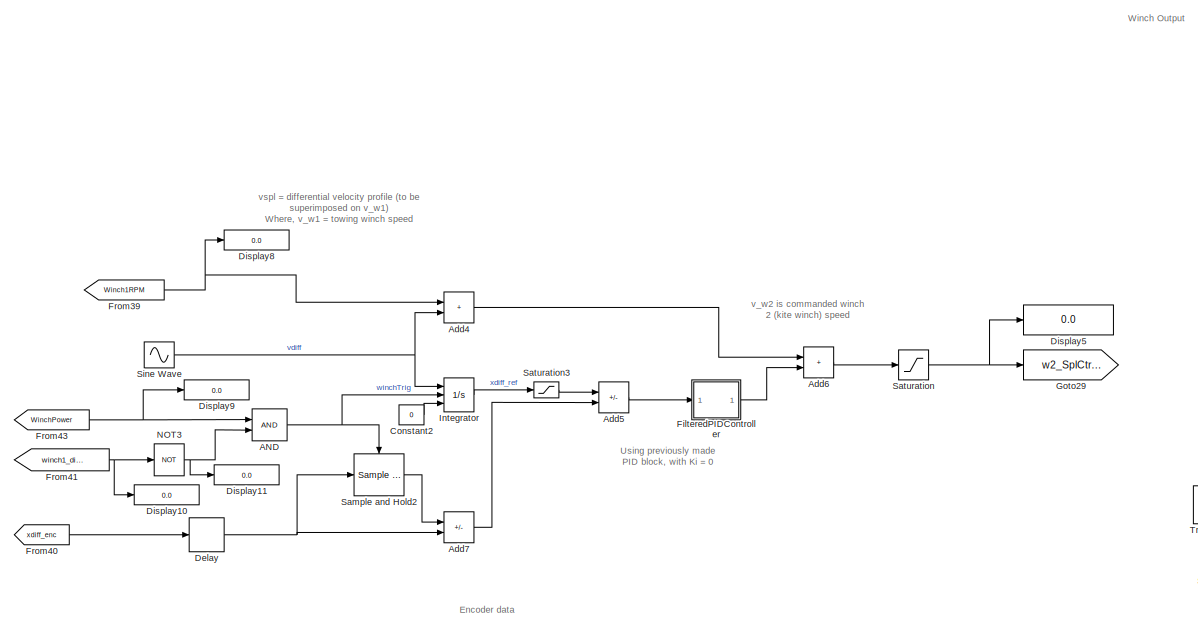
[diagram: root canvas - part 1/9, top center region]
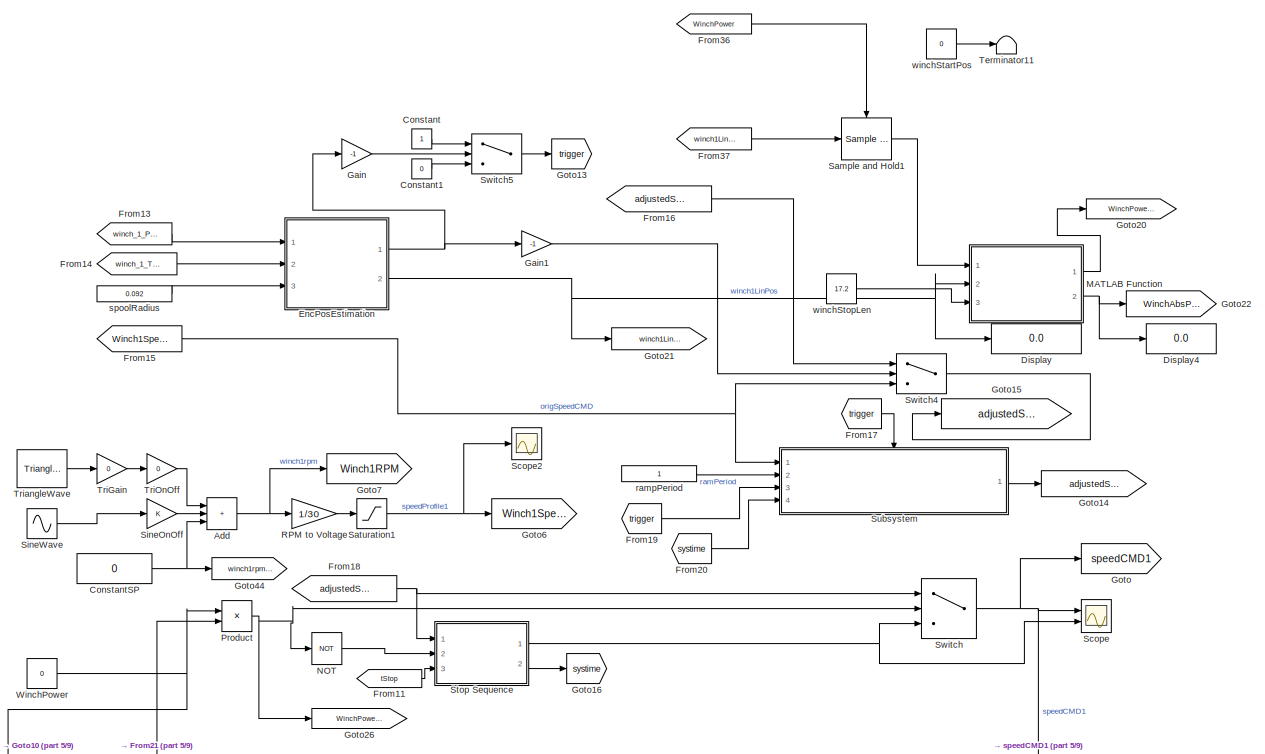
[diagram: root canvas - part 2/9, top right region]
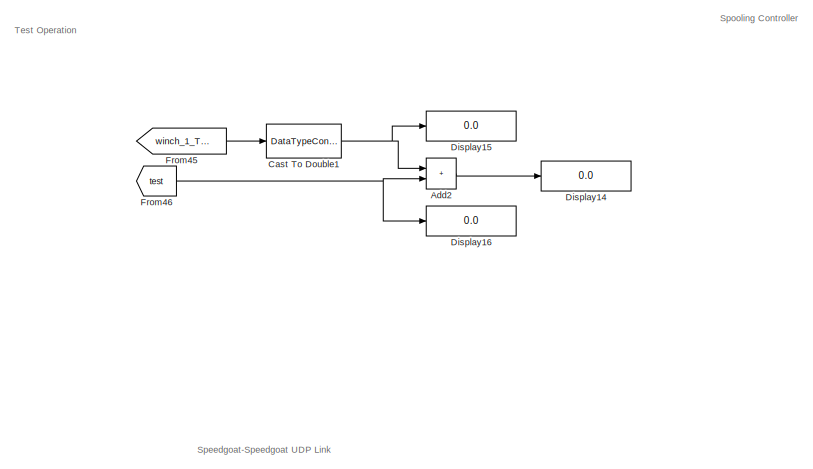
[diagram: root canvas - part 3/9, top left region]
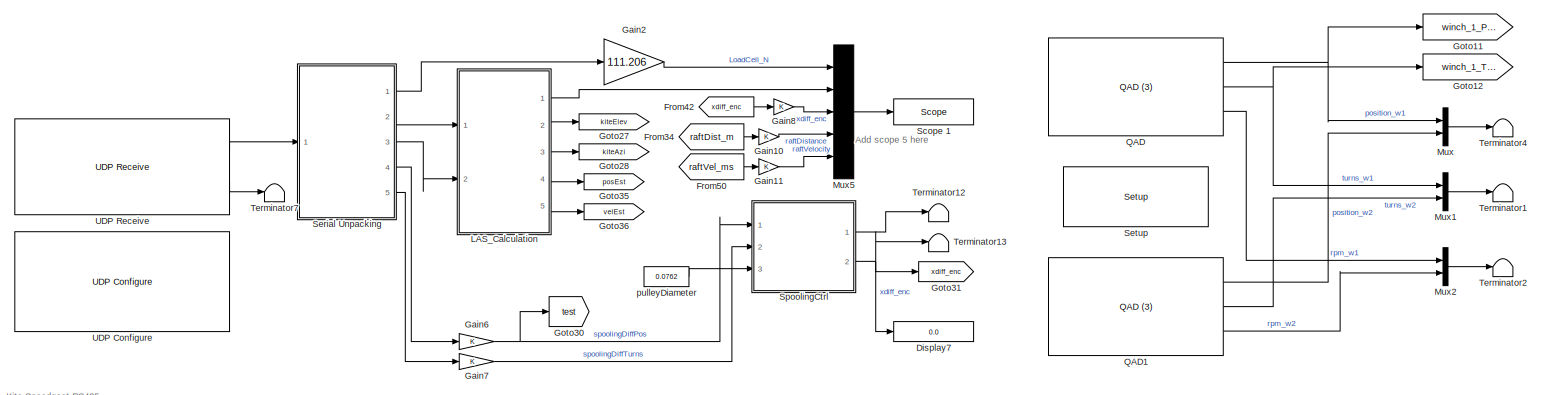
[diagram: root canvas - part 4/9, central region]
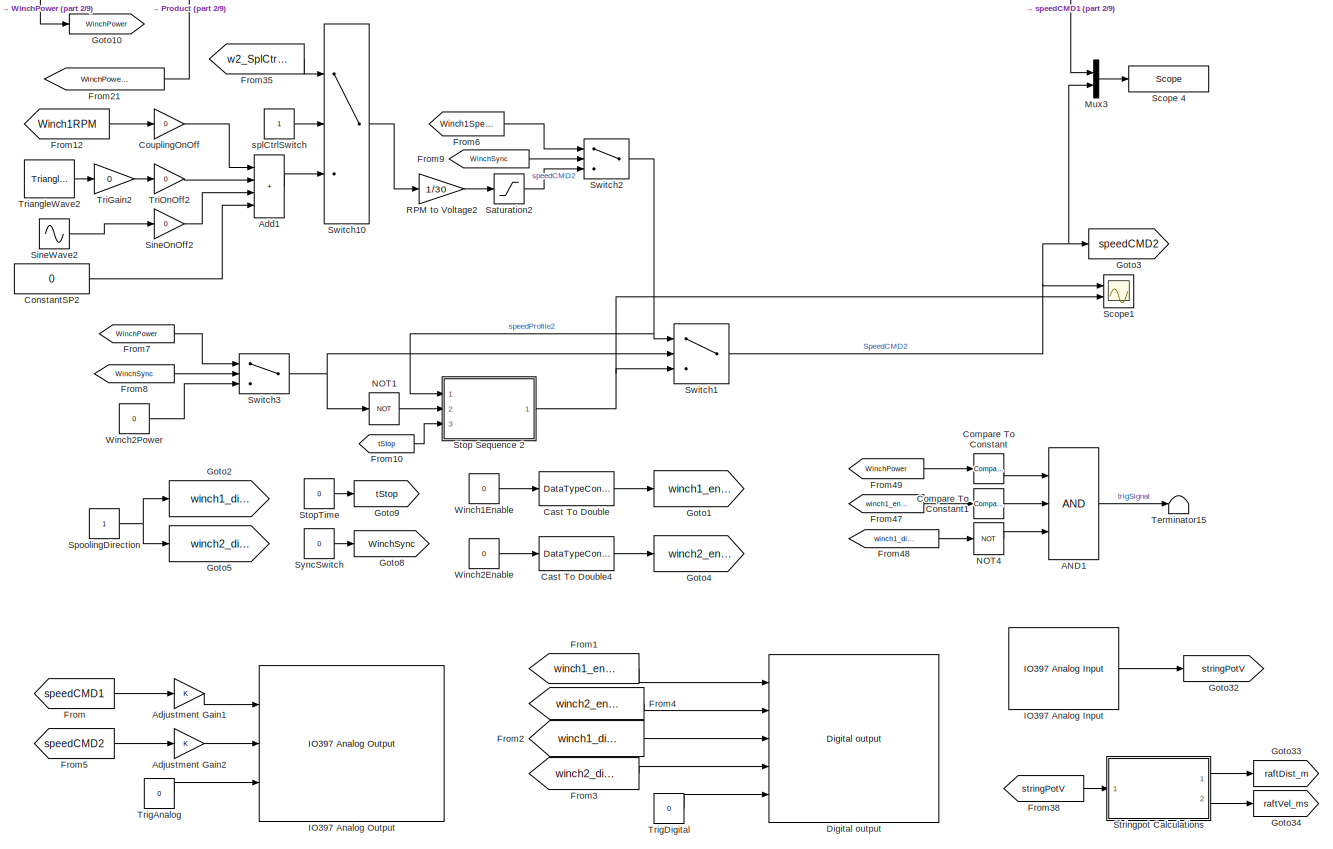
[diagram: root canvas - part 5/9, middle right region]
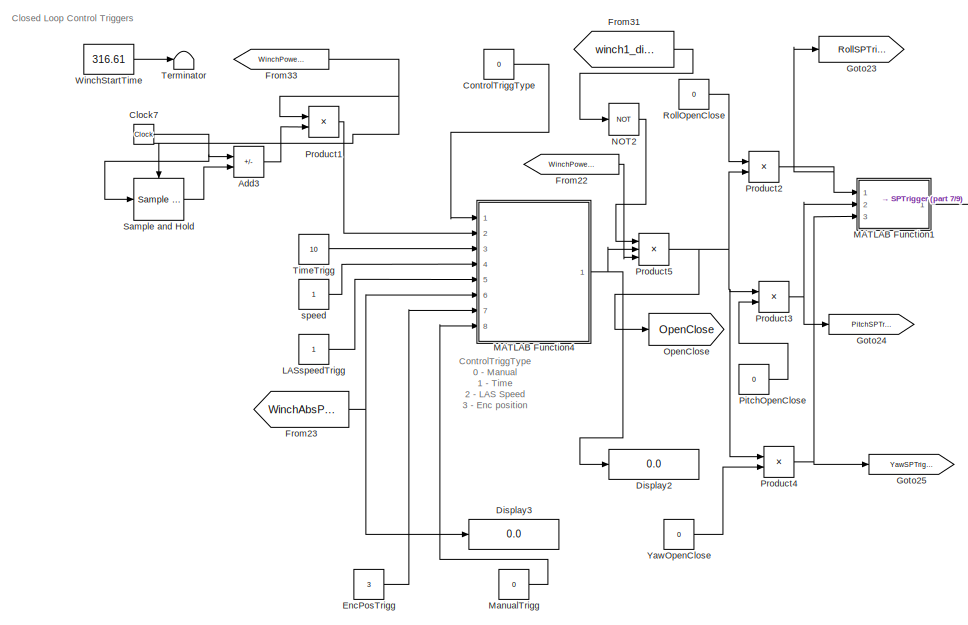
[diagram: root canvas - part 6/9, bottom left region]
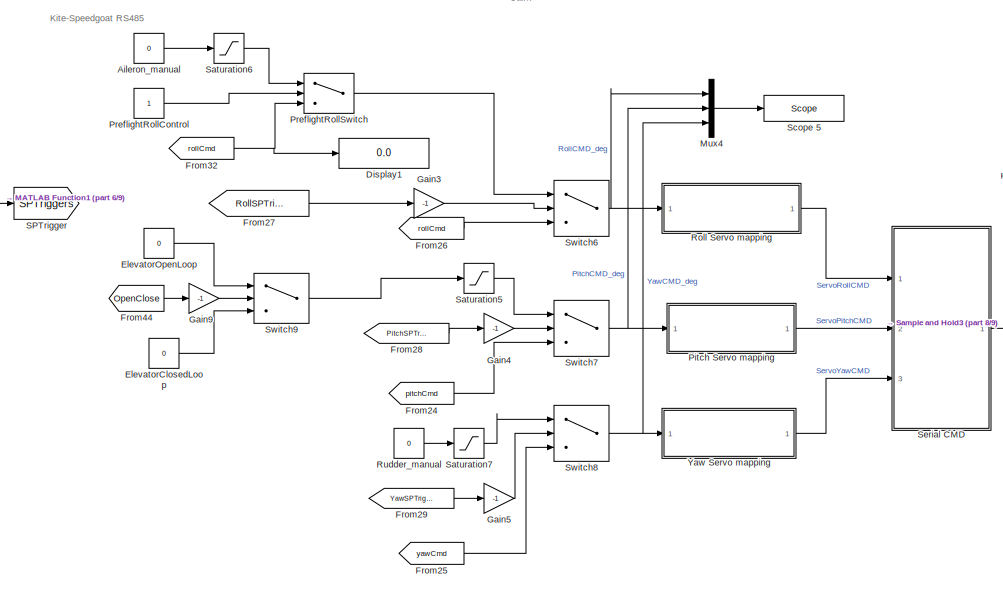
[diagram: root canvas - part 7/9, bottom center region]
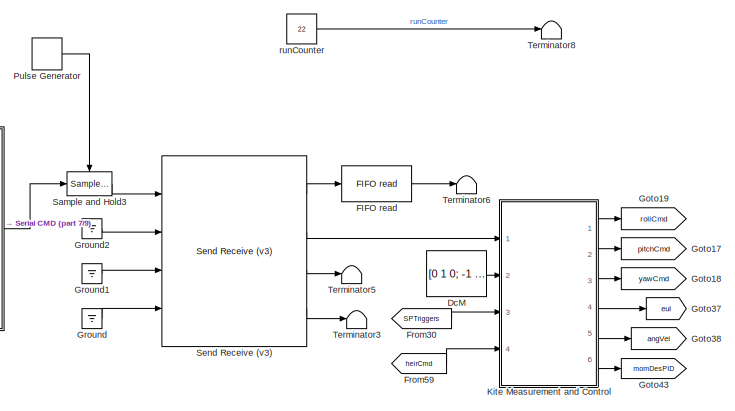
[diagram: root canvas - part 8/9, bottom center region]
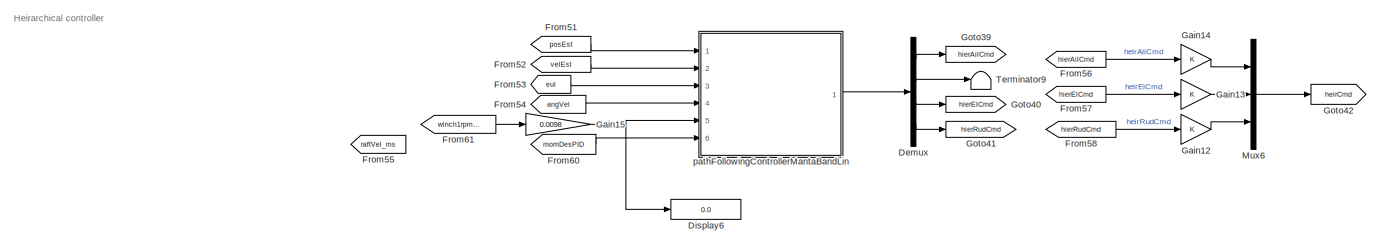
[diagram: root canvas - part 9/9, bottom center region]
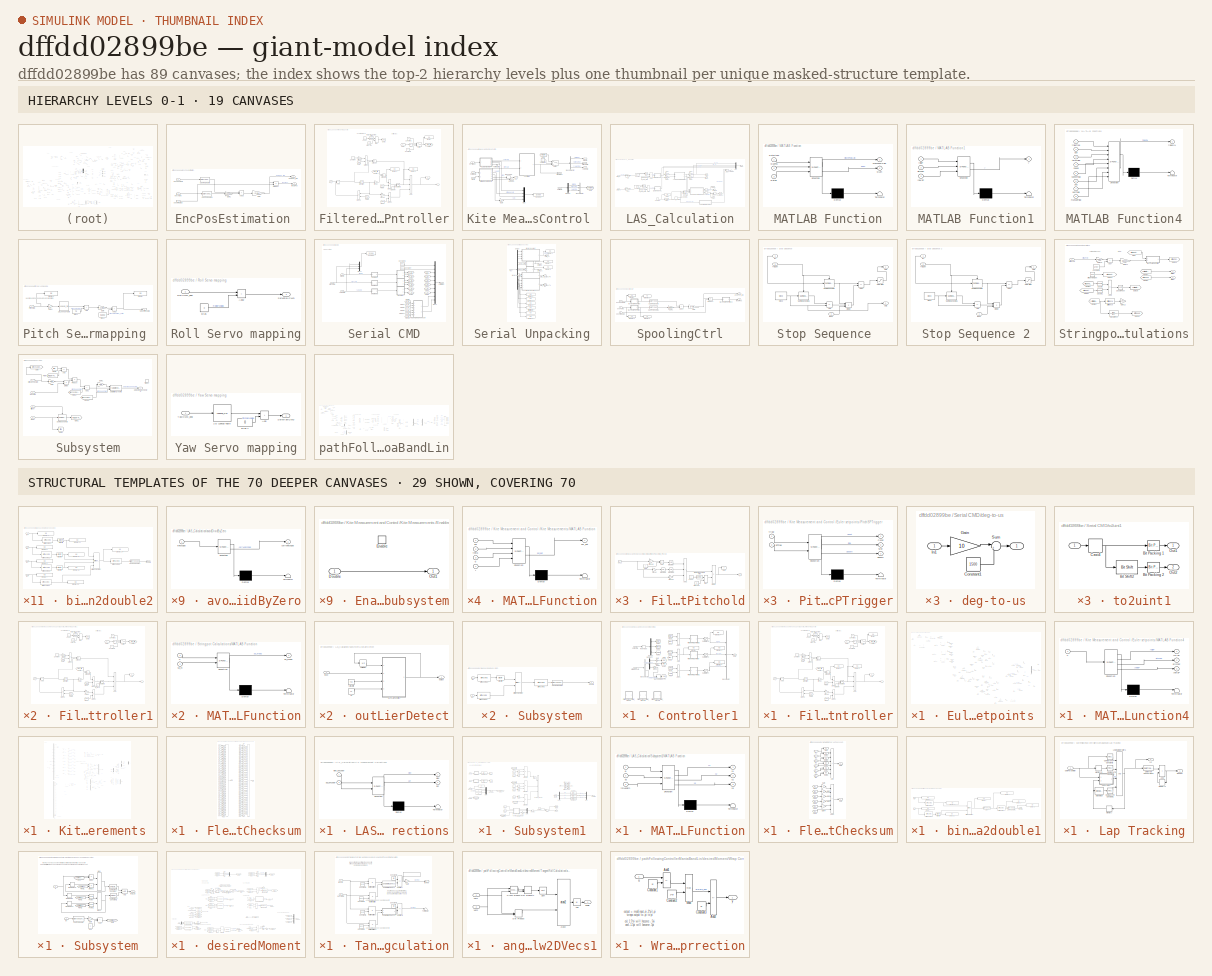
[diagram: thumbnail index - top-2 hierarchy levels (19 canvases) + 29 structural-template representatives of the remaining 70 canvases]
MODEL slx_dffdd02899be
KIND model
CONFIG AbsTol = auto
CONFIG EnableMultiTasking = on
CONFIG FixedStep = Ts
CONFIG MaxStep = auto
CONFIG MinStep = auto
CONFIG RelTol = 1e-3
CONFIG SampleTimeConstraint = Unconstrained
CONFIG Solver = FixedStepAuto
CONFIG SolverName = FixedStepAuto
CONFIG StartTime = 0.0
CONFIG StopTime = inf
BLOCK [Logic] AND
  AllPortsSameDT = off
  Commented = on
  IconShape = distinctive
  OutDataTypeStr = boolean
  Ports = [2, 1]
BLOCK [Logic] AND1
  AllPortsSameDT = off
  IconShape = distinctive
  Inputs = 3
  OutDataTypeStr = boolean
  Ports = [3, 1]
BLOCK [Sum] Add
  IconShape = rectangular
  Inputs = +++
  Ports = [3, 1]
BLOCK [Sum] Add1
  IconShape = rectangular
  Inputs = ++++
  Ports = [4, 1]
BLOCK [Sum] Add2
  Commented = on
  IconShape = rectangular
  Ports = [2, 1]
BLOCK [Sum] Add3
  IconShape = rectangular
  Inputs = +-
  Ports = [2, 1]
BLOCK [Sum] Add4
  Commented = on
  IconShape = rectangular
  Ports = [2, 1]
BLOCK [Sum] Add5
  Commented = on
  IconShape = rectangular
  Inputs = +-
  Ports = [2, 1]
BLOCK [Sum] Add6
  Commented = on
  IconShape = rectangular
  Ports = [2, 1]
BLOCK [Sum] Add7
  Commented = on
  IconShape = rectangular
  Inputs = -+
  Ports = [2, 1]
BLOCK [Gain] Adjustment Gain1
BLOCK [Gain] Adjustment Gain2
BLOCK [Constant] Aileron_manual
  OutDataTypeStr = int8
  Value = 0
BLOCK [DataTypeConversion] Cast To Double
  OutDataTypeStr = double
  RndMeth = Floor
  SaturateOnIntegerOverflow = off
BLOCK [DataTypeConversion] Cast To Double1
  Commented = on
  OutDataTypeStr = double
  RndMeth = Floor
  SaturateOnIntegerOverflow = off
BLOCK [DataTypeConversion] Cast To Double4
  OutDataTypeStr = double
  RndMeth = Floor
  SaturateOnIntegerOverflow = off
BLOCK [Clock] Clock7
BLOCK [Reference] Compare To Constant  REF=simulink/Logic and Bit
Operations/Compare
To Constant
  Ports = [1, 1]
  SourceBlock = simulink/Logic and Bit\nOperations/Compare\nTo Constant
  SourceProductBaseCode = SL
  SourceType = Compare To Constant
BLOCK [Reference] Compare To Constant1  REF=simulink/Logic and Bit
Operations/Compare
To Constant
  Ports = [1, 1]
  SourceBlock = simulink/Logic and Bit\nOperations/Compare\nTo Constant
  SourceProductBaseCode = SL
  SourceType = Compare To Constant
BLOCK [Constant] Constant
BLOCK [Constant] Constant1
  Value = 0
BLOCK [Constant] Constant2
  Commented = on
  Value = 0
BLOCK [Constant] ConstantSP
  Value = 0
BLOCK [Constant] ConstantSP2
  Value = 0
BLOCK [Constant] ControlTriggType
  Value = 0
BLOCK [Gain] CouplingOnOff
  Gain = 0
BLOCK [Constant] DcM
  Value = [0 1 0; -1 0 0;0 0 1]
BLOCK [Delay] Delay
  Commented = on
  DelayLength = 5
  InputPortMap = u0
  Ports = [1, 1]
BLOCK [Demux] Demux
  Ports = [1, 4]
BLOCK [Reference] Digital output  REF=speedgoatlib_fpga_dio/Digital output
  Ports = [5]
  SourceBlock = speedgoatlib_fpga_dio/Digital output
  SourceProductName = Simulink Real-Time: Speedgoat I/O Driver Library
  SourceType = do_fpga_a2
BLOCK [Display] Display
  Decimation = 1
  Ports = [1]
BLOCK [Display] Display1
  Decimation = 1
  Ports = [1]
BLOCK [Display] Display10
  Commented = on
  Decimation = 1
  Ports = [1]
BLOCK [Display] Display11
  Commented = on
  Decimation = 1
  Ports = [1]
BLOCK [Display] Display14
  Commented = on
  Decimation = 1
  Ports = [1]
BLOCK [Display] Display15
  Commented = on
  Decimation = 1
  Ports = [1]
BLOCK [Display] Display16
  Commented = on
  Decimation = 1
  Ports = [1]
BLOCK [Display] Display2
  Decimation = 1
  Ports = [1]
BLOCK [Display] Display3
  Decimation = 1
  Ports = [1]
BLOCK [Display] Display4
  Decimation = 1
  Ports = [1]
BLOCK [Display] Display5
  Commented = on
  Decimation = 1
  Ports = [1]
BLOCK [Display] Display6
  Decimation = 1
  Ports = [1]
BLOCK [Display] Display7
  Decimation = 1
  Ports = [1]
BLOCK [Display] Display8
  Commented = on
  Decimation = 1
  Ports = [1]
BLOCK [Display] Display9
  Commented = on
  Decimation = 1
  Ports = [1]
BLOCK [Constant] ElevatorClosedLoop
  Value = 0
BLOCK [Constant] ElevatorOpenLoop
  Value = 0
BLOCK [SubSystem] EncPosEstimation 
  Ports = [3, 2]
  RequestExecContextInheritance = off
BLOCK [Sum] EncPosEstimation /Add1
  IconShape = rectangular
  Ports = [2, 1]
BLOCK [DataTypeConversion] EncPosEstimation /Cast To Double
  OutDataTypeStr = double
  RndMeth = Floor
  SaturateOnIntegerOverflow = off
BLOCK [DataTypeConversion] EncPosEstimation /Cast To Double1
  OutDataTypeStr = double
  RndMeth = Floor
  SaturateOnIntegerOverflow = off
BLOCK [Gain] EncPosEstimation /Gain
  Gain = (2*pi)/1800
BLOCK [Gain] EncPosEstimation /Gain1
  Gain = 1800
BLOCK [Product] EncPosEstimation /Product
  Ports = [2, 1]
BLOCK [Outport] EncPosEstimation /angPos_rad
BLOCK [Inport] EncPosEstimation /encPosRaw
BLOCK [Inport] EncPosEstimation /encTurns
  Port = 2
BLOCK [Outport] EncPosEstimation /linearPos
  Port = 2
BLOCK [Inport] EncPosEstimation /spoolRadius
  Port = 3
BLOCK [Constant] EncPosTrigg
  Value = 3
BLOCK [Reference] FIFO read   REF=xpcseriallib/FIFO read 
  Ports = [1, 1]
  SourceBlock = xpcseriallib/FIFO read
  SourceProductBaseCode = XP
  SourceType = Asynchronous FIFO Block: reader
BLOCK [SubSystem] FilteredPIDController
  Commented = on
  Ports = [1, 1]
  RequestExecContextInheritance = off
BLOCK [Abs] FilteredPIDController/Abs
  SaturateOnIntegerOverflow = off
BLOCK [Sum] FilteredPIDController/Add1
  IconShape = rectangular
  Inputs = +++
  Ports = [3, 1]
BLOCK [Sum] FilteredPIDController/Add2
  IconShape = rectangular
  Inputs = +-
  Ports = [2, 1]
BLOCK [Constant] FilteredPIDController/Constant
BLOCK [Constant] FilteredPIDController/Constant1
  Value = 0
BLOCK [Constant] FilteredPIDController/Constant2
BLOCK [Display] FilteredPIDController/Display
  Decimation = 1
  Ports = [1]
BLOCK [Display] FilteredPIDController/Display1
  Decimation = 1
  Ports = [1]
BLOCK [Display] FilteredPIDController/Display2
  Decimation = 1
  Ports = [1]
BLOCK [Product] FilteredPIDController/Divide1
  Inputs = */
  Ports = [2, 1]
BLOCK [Product] FilteredPIDController/Divide2
  Inputs = */
  Ports = [2, 1]
BLOCK [Product] FilteredPIDController/Divide3
  Inputs = */
  Ports = [2, 1]
BLOCK [Product] FilteredPIDController/Divide4
  Inputs = */
  NameLocation = top
  Ports = [2, 1]
BLOCK [From] FilteredPIDController/From
  GotoTag = y
BLOCK [From] FilteredPIDController/From1
  GotoTag = Tau
BLOCK [From] FilteredPIDController/From2
  GotoTag = Tau
BLOCK [From] FilteredPIDController/From3
  GotoTag = Tau
BLOCK [From] FilteredPIDController/From4
  GotoTag = Tau
  NameLocation = top
BLOCK [From] FilteredPIDController/From5
  GotoTag = stop_trig
BLOCK [Goto] FilteredPIDController/Goto
  GotoTag = y
BLOCK [Goto] FilteredPIDController/Goto1
  GotoTag = Tau
BLOCK [Goto] FilteredPIDController/Goto2
  GotoTag = stop_trig
BLOCK [Constant] FilteredPIDController/Int_reset
  Value = 0
BLOCK [Integrator] FilteredPIDController/Integrator
  Ports = [1, 1]
BLOCK [Integrator] FilteredPIDController/Integrator3
  ExternalReset = either
  Ports = [2, 1]
BLOCK [MinMax] FilteredPIDController/Max
  Function = max
  Inputs = 2
  Ports = [2, 1]
BLOCK [Gain] FilteredPIDController/PitchKd
  Gain = 0
BLOCK [Gain] FilteredPIDController/PitchKi
  Gain = 0
BLOCK [Gain] FilteredPIDController/PitchKp
  Gain = 50
BLOCK [Constant] FilteredPIDController/PitchTau
  Value = 0.02
BLOCK [Product] FilteredPIDController/Product
  Ports = [2, 1]
BLOCK [Product] FilteredPIDController/Product1
  Ports = [2, 1]
BLOCK [Switch] FilteredPIDController/Switch
  InputSameDT = off
  SaturateOnIntegerOverflow = off
  Threshold = 30
BLOCK [SampleTimeMath] FilteredPIDController/Weighted Sample Time
  TsampMathOp = Ts Only
BLOCK [Constant] FilteredPIDController/const
BLOCK [Inport] FilteredPIDController/del_u
BLOCK [Outport] FilteredPIDController/y
BLOCK [From] From
  GotoTag = speedCMD1
BLOCK [From] From1
  GotoTag = winch1_enable
BLOCK [From] From10
  GotoTag = tStop
BLOCK [From] From11
  GotoTag = tStop
BLOCK [From] From12
  GotoTag = Winch1RPM
BLOCK [From] From13
  GotoTag = winch_1_Pos
BLOCK [From] From14
  GotoTag = winch_1_Turns
BLOCK [From] From15
  GotoTag = Winch1Speed
BLOCK [From] From16
  GotoTag = adjustedSpeed
BLOCK [From] From17
  GotoTag = trigger
BLOCK [From] From18
  GotoTag = adjustedSpeedCMD
BLOCK [From] From19
  GotoTag = trigger
BLOCK [From] From2
  GotoTag = winch1_direction
BLOCK [From] From20
  GotoTag = systime
BLOCK [From] From21
  GotoTag = WinchPowerGain
BLOCK [From] From22
  GotoTag = WinchPowerActual
BLOCK [From] From23
  GotoTag = WinchAbsPos
BLOCK [From] From24
  GotoTag = pitchCmd
BLOCK [From] From25
  GotoTag = yawCmd
BLOCK [From] From26
  GotoTag = rollCmd
BLOCK [From] From27
  GotoTag = RollSPTrigger
BLOCK [From] From28
  GotoTag = PitchSPTrigger
BLOCK [From] From29
  GotoTag = YawSPTrigger
BLOCK [From] From3
  GotoTag = winch2_direction
BLOCK [From] From30
  GotoTag = SPTriggers
BLOCK [From] From31
  GotoTag = winch1_direction
BLOCK [From] From32
  GotoTag = rollCmd
BLOCK [From] From33
  GotoTag = WinchPowerActual
BLOCK [From] From34
  GotoTag = raftDist_m
BLOCK [From] From35
  GotoTag = w2_SplCtrlCMD
BLOCK [From] From36
  GotoTag = WinchPower
BLOCK [From] From37
  GotoTag = winch1LinPos
BLOCK [From] From38
  GotoTag = stringPotV
BLOCK [From] From39
  Commented = on
  GotoTag = Winch1RPM
BLOCK [From] From4
  GotoTag = winch2_enable
BLOCK [From] From40
  Commented = on
  GotoTag = xdiff_enc
BLOCK [From] From41
  Commented = on
  GotoTag = winch1_direction
BLOCK [From] From42
  GotoTag = xdiff_enc
BLOCK [From] From43
  Commented = on
  GotoTag = WinchPower
BLOCK [From] From44
  GotoTag = OpenClose
BLOCK [From] From45
  Commented = on
  GotoTag = winch_1_Turns
BLOCK [From] From46
  Commented = on
  GotoTag = test
BLOCK [From] From47
  GotoTag = winch1_enable
BLOCK [From] From48
  GotoTag = winch1_direction
BLOCK [From] From49
  GotoTag = WinchPower
BLOCK [From] From5
  GotoTag = speedCMD2
BLOCK [From] From50
  GotoTag = raftVel_ms
BLOCK [From] From51
  GotoTag = posEst
BLOCK [From] From52
  GotoTag = velEst
BLOCK [From] From53
  GotoTag = eul
BLOCK [From] From54
  GotoTag = angVel
BLOCK [From] From55
  GotoTag = raftVel_ms
BLOCK [From] From56
  GotoTag = hierAilCmd
BLOCK [From] From57
  GotoTag = hierElCmd
BLOCK [From] From58
  GotoTag = hierRudCmd
BLOCK [From] From59
  GotoTag = heirCmd
BLOCK [From] From6
  GotoTag = Winch1Speed
BLOCK [From] From60
  GotoTag = momDesPID
BLOCK [From] From61
  GotoTag = winch1rpm_SP
BLOCK [From] From7
  GotoTag = WinchPower
BLOCK [From] From8
  GotoTag = WinchSync
BLOCK [From] From9
  GotoTag = WinchSync
BLOCK [Gain] Gain
  Gain = -1
BLOCK [Gain] Gain1
  Gain = -1
BLOCK [Gain] Gain10
BLOCK [Gain] Gain11
BLOCK [Gain] Gain12
BLOCK [Gain] Gain13
BLOCK [Gain] Gain14
BLOCK [Gain] Gain15
  Gain = 0.0098
BLOCK [Gain] Gain2
  Gain = 111.206
BLOCK [Gain] Gain3
  Gain = -1
BLOCK [Gain] Gain4
  Gain = -1
BLOCK [Gain] Gain5
  Gain = -1
BLOCK [Gain] Gain6
BLOCK [Gain] Gain7
BLOCK [Gain] Gain8
BLOCK [Gain] Gain9
  Gain = -1
BLOCK [Goto] Goto
  GotoTag = speedCMD1
BLOCK [Goto] Goto1
  GotoTag = winch1_enable
BLOCK [Goto] Goto10
  GotoTag = WinchPower
BLOCK [Goto] Goto11
  GotoTag = winch_1_Pos
BLOCK [Goto] Goto12
  GotoTag = winch_1_Turns
BLOCK [Goto] Goto13
  GotoTag = trigger
BLOCK [Goto] Goto14
  GotoTag = adjustedSpeed
BLOCK [Goto] Goto15
  GotoTag = adjustedSpeedCMD
BLOCK [Goto] Goto16
  GotoTag = systime
BLOCK [Goto] Goto17
  GotoTag = pitchCmd
BLOCK [Goto] Goto18
  GotoTag = yawCmd
BLOCK [Goto] Goto19
  GotoTag = rollCmd
BLOCK [Goto] Goto2
  GotoTag = winch1_direction
BLOCK [Goto] Goto20
  GotoTag = WinchPowerGain
BLOCK [Goto] Goto21
  GotoTag = winch1LinPos
BLOCK [Goto] Goto22
  GotoTag = WinchAbsPos
BLOCK [Goto] Goto23
  GotoTag = RollSPTrigger
BLOCK [Goto] Goto24
  GotoTag = PitchSPTrigger
BLOCK [Goto] Goto25
  GotoTag = YawSPTrigger
BLOCK [Goto] Goto26
  GotoTag = WinchPowerActual
BLOCK [Goto] Goto27
  GotoTag = kiteElev
BLOCK [Goto] Goto28
  GotoTag = kiteAzi
BLOCK [Goto] Goto29
  Commented = on
  GotoTag = w2_SplCtrlCMD
BLOCK [Goto] Goto3
  GotoTag = speedCMD2
BLOCK [Goto] Goto30
  GotoTag = test
BLOCK [Goto] Goto31
  GotoTag = xdiff_enc
BLOCK [Goto] Goto32
  GotoTag = stringPotV
BLOCK [Goto] Goto33
  GotoTag = raftDist_m
BLOCK [Goto] Goto34
  GotoTag = raftVel_ms
BLOCK [Goto] Goto35
  GotoTag = posEst
BLOCK [Goto] Goto36
  GotoTag = velEst
BLOCK [Goto] Goto37
  GotoTag = eul
BLOCK [Goto] Goto38
  GotoTag = angVel
BLOCK [Goto] Goto39
  GotoTag = hierAilCmd
BLOCK [Goto] Goto4
  GotoTag = winch2_enable
BLOCK [Goto] Goto40
  GotoTag = hierElCmd
BLOCK [Goto] Goto41
  GotoTag = hierRudCmd
BLOCK [Goto] Goto42
  GotoTag = heirCmd
BLOCK [Goto] Goto43
  GotoTag = momDesPID
BLOCK [Goto] Goto44
  GotoTag = winch1rpm_SP
BLOCK [Goto] Goto5
  GotoTag = winch2_direction
BLOCK [Goto] Goto6
  GotoTag = Winch1Speed
BLOCK [Goto] Goto7
  GotoTag = Winch1RPM
BLOCK [Goto] Goto8
  GotoTag = WinchSync
BLOCK [Goto] Goto9
  GotoTag = tStop
BLOCK [Ground] Ground
BLOCK [Ground] Ground1
BLOCK [Ground] Ground2
BLOCK [Reference] IO397 Analog Input  REF=speedgoatlib_fpga_analog_io/IO397 Analog Input
  Ports = [0, 1]
  SourceBlock = speedgoatlib_fpga_analog_io/IO397 Analog Input
  SourceProductName = Simulink Real-Time: Speedgoat I/O Driver Library
  SourceType = ad_IO397
BLOCK [Reference] IO397 Analog Output  REF=speedgoatlib_fpga_analog_io/IO397 Analog Output
  Ports = [3]
  SourceBlock = speedgoatlib_fpga_analog_io/IO397 Analog Output
  SourceProductName = Simulink Real-Time: Speedgoat I/O Driver Library
  SourceType = da_IO397
BLOCK [Integrator] Integrator
  Commented = on
  ExternalReset = rising
  InitialConditionSource = external
  Ports = [3, 1]
BLOCK [SubSystem] Kite Measurement and Control 
  Ports = [4, 6]
  RequestExecContextInheritance = off
BLOCK [BusCreator] Kite Measurement and Control /Bus Creator
  DisplayOption = bar
  InheritFromInputs = on
  Inputs = 3
  Ports = [3, 1]
BLOCK [BusSelector] Kite Measurement and Control /Bus Selector
  OutputSignals = rollCmd,pitchCmd,yawCmd
  Ports = [1, 3]
BLOCK [SubSystem] Kite Measurement and Control /Controller1
  Ports = [2, 1]
  RequestExecContextInheritance = off
BLOCK [Sum] Kite Measurement and Control /Controller1/Add
  IconShape = rectangular
  Inputs = +-
  Ports = [2, 1]
BLOCK [Sum] Kite Measurement and Control /Controller1/Add1
  IconShape = rectangular
  Inputs = +-
  Ports = [2, 1]
BLOCK [Sum] Kite Measurement and Control /Controller1/Add2
  IconShape = rectangular
  Inputs = +-
  Ports = [2, 1]
BLOCK [BusCreator] Kite Measurement and Control /Controller1/Bus Creator
  DisplayOption = bar
  InheritFromInputs = on
  Inputs = 3
  Ports = [3, 1]
BLOCK [BusSelector] Kite Measurement and Control /Controller1/Bus Selector
  OutputSignals = eulerAngles,yawDeadRec
  Ports = [1, 2]
BLOCK [Outport] Kite Measurement and Control /Controller1/Cmd
BLOCK [Demux] Kite Measurement and Control /Controller1/Demux
  Outputs = 3
  Ports = [1, 3]
BLOCK [Demux] Kite Measurement and Control /Controller1/Demux1
  Outputs = 3
  Ports = [1, 3]
BLOCK [Display] Kite Measurement and Control /Controller1/Display
  Decimation = 1
  Ports = [1]
BLOCK [Display] Kite Measurement and Control /Controller1/Display1
  Decimation = 1
  Ports = [1]
BLOCK [Display] Kite Measurement and Control /Controller1/Display2
  Decimation = 1
  Ports = [1]
BLOCK [Display] Kite Measurement and Control /Controller1/Display4
  Decimation = 1
  Ports = [1]
BLOCK [SubSystem] Kite Measurement and Control /Controller1/FilteredPIDController
  Ports = [1, 1]
  RequestExecContextInheritance = off
BLOCK [Abs] Kite Measurement and Control /Controller1/FilteredPIDController/Abs
  SaturateOnIntegerOverflow = off
BLOCK [Sum] Kite Measurement and Control /Controller1/FilteredPIDController/Add1
  IconShape = rectangular
  Inputs = +++
  Ports = [3, 1]
BLOCK [Sum] Kite Measurement and Control /Controller1/FilteredPIDController/Add2
  IconShape = rectangular
  Inputs = +-
  Ports = [2, 1]
BLOCK [Constant] Kite Measurement and Control /Controller1/FilteredPIDController/Constant
BLOCK [Constant] Kite Measurement and Control /Controller1/FilteredPIDController/Constant1
  Value = 0
BLOCK [Constant] Kite Measurement and Control /Controller1/FilteredPIDController/Constant2
BLOCK [Display] Kite Measurement and Control /Controller1/FilteredPIDController/Display
  Decimation = 1
  Ports = [1]
BLOCK [Display] Kite Measurement and Control /Controller1/FilteredPIDController/Display1
  Decimation = 1
  Ports = [1]
BLOCK [Display] Kite Measurement and Control /Controller1/FilteredPIDController/Display2
  Decimation = 1
  Ports = [1]
BLOCK [Product] Kite Measurement and Control /Controller1/FilteredPIDController/Divide1
  Inputs = */
  Ports = [2, 1]
BLOCK [Product] Kite Measurement and Control /Controller1/FilteredPIDController/Divide2
  Inputs = */
  Ports = [2, 1]
BLOCK [Product] Kite Measurement and Control /Controller1/FilteredPIDController/Divide3
  Inputs = */
  Ports = [2, 1]
BLOCK [Product] Kite Measurement and Control /Controller1/FilteredPIDController/Divide4
  Inputs = */
  NameLocation = top
  Ports = [2, 1]
BLOCK [From] Kite Measurement and Control /Controller1/FilteredPIDController/From
  GotoTag = y
BLOCK [From] Kite Measurement and Control /Controller1/FilteredPIDController/From1
  GotoTag = Tau
BLOCK [From] Kite Measurement and Control /Controller1/FilteredPIDController/From2
  GotoTag = Tau
BLOCK [From] Kite Measurement and Control /Controller1/FilteredPIDController/From3
  GotoTag = Tau
BLOCK [From] Kite Measurement and Control /Controller1/FilteredPIDController/From4
  GotoTag = Tau
  NameLocation = top
BLOCK [From] Kite Measurement and Control /Controller1/FilteredPIDController/From5
  GotoTag = stop_trig
BLOCK [Goto] Kite Measurement and Control /Controller1/FilteredPIDController/Goto
  GotoTag = y
BLOCK [Goto] Kite Measurement and Control /Controller1/FilteredPIDController/Goto1
  GotoTag = Tau
BLOCK [Goto] Kite Measurement and Control /Controller1/FilteredPIDController/Goto2
  GotoTag = stop_trig
BLOCK [Constant] Kite Measurement and Control /Controller1/FilteredPIDController/Int_reset
  Value = 0
BLOCK [Integrator] Kite Measurement and Control /Controller1/FilteredPIDController/Integrator
  Ports = [1, 1]
BLOCK [Integrator] Kite Measurement and Control /Controller1/FilteredPIDController/Integrator3
  ExternalReset = either
  Ports = [2, 1]
BLOCK [MinMax] Kite Measurement and Control /Controller1/FilteredPIDController/Max
  Function = max
  Inputs = 2
  Ports = [2, 1]
BLOCK [Gain] Kite Measurement and Control /Controller1/FilteredPIDController/PitchKd
  Gain = 0
BLOCK [Gain] Kite Measurement and Control /Controller1/FilteredPIDController/PitchKi
  Gain = 0
BLOCK [Gain] Kite Measurement and Control /Controller1/FilteredPIDController/PitchKp
BLOCK [Constant] Kite Measurement and Control /Controller1/FilteredPIDController/PitchTau
  Value = 0.05
BLOCK [Product] Kite Measurement and Control /Controller1/FilteredPIDController/Product
  Ports = [2, 1]
BLOCK [Product] Kite Measurement and Control /Controller1/FilteredPIDController/Product1
  Ports = [2, 1]
BLOCK [Switch] Kite Measurement and Control /Controller1/FilteredPIDController/Switch
  InputSameDT = off
  SaturateOnIntegerOverflow = off
  Threshold = 30
BLOCK [SampleTimeMath] Kite Measurement and Control /Controller1/FilteredPIDController/Weighted Sample Time
  TsampMathOp = Ts Only
BLOCK [Constant] Kite Measurement and Control /Controller1/FilteredPIDController/const
BLOCK [Inport] Kite Measurement and Control /Controller1/FilteredPIDController/del_u
BLOCK [Outport] Kite Measurement and Control /Controller1/FilteredPIDController/y
BLOCK [SubSystem] Kite Measurement and Control /Controller1/FilteredPIDController1
  Ports = [1, 1]
  RequestExecContextInheritance = off
BLOCK [Abs] Kite Measurement and Control /Controller1/FilteredPIDController1/Abs
  SaturateOnIntegerOverflow = off
BLOCK [Sum] Kite Measurement and Control /Controller1/FilteredPIDController1/Add1
  IconShape = rectangular
  Inputs = +++
  Ports = [3, 1]
BLOCK [Sum] Kite Measurement and Control /Controller1/FilteredPIDController1/Add2
  IconShape = rectangular
  Inputs = +-
  Ports = [2, 1]
BLOCK [Constant] Kite Measurement and Control /Controller1/FilteredPIDController1/Constant
BLOCK [Constant] Kite Measurement and Control /Controller1/FilteredPIDController1/Constant1
  Value = 0
BLOCK [Constant] Kite Measurement and Control /Controller1/FilteredPIDController1/Constant2
BLOCK [Product] Kite Measurement and Control /Controller1/FilteredPIDController1/Divide1
  Inputs = */
  Ports = [2, 1]
BLOCK [Product] Kite Measurement and Control /Controller1/FilteredPIDController1/Divide2
  Inputs = */
  Ports = [2, 1]
BLOCK [Product] Kite Measurement and Control /Controller1/FilteredPIDController1/Divide3
  Inputs = */
  Ports = [2, 1]
BLOCK [Product] Kite Measurement and Control /Controller1/FilteredPIDController1/Divide4
  Inputs = */
  NameLocation = top
  Ports = [2, 1]
BLOCK [From] Kite Measurement and Control /Controller1/FilteredPIDController1/From
  GotoTag = y
BLOCK [From] Kite Measurement and Control /Controller1/FilteredPIDController1/From1
  GotoTag = Tau
BLOCK [From] Kite Measurement and Control /Controller1/FilteredPIDController1/From2
  GotoTag = Tau
BLOCK [From] Kite Measurement and Control /Controller1/FilteredPIDController1/From3
  GotoTag = Tau
BLOCK [From] Kite Measurement and Control /Controller1/FilteredPIDController1/From4
  GotoTag = Tau
  NameLocation = top
BLOCK [From] Kite Measurement and Control /Controller1/FilteredPIDController1/From5
  GotoTag = stop_trig
BLOCK [Goto] Kite Measurement and Control /Controller1/FilteredPIDController1/Goto
  GotoTag = y
BLOCK [Goto] Kite Measurement and Control /Controller1/FilteredPIDController1/Goto1
  GotoTag = Tau
BLOCK [Goto] Kite Measurement and Control /Controller1/FilteredPIDController1/Goto2
  GotoTag = stop_trig
BLOCK [Constant] Kite Measurement and Control /Controller1/FilteredPIDController1/Int_reset
  Value = 0
BLOCK [Integrator] Kite Measurement and Control /Controller1/FilteredPIDController1/Integrator
  Ports = [1, 1]
BLOCK [Integrator] Kite Measurement and Control /Controller1/FilteredPIDController1/Integrator3
  ExternalReset = either
  Ports = [2, 1]
BLOCK [MinMax] Kite Measurement and Control /Controller1/FilteredPIDController1/Max
  Function = max
  Inputs = 2
  Ports = [2, 1]
BLOCK [Product] Kite Measurement and Control /Controller1/FilteredPIDController1/Product
  Ports = [2, 1]
BLOCK [Product] Kite Measurement and Control /Controller1/FilteredPIDController1/Product1
  Ports = [2, 1]
BLOCK [Switch] Kite Measurement and Control /Controller1/FilteredPIDController1/Switch
  InputSameDT = off
  SaturateOnIntegerOverflow = off
  Threshold = 30
BLOCK [SampleTimeMath] Kite Measurement and Control /Controller1/FilteredPIDController1/Weighted Sample Time
  TsampMathOp = Ts Only
BLOCK [Gain] Kite Measurement and Control /Controller1/FilteredPIDController1/YawKd
  Gain = 0.05
BLOCK [Gain] Kite Measurement and Control /Controller1/FilteredPIDController1/YawKi
  Gain = 0
BLOCK [Gain] Kite Measurement and Control /Controller1/FilteredPIDController1/YawKp
  Gain = 0.3
BLOCK [Constant] Kite Measurement and Control /Controller1/FilteredPIDController1/YawTau
  Value = 0.02
BLOCK [Constant] Kite Measurement and Control /Controller1/FilteredPIDController1/const
BLOCK [Inport] Kite Measurement and Control /Controller1/FilteredPIDController1/del_u
BLOCK [Outport] Kite Measurement and Control /Controller1/FilteredPIDController1/y
BLOCK [SubSystem] Kite Measurement and Control /Controller1/FilteredPIDController2
  Ports = [1, 1]
  RequestExecContextInheritance = off
BLOCK [Abs] Kite Measurement and Control /Controller1/FilteredPIDController2/Abs
  SaturateOnIntegerOverflow = off
BLOCK [Sum] Kite Measurement and Control /Controller1/FilteredPIDController2/Add1
  IconShape = rectangular
  Inputs = +++
  Ports = [3, 1]
BLOCK [Sum] Kite Measurement and Control /Controller1/FilteredPIDController2/Add2
  IconShape = rectangular
  Inputs = +-
  Ports = [2, 1]
BLOCK [Constant] Kite Measurement and Control /Controller1/FilteredPIDController2/Constant
BLOCK [Constant] Kite Measurement and Control /Controller1/FilteredPIDController2/Constant1
  Value = 0
BLOCK [Constant] Kite Measurement and Control /Controller1/FilteredPIDController2/Constant2
BLOCK [Product] Kite Measurement and Control /Controller1/FilteredPIDController2/Divide1
  Inputs = */
  Ports = [2, 1]
BLOCK [Product] Kite Measurement and Control /Controller1/FilteredPIDController2/Divide2
  Inputs = */
  Ports = [2, 1]
BLOCK [Product] Kite Measurement and Control /Controller1/FilteredPIDController2/Divide3
  Inputs = */
  Ports = [2, 1]
BLOCK [Product] Kite Measurement and Control /Controller1/FilteredPIDController2/Divide4
  Inputs = */
  NameLocation = top
  Ports = [2, 1]
BLOCK [From] Kite Measurement and Control /Controller1/FilteredPIDController2/From
  GotoTag = y
BLOCK [From] Kite Measurement and Control /Controller1/FilteredPIDController2/From1
  GotoTag = Tau
BLOCK [From] Kite Measurement and Control /Controller1/FilteredPIDController2/From2
  GotoTag = Tau
BLOCK [From] Kite Measurement and Control /Controller1/FilteredPIDController2/From3
  GotoTag = Tau
BLOCK [From] Kite Measurement and Control /Controller1/FilteredPIDController2/From4
  GotoTag = Tau
  NameLocation = top
BLOCK [From] Kite Measurement and Control /Controller1/FilteredPIDController2/From5
  GotoTag = stop_trig
BLOCK [Goto] Kite Measurement and Control /Controller1/FilteredPIDController2/Goto
  GotoTag = y
BLOCK [Goto] Kite Measurement and Control /Controller1/FilteredPIDController2/Goto1
  GotoTag = Tau
BLOCK [Goto] Kite Measurement and Control /Controller1/FilteredPIDController2/Goto2
  GotoTag = stop_trig
BLOCK [Constant] Kite Measurement and Control /Controller1/FilteredPIDController2/Int_reset
  Value = 0
BLOCK [Integrator] Kite Measurement and Control /Controller1/FilteredPIDController2/Integrator
  Ports = [1, 1]
BLOCK [Integrator] Kite Measurement and Control /Controller1/FilteredPIDController2/Integrator3
  ExternalReset = either
  Ports = [2, 1]
BLOCK [MinMax] Kite Measurement and Control /Controller1/FilteredPIDController2/Max
  Function = max
  Inputs = 2
  Ports = [2, 1]
BLOCK [Product] Kite Measurement and Control /Controller1/FilteredPIDController2/Product
  Ports = [2, 1]
BLOCK [Product] Kite Measurement and Control /Controller1/FilteredPIDController2/Product1
  Ports = [2, 1]
BLOCK [Gain] Kite Measurement and Control /Controller1/FilteredPIDController2/RollKd
BLOCK [Gain] Kite Measurement and Control /Controller1/FilteredPIDController2/RollKi
  Gain = 0
BLOCK [Gain] Kite Measurement and Control /Controller1/FilteredPIDController2/RollKp
  Gain = 3
BLOCK [Constant] Kite Measurement and Control /Controller1/FilteredPIDController2/RollTau
  Value = 0.02
BLOCK [Switch] Kite Measurement and Control /Controller1/FilteredPIDController2/Switch
  InputSameDT = off
  SaturateOnIntegerOverflow = off
  Threshold = 30
BLOCK [SampleTimeMath] Kite Measurement and Control /Controller1/FilteredPIDController2/Weighted Sample Time
  TsampMathOp = Ts Only
BLOCK [Constant] Kite Measurement and Control /Controller1/FilteredPIDController2/const
BLOCK [Inport] Kite Measurement and Control /Controller1/FilteredPIDController2/del_u
BLOCK [Outport] Kite Measurement and Control /Controller1/FilteredPIDController2/y
BLOCK [SubSystem] Kite Measurement and Control /Controller1/FilteredPIDController_Pitchold
  Commented = on
  Ports = [1, 1]
  RequestExecContextInheritance = off
BLOCK [Sum] Kite Measurement and Control /Controller1/FilteredPIDController_Pitchold/Add
  IconShape = rectangular
  Inputs = +-
  Ports = [2, 1]
BLOCK [Sum] Kite Measurement and Control /Controller1/FilteredPIDController_Pitchold/Add1
  IconShape = rectangular
  Inputs = +++
  Ports = [3, 1]
BLOCK [Product] Kite Measurement and Control /Controller1/FilteredPIDController_Pitchold/Divide
  Inputs = */
  Ports = [2, 1]
BLOCK [From] Kite Measurement and Control /Controller1/FilteredPIDController_Pitchold/From
  GotoTag = y
BLOCK [Goto] Kite Measurement and Control /Controller1/FilteredPIDController_Pitchold/Goto
  GotoTag = y
BLOCK [Integrator] Kite Measurement and Control /Controller1/FilteredPIDController_Pitchold/Integrator
  Ports = [1, 1]
BLOCK [Integrator] Kite Measurement and Control /Controller1/FilteredPIDController_Pitchold/Integrator1
  Ports = [1, 1]
BLOCK [Integrator] Kite Measurement and Control /Controller1/FilteredPIDController_Pitchold/Integrator2
  Ports = [1, 1]
BLOCK [MinMax] Kite Measurement and Control /Controller1/FilteredPIDController_Pitchold/Max
  Function = max
  Inputs = 2
  Ports = [2, 1]
BLOCK [Gain] Kite Measurement and Control /Controller1/FilteredPIDController_Pitchold/PitchKd
BLOCK [Gain] Kite Measurement and Control /Controller1/FilteredPIDController_Pitchold/PitchKi
  Gain = 0
BLOCK [Gain] Kite Measurement and Control /Controller1/FilteredPIDController_Pitchold/PitchKp
BLOCK [Constant] Kite Measurement and Control /Controller1/FilteredPIDController_Pitchold/PitchTau
  Value = 0.1
BLOCK [SampleTimeMath] Kite Measurement and Control /Controller1/FilteredPIDController_Pitchold/Weighted Sample Time
  TsampMathOp = Ts Only
BLOCK [Constant] Kite Measurement and Control /Controller1/FilteredPIDController_Pitchold/const
BLOCK [Inport] Kite Measurement and Control /Controller1/FilteredPIDController_Pitchold/del_u
BLOCK [Outport] Kite Measurement and Control /Controller1/FilteredPIDController_Pitchold/y
BLOCK [SubSystem] Kite Measurement and Control /Controller1/FilteredPIDController_oldRoll
  Commented = on
  Ports = [1, 1]
  RequestExecContextInheritance = off
BLOCK [Sum] Kite Measurement and Control /Controller1/FilteredPIDController_oldRoll/Add
  IconShape = rectangular
  Inputs = +-
  Ports = [2, 1]
BLOCK [Sum] Kite Measurement and Control /Controller1/FilteredPIDController_oldRoll/Add1
  IconShape = rectangular
  Inputs = +++
  Ports = [3, 1]
BLOCK [Product] Kite Measurement and Control /Controller1/FilteredPIDController_oldRoll/Divide
  Inputs = */
  Ports = [2, 1]
BLOCK [From] Kite Measurement and Control /Controller1/FilteredPIDController_oldRoll/From
  GotoTag = y
BLOCK [Goto] Kite Measurement and Control /Controller1/FilteredPIDController_oldRoll/Goto
  GotoTag = y
BLOCK [Integrator] Kite Measurement and Control /Controller1/FilteredPIDController_oldRoll/Integrator
  Ports = [1, 1]
BLOCK [Integrator] Kite Measurement and Control /Controller1/FilteredPIDController_oldRoll/Integrator1
  Ports = [1, 1]
BLOCK [Integrator] Kite Measurement and Control /Controller1/FilteredPIDController_oldRoll/Integrator2
  Ports = [1, 1]
BLOCK [MinMax] Kite Measurement and Control /Controller1/FilteredPIDController_oldRoll/Max
  Function = max
  Inputs = 2
  Ports = [2, 1]
BLOCK [Gain] Kite Measurement and Control /Controller1/FilteredPIDController_oldRoll/RollKd
BLOCK [Gain] Kite Measurement and Control /Controller1/FilteredPIDController_oldRoll/RollKi
  Gain = 0
BLOCK [Gain] Kite Measurement and Control /Controller1/FilteredPIDController_oldRoll/RollKp
BLOCK [Constant] Kite Measurement and Control /Controller1/FilteredPIDController_oldRoll/RollTau
  Value = 0.1
BLOCK [SampleTimeMath] Kite Measurement and Control /Controller1/FilteredPIDController_oldRoll/Weighted Sample Time
  TsampMathOp = Ts Only
BLOCK [Constant] Kite Measurement and Control /Controller1/FilteredPIDController_oldRoll/const
BLOCK [Inport] Kite Measurement and Control /Controller1/FilteredPIDController_oldRoll/del_u
BLOCK [Outport] Kite Measurement and Control /Controller1/FilteredPIDController_oldRoll/y
BLOCK [SubSystem] Kite Measurement and Control /Controller1/FilteredPIDController_oldYaw
  Commented = on
  Ports = [1, 1]
  RequestExecContextInheritance = off
BLOCK [Sum] Kite Measurement and Control /Controller1/FilteredPIDController_oldYaw/Add
  IconShape = rectangular
  Inputs = +-
  Ports = [2, 1]
BLOCK [Sum] Kite Measurement and Control /Controller1/FilteredPIDController_oldYaw/Add1
  IconShape = rectangular
  Inputs = +++
  Ports = [3, 1]
BLOCK [Product] Kite Measurement and Control /Controller1/FilteredPIDController_oldYaw/Divide
  Inputs = */
  Ports = [2, 1]
BLOCK [From] Kite Measurement and Control /Controller1/FilteredPIDController_oldYaw/From
  GotoTag = y
BLOCK [Goto] Kite Measurement and Control /Controller1/FilteredPIDController_oldYaw/Goto
  GotoTag = y
BLOCK [Integrator] Kite Measurement and Control /Controller1/FilteredPIDController_oldYaw/Integrator
  Ports = [1, 1]
BLOCK [Integrator] Kite Measurement and Control /Controller1/FilteredPIDController_oldYaw/Integrator1
  Ports = [1, 1]
BLOCK [Integrator] Kite Measurement and Control /Controller1/FilteredPIDController_oldYaw/Integrator2
  Ports = [1, 1]
BLOCK [MinMax] Kite Measurement and Control /Controller1/FilteredPIDController_oldYaw/Max
  Function = max
  Inputs = 2
  Ports = [2, 1]
BLOCK [SampleTimeMath] Kite Measurement and Control /Controller1/FilteredPIDController_oldYaw/Weighted Sample Time
  TsampMathOp = Ts Only
BLOCK [Gain] Kite Measurement and Control /Controller1/FilteredPIDController_oldYaw/YawKd
  Gain = 0.2
BLOCK [Gain] Kite Measurement and Control /Controller1/FilteredPIDController_oldYaw/YawKi
  Gain = 0.3
BLOCK [Gain] Kite Measurement and Control /Controller1/FilteredPIDController_oldYaw/YawKp
  Gain = 0.1
BLOCK [Constant] Kite Measurement and Control /Controller1/FilteredPIDController_oldYaw/YawTau
  Value = 0.4
BLOCK [Constant] Kite Measurement and Control /Controller1/FilteredPIDController_oldYaw/const
BLOCK [Inport] Kite Measurement and Control /Controller1/FilteredPIDController_oldYaw/del_u
BLOCK [Outport] Kite Measurement and Control /Controller1/FilteredPIDController_oldYaw/y
BLOCK [From] Kite Measurement and Control /Controller1/From
  GotoTag = Yaw
BLOCK [From] Kite Measurement and Control /Controller1/From1
  GotoTag = Roll
BLOCK [From] Kite Measurement and Control /Controller1/From2
  GotoTag = Pitch
BLOCK [From] Kite Measurement and Control /Controller1/From3
  GotoTag = pitchSP
BLOCK [From] Kite Measurement and Control /Controller1/From4
  GotoTag = rollSP
BLOCK [From] Kite Measurement and Control /Controller1/From5
  GotoTag = yawSP
BLOCK [Gain] Kite Measurement and Control /Controller1/Gain
  Gain = 180/pi
BLOCK [Gain] Kite Measurement and Control /Controller1/Gain1
  Gain = 180/pi
BLOCK [Gain] Kite Measurement and Control /Controller1/Gain2
  Gain = 180/pi
BLOCK [Goto] Kite Measurement and Control /Controller1/Goto
  GotoTag = Roll
BLOCK [Goto] Kite Measurement and Control /Controller1/Goto1
  GotoTag = Pitch
BLOCK [Goto] Kite Measurement and Control /Controller1/Goto2
  GotoTag = Yaw
BLOCK [Goto] Kite Measurement and Control /Controller1/Goto3
  GotoTag = yawSP
BLOCK [Goto] Kite Measurement and Control /Controller1/Goto4
  GotoTag = rollSP
BLOCK [Goto] Kite Measurement and Control /Controller1/Goto5
  GotoTag = pitchSP
BLOCK [ManualSwitch] Kite Measurement and Control /Controller1/Manual Switch
  CurrentSetting = 0
BLOCK [Reshape] Kite Measurement and Control /Controller1/Reshape
  OutputDimensionality = Column vector (2-D)
  Ports = [1, 1]
BLOCK [Saturate] Kite Measurement and Control /Controller1/Saturation3
  LowerLimit = -30
  UpperLimit = 30
BLOCK [Saturate] Kite Measurement and Control /Controller1/Saturation4
  LowerLimit = -29
  UpperLimit = 29
BLOCK [Saturate] Kite Measurement and Control /Controller1/Saturation5
  LowerLimit = -30
  UpperLimit = 30
BLOCK [Inport] Kite Measurement and Control /Controller1/kiteMeasure
  Port = 2
BLOCK [Inport] Kite Measurement and Control /Controller1/setPoints
BLOCK [Inport] Kite Measurement and Control /DcM
  Port = 2
BLOCK [Demux] Kite Measurement and Control /Demux
  Outputs = 3
  Ports = [1, 3]
BLOCK [SubSystem] Kite Measurement and Control /Euler setpoints 
  Ports = [1, 4]
  RequestExecContextInheritance = off
BLOCK [Sum] Kite Measurement and Control /Euler setpoints /Add
  IconShape = rectangular
  Inputs = ++++
  Ports = [4, 1]
BLOCK [Sum] Kite Measurement and Control /Euler setpoints /Add1
  IconShape = rectangular
  Inputs = ++++
  Ports = [4, 1]
BLOCK [Sum] Kite Measurement and Control /Euler setpoints /Add10
  IconShape = rectangular
  Inputs = -+
  Ports = [2, 1]
BLOCK [Sum] Kite Measurement and Control /Euler setpoints /Add2
  IconShape = rectangular
  Inputs = ++++
  Ports = [4, 1]
BLOCK [Sum] Kite Measurement and Control /Euler setpoints /Add3
  IconShape = rectangular
  Inputs = -+
  Ports = [2, 1]
BLOCK [Sum] Kite Measurement and Control /Euler setpoints /Add4
  IconShape = rectangular
  Inputs = -+
  Ports = [2, 1]
BLOCK [Sum] Kite Measurement and Control /Euler setpoints /Add5
  IconShape = rectangular
  Inputs = -+
  Ports = [2, 1]
BLOCK [Sum] Kite Measurement and Control /Euler setpoints /Add6
  IconShape = rectangular
  Inputs = -+
  Ports = [2, 1]
BLOCK [Sum] Kite Measurement and Control /Euler setpoints /Add7
  IconShape = rectangular
  Inputs = -+
  Ports = [2, 1]
BLOCK [Sum] Kite Measurement and Control /Euler setpoints /Add8
  IconShape = rectangular
  Inputs = -+
  Ports = [2, 1]
BLOCK [Sum] Kite Measurement and Control /Euler setpoints /Add9
  Commented = on
  IconShape = rectangular
  Inputs = -+
  Ports = [2, 1]
BLOCK [Clock] Kite Measurement and Control /Euler setpoints /Clock
BLOCK [Clock] Kite Measurement and Control /Euler setpoints /Clock1
BLOCK [Clock] Kite Measurement and Control /Euler setpoints /Clock2
BLOCK [Clock] Kite Measurement and Control /Euler setpoints /Clock3
BLOCK [Clock] Kite Measurement and Control /Euler setpoints /Clock4
BLOCK [Clock] Kite Measurement and Control /Euler setpoints /Clock5
BLOCK [Clock] Kite Measurement and Control /Euler setpoints /Clock6
  Commented = on
BLOCK [Clock] Kite Measurement and Control /Euler setpoints /Clock7
BLOCK [Constant] Kite Measurement and Control /Euler setpoints /ConstPitchSP
  Value = 0
BLOCK [Gain] Kite Measurement and Control /Euler setpoints /ConstPitchTrigger
BLOCK [Constant] Kite Measurement and Control /Euler setpoints /ConstRollSP
  Value = 0
BLOCK [Gain] Kite Measurement and Control /Euler setpoints /ConstRollTrigger
BLOCK [Constant] Kite Measurement and Control /Euler setpoints /ConstYawSP
  Value = 0
BLOCK [Gain] Kite Measurement and Control /Euler setpoints /ConstYawTrigger
BLOCK [Constant] Kite Measurement and Control /Euler setpoints /Constant
  Value = 0
BLOCK [Constant] Kite Measurement and Control /Euler setpoints /Constant1
  Value = 0
BLOCK [Constant] Kite Measurement and Control /Euler setpoints /Constant2
  Value = 0
BLOCK [Constant] Kite Measurement and Control /Euler setpoints /Constant3
  Value = 0
BLOCK [Constant] Kite Measurement and Control /Euler setpoints /Constant4
  Value = 0
BLOCK [Constant] Kite Measurement and Control /Euler setpoints /Constant5
  Value = 0
BLOCK [Constant] Kite Measurement and Control /Euler setpoints /Constant6
  Commented = on
BLOCK [From] Kite Measurement and Control /Euler setpoints /From
  GotoTag = RollSineSP
BLOCK [From] Kite Measurement and Control /Euler setpoints /From1
  GotoTag = RollSquareSP
BLOCK [From] Kite Measurement and Control /Euler setpoints /From2
  GotoTag = PitchSineSP
BLOCK [From] Kite Measurement and Control /Euler setpoints /From3
  GotoTag = PitchSquareSP
BLOCK [From] Kite Measurement and Control /Euler setpoints /From4
  GotoTag = YawSineSP
BLOCK [From] Kite Measurement and Control /Euler setpoints /From5
  GotoTag = YawSquareSP
BLOCK [From] Kite Measurement and Control /Euler setpoints /From6
  GotoTag = ZeroAmp
BLOCK [From] Kite Measurement and Control /Euler setpoints /From7
  GotoTag = ZeroAmp
BLOCK [From] Kite Measurement and Control /Euler setpoints /From8
  GotoTag = ZeroAmp
BLOCK [From] Kite Measurement and Control /Euler setpoints /From9
  GotoTag = ZeroAmp
BLOCK [Goto] Kite Measurement and Control /Euler setpoints /Goto
  GotoTag = RollSineSP
BLOCK [Goto] Kite Measurement and Control /Euler setpoints /Goto1
  GotoTag = RollSquareSP
BLOCK [Goto] Kite Measurement and Control /Euler setpoints /Goto2
  GotoTag = PitchSineSP
BLOCK [Goto] Kite Measurement and Control /Euler setpoints /Goto3
  GotoTag = PitchSquareSP
BLOCK [Goto] Kite Measurement and Control /Euler setpoints /Goto4
  GotoTag = YawSineSP
BLOCK [Goto] Kite Measurement and Control /Euler setpoints /Goto5
  GotoTag = YawSquareSP
BLOCK [Inport] Kite Measurement and Control /Euler setpoints /Input
BLOCK [SubSystem] Kite Measurement and Control /Euler setpoints /MATLAB Function
  Commented = on
  ErrorFcn = Stateflow.Translate.translate
  PermitHierarchicalResolution = ExplicitOnly
  Ports = [1, 1]
  RequestExecContextInheritance = off
  SFBlockType = MATLAB Function
  TreatAsAtomicUnit = on
BLOCK [Demux] Kite Measurement and Control /Euler setpoints /MATLAB Function/ Demux 
  Outputs = 1
  Ports = [1, 1]
BLOCK [S-Function] Kite Measurement and Control /Euler setpoints /MATLAB Function/ SFunction 
  EnableBusSupport = on
  FunctionName = sf_sfun
  PortCounts = [1 2]
  Ports = [1, 2]
  SFcnIsStateOwnerBlock = off
  SFunctionDeploymentMode = off
  Tag = Stateflow S-Function 4
BLOCK [Terminator] Kite Measurement and Control /Euler setpoints /MATLAB Function/ Terminator 
BLOCK [Inport] Kite Measurement and Control /Euler setpoints /MATLAB Function/t
BLOCK [Outport] Kite Measurement and Control /Euler setpoints /MATLAB Function/y
BLOCK [SubSystem] Kite Measurement and Control /Euler setpoints /MATLAB Function1
  ErrorFcn = Stateflow.Translate.translate
  PermitHierarchicalResolution = ExplicitOnly
  Ports = [2, 1]
  RequestExecContextInheritance = off
  SFBlockType = MATLAB Function
  TreatAsAtomicUnit = on
BLOCK [Demux] Kite Measurement and Control /Euler setpoints /MATLAB Function1/ Demux 
  Outputs = 1
  Ports = [1, 1]
BLOCK [S-Function] Kite Measurement and Control /Euler setpoints /MATLAB Function1/ SFunction 
  EnableBusSupport = on
  FunctionName = sf_sfun
  PortCounts = [2 2]
  Ports = [2, 2]
  SFcnIsStateOwnerBlock = off
  SFunctionDeploymentMode = off
  Tag = Stateflow S-Function 29
BLOCK [Terminator] Kite Measurement and Control /Euler setpoints /MATLAB Function1/ Terminator 
BLOCK [Inport] Kite Measurement and Control /Euler setpoints /MATLAB Function1/tZcurr
BLOCK [Inport] Kite Measurement and Control /Euler setpoints /MATLAB Function1/tZeroAmp
  Port = 2
BLOCK [Outport] Kite Measurement and Control /Euler setpoints /MATLAB Function1/y
BLOCK [SubSystem] Kite Measurement and Control /Euler setpoints /MATLAB Function4
  ErrorFcn = Stateflow.Translate.translate
  PermitHierarchicalResolution = ExplicitOnly
  Ports = [1, 3]
  RequestExecContextInheritance = off
  SFBlockType = MATLAB Function
  TreatAsAtomicUnit = on
BLOCK [Demux] Kite Measurement and Control /Euler setpoints /MATLAB Function4/ Demux 
  Outputs = 1
  Ports = [1, 1]
BLOCK [S-Function] Kite Measurement and Control /Euler setpoints /MATLAB Function4/ SFunction 
  EnableBusSupport = on
  FunctionName = sf_sfun
  PortCounts = [1 4]
  Ports = [1, 4]
  SFcnIsStateOwnerBlock = off
  SFunctionDeploymentMode = off
  Tag = Stateflow S-Function 16
BLOCK [Terminator] Kite Measurement and Control /Euler setpoints /MATLAB Function4/ Terminator 
BLOCK [Outport] Kite Measurement and Control /Euler setpoints /MATLAB Function4/pitchSP
  Port = 2
BLOCK [Outport] Kite Measurement and Control /Euler setpoints /MATLAB Function4/rollSP
BLOCK [Inport] Kite Measurement and Control /Euler setpoints /MATLAB Function4/u
BLOCK [Outport] Kite Measurement and Control /Euler setpoints /MATLAB Function4/yawSP
  Port = 3
BLOCK [Mux] Kite Measurement and Control /Euler setpoints /Mux
  DisplayOption = bar
  Inputs = 3
  Ports = [3, 1]
BLOCK [Reference] Kite Measurement and Control /Euler setpoints /Pitch Sample and Hold  REF=dspsigops/Sample
and Hold
  Ports = [1, 1, 0, 1]
  SourceBlock = dspsigops/Sample\nand Hold
  SourceProductBaseCode = DS
  SourceType = Sample and Hold
BLOCK [Outport] Kite Measurement and Control /Euler setpoints /PitchSP
  Port = 4
BLOCK [SubSystem] Kite Measurement and Control /Euler setpoints /PitchSPTrigger
  ErrorFcn = Stateflow.Translate.translate
  PermitHierarchicalResolution = ExplicitOnly
  Ports = [2, 3]
  RequestExecContextInheritance = off
  SFBlockType = MATLAB Function
  TreatAsAtomicUnit = on
BLOCK [Demux] Kite Measurement and Control /Euler setpoints /PitchSPTrigger/ Demux 
  Outputs = 1
  Ports = [1, 1]
BLOCK [S-Function] Kite Measurement and Control /Euler setpoints /PitchSPTrigger/ SFunction 
  EnableBusSupport = on
  FunctionName = sf_sfun
  PortCounts = [2 4]
  Ports = [2, 4]
  SFcnIsStateOwnerBlock = off
  SFunctionDeploymentMode = off
  Tag = Stateflow S-Function 15
BLOCK [Terminator] Kite Measurement and Control /Euler setpoints /PitchSPTrigger/ Terminator 
BLOCK [Outport] Kite Measurement and Control /Euler setpoints /PitchSPTrigger/Const
BLOCK [Inport] Kite Measurement and Control /Euler setpoints /PitchSPTrigger/SPType
  Port = 2
BLOCK [Outport] Kite Measurement and Control /Euler setpoints /PitchSPTrigger/Sine
  Port = 2
BLOCK [Outport] Kite Measurement and Control /Euler setpoints /PitchSPTrigger/Square
  Port = 3
BLOCK [Inport] Kite Measurement and Control /Euler setpoints /PitchSPTrigger/trigg
BLOCK [Constant] Kite Measurement and Control /Euler setpoints /PitchSPType
BLOCK [Sin] Kite Measurement and Control /Euler setpoints /PitchSine
  Amplitude = 40
  Frequency = 2.0944
  Phase = 5
  Ports = [1, 1]
  TimeSource = Use external signal
BLOCK [SignalGenerator] Kite Measurement and Control /Euler setpoints /PitchSquare
  Frequency = 3.1416
  Ports = [1, 1]
  TimeSource = Use external signal
  Units = rad/sec
  WaveForm = square
BLOCK [Reference] Kite Measurement and Control /Euler setpoints /PitchSquare Sample and Hold  REF=dspsigops/Sample
and Hold
  Ports = [1, 1, 0, 1]
  SourceBlock = dspsigops/Sample\nand Hold
  SourceProductBaseCode = DS
  SourceType = Sample and Hold
BLOCK [Constant] Kite Measurement and Control /Euler setpoints /PitchTS
  Value = 0
BLOCK [Gain] Kite Measurement and Control /Euler setpoints /PitchTSTrigger
  Gain = 0
BLOCK [Product] Kite Measurement and Control /Euler setpoints /Product
  Ports = [2, 1]
BLOCK [Product] Kite Measurement and Control /Euler setpoints /Product1
  Ports = [2, 1]
BLOCK [Product] Kite Measurement and Control /Euler setpoints /Product2
  Ports = [2, 1]
BLOCK [Product] Kite Measurement and Control /Euler setpoints /Product3
  Ports = [2, 1]
BLOCK [Reshape] Kite Measurement and Control /Euler setpoints /Reshape
  OutputDimensionality = Column vector (2-D)
  Ports = [1, 1]
BLOCK [SubSystem] Kite Measurement and Control /Euler setpoints /RollSPTrigger
  ErrorFcn = Stateflow.Translate.translate
  PermitHierarchicalResolution = ExplicitOnly
  Ports = [2, 3]
  RequestExecContextInheritance = off
  SFBlockType = MATLAB Function
  TreatAsAtomicUnit = on
BLOCK [Demux] Kite Measurement and Control /Euler setpoints /RollSPTrigger/ Demux 
  Outputs = 1
  Ports = [1, 1]
BLOCK [S-Function] Kite Measurement and Control /Euler setpoints /RollSPTrigger/ SFunction 
  EnableBusSupport = on
  FunctionName = sf_sfun
  PortCounts = [2 4]
  Ports = [2, 4]
  SFcnIsStateOwnerBlock = off
  SFunctionDeploymentMode = off
  Tag = Stateflow S-Function 13
BLOCK [Terminator] Kite Measurement and Control /Euler setpoints /RollSPTrigger/ Terminator 
BLOCK [Outport] Kite Measurement and Control /Euler setpoints /RollSPTrigger/Const
BLOCK [Inport] Kite Measurement and Control /Euler setpoints /RollSPTrigger/SPType
  Port = 2
BLOCK [Outport] Kite Measurement and Control /Euler setpoints /RollSPTrigger/Sine
  Port = 2
BLOCK [Outport] Kite Measurement and Control /Euler setpoints /RollSPTrigger/Square
  Port = 3
BLOCK [Inport] Kite Measurement and Control /Euler setpoints /RollSPTrigger/trigg
BLOCK [Constant] Kite Measurement and Control /Euler setpoints /RollSPType
BLOCK [Sin] Kite Measurement and Control /Euler setpoints /RollSine
  Amplitude = 30
  Frequency = 0.83776
  Ports = [1, 1]
  TimeSource = Use external signal
BLOCK [Reference] Kite Measurement and Control /Euler setpoints /RollSine Sample and Hold  REF=dspsigops/Sample
and Hold
  Ports = [1, 1, 0, 1]
  SourceBlock = dspsigops/Sample\nand Hold
  SourceProductBaseCode = DS
  SourceType = Sample and Hold
BLOCK [SignalGenerator] Kite Measurement and Control /Euler setpoints /RollSquare
  Amplitude = 0
  Frequency = 6.2832
  Ports = [1, 1]
  TimeSource = Use external signal
  Units = rad/sec
  WaveForm = square
BLOCK [Reference] Kite Measurement and Control /Euler setpoints /RollSquare Sample and Hold  REF=dspsigops/Sample
and Hold
  Ports = [1, 1, 0, 1]
  SourceBlock = dspsigops/Sample\nand Hold
  SourceProductBaseCode = DS
  SourceType = Sample and Hold
BLOCK [Constant] Kite Measurement and Control /Euler setpoints /RollTS
  Value = 0
BLOCK [Gain] Kite Measurement and Control /Euler setpoints /RollTSTrigger
  Gain = 0
BLOCK [Reference] Kite Measurement and Control /Euler setpoints /Sample and Hold  REF=dspsigops/Sample
and Hold
  Commented = on
  Ports = [1, 1, 0, 1]
  SourceBlock = dspsigops/Sample\nand Hold
  SourceProductBaseCode = DS
  SourceType = Sample and Hold
BLOCK [Reference] Kite Measurement and Control /Euler setpoints /Sample and Hold1  REF=dspsigops/Sample
and Hold
  Ports = [1, 1, 0, 1]
  SourceBlock = dspsigops/Sample\nand Hold
  SourceProductBaseCode = DS
  SourceType = Sample and Hold
BLOCK [Scope] Kite Measurement and Control /Euler setpoints /Scope
  Floating = off
  NumInputPorts = 3
  Ports = [3]
  ScopeSpecificationString = Simulink.scopes.TimeScopeBlockCfg('CurrentConfiguration', extmgr.ConfigurationSet(extmgr.Configuration('Core','General UI',true),extmgr.Configuration('Core','Source UI',true),extmgr.Configuration('Sources','WiredSimulink',true,'DataLoggingVariableName','ScopeData1'),extmgr.Configuration('Visuals','Time Domain',true,'SerializedDisplays',{struct('MinYLimReal','-1.00000','MaxYLimReal','1.00000','YLab...<+1414ch>
BLOCK [Switch] Kite Measurement and Control /Euler setpoints /Switch
  Criteria = u2 > Threshold
  InputSameDT = off
  SaturateOnIntegerOverflow = off
BLOCK [Switch] Kite Measurement and Control /Euler setpoints /Switch1
  Criteria = u2 > Threshold
  InputSameDT = off
  SaturateOnIntegerOverflow = off
BLOCK [Switch] Kite Measurement and Control /Euler setpoints /Switch2
  Criteria = u2 > Threshold
  InputSameDT = off
  SaturateOnIntegerOverflow = off
BLOCK [Switch] Kite Measurement and Control /Euler setpoints /Switch3
  Criteria = u2 > Threshold
  InputSameDT = off
  SaturateOnIntegerOverflow = off
BLOCK [Switch] Kite Measurement and Control /Euler setpoints /Switch4
  Criteria = u2 > Threshold
  InputSameDT = off
  SaturateOnIntegerOverflow = off
BLOCK [Switch] Kite Measurement and Control /Euler setpoints /Switch5
  Criteria = u2 > Threshold
  InputSameDT = off
  SaturateOnIntegerOverflow = off
BLOCK [Terminator] Kite Measurement and Control /Euler setpoints /Terminator
BLOCK [Terminator] Kite Measurement and Control /Euler setpoints /Terminator1
BLOCK [Terminator] Kite Measurement and Control /Euler setpoints /Terminator2
BLOCK [Outport] Kite Measurement and Control /Euler setpoints /YawSP
  Port = 3
BLOCK [SubSystem] Kite Measurement and Control /Euler setpoints /YawSPTrigger
  ErrorFcn = Stateflow.Translate.translate
  PermitHierarchicalResolution = ExplicitOnly
  Ports = [2, 3]
  RequestExecContextInheritance = off
  SFBlockType = MATLAB Function
  TreatAsAtomicUnit = on
BLOCK [Demux] Kite Measurement and Control /Euler setpoints /YawSPTrigger/ Demux 
  Outputs = 1
  Ports = [1, 1]
BLOCK [S-Function] Kite Measurement and Control /Euler setpoints /YawSPTrigger/ SFunction 
  EnableBusSupport = on
  FunctionName = sf_sfun
  PortCounts = [2 4]
  Ports = [2, 4]
  SFcnIsStateOwnerBlock = off
  SFunctionDeploymentMode = off
  Tag = Stateflow S-Function 14
BLOCK [Terminator] Kite Measurement and Control /Euler setpoints /YawSPTrigger/ Terminator 
BLOCK [Outport] Kite Measurement and Control /Euler setpoints /YawSPTrigger/Const
BLOCK [Inport] Kite Measurement and Control /Euler setpoints /YawSPTrigger/SPType
  Port = 2
BLOCK [Outport] Kite Measurement and Control /Euler setpoints /YawSPTrigger/Sine
  Port = 2
BLOCK [Outport] Kite Measurement and Control /Euler setpoints /YawSPTrigger/Square
  Port = 3
BLOCK [Inport] Kite Measurement and Control /Euler setpoints /YawSPTrigger/trigg
BLOCK [Constant] Kite Measurement and Control /Euler setpoints /YawSPType
BLOCK [Sin] Kite Measurement and Control /Euler setpoints /YawSine
  Amplitude = 60
  Frequency = 0.83776
  Phase = -0.877
  Ports = [1, 1]
  TimeSource = Use external signal
BLOCK [Reference] Kite Measurement and Control /Euler setpoints /YawSine Sample and Hold  REF=dspsigops/Sample
and Hold
  Ports = [1, 1, 0, 1]
  SourceBlock = dspsigops/Sample\nand Hold
  SourceProductBaseCode = DS
  SourceType = Sample and Hold
BLOCK [SignalGenerator] Kite Measurement and Control /Euler setpoints /YawSquare
  Frequency = 3.1416
  Ports = [1, 1]
  TimeSource = Use external signal
  Units = rad/sec
  WaveForm = square
BLOCK [Reference] Kite Measurement and Control /Euler setpoints /YawSquare Sample and Hold  REF=dspsigops/Sample
and Hold
  Ports = [1, 1, 0, 1]
  SourceBlock = dspsigops/Sample\nand Hold
  SourceProductBaseCode = DS
  SourceType = Sample and Hold
BLOCK [Constant] Kite Measurement and Control /Euler setpoints /YawTS
  Value = 0
BLOCK [Gain] Kite Measurement and Control /Euler setpoints /YawTSTrigger
  Gain = 0
BLOCK [Goto] Kite Measurement and Control /Euler setpoints /ZeroAmp
  GotoTag = ZeroAmp
BLOCK [Constant] Kite Measurement and Control /Euler setpoints /ZeroAmpTrigger
  Value = 100
BLOCK [Outport] Kite Measurement and Control /Euler setpoints /rollSP
  Port = 2
BLOCK [Outport] Kite Measurement and Control /Euler setpoints /setPoints
  NameLocation = top
BLOCK [From] Kite Measurement and Control /From
  GotoTag = heirCmd
BLOCK [Gain] Kite Measurement and Control /Gain
BLOCK [Goto] Kite Measurement and Control /Goto
  GotoTag = heirCmd
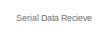
[diagram: Kite Measurement and Control /Kite Measurements  - part 1/7, top left region]
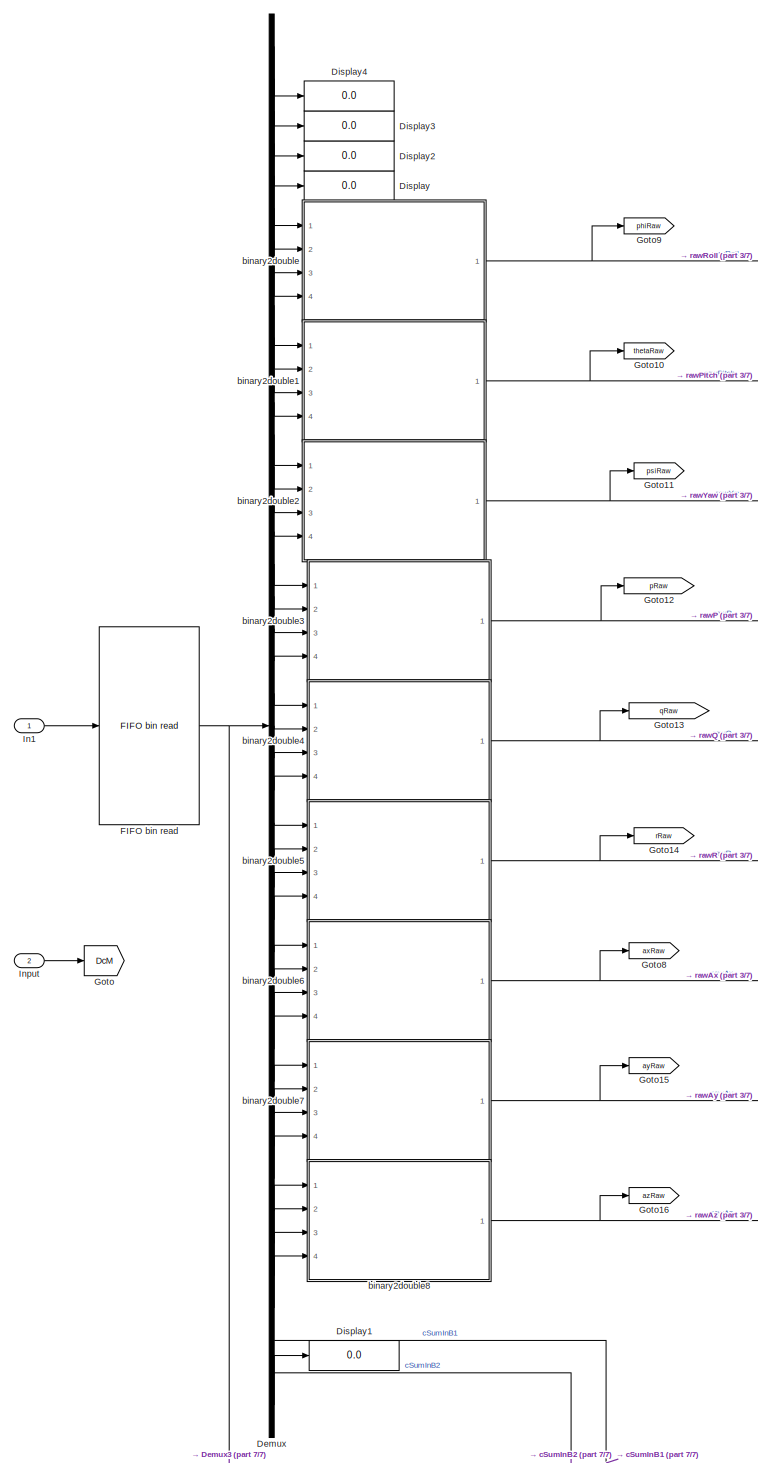
[diagram: Kite Measurement and Control /Kite Measurements  - part 2/7, top left region]
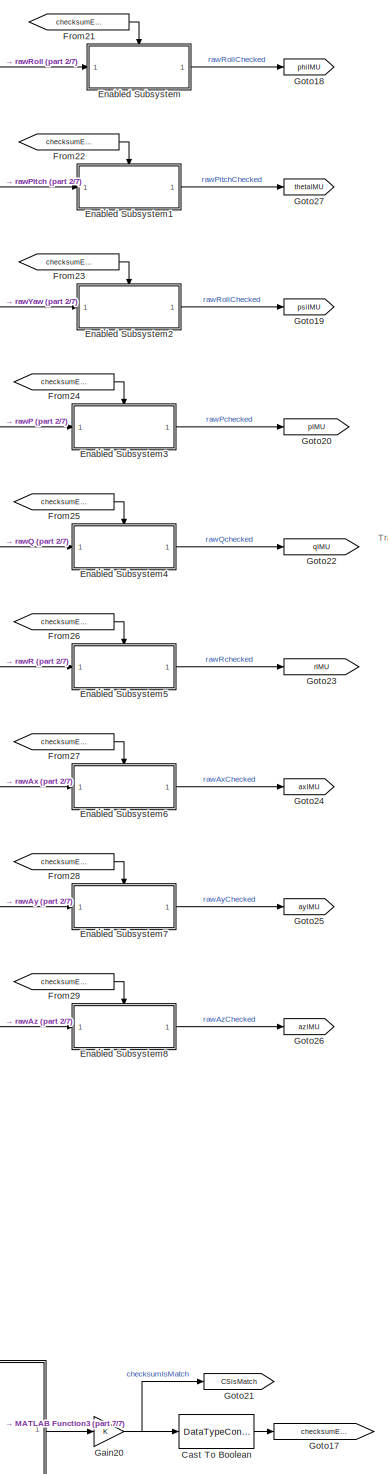
[diagram: Kite Measurement and Control /Kite Measurements  - part 3/7, top left region]
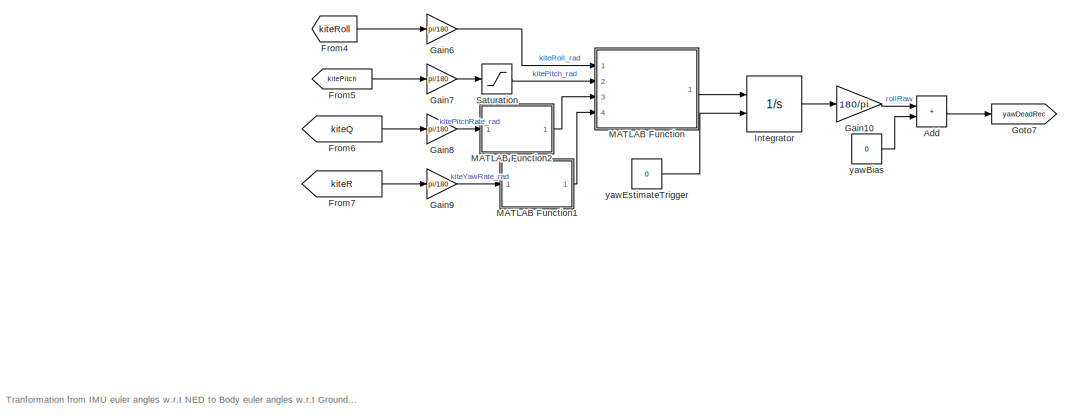
[diagram: Kite Measurement and Control /Kite Measurements  - part 4/7, top center region]
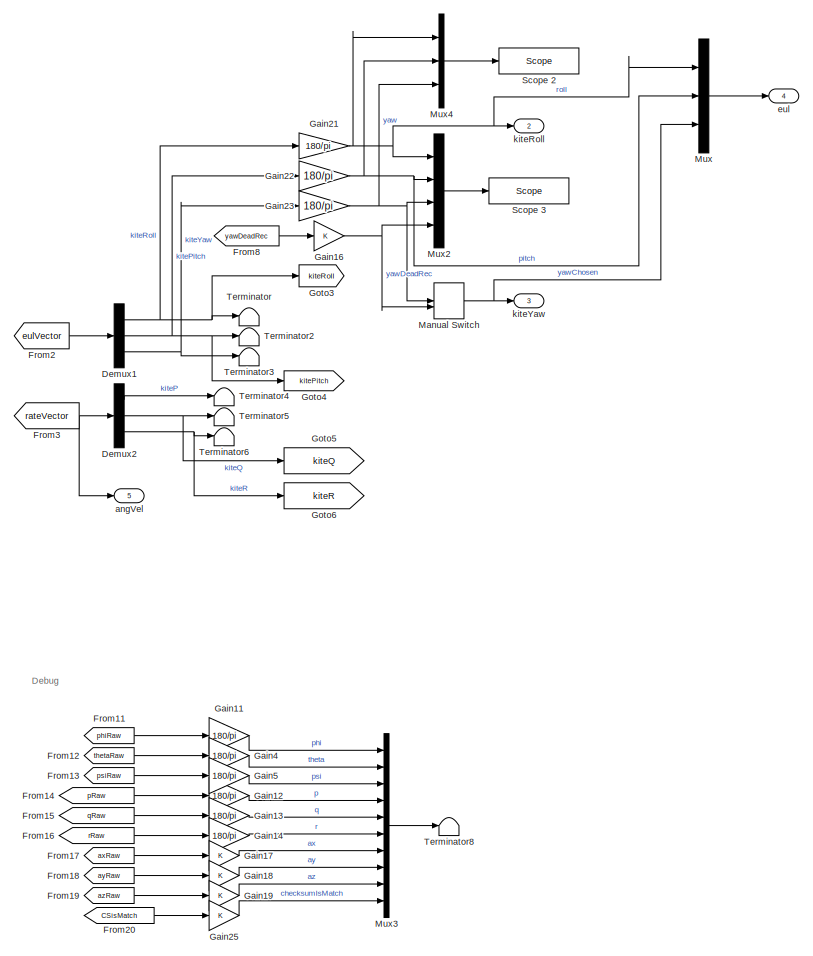
[diagram: Kite Measurement and Control /Kite Measurements  - part 5/7, middle right region]
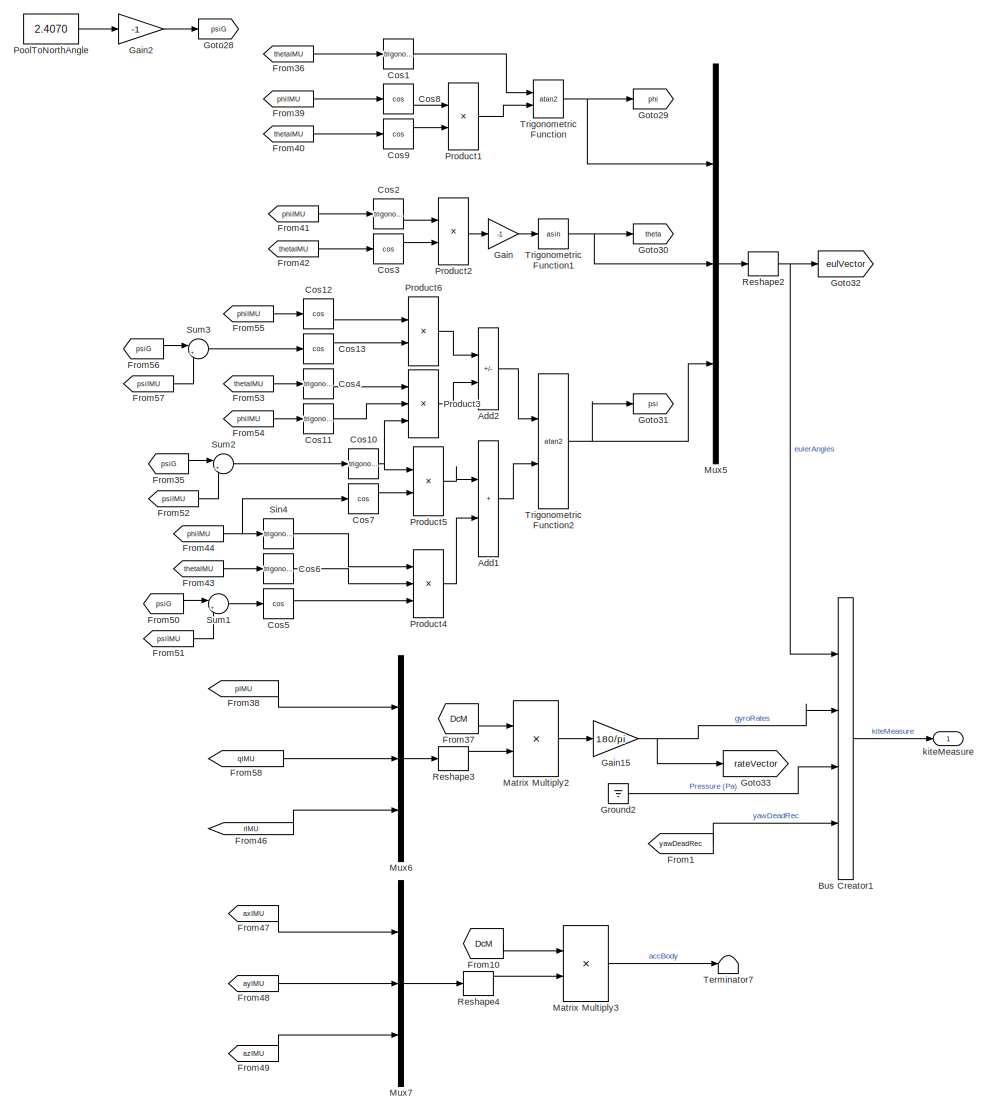
[diagram: Kite Measurement and Control /Kite Measurements  - part 6/7, central region]
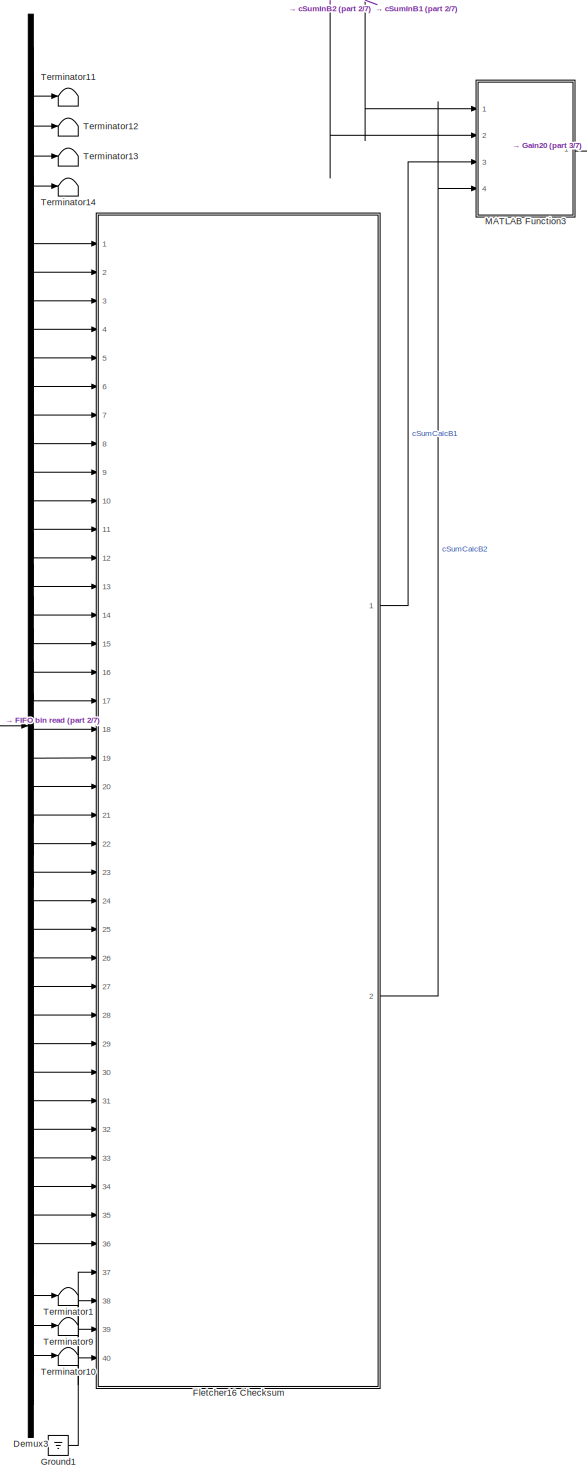
[diagram: Kite Measurement and Control /Kite Measurements  - part 7/7, bottom left region]
BLOCK [SubSystem] Kite Measurement and Control /Kite Measurements 
  Ports = [2, 5]
  RequestExecContextInheritance = off
BLOCK [Sum] Kite Measurement and Control /Kite Measurements /Add
  IconShape = rectangular
  Ports = [2, 1]
BLOCK [Sum] Kite Measurement and Control /Kite Measurements /Add1
  IconShape = rectangular
  Ports = [2, 1]
BLOCK [Sum] Kite Measurement and Control /Kite Measurements /Add2
  IconShape = rectangular
  Inputs = +-
  Ports = [2, 1]
BLOCK [BusCreator] Kite Measurement and Control /Kite Measurements /Bus Creator1
  DisplayOption = bar
  InheritFromInputs = on
  Inputs = 4
  Ports = [4, 1]
BLOCK [DataTypeConversion] Kite Measurement and Control /Kite Measurements /Cast To Boolean
  OutDataTypeStr = boolean
  RndMeth = Floor
  SaturateOnIntegerOverflow = off
BLOCK [Trigonometry] Kite Measurement and Control /Kite Measurements /Cos1
  Ports = [1, 1]
BLOCK [Trigonometry] Kite Measurement and Control /Kite Measurements /Cos10
  Ports = [1, 1]
BLOCK [Trigonometry] Kite Measurement and Control /Kite Measurements /Cos11
  Ports = [1, 1]
BLOCK [Trigonometry] Kite Measurement and Control /Kite Measurements /Cos12
  Operator = cos
  Ports = [1, 1]
BLOCK [Trigonometry] Kite Measurement and Control /Kite Measurements /Cos13
  Operator = cos
  Ports = [1, 1]
BLOCK [Trigonometry] Kite Measurement and Control /Kite Measurements /Cos2
  Ports = [1, 1]
BLOCK [Trigonometry] Kite Measurement and Control /Kite Measurements /Cos3
  Operator = cos
  Ports = [1, 1]
BLOCK [Trigonometry] Kite Measurement and Control /Kite Measurements /Cos4
  Ports = [1, 1]
BLOCK [Trigonometry] Kite Measurement and Control /Kite Measurements /Cos5
  Operator = cos
  Ports = [1, 1]
BLOCK [Trigonometry] Kite Measurement and Control /Kite Measurements /Cos6
  Ports = [1, 1]
BLOCK [Trigonometry] Kite Measurement and Control /Kite Measurements /Cos7
  Operator = cos
  Ports = [1, 1]
BLOCK [Trigonometry] Kite Measurement and Control /Kite Measurements /Cos8
  Operator = cos
  Ports = [1, 1]
BLOCK [Trigonometry] Kite Measurement and Control /Kite Measurements /Cos9
  Operator = cos
  Ports = [1, 1]
BLOCK [Demux] Kite Measurement and Control /Kite Measurements /Demux
  Outputs = 43
  Ports = [1, 43]
BLOCK [Demux] Kite Measurement and Control /Kite Measurements /Demux1
  Outputs = 3
  Ports = [1, 3]
BLOCK [Demux] Kite Measurement and Control /Kite Measurements /Demux2
  Outputs = 3
  Ports = [1, 3]
BLOCK [Demux] Kite Measurement and Control /Kite Measurements /Demux3
  Outputs = 43
  Ports = [1, 43]
BLOCK [Display] Kite Measurement and Control /Kite Measurements /Display
  Decimation = 1
  Format = hex (Stored Integer)
  Ports = [1]
BLOCK [Display] Kite Measurement and Control /Kite Measurements /Display1
  Decimation = 1
  Ports = [1]
BLOCK [Display] Kite Measurement and Control /Kite Measurements /Display2
  Decimation = 1
  Format = hex (Stored Integer)
  Ports = [1]
BLOCK [Display] Kite Measurement and Control /Kite Measurements /Display3
  Decimation = 1
  Format = hex (Stored Integer)
  Ports = [1]
BLOCK [Display] Kite Measurement and Control /Kite Measurements /Display4
  Decimation = 1
  Format = hex (Stored Integer)
  Ports = [1]
BLOCK [SubSystem] Kite Measurement and Control /Kite Measurements /Enabled Subsystem
  Ports = [1, 1, 1]
  RequestExecContextInheritance = off
  TreatAsAtomicUnit = on
BLOCK [Inport] Kite Measurement and Control /Kite Measurements /Enabled Subsystem/Double
BLOCK [EnablePort] Kite Measurement and Control /Kite Measurements /Enabled Subsystem/Enable
  Ports = []
BLOCK [Outport] Kite Measurement and Control /Kite Measurements /Enabled Subsystem/Out1
BLOCK [SubSystem] Kite Measurement and Control /Kite Measurements /Enabled Subsystem1
  Ports = [1, 1, 1]
  RequestExecContextInheritance = off
  TreatAsAtomicUnit = on
BLOCK [Inport] Kite Measurement and Control /Kite Measurements /Enabled Subsystem1/Double
BLOCK [EnablePort] Kite Measurement and Control /Kite Measurements /Enabled Subsystem1/Enable
  Ports = []
BLOCK [Outport] Kite Measurement and Control /Kite Measurements /Enabled Subsystem1/Out1
BLOCK [SubSystem] Kite Measurement and Control /Kite Measurements /Enabled Subsystem2
  Ports = [1, 1, 1]
  RequestExecContextInheritance = off
  TreatAsAtomicUnit = on
BLOCK [Inport] Kite Measurement and Control /Kite Measurements /Enabled Subsystem2/Double
BLOCK [EnablePort] Kite Measurement and Control /Kite Measurements /Enabled Subsystem2/Enable
  Ports = []
BLOCK [Outport] Kite Measurement and Control /Kite Measurements /Enabled Subsystem2/Out1
BLOCK [SubSystem] Kite Measurement and Control /Kite Measurements /Enabled Subsystem3
  Ports = [1, 1, 1]
  RequestExecContextInheritance = off
  TreatAsAtomicUnit = on
BLOCK [Inport] Kite Measurement and Control /Kite Measurements /Enabled Subsystem3/Double
BLOCK [EnablePort] Kite Measurement and Control /Kite Measurements /Enabled Subsystem3/Enable
  Ports = []
BLOCK [Outport] Kite Measurement and Control /Kite Measurements /Enabled Subsystem3/Out1
BLOCK [SubSystem] Kite Measurement and Control /Kite Measurements /Enabled Subsystem4
  Ports = [1, 1, 1]
  RequestExecContextInheritance = off
  TreatAsAtomicUnit = on
BLOCK [Inport] Kite Measurement and Control /Kite Measurements /Enabled Subsystem4/Double
BLOCK [EnablePort] Kite Measurement and Control /Kite Measurements /Enabled Subsystem4/Enable
  Ports = []
BLOCK [Outport] Kite Measurement and Control /Kite Measurements /Enabled Subsystem4/Out1
BLOCK [SubSystem] Kite Measurement and Control /Kite Measurements /Enabled Subsystem5
  Ports = [1, 1, 1]
  RequestExecContextInheritance = off
  TreatAsAtomicUnit = on
BLOCK [Inport] Kite Measurement and Control /Kite Measurements /Enabled Subsystem5/Double
BLOCK [EnablePort] Kite Measurement and Control /Kite Measurements /Enabled Subsystem5/Enable
  Ports = []
BLOCK [Outport] Kite Measurement and Control /Kite Measurements /Enabled Subsystem5/Out1
BLOCK [SubSystem] Kite Measurement and Control /Kite Measurements /Enabled Subsystem6
  Ports = [1, 1, 1]
  RequestExecContextInheritance = off
  TreatAsAtomicUnit = on
BLOCK [Inport] Kite Measurement and Control /Kite Measurements /Enabled Subsystem6/Double
BLOCK [EnablePort] Kite Measurement and Control /Kite Measurements /Enabled Subsystem6/Enable
  Ports = []
BLOCK [Outport] Kite Measurement and Control /Kite Measurements /Enabled Subsystem6/Out1
BLOCK [SubSystem] Kite Measurement and Control /Kite Measurements /Enabled Subsystem7
  Ports = [1, 1, 1]
  RequestExecContextInheritance = off
  TreatAsAtomicUnit = on
BLOCK [Inport] Kite Measurement and Control /Kite Measurements /Enabled Subsystem7/Double
BLOCK [EnablePort] Kite Measurement and Control /Kite Measurements /Enabled Subsystem7/Enable
  Ports = []
BLOCK [Outport] Kite Measurement and Control /Kite Measurements /Enabled Subsystem7/Out1
BLOCK [SubSystem] Kite Measurement and Control /Kite Measurements /Enabled Subsystem8
  Ports = [1, 1, 1]
  RequestExecContextInheritance = off
  TreatAsAtomicUnit = on
BLOCK [Inport] Kite Measurement and Control /Kite Measurements /Enabled Subsystem8/Double
BLOCK [EnablePort] Kite Measurement and Control /Kite Measurements /Enabled Subsystem8/Enable
  Ports = []
BLOCK [Outport] Kite Measurement and Control /Kite Measurements /Enabled Subsystem8/Out1
BLOCK [Reference] Kite Measurement and Control /Kite Measurements /FIFO bin read   REF=xpcseriallib/FIFO bin read 
  Ports = [1, 1]
  SourceBlock = xpcseriallib/FIFO bin read
  SourceProductBaseCode = XP
  SourceType = Asynchronous FIFO Block: reader
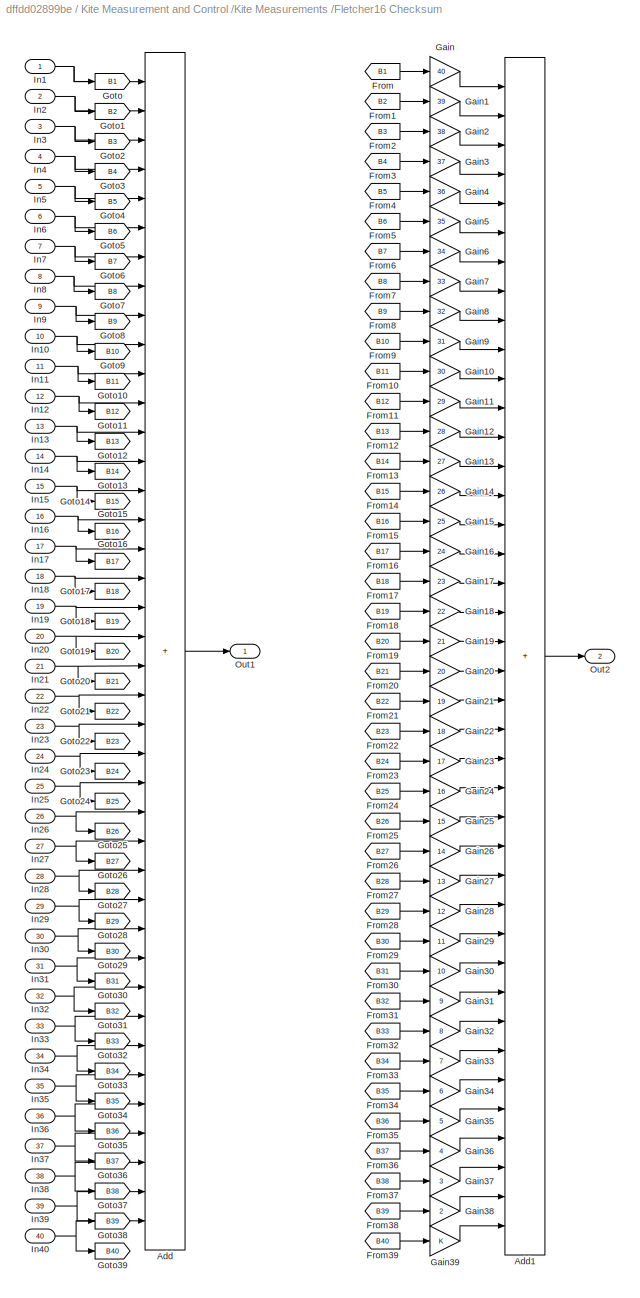
BLOCK [SubSystem] Kite Measurement and Control /Kite Measurements /Fletcher16 Checksum
  Ports = [40, 2]
  RequestExecContextInheritance = off
BLOCK [Sum] Kite Measurement and Control /Kite Measurements /Fletcher16 Checksum/Add
  IconShape = rectangular
  Inputs = ++++++++++++++++++++++++++++++++++++++++
  Ports = [40, 1]
BLOCK [Sum] Kite Measurement and Control /Kite Measurements /Fletcher16 Checksum/Add1
  IconShape = rectangular
  Inputs = ++++++++++++++++++++++++++++++++++++++++
  Ports = [40, 1]
BLOCK [From] Kite Measurement and Control /Kite Measurements /Fletcher16 Checksum/From
  GotoTag = B1
BLOCK [From] Kite Measurement and Control /Kite Measurements /Fletcher16 Checksum/From1
  GotoTag = B2
BLOCK [From] Kite Measurement and Control /Kite Measurements /Fletcher16 Checksum/From10
  GotoTag = B11
BLOCK [From] Kite Measurement and Control /Kite Measurements /Fletcher16 Checksum/From11
  GotoTag = B12
BLOCK [From] Kite Measurement and Control /Kite Measurements /Fletcher16 Checksum/From12
  GotoTag = B13
BLOCK [From] Kite Measurement and Control /Kite Measurements /Fletcher16 Checksum/From13
  GotoTag = B14
BLOCK [From] Kite Measurement and Control /Kite Measurements /Fletcher16 Checksum/From14
  GotoTag = B15
BLOCK [From] Kite Measurement and Control /Kite Measurements /Fletcher16 Checksum/From15
  GotoTag = B16
BLOCK [From] Kite Measurement and Control /Kite Measurements /Fletcher16 Checksum/From16
  GotoTag = B17
BLOCK [From] Kite Measurement and Control /Kite Measurements /Fletcher16 Checksum/From17
  GotoTag = B18
BLOCK [From] Kite Measurement and Control /Kite Measurements /Fletcher16 Checksum/From18
  GotoTag = B19
BLOCK [From] Kite Measurement and Control /Kite Measurements /Fletcher16 Checksum/From19
  GotoTag = B20
BLOCK [From] Kite Measurement and Control /Kite Measurements /Fletcher16 Checksum/From2
  GotoTag = B3
BLOCK [From] Kite Measurement and Control /Kite Measurements /Fletcher16 Checksum/From20
  GotoTag = B21
BLOCK [From] Kite Measurement and Control /Kite Measurements /Fletcher16 Checksum/From21
  GotoTag = B22
BLOCK [From] Kite Measurement and Control /Kite Measurements /Fletcher16 Checksum/From22
  GotoTag = B23
BLOCK [From] Kite Measurement and Control /Kite Measurements /Fletcher16 Checksum/From23
  GotoTag = B24
BLOCK [From] Kite Measurement and Control /Kite Measurements /Fletcher16 Checksum/From24
  GotoTag = B25
BLOCK [From] Kite Measurement and Control /Kite Measurements /Fletcher16 Checksum/From25
  GotoTag = B26
BLOCK [From] Kite Measurement and Control /Kite Measurements /Fletcher16 Checksum/From26
  GotoTag = B27
BLOCK [From] Kite Measurement and Control /Kite Measurements /Fletcher16 Checksum/From27
  GotoTag = B28
BLOCK [From] Kite Measurement and Control /Kite Measurements /Fletcher16 Checksum/From28
  GotoTag = B29
BLOCK [From] Kite Measurement and Control /Kite Measurements /Fletcher16 Checksum/From29
  GotoTag = B30
BLOCK [From] Kite Measurement and Control /Kite Measurements /Fletcher16 Checksum/From3
  GotoTag = B4
BLOCK [From] Kite Measurement and Control /Kite Measurements /Fletcher16 Checksum/From30
  GotoTag = B31
BLOCK [From] Kite Measurement and Control /Kite Measurements /Fletcher16 Checksum/From31
  GotoTag = B32
BLOCK [From] Kite Measurement and Control /Kite Measurements /Fletcher16 Checksum/From32
  GotoTag = B33
BLOCK [From] Kite Measurement and Control /Kite Measurements /Fletcher16 Checksum/From33
  GotoTag = B34
BLOCK [From] Kite Measurement and Control /Kite Measurements /Fletcher16 Checksum/From34
  GotoTag = B35
BLOCK [From] Kite Measurement and Control /Kite Measurements /Fletcher16 Checksum/From35
  GotoTag = B36
BLOCK [From] Kite Measurement and Control /Kite Measurements /Fletcher16 Checksum/From36
  GotoTag = B37
BLOCK [From] Kite Measurement and Control /Kite Measurements /Fletcher16 Checksum/From37
  GotoTag = B38
BLOCK [From] Kite Measurement and Control /Kite Measurements /Fletcher16 Checksum/From38
  GotoTag = B39
BLOCK [From] Kite Measurement and Control /Kite Measurements /Fletcher16 Checksum/From39
  GotoTag = B40
BLOCK [From] Kite Measurement and Control /Kite Measurements /Fletcher16 Checksum/From4
  GotoTag = B5
BLOCK [From] Kite Measurement and Control /Kite Measurements /Fletcher16 Checksum/From5
  GotoTag = B6
BLOCK [From] Kite Measurement and Control /Kite Measurements /Fletcher16 Checksum/From6
  GotoTag = B7
BLOCK [From] Kite Measurement and Control /Kite Measurements /Fletcher16 Checksum/From7
  GotoTag = B8
BLOCK [From] Kite Measurement and Control /Kite Measurements /Fletcher16 Checksum/From8
  GotoTag = B9
BLOCK [From] Kite Measurement and Control /Kite Measurements /Fletcher16 Checksum/From9
  GotoTag = B10
BLOCK [Gain] Kite Measurement and Control /Kite Measurements /Fletcher16 Checksum/Gain
  Gain = 40
  OutDataTypeStr = uint8
BLOCK [Gain] Kite Measurement and Control /Kite Measurements /Fletcher16 Checksum/Gain1
  Gain = 39
  OutDataTypeStr = uint8
BLOCK [Gain] Kite Measurement and Control /Kite Measurements /Fletcher16 Checksum/Gain10
  Gain = 30
  OutDataTypeStr = uint8
BLOCK [Gain] Kite Measurement and Control /Kite Measurements /Fletcher16 Checksum/Gain11
  Gain = 29
  OutDataTypeStr = uint8
BLOCK [Gain] Kite Measurement and Control /Kite Measurements /Fletcher16 Checksum/Gain12
  Gain = 28
  OutDataTypeStr = uint8
BLOCK [Gain] Kite Measurement and Control /Kite Measurements /Fletcher16 Checksum/Gain13
  Gain = 27
  OutDataTypeStr = uint8
BLOCK [Gain] Kite Measurement and Control /Kite Measurements /Fletcher16 Checksum/Gain14
  Gain = 26
  OutDataTypeStr = uint8
BLOCK [Gain] Kite Measurement and Control /Kite Measurements /Fletcher16 Checksum/Gain15
  Gain = 25
  OutDataTypeStr = uint8
BLOCK [Gain] Kite Measurement and Control /Kite Measurements /Fletcher16 Checksum/Gain16
  Gain = 24
  OutDataTypeStr = uint8
BLOCK [Gain] Kite Measurement and Control /Kite Measurements /Fletcher16 Checksum/Gain17
  Gain = 23
  OutDataTypeStr = uint8
BLOCK [Gain] Kite Measurement and Control /Kite Measurements /Fletcher16 Checksum/Gain18
  Gain = 22
  OutDataTypeStr = uint8
BLOCK [Gain] Kite Measurement and Control /Kite Measurements /Fletcher16 Checksum/Gain19
  Gain = 21
  OutDataTypeStr = uint8
BLOCK [Gain] Kite Measurement and Control /Kite Measurements /Fletcher16 Checksum/Gain2
  Gain = 38
  OutDataTypeStr = uint8
BLOCK [Gain] Kite Measurement and Control /Kite Measurements /Fletcher16 Checksum/Gain20
  Gain = 20
  OutDataTypeStr = uint8
BLOCK [Gain] Kite Measurement and Control /Kite Measurements /Fletcher16 Checksum/Gain21
  Gain = 19
  OutDataTypeStr = uint8
BLOCK [Gain] Kite Measurement and Control /Kite Measurements /Fletcher16 Checksum/Gain22
  Gain = 18
  OutDataTypeStr = uint8
BLOCK [Gain] Kite Measurement and Control /Kite Measurements /Fletcher16 Checksum/Gain23
  Gain = 17
  OutDataTypeStr = uint8
BLOCK [Gain] Kite Measurement and Control /Kite Measurements /Fletcher16 Checksum/Gain24
  Gain = 16
  OutDataTypeStr = uint8
BLOCK [Gain] Kite Measurement and Control /Kite Measurements /Fletcher16 Checksum/Gain25
  Gain = 15
  OutDataTypeStr = uint8
BLOCK [Gain] Kite Measurement and Control /Kite Measurements /Fletcher16 Checksum/Gain26
  Gain = 14
  OutDataTypeStr = uint8
BLOCK [Gain] Kite Measurement and Control /Kite Measurements /Fletcher16 Checksum/Gain27
  Gain = 13
  OutDataTypeStr = uint8
BLOCK [Gain] Kite Measurement and Control /Kite Measurements /Fletcher16 Checksum/Gain28
  Gain = 12
  OutDataTypeStr = uint8
BLOCK [Gain] Kite Measurement and Control /Kite Measurements /Fletcher16 Checksum/Gain29
  Gain = 11
  OutDataTypeStr = uint8
BLOCK [Gain] Kite Measurement and Control /Kite Measurements /Fletcher16 Checksum/Gain3
  Gain = 37
  OutDataTypeStr = uint8
BLOCK [Gain] Kite Measurement and Control /Kite Measurements /Fletcher16 Checksum/Gain30
  Gain = 10
  OutDataTypeStr = uint8
BLOCK [Gain] Kite Measurement and Control /Kite Measurements /Fletcher16 Checksum/Gain31
  Gain = 9
  OutDataTypeStr = uint8
BLOCK [Gain] Kite Measurement and Control /Kite Measurements /Fletcher16 Checksum/Gain32
  Gain = 8
  OutDataTypeStr = uint8
BLOCK [Gain] Kite Measurement and Control /Kite Measurements /Fletcher16 Checksum/Gain33
  Gain = 7
  OutDataTypeStr = uint8
BLOCK [Gain] Kite Measurement and Control /Kite Measurements /Fletcher16 Checksum/Gain34
  Gain = 6
  OutDataTypeStr = uint8
BLOCK [Gain] Kite Measurement and Control /Kite Measurements /Fletcher16 Checksum/Gain35
  Gain = 5
  OutDataTypeStr = uint8
BLOCK [Gain] Kite Measurement and Control /Kite Measurements /Fletcher16 Checksum/Gain36
  Gain = 4
  OutDataTypeStr = uint8
BLOCK [Gain] Kite Measurement and Control /Kite Measurements /Fletcher16 Checksum/Gain37
  Gain = 3
  OutDataTypeStr = uint8
BLOCK [Gain] Kite Measurement and Control /Kite Measurements /Fletcher16 Checksum/Gain38
  Gain = 2
  OutDataTypeStr = uint8
BLOCK [Gain] Kite Measurement and Control /Kite Measurements /Fletcher16 Checksum/Gain39
  OutDataTypeStr = uint8
BLOCK [Gain] Kite Measurement and Control /Kite Measurements /Fletcher16 Checksum/Gain4
  Gain = 36
  OutDataTypeStr = uint8
BLOCK [Gain] Kite Measurement and Control /Kite Measurements /Fletcher16 Checksum/Gain5
  Gain = 35
  OutDataTypeStr = uint8
BLOCK [Gain] Kite Measurement and Control /Kite Measurements /Fletcher16 Checksum/Gain6
  Gain = 34
  OutDataTypeStr = uint8
BLOCK [Gain] Kite Measurement and Control /Kite Measurements /Fletcher16 Checksum/Gain7
  Gain = 33
  OutDataTypeStr = uint8
BLOCK [Gain] Kite Measurement and Control /Kite Measurements /Fletcher16 Checksum/Gain8
  Gain = 32
  OutDataTypeStr = uint8
BLOCK [Gain] Kite Measurement and Control /Kite Measurements /Fletcher16 Checksum/Gain9
  Gain = 31
  OutDataTypeStr = uint8
BLOCK [Goto] Kite Measurement and Control /Kite Measurements /Fletcher16 Checksum/Goto
  GotoTag = B1
BLOCK [Goto] Kite Measurement and Control /Kite Measurements /Fletcher16 Checksum/Goto1
  GotoTag = B2
BLOCK [Goto] Kite Measurement and Control /Kite Measurements /Fletcher16 Checksum/Goto10
  GotoTag = B11
BLOCK [Goto] Kite Measurement and Control /Kite Measurements /Fletcher16 Checksum/Goto11
  GotoTag = B12
BLOCK [Goto] Kite Measurement and Control /Kite Measurements /Fletcher16 Checksum/Goto12
  GotoTag = B13
BLOCK [Goto] Kite Measurement and Control /Kite Measurements /Fletcher16 Checksum/Goto13
  GotoTag = B14
BLOCK [Goto] Kite Measurement and Control /Kite Measurements /Fletcher16 Checksum/Goto14
  GotoTag = B15
BLOCK [Goto] Kite Measurement and Control /Kite Measurements /Fletcher16 Checksum/Goto15
  GotoTag = B16
BLOCK [Goto] Kite Measurement and Control /Kite Measurements /Fletcher16 Checksum/Goto16
  GotoTag = B17
BLOCK [Goto] Kite Measurement and Control /Kite Measurements /Fletcher16 Checksum/Goto17
  GotoTag = B18
BLOCK [Goto] Kite Measurement and Control /Kite Measurements /Fletcher16 Checksum/Goto18
  GotoTag = B19
BLOCK [Goto] Kite Measurement and Control /Kite Measurements /Fletcher16 Checksum/Goto19
  GotoTag = B20
BLOCK [Goto] Kite Measurement and Control /Kite Measurements /Fletcher16 Checksum/Goto2
  GotoTag = B3
BLOCK [Goto] Kite Measurement and Control /Kite Measurements /Fletcher16 Checksum/Goto20
  GotoTag = B21
BLOCK [Goto] Kite Measurement and Control /Kite Measurements /Fletcher16 Checksum/Goto21
  GotoTag = B22
BLOCK [Goto] Kite Measurement and Control /Kite Measurements /Fletcher16 Checksum/Goto22
  GotoTag = B23
BLOCK [Goto] Kite Measurement and Control /Kite Measurements /Fletcher16 Checksum/Goto23
  GotoTag = B24
BLOCK [Goto] Kite Measurement and Control /Kite Measurements /Fletcher16 Checksum/Goto24
  GotoTag = B25
BLOCK [Goto] Kite Measurement and Control /Kite Measurements /Fletcher16 Checksum/Goto25
  GotoTag = B26
BLOCK [Goto] Kite Measurement and Control /Kite Measurements /Fletcher16 Checksum/Goto26
  GotoTag = B27
BLOCK [Goto] Kite Measurement and Control /Kite Measurements /Fletcher16 Checksum/Goto27
  GotoTag = B28
BLOCK [Goto] Kite Measurement and Control /Kite Measurements /Fletcher16 Checksum/Goto28
  GotoTag = B29
BLOCK [Goto] Kite Measurement and Control /Kite Measurements /Fletcher16 Checksum/Goto29
  GotoTag = B30
BLOCK [Goto] Kite Measurement and Control /Kite Measurements /Fletcher16 Checksum/Goto3
  GotoTag = B4
BLOCK [Goto] Kite Measurement and Control /Kite Measurements /Fletcher16 Checksum/Goto30
  GotoTag = B31
BLOCK [Goto] Kite Measurement and Control /Kite Measurements /Fletcher16 Checksum/Goto31
  GotoTag = B32
BLOCK [Goto] Kite Measurement and Control /Kite Measurements /Fletcher16 Checksum/Goto32
  GotoTag = B33
BLOCK [Goto] Kite Measurement and Control /Kite Measurements /Fletcher16 Checksum/Goto33
  GotoTag = B34
BLOCK [Goto] Kite Measurement and Control /Kite Measurements /Fletcher16 Checksum/Goto34
  GotoTag = B35
BLOCK [Goto] Kite Measurement and Control /Kite Measurements /Fletcher16 Checksum/Goto35
  GotoTag = B36
BLOCK [Goto] Kite Measurement and Control /Kite Measurements /Fletcher16 Checksum/Goto36
  GotoTag = B37
BLOCK [Goto] Kite Measurement and Control /Kite Measurements /Fletcher16 Checksum/Goto37
  GotoTag = B38
BLOCK [Goto] Kite Measurement and Control /Kite Measurements /Fletcher16 Checksum/Goto38
  GotoTag = B39
BLOCK [Goto] Kite Measurement and Control /Kite Measurements /Fletcher16 Checksum/Goto39
  GotoTag = B40
BLOCK [Goto] Kite Measurement and Control /Kite Measurements /Fletcher16 Checksum/Goto4
  GotoTag = B5
BLOCK [Goto] Kite Measurement and Control /Kite Measurements /Fletcher16 Checksum/Goto5
  GotoTag = B6
BLOCK [Goto] Kite Measurement and Control /Kite Measurements /Fletcher16 Checksum/Goto6
  GotoTag = B7
BLOCK [Goto] Kite Measurement and Control /Kite Measurements /Fletcher16 Checksum/Goto7
  GotoTag = B8
BLOCK [Goto] Kite Measurement and Control /Kite Measurements /Fletcher16 Checksum/Goto8
  GotoTag = B9
BLOCK [Goto] Kite Measurement and Control /Kite Measurements /Fletcher16 Checksum/Goto9
  GotoTag = B10
BLOCK [Inport] Kite Measurement and Control /Kite Measurements /Fletcher16 Checksum/In1
BLOCK [Inport] Kite Measurement and Control /Kite Measurements /Fletcher16 Checksum/In10
  Port = 10
BLOCK [Inport] Kite Measurement and Control /Kite Measurements /Fletcher16 Checksum/In11
  Port = 11
BLOCK [Inport] Kite Measurement and Control /Kite Measurements /Fletcher16 Checksum/In12
  Port = 12
BLOCK [Inport] Kite Measurement and Control /Kite Measurements /Fletcher16 Checksum/In13
  Port = 13
BLOCK [Inport] Kite Measurement and Control /Kite Measurements /Fletcher16 Checksum/In14
  Port = 14
BLOCK [Inport] Kite Measurement and Control /Kite Measurements /Fletcher16 Checksum/In15
  Port = 15
BLOCK [Inport] Kite Measurement and Control /Kite Measurements /Fletcher16 Checksum/In16
  Port = 16
BLOCK [Inport] Kite Measurement and Control /Kite Measurements /Fletcher16 Checksum/In17
  Port = 17
BLOCK [Inport] Kite Measurement and Control /Kite Measurements /Fletcher16 Checksum/In18
  Port = 18
BLOCK [Inport] Kite Measurement and Control /Kite Measurements /Fletcher16 Checksum/In19
  Port = 19
BLOCK [Inport] Kite Measurement and Control /Kite Measurements /Fletcher16 Checksum/In2
  Port = 2
BLOCK [Inport] Kite Measurement and Control /Kite Measurements /Fletcher16 Checksum/In20
  Port = 20
BLOCK [Inport] Kite Measurement and Control /Kite Measurements /Fletcher16 Checksum/In21
  Port = 21
BLOCK [Inport] Kite Measurement and Control /Kite Measurements /Fletcher16 Checksum/In22
  Port = 22
BLOCK [Inport] Kite Measurement and Control /Kite Measurements /Fletcher16 Checksum/In23
  Port = 23
BLOCK [Inport] Kite Measurement and Control /Kite Measurements /Fletcher16 Checksum/In24
  Port = 24
BLOCK [Inport] Kite Measurement and Control /Kite Measurements /Fletcher16 Checksum/In25
  Port = 25
BLOCK [Inport] Kite Measurement and Control /Kite Measurements /Fletcher16 Checksum/In26
  Port = 26
BLOCK [Inport] Kite Measurement and Control /Kite Measurements /Fletcher16 Checksum/In27
  Port = 27
BLOCK [Inport] Kite Measurement and Control /Kite Measurements /Fletcher16 Checksum/In28
  Port = 28
BLOCK [Inport] Kite Measurement and Control /Kite Measurements /Fletcher16 Checksum/In29
  Port = 29
BLOCK [Inport] Kite Measurement and Control /Kite Measurements /Fletcher16 Checksum/In3
  Port = 3
BLOCK [Inport] Kite Measurement and Control /Kite Measurements /Fletcher16 Checksum/In30
  Port = 30
BLOCK [Inport] Kite Measurement and Control /Kite Measurements /Fletcher16 Checksum/In31
  Port = 31
BLOCK [Inport] Kite Measurement and Control /Kite Measurements /Fletcher16 Checksum/In32
  Port = 32
BLOCK [Inport] Kite Measurement and Control /Kite Measurements /Fletcher16 Checksum/In33
  Port = 33
BLOCK [Inport] Kite Measurement and Control /Kite Measurements /Fletcher16 Checksum/In34
  Port = 34
BLOCK [Inport] Kite Measurement and Control /Kite Measurements /Fletcher16 Checksum/In35
  Port = 35
BLOCK [Inport] Kite Measurement and Control /Kite Measurements /Fletcher16 Checksum/In36
  Port = 36
BLOCK [Inport] Kite Measurement and Control /Kite Measurements /Fletcher16 Checksum/In37
  Port = 37
BLOCK [Inport] Kite Measurement and Control /Kite Measurements /Fletcher16 Checksum/In38
  Port = 38
BLOCK [Inport] Kite Measurement and Control /Kite Measurements /Fletcher16 Checksum/In39
  Port = 39
BLOCK [Inport] Kite Measurement and Control /Kite Measurements /Fletcher16 Checksum/In4
  Port = 4
BLOCK [Inport] Kite Measurement and Control /Kite Measurements /Fletcher16 Checksum/In40
  Port = 40
BLOCK [Inport] Kite Measurement and Control /Kite Measurements /Fletcher16 Checksum/In5
  Port = 5
BLOCK [Inport] Kite Measurement and Control /Kite Measurements /Fletcher16 Checksum/In6
  Port = 6
BLOCK [Inport] Kite Measurement and Control /Kite Measurements /Fletcher16 Checksum/In7
  Port = 7
BLOCK [Inport] Kite Measurement and Control /Kite Measurements /Fletcher16 Checksum/In8
  Port = 8
BLOCK [Inport] Kite Measurement and Control /Kite Measurements /Fletcher16 Checksum/In9
  Port = 9
BLOCK [Outport] Kite Measurement and Control /Kite Measurements /Fletcher16 Checksum/Out1
BLOCK [Outport] Kite Measurement and Control /Kite Measurements /Fletcher16 Checksum/Out2
  Port = 2
BLOCK [From] Kite Measurement and Control /Kite Measurements /From1
  GotoTag = yawDeadRec
BLOCK [From] Kite Measurement and Control /Kite Measurements /From10
  GotoTag = DcM
BLOCK [From] Kite Measurement and Control /Kite Measurements /From11
  GotoTag = phiRaw
BLOCK [From] Kite Measurement and Control /Kite Measurements /From12
  GotoTag = thetaRaw
BLOCK [From] Kite Measurement and Control /Kite Measurements /From13
  GotoTag = psiRaw
BLOCK [From] Kite Measurement and Control /Kite Measurements /From14
  GotoTag = pRaw
BLOCK [From] Kite Measurement and Control /Kite Measurements /From15
  GotoTag = qRaw
BLOCK [From] Kite Measurement and Control /Kite Measurements /From16
  GotoTag = rRaw
BLOCK [From] Kite Measurement and Control /Kite Measurements /From17
  GotoTag = axRaw
BLOCK [From] Kite Measurement and Control /Kite Measurements /From18
  GotoTag = ayRaw
BLOCK [From] Kite Measurement and Control /Kite Measurements /From19
  GotoTag = azRaw
BLOCK [From] Kite Measurement and Control /Kite Measurements /From2
  GotoTag = eulVector
BLOCK [From] Kite Measurement and Control /Kite Measurements /From20
  GotoTag = CSisMatch
BLOCK [From] Kite Measurement and Control /Kite Measurements /From21
  GotoTag = checksumEnable
BLOCK [From] Kite Measurement and Control /Kite Measurements /From22
  GotoTag = checksumEnable
BLOCK [From] Kite Measurement and Control /Kite Measurements /From23
  GotoTag = checksumEnable
BLOCK [From] Kite Measurement and Control /Kite Measurements /From24
  GotoTag = checksumEnable
BLOCK [From] Kite Measurement and Control /Kite Measurements /From25
  GotoTag = checksumEnable
BLOCK [From] Kite Measurement and Control /Kite Measurements /From26
  GotoTag = checksumEnable
BLOCK [From] Kite Measurement and Control /Kite Measurements /From27
  GotoTag = checksumEnable
BLOCK [From] Kite Measurement and Control /Kite Measurements /From28
  GotoTag = checksumEnable
BLOCK [From] Kite Measurement and Control /Kite Measurements /From29
  GotoTag = checksumEnable
BLOCK [From] Kite Measurement and Control /Kite Measurements /From3
  GotoTag = rateVector
BLOCK [From] Kite Measurement and Control /Kite Measurements /From35
  GotoTag = psiG
BLOCK [From] Kite Measurement and Control /Kite Measurements /From36
  GotoTag = thetaIMU
BLOCK [From] Kite Measurement and Control /Kite Measurements /From37
  GotoTag = DcM
BLOCK [From] Kite Measurement and Control /Kite Measurements /From38
  GotoTag = pIMU
BLOCK [From] Kite Measurement and Control /Kite Measurements /From39
  GotoTag = phiIMU
BLOCK [From] Kite Measurement and Control /Kite Measurements /From4
  GotoTag = kiteRoll
BLOCK [From] Kite Measurement and Control /Kite Measurements /From40
  GotoTag = thetaIMU
BLOCK [From] Kite Measurement and Control /Kite Measurements /From41
  GotoTag = phiIMU
BLOCK [From] Kite Measurement and Control /Kite Measurements /From42
  GotoTag = thetaIMU
BLOCK [From] Kite Measurement and Control /Kite Measurements /From43
  GotoTag = thetaIMU
BLOCK [From] Kite Measurement and Control /Kite Measurements /From44
  GotoTag = phiIMU
BLOCK [From] Kite Measurement and Control /Kite Measurements /From46
  GotoTag = rIMU
BLOCK [From] Kite Measurement and Control /Kite Measurements /From47
  GotoTag = axIMU
BLOCK [From] Kite Measurement and Control /Kite Measurements /From48
  GotoTag = ayIMU
BLOCK [From] Kite Measurement and Control /Kite Measurements /From49
  GotoTag = azIMU
BLOCK [From] Kite Measurement and Control /Kite Measurements /From5
  GotoTag = kitePitch
BLOCK [From] Kite Measurement and Control /Kite Measurements /From50
  GotoTag = psiG
BLOCK [From] Kite Measurement and Control /Kite Measurements /From51
  GotoTag = psiIMU
BLOCK [From] Kite Measurement and Control /Kite Measurements /From52
  GotoTag = psiIMU
BLOCK [From] Kite Measurement and Control /Kite Measurements /From53
  GotoTag = thetaIMU
BLOCK [From] Kite Measurement and Control /Kite Measurements /From54
  GotoTag = phiIMU
BLOCK [From] Kite Measurement and Control /Kite Measurements /From55
  GotoTag = phiIMU
BLOCK [From] Kite Measurement and Control /Kite Measurements /From56
  GotoTag = psiG
BLOCK [From] Kite Measurement and Control /Kite Measurements /From57
  GotoTag = psiIMU
BLOCK [From] Kite Measurement and Control /Kite Measurements /From58
  GotoTag = qIMU
BLOCK [From] Kite Measurement and Control /Kite Measurements /From6
  GotoTag = kiteQ
BLOCK [From] Kite Measurement and Control /Kite Measurements /From7
  GotoTag = kiteR
BLOCK [From] Kite Measurement and Control /Kite Measurements /From8
  GotoTag = yawDeadRec
BLOCK [Gain] Kite Measurement and Control /Kite Measurements /Gain
  Gain = -1
BLOCK [Gain] Kite Measurement and Control /Kite Measurements /Gain10
  Gain = 180/pi
BLOCK [Gain] Kite Measurement and Control /Kite Measurements /Gain11
  Gain = 180/pi
BLOCK [Gain] Kite Measurement and Control /Kite Measurements /Gain12
  Gain = 180/pi
BLOCK [Gain] Kite Measurement and Control /Kite Measurements /Gain13
  Gain = 180/pi
BLOCK [Gain] Kite Measurement and Control /Kite Measurements /Gain14
  Gain = 180/pi
BLOCK [Gain] Kite Measurement and Control /Kite Measurements /Gain15
  Gain = 180/pi
BLOCK [Gain] Kite Measurement and Control /Kite Measurements /Gain16
BLOCK [Gain] Kite Measurement and Control /Kite Measurements /Gain17
BLOCK [Gain] Kite Measurement and Control /Kite Measurements /Gain18
BLOCK [Gain] Kite Measurement and Control /Kite Measurements /Gain19
BLOCK [Gain] Kite Measurement and Control /Kite Measurements /Gain2
  Gain = -1
BLOCK [Gain] Kite Measurement and Control /Kite Measurements /Gain20
BLOCK [Gain] Kite Measurement and Control /Kite Measurements /Gain21
  Gain = 180/pi
BLOCK [Gain] Kite Measurement and Control /Kite Measurements /Gain22
  Gain = 180/pi
BLOCK [Gain] Kite Measurement and Control /Kite Measurements /Gain23
  Gain = 180/pi
BLOCK [Gain] Kite Measurement and Control /Kite Measurements /Gain25
BLOCK [Gain] Kite Measurement and Control /Kite Measurements /Gain4
  Gain = 180/pi
BLOCK [Gain] Kite Measurement and Control /Kite Measurements /Gain5
  Gain = 180/pi
BLOCK [Gain] Kite Measurement and Control /Kite Measurements /Gain6
  Gain = pi/180
BLOCK [Gain] Kite Measurement and Control /Kite Measurements /Gain7
  Gain = pi/180
BLOCK [Gain] Kite Measurement and Control /Kite Measurements /Gain8
  Gain = pi/180
BLOCK [Gain] Kite Measurement and Control /Kite Measurements /Gain9
  Gain = pi/180
BLOCK [Goto] Kite Measurement and Control /Kite Measurements /Goto
  GotoTag = DcM
BLOCK [Goto] Kite Measurement and Control /Kite Measurements /Goto10
  GotoTag = thetaRaw
BLOCK [Goto] Kite Measurement and Control /Kite Measurements /Goto11
  GotoTag = psiRaw
BLOCK [Goto] Kite Measurement and Control /Kite Measurements /Goto12
  GotoTag = pRaw
BLOCK [Goto] Kite Measurement and Control /Kite Measurements /Goto13
  GotoTag = qRaw
BLOCK [Goto] Kite Measurement and Control /Kite Measurements /Goto14
  GotoTag = rRaw
BLOCK [Goto] Kite Measurement and Control /Kite Measurements /Goto15
  GotoTag = ayRaw
BLOCK [Goto] Kite Measurement and Control /Kite Measurements /Goto16
  GotoTag = azRaw
BLOCK [Goto] Kite Measurement and Control /Kite Measurements /Goto17
  GotoTag = checksumEnable
BLOCK [Goto] Kite Measurement and Control /Kite Measurements /Goto18
  GotoTag = phiIMU
BLOCK [Goto] Kite Measurement and Control /Kite Measurements /Goto19
  GotoTag = psiIMU
BLOCK [Goto] Kite Measurement and Control /Kite Measurements /Goto20
  GotoTag = pIMU
BLOCK [Goto] Kite Measurement and Control /Kite Measurements /Goto21
  GotoTag = CSisMatch
BLOCK [Goto] Kite Measurement and Control /Kite Measurements /Goto22
  GotoTag = qIMU
BLOCK [Goto] Kite Measurement and Control /Kite Measurements /Goto23
  GotoTag = rIMU
BLOCK [Goto] Kite Measurement and Control /Kite Measurements /Goto24
  GotoTag = axIMU
BLOCK [Goto] Kite Measurement and Control /Kite Measurements /Goto25
  GotoTag = ayIMU
BLOCK [Goto] Kite Measurement and Control /Kite Measurements /Goto26
  GotoTag = azIMU
BLOCK [Goto] Kite Measurement and Control /Kite Measurements /Goto27
  GotoTag = thetaIMU
BLOCK [Goto] Kite Measurement and Control /Kite Measurements /Goto28
  GotoTag = psiG
BLOCK [Goto] Kite Measurement and Control /Kite Measurements /Goto29
  GotoTag = phi
BLOCK [Goto] Kite Measurement and Control /Kite Measurements /Goto3
  GotoTag = kiteRoll
BLOCK [Goto] Kite Measurement and Control /Kite Measurements /Goto30
  GotoTag = theta
BLOCK [Goto] Kite Measurement and Control /Kite Measurements /Goto31
  GotoTag = psi
BLOCK [Goto] Kite Measurement and Control /Kite Measurements /Goto32
  GotoTag = eulVector
BLOCK [Goto] Kite Measurement and Control /Kite Measurements /Goto33
  GotoTag = rateVector
BLOCK [Goto] Kite Measurement and Control /Kite Measurements /Goto4
  GotoTag = kitePitch
BLOCK [Goto] Kite Measurement and Control /Kite Measurements /Goto5
  GotoTag = kiteQ
BLOCK [Goto] Kite Measurement and Control /Kite Measurements /Goto6
  GotoTag = kiteR
BLOCK [Goto] Kite Measurement and Control /Kite Measurements /Goto7
  GotoTag = yawDeadRec
BLOCK [Goto] Kite Measurement and Control /Kite Measurements /Goto8
  GotoTag = axRaw
BLOCK [Goto] Kite Measurement and Control /Kite Measurements /Goto9
  GotoTag = phiRaw
BLOCK [Ground] Kite Measurement and Control /Kite Measurements /Ground1
BLOCK [Ground] Kite Measurement and Control /Kite Measurements /Ground2
BLOCK [Inport] Kite Measurement and Control /Kite Measurements /In1
BLOCK [Inport] Kite Measurement and Control /Kite Measurements /Input
  Port = 2
BLOCK [Integrator] Kite Measurement and Control /Kite Measurements /Integrator
  ExternalReset = either
  Ports = [2, 1]
BLOCK [SubSystem] Kite Measurement and Control /Kite Measurements /MATLAB Function
  ErrorFcn = Stateflow.Translate.translate
  PermitHierarchicalResolution = ExplicitOnly
  Ports = [4, 1]
  RequestExecContextInheritance = off
  SFBlockType = MATLAB Function
  TreatAsAtomicUnit = on
BLOCK [Demux] Kite Measurement and Control /Kite Measurements /MATLAB Function/ Demux 
  Outputs = 1
  Ports = [1, 1]
BLOCK [S-Function] Kite Measurement and Control /Kite Measurements /MATLAB Function/ SFunction 
  EnableBusSupport = on
  FunctionName = sf_sfun
  PortCounts = [4 2]
  Ports = [4, 2]
  SFcnIsStateOwnerBlock = off
  SFunctionDeploymentMode = off
  Tag = Stateflow S-Function 11
BLOCK [Terminator] Kite Measurement and Control /Kite Measurements /MATLAB Function/ Terminator 
BLOCK [Inport] Kite Measurement and Control /Kite Measurements /MATLAB Function/phi
BLOCK [Outport] Kite Measurement and Control /Kite Measurements /MATLAB Function/psi_dot
BLOCK [Inport] Kite Measurement and Control /Kite Measurements /MATLAB Function/q
  Port = 3
BLOCK [Inport] Kite Measurement and Control /Kite Measurements /MATLAB Function/r
  Port = 4
BLOCK [Inport] Kite Measurement and Control /Kite Measurements /MATLAB Function/theta
  Port = 2
BLOCK [SubSystem] Kite Measurement and Control /Kite Measurements /MATLAB Function1
  ErrorFcn = Stateflow.Translate.translate
  PermitHierarchicalResolution = ExplicitOnly
  Ports = [1, 1]
  RequestExecContextInheritance = off
  SFBlockType = MATLAB Function
  TreatAsAtomicUnit = on
BLOCK [Demux] Kite Measurement and Control /Kite Measurements /MATLAB Function1/ Demux 
  Outputs = 1
  Ports = [1, 1]
BLOCK [S-Function] Kite Measurement and Control /Kite Measurements /MATLAB Function1/ SFunction 
  EnableBusSupport = on
  FunctionName = sf_sfun
  PortCounts = [1 2]
  Ports = [1, 2]
  SFcnIsStateOwnerBlock = off
  SFunctionDeploymentMode = off
  Tag = Stateflow S-Function 19
BLOCK [Terminator] Kite Measurement and Control /Kite Measurements /MATLAB Function1/ Terminator 
BLOCK [Inport] Kite Measurement and Control /Kite Measurements /MATLAB Function1/u
BLOCK [Outport] Kite Measurement and Control /Kite Measurements /MATLAB Function1/y
BLOCK [SubSystem] Kite Measurement and Control /Kite Measurements /MATLAB Function2
  ErrorFcn = Stateflow.Translate.translate
  PermitHierarchicalResolution = ExplicitOnly
  Ports = [1, 1]
  RequestExecContextInheritance = off
  SFBlockType = MATLAB Function
  TreatAsAtomicUnit = on
BLOCK [Demux] Kite Measurement and Control /Kite Measurements /MATLAB Function2/ Demux 
  Outputs = 1
  Ports = [1, 1]
BLOCK [S-Function] Kite Measurement and Control /Kite Measurements /MATLAB Function2/ SFunction 
  EnableBusSupport = on
  FunctionName = sf_sfun
  PortCounts = [1 2]
  Ports = [1, 2]
  SFcnIsStateOwnerBlock = off
  SFunctionDeploymentMode = off
  Tag = Stateflow S-Function 20
BLOCK [Terminator] Kite Measurement and Control /Kite Measurements /MATLAB Function2/ Terminator 
BLOCK [Inport] Kite Measurement and Control /Kite Measurements /MATLAB Function2/u
BLOCK [Outport] Kite Measurement and Control /Kite Measurements /MATLAB Function2/y
BLOCK [SubSystem] Kite Measurement and Control /Kite Measurements /MATLAB Function3
  ErrorFcn = Stateflow.Translate.translate
  PermitHierarchicalResolution = ExplicitOnly
  Ports = [4, 1]
  RequestExecContextInheritance = off
  SFBlockType = MATLAB Function
  TreatAsAtomicUnit = on
BLOCK [Demux] Kite Measurement and Control /Kite Measurements /MATLAB Function3/ Demux 
  Outputs = 1
  Ports = [1, 1]
BLOCK [S-Function] Kite Measurement and Control /Kite Measurements /MATLAB Function3/ SFunction 
  EnableBusSupport = on
  FunctionName = sf_sfun
  PortCounts = [4 2]
  Ports = [4, 2]
  SFcnIsStateOwnerBlock = off
  SFunctionDeploymentMode = off
  Tag = Stateflow S-Function 24
BLOCK [Terminator] Kite Measurement and Control /Kite Measurements /MATLAB Function3/ Terminator 
BLOCK [Inport] Kite Measurement and Control /Kite Measurements /MATLAB Function3/cSumCalcB1
  Port = 3
BLOCK [Inport] Kite Measurement and Control /Kite Measurements /MATLAB Function3/cSumCalcB2
  Port = 4
BLOCK [Inport] Kite Measurement and Control /Kite Measurements /MATLAB Function3/cSumInB1
BLOCK [Inport] Kite Measurement and Control /Kite Measurements /MATLAB Function3/cSumInB2
  Port = 2
BLOCK [Outport] Kite Measurement and Control /Kite Measurements /MATLAB Function3/checksumIsMatching
BLOCK [ManualSwitch] Kite Measurement and Control /Kite Measurements /Manual Switch
  CurrentSetting = 0
BLOCK [Product] Kite Measurement and Control /Kite Measurements /Matrix Multiply2
  Multiplication = Matrix(*)
  Ports = [2, 1]
BLOCK [Product] Kite Measurement and Control /Kite Measurements /Matrix Multiply3
  Multiplication = Matrix(*)
  Ports = [2, 1]
BLOCK [Mux] Kite Measurement and Control /Kite Measurements /Mux
  DisplayOption = bar
  Inputs = 3
  Ports = [3, 1]
BLOCK [Mux] Kite Measurement and Control /Kite Measurements /Mux2
  DisplayOption = bar
  Ports = [4, 1]
BLOCK [Mux] Kite Measurement and Control /Kite Measurements /Mux3
  DisplayOption = bar
  Inputs = 10
  Ports = [10, 1]
BLOCK [Mux] Kite Measurement and Control /Kite Measurements /Mux4
  DisplayOption = bar
  Inputs = 3
  Ports = [3, 1]
BLOCK [Mux] Kite Measurement and Control /Kite Measurements /Mux5
  DisplayOption = bar
  Inputs = 3
  Ports = [3, 1]
BLOCK [Mux] Kite Measurement and Control /Kite Measurements /Mux6
  DisplayOption = bar
  Inputs = 3
  Ports = [3, 1]
BLOCK [Mux] Kite Measurement and Control /Kite Measurements /Mux7
  DisplayOption = bar
  Inputs = 3
  Ports = [3, 1]
BLOCK [Constant] Kite Measurement and Control /Kite Measurements /PoolToNorthAngle
  Value = 2.4070
BLOCK [Product] Kite Measurement and Control /Kite Measurements /Product1
  Ports = [2, 1]
BLOCK [Product] Kite Measurement and Control /Kite Measurements /Product2
  Ports = [2, 1]
BLOCK [Product] Kite Measurement and Control /Kite Measurements /Product3
  Inputs = 3
  Ports = [3, 1]
BLOCK [Product] Kite Measurement and Control /Kite Measurements /Product4
  Inputs = 3
  Ports = [3, 1]
BLOCK [Product] Kite Measurement and Control /Kite Measurements /Product5
  Ports = [2, 1]
BLOCK [Product] Kite Measurement and Control /Kite Measurements /Product6
  Ports = [2, 1]
BLOCK [Reshape] Kite Measurement and Control /Kite Measurements /Reshape2
  OutputDimensionality = Column vector (2-D)
  Ports = [1, 1]
BLOCK [Reshape] Kite Measurement and Control /Kite Measurements /Reshape3
  OutputDimensionality = Column vector (2-D)
  Ports = [1, 1]
BLOCK [Reshape] Kite Measurement and Control /Kite Measurements /Reshape4
  OutputDimensionality = Column vector (2-D)
  Ports = [1, 1]
BLOCK [Saturate] Kite Measurement and Control /Kite Measurements /Saturation
  LowerLimit = -pi/2+0.1
  UpperLimit = pi/2-0.1
BLOCK [Reference] Kite Measurement and Control /Kite Measurements /Scope 2  REF=slrtlib/Displays and
Logging/Scope 
  Ports = [1]
  SourceBlock = slrtlib/Displays and\nLogging/Scope
  SourceProductBaseCode = XP
  SourceType = xpcscopeblock
BLOCK [Reference] Kite Measurement and Control /Kite Measurements /Scope 3  REF=slrtlib/Displays and
Logging/Scope 
  Ports = [1]
  SourceBlock = slrtlib/Displays and\nLogging/Scope
  SourceProductBaseCode = XP
  SourceType = xpcscopeblock
BLOCK [Trigonometry] Kite Measurement and Control /Kite Measurements /Sin4
  Ports = [1, 1]
BLOCK [Sum] Kite Measurement and Control /Kite Measurements /Sum1
  Inputs = |+-
  Ports = [2, 1]
BLOCK [Sum] Kite Measurement and Control /Kite Measurements /Sum2
  Inputs = |+-
  Ports = [2, 1]
BLOCK [Sum] Kite Measurement and Control /Kite Measurements /Sum3
  Inputs = |+-
  Ports = [2, 1]
BLOCK [Terminator] Kite Measurement and Control /Kite Measurements /Terminator
BLOCK [Terminator] Kite Measurement and Control /Kite Measurements /Terminator1
BLOCK [Terminator] Kite Measurement and Control /Kite Measurements /Terminator10
BLOCK [Terminator] Kite Measurement and Control /Kite Measurements /Terminator11
BLOCK [Terminator] Kite Measurement and Control /Kite Measurements /Terminator12
BLOCK [Terminator] Kite Measurement and Control /Kite Measurements /Terminator13
BLOCK [Terminator] Kite Measurement and Control /Kite Measurements /Terminator14
BLOCK [Terminator] Kite Measurement and Control /Kite Measurements /Terminator2
BLOCK [Terminator] Kite Measurement and Control /Kite Measurements /Terminator3
BLOCK [Terminator] Kite Measurement and Control /Kite Measurements /Terminator4
BLOCK [Terminator] Kite Measurement and Control /Kite Measurements /Terminator5
BLOCK [Terminator] Kite Measurement and Control /Kite Measurements /Terminator6
BLOCK [Terminator] Kite Measurement and Control /Kite Measurements /Terminator7
BLOCK [Terminator] Kite Measurement and Control /Kite Measurements /Terminator8
BLOCK [Terminator] Kite Measurement and Control /Kite Measurements /Terminator9
BLOCK [Trigonometry] Kite Measurement and Control /Kite Measurements /Trigonometric Function
  Operator = atan2
  Ports = [2, 1]
BLOCK [Trigonometry] Kite Measurement and Control /Kite Measurements /Trigonometric Function1
  Operator = asin
  Ports = [1, 1]
BLOCK [Trigonometry] Kite Measurement and Control /Kite Measurements /Trigonometric Function2
  Operator = atan2
  Ports = [2, 1]
BLOCK [Outport] Kite Measurement and Control /Kite Measurements /angVel
  Port = 5
BLOCK [SubSystem] Kite Measurement and Control /Kite Measurements /binary2double
  Ports = [4, 1]
  RequestExecContextInheritance = off
BLOCK [Reference] Kite Measurement and Control /Kite Measurements /binary2double/Bit Packing   REF=xpcutilitieslib/Bit Packing 
  Ports = [1, 1]
  SourceBlock = xpcutilitieslib/Bit Packing
  SourceProductBaseCode = XP
  SourceType = xpcbitpacking
BLOCK [Reference] Kite Measurement and Control /Kite Measurements /binary2double/Bit Packing 1  REF=xpcutilitieslib/Bit Packing 
  Ports = [1, 1]
  SourceBlock = xpcutilitieslib/Bit Packing
  SourceProductBaseCode = XP
  SourceType = xpcbitpacking
BLOCK [Reference] Kite Measurement and Control /Kite Measurements /binary2double/Bit Packing 2  REF=xpcutilitieslib/Bit Packing 
  Ports = [1, 1]
  SourceBlock = xpcutilitieslib/Bit Packing
  SourceProductBaseCode = XP
  SourceType = xpcbitpacking
BLOCK [Reference] Kite Measurement and Control /Kite Measurements /binary2double/Bit Packing 3  REF=xpcutilitieslib/Bit Packing 
  Ports = [1, 1]
  SourceBlock = xpcutilitieslib/Bit Packing
  SourceProductBaseCode = XP
  SourceType = xpcbitpacking
BLOCK [Reference] Kite Measurement and Control /Kite Measurements /binary2double/Bit Packing 4  REF=xpcutilitieslib/Bit Packing 
  Ports = [1, 1]
  SourceBlock = xpcutilitieslib/Bit Packing
  SourceProductBaseCode = XP
  SourceType = xpcbitpacking
BLOCK [Reference] Kite Measurement and Control /Kite Measurements /binary2double/Bit Shift1  REF=hdlsllib/Logic and Bit
Operations/Bit Shift
  Ports = [1, 1]
  SourceBlock = hdlsllib/Logic and Bit\nOperations/Bit Shift
  SourceProductBaseCode = SL
  SourceType = Bit Shift
BLOCK [Reference] Kite Measurement and Control /Kite Measurements /binary2double/Bit Shift2  REF=hdlsllib/Logic and Bit
Operations/Bit Shift
  Ports = [1, 1]
  SourceBlock = hdlsllib/Logic and Bit\nOperations/Bit Shift
  SourceProductBaseCode = SL
  SourceType = Bit Shift
BLOCK [Reference] Kite Measurement and Control /Kite Measurements /binary2double/Bit Shift3  REF=hdlsllib/Logic and Bit
Operations/Bit Shift
  Ports = [1, 1]
  SourceBlock = hdlsllib/Logic and Bit\nOperations/Bit Shift
  SourceProductBaseCode = SL
  SourceType = Bit Shift
BLOCK [Reference] Kite Measurement and Control /Kite Measurements /binary2double/Bitwise Operator  REF=simulink/Logic and Bit
Operations/Bitwise
Operator
  Ports = [4, 1]
  SourceBlock = simulink/Logic and Bit\nOperations/Bitwise\nOperator
  SourceProductBaseCode = SL
  SourceType = Bitwise Operator
BLOCK [DataTypeConversion] Kite Measurement and Control /Kite Measurements /binary2double/Cast To Double1
  OutDataTypeStr = double
  RndMeth = Floor
  SaturateOnIntegerOverflow = off
BLOCK [Display] Kite Measurement and Control /Kite Measurements /binary2double/Display10
  Decimation = 1
  Format = hex (Stored Integer)
  Ports = [1]
BLOCK [Display] Kite Measurement and Control /Kite Measurements /binary2double/Display11
  Decimation = 1
  Format = hex (Stored Integer)
  Ports = [1]
BLOCK [Display] Kite Measurement and Control /Kite Measurements /binary2double/Display12
  Decimation = 1
  Format = hex (Stored Integer)
  Ports = [1]
BLOCK [Display] Kite Measurement and Control /Kite Measurements /binary2double/Display13
  Decimation = 1
  Format = hex (Stored Integer)
  Ports = [1]
BLOCK [Display] Kite Measurement and Control /Kite Measurements /binary2double/Display14
  Decimation = 1
  Format = hex (Stored Integer)
  Ports = [1]
BLOCK [Display] Kite Measurement and Control /Kite Measurements /binary2double/Display3
  Decimation = 1
  Format = hex (Stored Integer)
  Ports = [1]
BLOCK [Display] Kite Measurement and Control /Kite Measurements /binary2double/Display5
  Decimation = 1
  Format = hex (Stored Integer)
  Ports = [1]
BLOCK [Display] Kite Measurement and Control /Kite Measurements /binary2double/Display6
  Decimation = 1
  Format = hex (Stored Integer)
  Ports = [1]
BLOCK [Display] Kite Measurement and Control /Kite Measurements /binary2double/Display7
  Decimation = 1
  Format = hex (Stored Integer)
  Ports = [1]
BLOCK [Outport] Kite Measurement and Control /Kite Measurements /binary2double/Double
BLOCK [Inport] Kite Measurement and Control /Kite Measurements /binary2double/In1
BLOCK [Inport] Kite Measurement and Control /Kite Measurements /binary2double/In2
  Port = 2
BLOCK [Inport] Kite Measurement and Control /Kite Measurements /binary2double/In3
  Port = 3
BLOCK [Inport] Kite Measurement and Control /Kite Measurements /binary2double/In4
  Port = 4
BLOCK [SubSystem] Kite Measurement and Control /Kite Measurements /binary2double1
  Ports = [4, 1]
  RequestExecContextInheritance = off
BLOCK [Reference] Kite Measurement and Control /Kite Measurements /binary2double1/Bit Packing   REF=xpcutilitieslib/Bit Packing 
  Ports = [1, 1]
  SourceBlock = xpcutilitieslib/Bit Packing
  SourceProductBaseCode = XP
  SourceType = xpcbitpacking
BLOCK [Reference] Kite Measurement and Control /Kite Measurements /binary2double1/Bit Packing 1  REF=xpcutilitieslib/Bit Packing 
  Ports = [1, 1]
  SourceBlock = xpcutilitieslib/Bit Packing
  SourceProductBaseCode = XP
  SourceType = xpcbitpacking
BLOCK [Reference] Kite Measurement and Control /Kite Measurements /binary2double1/Bit Packing 2  REF=xpcutilitieslib/Bit Packing 
  Ports = [1, 1]
  SourceBlock = xpcutilitieslib/Bit Packing
  SourceProductBaseCode = XP
  SourceType = xpcbitpacking
BLOCK [Reference] Kite Measurement and Control /Kite Measurements /binary2double1/Bit Packing 3  REF=xpcutilitieslib/Bit Packing 
  Ports = [1, 1]
  SourceBlock = xpcutilitieslib/Bit Packing
  SourceProductBaseCode = XP
  SourceType = xpcbitpacking
BLOCK [Reference] Kite Measurement and Control /Kite Measurements /binary2double1/Bit Packing 4  REF=xpcutilitieslib/Bit Packing 
  Ports = [1, 1]
  SourceBlock = xpcutilitieslib/Bit Packing
  SourceProductBaseCode = XP
  SourceType = xpcbitpacking
BLOCK [Reference] Kite Measurement and Control /Kite Measurements /binary2double1/Bit Shift1  REF=hdlsllib/Logic and Bit
Operations/Bit Shift
  Ports = [1, 1]
  SourceBlock = hdlsllib/Logic and Bit\nOperations/Bit Shift
  SourceProductBaseCode = SL
  SourceType = Bit Shift
BLOCK [Reference] Kite Measurement and Control /Kite Measurements /binary2double1/Bit Shift2  REF=hdlsllib/Logic and Bit
Operations/Bit Shift
  Ports = [1, 1]
  SourceBlock = hdlsllib/Logic and Bit\nOperations/Bit Shift
  SourceProductBaseCode = SL
  SourceType = Bit Shift
BLOCK [Reference] Kite Measurement and Control /Kite Measurements /binary2double1/Bit Shift3  REF=hdlsllib/Logic and Bit
Operations/Bit Shift
  Ports = [1, 1]
  SourceBlock = hdlsllib/Logic and Bit\nOperations/Bit Shift
  SourceProductBaseCode = SL
  SourceType = Bit Shift
BLOCK [Reference] Kite Measurement and Control /Kite Measurements /binary2double1/Bitwise Operator  REF=simulink/Logic and Bit
Operations/Bitwise
Operator
  Ports = [4, 1]
  SourceBlock = simulink/Logic and Bit\nOperations/Bitwise\nOperator
  SourceProductBaseCode = SL
  SourceType = Bitwise Operator
BLOCK [DataTypeConversion] Kite Measurement and Control /Kite Measurements /binary2double1/Cast To Double1
  OutDataTypeStr = double
  RndMeth = Floor
  SaturateOnIntegerOverflow = off
BLOCK [Display] Kite Measurement and Control /Kite Measurements /binary2double1/Display10
  Decimation = 1
  Format = hex (Stored Integer)
  Ports = [1]
BLOCK [Display] Kite Measurement and Control /Kite Measurements /binary2double1/Display11
  Decimation = 1
  Format = hex (Stored Integer)
  Ports = [1]
BLOCK [Display] Kite Measurement and Control /Kite Measurements /binary2double1/Display12
  Decimation = 1
  Format = hex (Stored Integer)
  Ports = [1]
BLOCK [Display] Kite Measurement and Control /Kite Measurements /binary2double1/Display13
  Decimation = 1
  Format = hex (Stored Integer)
  Ports = [1]
BLOCK [Display] Kite Measurement and Control /Kite Measurements /binary2double1/Display14
  Decimation = 1
  Format = hex (Stored Integer)
  Ports = [1]
BLOCK [Display] Kite Measurement and Control /Kite Measurements /binary2double1/Display3
  Decimation = 1
  Format = hex (Stored Integer)
  Ports = [1]
BLOCK [Display] Kite Measurement and Control /Kite Measurements /binary2double1/Display5
  Decimation = 1
  Format = hex (Stored Integer)
  Ports = [1]
BLOCK [Display] Kite Measurement and Control /Kite Measurements /binary2double1/Display6
  Decimation = 1
  Format = hex (Stored Integer)
  Ports = [1]
BLOCK [Display] Kite Measurement and Control /Kite Measurements /binary2double1/Display7
  Decimation = 1
  Format = hex (Stored Integer)
  Ports = [1]
BLOCK [Outport] Kite Measurement and Control /Kite Measurements /binary2double1/Double
BLOCK [Inport] Kite Measurement and Control /Kite Measurements /binary2double1/In1
BLOCK [Inport] Kite Measurement and Control /Kite Measurements /binary2double1/In2
  Port = 2
BLOCK [Inport] Kite Measurement and Control /Kite Measurements /binary2double1/In3
  Port = 3
BLOCK [Inport] Kite Measurement and Control /Kite Measurements /binary2double1/In4
  Port = 4
BLOCK [SubSystem] Kite Measurement and Control /Kite Measurements /binary2double2
  Ports = [4, 1]
  RequestExecContextInheritance = off
BLOCK [Reference] Kite Measurement and Control /Kite Measurements /binary2double2/Bit Packing   REF=xpcutilitieslib/Bit Packing 
  Ports = [1, 1]
  SourceBlock = xpcutilitieslib/Bit Packing
  SourceProductBaseCode = XP
  SourceType = xpcbitpacking
BLOCK [Reference] Kite Measurement and Control /Kite Measurements /binary2double2/Bit Packing 1  REF=xpcutilitieslib/Bit Packing 
  Ports = [1, 1]
  SourceBlock = xpcutilitieslib/Bit Packing
  SourceProductBaseCode = XP
  SourceType = xpcbitpacking
BLOCK [Reference] Kite Measurement and Control /Kite Measurements /binary2double2/Bit Packing 2  REF=xpcutilitieslib/Bit Packing 
  Ports = [1, 1]
  SourceBlock = xpcutilitieslib/Bit Packing
  SourceProductBaseCode = XP
  SourceType = xpcbitpacking
BLOCK [Reference] Kite Measurement and Control /Kite Measurements /binary2double2/Bit Packing 3  REF=xpcutilitieslib/Bit Packing 
  Ports = [1, 1]
  SourceBlock = xpcutilitieslib/Bit Packing
  SourceProductBaseCode = XP
  SourceType = xpcbitpacking
BLOCK [Reference] Kite Measurement and Control /Kite Measurements /binary2double2/Bit Packing 4  REF=xpcutilitieslib/Bit Packing 
  Ports = [1, 1]
  SourceBlock = xpcutilitieslib/Bit Packing
  SourceProductBaseCode = XP
  SourceType = xpcbitpacking
BLOCK [Reference] Kite Measurement and Control /Kite Measurements /binary2double2/Bit Shift1  REF=hdlsllib/Logic and Bit
Operations/Bit Shift
  Ports = [1, 1]
  SourceBlock = hdlsllib/Logic and Bit\nOperations/Bit Shift
  SourceProductBaseCode = SL
  SourceType = Bit Shift
BLOCK [Reference] Kite Measurement and Control /Kite Measurements /binary2double2/Bit Shift2  REF=hdlsllib/Logic and Bit
Operations/Bit Shift
  Ports = [1, 1]
  SourceBlock = hdlsllib/Logic and Bit\nOperations/Bit Shift
  SourceProductBaseCode = SL
  SourceType = Bit Shift
BLOCK [Reference] Kite Measurement and Control /Kite Measurements /binary2double2/Bit Shift3  REF=hdlsllib/Logic and Bit
Operations/Bit Shift
  Ports = [1, 1]
  SourceBlock = hdlsllib/Logic and Bit\nOperations/Bit Shift
  SourceProductBaseCode = SL
  SourceType = Bit Shift
BLOCK [Reference] Kite Measurement and Control /Kite Measurements /binary2double2/Bitwise Operator  REF=simulink/Logic and Bit
Operations/Bitwise
Operator
  Ports = [4, 1]
  SourceBlock = simulink/Logic and Bit\nOperations/Bitwise\nOperator
  SourceProductBaseCode = SL
  SourceType = Bitwise Operator
BLOCK [DataTypeConversion] Kite Measurement and Control /Kite Measurements /binary2double2/Cast To Double1
  OutDataTypeStr = double
  RndMeth = Floor
  SaturateOnIntegerOverflow = off
BLOCK [Display] Kite Measurement and Control /Kite Measurements /binary2double2/Display10
  Decimation = 1
  Format = hex (Stored Integer)
  Ports = [1]
BLOCK [Display] Kite Measurement and Control /Kite Measurements /binary2double2/Display11
  Decimation = 1
  Format = hex (Stored Integer)
  Ports = [1]
BLOCK [Display] Kite Measurement and Control /Kite Measurements /binary2double2/Display12
  Decimation = 1
  Format = hex (Stored Integer)
  Ports = [1]
BLOCK [Display] Kite Measurement and Control /Kite Measurements /binary2double2/Display13
  Decimation = 1
  Format = hex (Stored Integer)
  Ports = [1]
BLOCK [Display] Kite Measurement and Control /Kite Measurements /binary2double2/Display14
  Decimation = 1
  Format = hex (Stored Integer)
  Ports = [1]
BLOCK [Display] Kite Measurement and Control /Kite Measurements /binary2double2/Display3
  Decimation = 1
  Format = hex (Stored Integer)
  Ports = [1]
BLOCK [Display] Kite Measurement and Control /Kite Measurements /binary2double2/Display5
  Decimation = 1
  Format = hex (Stored Integer)
  Ports = [1]
BLOCK [Display] Kite Measurement and Control /Kite Measurements /binary2double2/Display6
  Decimation = 1
  Format = hex (Stored Integer)
  Ports = [1]
BLOCK [Display] Kite Measurement and Control /Kite Measurements /binary2double2/Display7
  Decimation = 1
  Format = hex (Stored Integer)
  Ports = [1]
BLOCK [Outport] Kite Measurement and Control /Kite Measurements /binary2double2/Double
BLOCK [Inport] Kite Measurement and Control /Kite Measurements /binary2double2/In1
BLOCK [Inport] Kite Measurement and Control /Kite Measurements /binary2double2/In2
  Port = 2
BLOCK [Inport] Kite Measurement and Control /Kite Measurements /binary2double2/In3
  Port = 3
BLOCK [Inport] Kite Measurement and Control /Kite Measurements /binary2double2/In4
  Port = 4
BLOCK [SubSystem] Kite Measurement and Control /Kite Measurements /binary2double3
  Ports = [4, 1]
  RequestExecContextInheritance = off
BLOCK [Reference] Kite Measurement and Control /Kite Measurements /binary2double3/Bit Packing   REF=xpcutilitieslib/Bit Packing 
  Ports = [1, 1]
  SourceBlock = xpcutilitieslib/Bit Packing
  SourceProductBaseCode = XP
  SourceType = xpcbitpacking
BLOCK [Reference] Kite Measurement and Control /Kite Measurements /binary2double3/Bit Packing 1  REF=xpcutilitieslib/Bit Packing 
  Ports = [1, 1]
  SourceBlock = xpcutilitieslib/Bit Packing
  SourceProductBaseCode = XP
  SourceType = xpcbitpacking
BLOCK [Reference] Kite Measurement and Control /Kite Measurements /binary2double3/Bit Packing 2  REF=xpcutilitieslib/Bit Packing 
  Ports = [1, 1]
  SourceBlock = xpcutilitieslib/Bit Packing
  SourceProductBaseCode = XP
  SourceType = xpcbitpacking
BLOCK [Reference] Kite Measurement and Control /Kite Measurements /binary2double3/Bit Packing 3  REF=xpcutilitieslib/Bit Packing 
  Ports = [1, 1]
  SourceBlock = xpcutilitieslib/Bit Packing
  SourceProductBaseCode = XP
  SourceType = xpcbitpacking
BLOCK [Reference] Kite Measurement and Control /Kite Measurements /binary2double3/Bit Packing 4  REF=xpcutilitieslib/Bit Packing 
  Ports = [1, 1]
  SourceBlock = xpcutilitieslib/Bit Packing
  SourceProductBaseCode = XP
  SourceType = xpcbitpacking
BLOCK [Reference] Kite Measurement and Control /Kite Measurements /binary2double3/Bit Shift1  REF=hdlsllib/Logic and Bit
Operations/Bit Shift
  Ports = [1, 1]
  SourceBlock = hdlsllib/Logic and Bit\nOperations/Bit Shift
  SourceProductBaseCode = SL
  SourceType = Bit Shift
BLOCK [Reference] Kite Measurement and Control /Kite Measurements /binary2double3/Bit Shift2  REF=hdlsllib/Logic and Bit
Operations/Bit Shift
  Ports = [1, 1]
  SourceBlock = hdlsllib/Logic and Bit\nOperations/Bit Shift
  SourceProductBaseCode = SL
  SourceType = Bit Shift
BLOCK [Reference] Kite Measurement and Control /Kite Measurements /binary2double3/Bit Shift3  REF=hdlsllib/Logic and Bit
Operations/Bit Shift
  Ports = [1, 1]
  SourceBlock = hdlsllib/Logic and Bit\nOperations/Bit Shift
  SourceProductBaseCode = SL
  SourceType = Bit Shift
BLOCK [Reference] Kite Measurement and Control /Kite Measurements /binary2double3/Bitwise Operator  REF=simulink/Logic and Bit
Operations/Bitwise
Operator
  Ports = [4, 1]
  SourceBlock = simulink/Logic and Bit\nOperations/Bitwise\nOperator
  SourceProductBaseCode = SL
  SourceType = Bitwise Operator
BLOCK [DataTypeConversion] Kite Measurement and Control /Kite Measurements /binary2double3/Cast To Double1
  OutDataTypeStr = double
  RndMeth = Floor
  SaturateOnIntegerOverflow = off
BLOCK [Display] Kite Measurement and Control /Kite Measurements /binary2double3/Display10
  Decimation = 1
  Format = hex (Stored Integer)
  Ports = [1]
BLOCK [Display] Kite Measurement and Control /Kite Measurements /binary2double3/Display11
  Decimation = 1
  Format = hex (Stored Integer)
  Ports = [1]
BLOCK [Display] Kite Measurement and Control /Kite Measurements /binary2double3/Display12
  Decimation = 1
  Format = hex (Stored Integer)
  Ports = [1]
BLOCK [Display] Kite Measurement and Control /Kite Measurements /binary2double3/Display13
  Decimation = 1
  Format = hex (Stored Integer)
  Ports = [1]
BLOCK [Display] Kite Measurement and Control /Kite Measurements /binary2double3/Display14
  Decimation = 1
  Format = hex (Stored Integer)
  Ports = [1]
BLOCK [Display] Kite Measurement and Control /Kite Measurements /binary2double3/Display3
  Decimation = 1
  Format = hex (Stored Integer)
  Ports = [1]
BLOCK [Display] Kite Measurement and Control /Kite Measurements /binary2double3/Display5
  Decimation = 1
  Format = hex (Stored Integer)
  Ports = [1]
BLOCK [Display] Kite Measurement and Control /Kite Measurements /binary2double3/Display6
  Decimation = 1
  Format = hex (Stored Integer)
  Ports = [1]
BLOCK [Display] Kite Measurement and Control /Kite Measurements /binary2double3/Display7
  Decimation = 1
  Format = hex (Stored Integer)
  Ports = [1]
BLOCK [Outport] Kite Measurement and Control /Kite Measurements /binary2double3/Double
BLOCK [Inport] Kite Measurement and Control /Kite Measurements /binary2double3/In1
BLOCK [Inport] Kite Measurement and Control /Kite Measurements /binary2double3/In2
  Port = 2
BLOCK [Inport] Kite Measurement and Control /Kite Measurements /binary2double3/In3
  Port = 3
BLOCK [Inport] Kite Measurement and Control /Kite Measurements /binary2double3/In4
  Port = 4
BLOCK [SubSystem] Kite Measurement and Control /Kite Measurements /binary2double4
  Ports = [4, 1]
  RequestExecContextInheritance = off
BLOCK [Reference] Kite Measurement and Control /Kite Measurements /binary2double4/Bit Packing   REF=xpcutilitieslib/Bit Packing 
  Ports = [1, 1]
  SourceBlock = xpcutilitieslib/Bit Packing
  SourceProductBaseCode = XP
  SourceType = xpcbitpacking
BLOCK [Reference] Kite Measurement and Control /Kite Measurements /binary2double4/Bit Packing 1  REF=xpcutilitieslib/Bit Packing 
  Ports = [1, 1]
  SourceBlock = xpcutilitieslib/Bit Packing
  SourceProductBaseCode = XP
  SourceType = xpcbitpacking
BLOCK [Reference] Kite Measurement and Control /Kite Measurements /binary2double4/Bit Packing 2  REF=xpcutilitieslib/Bit Packing 
  Ports = [1, 1]
  SourceBlock = xpcutilitieslib/Bit Packing
  SourceProductBaseCode = XP
  SourceType = xpcbitpacking
BLOCK [Reference] Kite Measurement and Control /Kite Measurements /binary2double4/Bit Packing 3  REF=xpcutilitieslib/Bit Packing 
  Ports = [1, 1]
  SourceBlock = xpcutilitieslib/Bit Packing
  SourceProductBaseCode = XP
  SourceType = xpcbitpacking
BLOCK [Reference] Kite Measurement and Control /Kite Measurements /binary2double4/Bit Packing 4  REF=xpcutilitieslib/Bit Packing 
  Ports = [1, 1]
  SourceBlock = xpcutilitieslib/Bit Packing
  SourceProductBaseCode = XP
  SourceType = xpcbitpacking
BLOCK [Reference] Kite Measurement and Control /Kite Measurements /binary2double4/Bit Shift1  REF=hdlsllib/Logic and Bit
Operations/Bit Shift
  Ports = [1, 1]
  SourceBlock = hdlsllib/Logic and Bit\nOperations/Bit Shift
  SourceProductBaseCode = SL
  SourceType = Bit Shift
BLOCK [Reference] Kite Measurement and Control /Kite Measurements /binary2double4/Bit Shift2  REF=hdlsllib/Logic and Bit
Operations/Bit Shift
  Ports = [1, 1]
  SourceBlock = hdlsllib/Logic and Bit\nOperations/Bit Shift
  SourceProductBaseCode = SL
  SourceType = Bit Shift
BLOCK [Reference] Kite Measurement and Control /Kite Measurements /binary2double4/Bit Shift3  REF=hdlsllib/Logic and Bit
Operations/Bit Shift
  Ports = [1, 1]
  SourceBlock = hdlsllib/Logic and Bit\nOperations/Bit Shift
  SourceProductBaseCode = SL
  SourceType = Bit Shift
BLOCK [Reference] Kite Measurement and Control /Kite Measurements /binary2double4/Bitwise Operator  REF=simulink/Logic and Bit
Operations/Bitwise
Operator
  Ports = [4, 1]
  SourceBlock = simulink/Logic and Bit\nOperations/Bitwise\nOperator
  SourceProductBaseCode = SL
  SourceType = Bitwise Operator
BLOCK [DataTypeConversion] Kite Measurement and Control /Kite Measurements /binary2double4/Cast To Double1
  OutDataTypeStr = double
  RndMeth = Floor
  SaturateOnIntegerOverflow = off
BLOCK [Display] Kite Measurement and Control /Kite Measurements /binary2double4/Display10
  Decimation = 1
  Format = hex (Stored Integer)
  Ports = [1]
BLOCK [Display] Kite Measurement and Control /Kite Measurements /binary2double4/Display11
  Decimation = 1
  Format = hex (Stored Integer)
  Ports = [1]
BLOCK [Display] Kite Measurement and Control /Kite Measurements /binary2double4/Display12
  Decimation = 1
  Format = hex (Stored Integer)
  Ports = [1]
BLOCK [Display] Kite Measurement and Control /Kite Measurements /binary2double4/Display13
  Decimation = 1
  Format = hex (Stored Integer)
  Ports = [1]
BLOCK [Display] Kite Measurement and Control /Kite Measurements /binary2double4/Display14
  Decimation = 1
  Format = hex (Stored Integer)
  Ports = [1]
BLOCK [Display] Kite Measurement and Control /Kite Measurements /binary2double4/Display3
  Decimation = 1
  Format = hex (Stored Integer)
  Ports = [1]
BLOCK [Display] Kite Measurement and Control /Kite Measurements /binary2double4/Display5
  Decimation = 1
  Format = hex (Stored Integer)
  Ports = [1]
BLOCK [Display] Kite Measurement and Control /Kite Measurements /binary2double4/Display6
  Decimation = 1
  Format = hex (Stored Integer)
  Ports = [1]
BLOCK [Display] Kite Measurement and Control /Kite Measurements /binary2double4/Display7
  Decimation = 1
  Format = hex (Stored Integer)
  Ports = [1]
BLOCK [Outport] Kite Measurement and Control /Kite Measurements /binary2double4/Double
BLOCK [Inport] Kite Measurement and Control /Kite Measurements /binary2double4/In1
BLOCK [Inport] Kite Measurement and Control /Kite Measurements /binary2double4/In2
  Port = 2
BLOCK [Inport] Kite Measurement and Control /Kite Measurements /binary2double4/In3
  Port = 3
BLOCK [Inport] Kite Measurement and Control /Kite Measurements /binary2double4/In4
  Port = 4
BLOCK [SubSystem] Kite Measurement and Control /Kite Measurements /binary2double5
  Ports = [4, 1]
  RequestExecContextInheritance = off
BLOCK [Reference] Kite Measurement and Control /Kite Measurements /binary2double5/Bit Packing   REF=xpcutilitieslib/Bit Packing 
  Ports = [1, 1]
  SourceBlock = xpcutilitieslib/Bit Packing
  SourceProductBaseCode = XP
  SourceType = xpcbitpacking
BLOCK [Reference] Kite Measurement and Control /Kite Measurements /binary2double5/Bit Packing 1  REF=xpcutilitieslib/Bit Packing 
  Ports = [1, 1]
  SourceBlock = xpcutilitieslib/Bit Packing
  SourceProductBaseCode = XP
  SourceType = xpcbitpacking
BLOCK [Reference] Kite Measurement and Control /Kite Measurements /binary2double5/Bit Packing 2  REF=xpcutilitieslib/Bit Packing 
  Ports = [1, 1]
  SourceBlock = xpcutilitieslib/Bit Packing
  SourceProductBaseCode = XP
  SourceType = xpcbitpacking
BLOCK [Reference] Kite Measurement and Control /Kite Measurements /binary2double5/Bit Packing 3  REF=xpcutilitieslib/Bit Packing 
  Ports = [1, 1]
  SourceBlock = xpcutilitieslib/Bit Packing
  SourceProductBaseCode = XP
  SourceType = xpcbitpacking
BLOCK [Reference] Kite Measurement and Control /Kite Measurements /binary2double5/Bit Packing 4  REF=xpcutilitieslib/Bit Packing 
  Ports = [1, 1]
  SourceBlock = xpcutilitieslib/Bit Packing
  SourceProductBaseCode = XP
  SourceType = xpcbitpacking
BLOCK [Reference] Kite Measurement and Control /Kite Measurements /binary2double5/Bit Shift1  REF=hdlsllib/Logic and Bit
Operations/Bit Shift
  Ports = [1, 1]
  SourceBlock = hdlsllib/Logic and Bit\nOperations/Bit Shift
  SourceProductBaseCode = SL
  SourceType = Bit Shift
BLOCK [Reference] Kite Measurement and Control /Kite Measurements /binary2double5/Bit Shift2  REF=hdlsllib/Logic and Bit
Operations/Bit Shift
  Ports = [1, 1]
  SourceBlock = hdlsllib/Logic and Bit\nOperations/Bit Shift
  SourceProductBaseCode = SL
  SourceType = Bit Shift
BLOCK [Reference] Kite Measurement and Control /Kite Measurements /binary2double5/Bit Shift3  REF=hdlsllib/Logic and Bit
Operations/Bit Shift
  Ports = [1, 1]
  SourceBlock = hdlsllib/Logic and Bit\nOperations/Bit Shift
  SourceProductBaseCode = SL
  SourceType = Bit Shift
BLOCK [Reference] Kite Measurement and Control /Kite Measurements /binary2double5/Bitwise Operator  REF=simulink/Logic and Bit
Operations/Bitwise
Operator
  Ports = [4, 1]
  SourceBlock = simulink/Logic and Bit\nOperations/Bitwise\nOperator
  SourceProductBaseCode = SL
  SourceType = Bitwise Operator
BLOCK [DataTypeConversion] Kite Measurement and Control /Kite Measurements /binary2double5/Cast To Double1
  OutDataTypeStr = double
  RndMeth = Floor
  SaturateOnIntegerOverflow = off
BLOCK [Display] Kite Measurement and Control /Kite Measurements /binary2double5/Display10
  Decimation = 1
  Format = hex (Stored Integer)
  Ports = [1]
BLOCK [Display] Kite Measurement and Control /Kite Measurements /binary2double5/Display11
  Decimation = 1
  Format = hex (Stored Integer)
  Ports = [1]
BLOCK [Display] Kite Measurement and Control /Kite Measurements /binary2double5/Display12
  Decimation = 1
  Format = hex (Stored Integer)
  Ports = [1]
BLOCK [Display] Kite Measurement and Control /Kite Measurements /binary2double5/Display13
  Decimation = 1
  Format = hex (Stored Integer)
  Ports = [1]
BLOCK [Display] Kite Measurement and Control /Kite Measurements /binary2double5/Display14
  Decimation = 1
  Format = hex (Stored Integer)
  Ports = [1]
BLOCK [Display] Kite Measurement and Control /Kite Measurements /binary2double5/Display3
  Decimation = 1
  Format = hex (Stored Integer)
  Ports = [1]
BLOCK [Display] Kite Measurement and Control /Kite Measurements /binary2double5/Display5
  Decimation = 1
  Format = hex (Stored Integer)
  Ports = [1]
BLOCK [Display] Kite Measurement and Control /Kite Measurements /binary2double5/Display6
  Decimation = 1
  Format = hex (Stored Integer)
  Ports = [1]
BLOCK [Display] Kite Measurement and Control /Kite Measurements /binary2double5/Display7
  Decimation = 1
  Format = hex (Stored Integer)
  Ports = [1]
BLOCK [Outport] Kite Measurement and Control /Kite Measurements /binary2double5/Double
BLOCK [Inport] Kite Measurement and Control /Kite Measurements /binary2double5/In1
BLOCK [Inport] Kite Measurement and Control /Kite Measurements /binary2double5/In2
  Port = 2
BLOCK [Inport] Kite Measurement and Control /Kite Measurements /binary2double5/In3
  Port = 3
BLOCK [Inport] Kite Measurement and Control /Kite Measurements /binary2double5/In4
  Port = 4
BLOCK [SubSystem] Kite Measurement and Control /Kite Measurements /binary2double6
  Ports = [4, 1]
  RequestExecContextInheritance = off
BLOCK [Reference] Kite Measurement and Control /Kite Measurements /binary2double6/Bit Packing   REF=xpcutilitieslib/Bit Packing 
  Ports = [1, 1]
  SourceBlock = xpcutilitieslib/Bit Packing
  SourceProductBaseCode = XP
  SourceType = xpcbitpacking
BLOCK [Reference] Kite Measurement and Control /Kite Measurements /binary2double6/Bit Packing 1  REF=xpcutilitieslib/Bit Packing 
  Ports = [1, 1]
  SourceBlock = xpcutilitieslib/Bit Packing
  SourceProductBaseCode = XP
  SourceType = xpcbitpacking
BLOCK [Reference] Kite Measurement and Control /Kite Measurements /binary2double6/Bit Packing 2  REF=xpcutilitieslib/Bit Packing 
  Ports = [1, 1]
  SourceBlock = xpcutilitieslib/Bit Packing
  SourceProductBaseCode = XP
  SourceType = xpcbitpacking
BLOCK [Reference] Kite Measurement and Control /Kite Measurements /binary2double6/Bit Packing 3  REF=xpcutilitieslib/Bit Packing 
  Ports = [1, 1]
  SourceBlock = xpcutilitieslib/Bit Packing
  SourceProductBaseCode = XP
  SourceType = xpcbitpacking
BLOCK [Reference] Kite Measurement and Control /Kite Measurements /binary2double6/Bit Packing 4  REF=xpcutilitieslib/Bit Packing 
  Ports = [1, 1]
  SourceBlock = xpcutilitieslib/Bit Packing
  SourceProductBaseCode = XP
  SourceType = xpcbitpacking
BLOCK [Reference] Kite Measurement and Control /Kite Measurements /binary2double6/Bit Shift1  REF=hdlsllib/Logic and Bit
Operations/Bit Shift
  Ports = [1, 1]
  SourceBlock = hdlsllib/Logic and Bit\nOperations/Bit Shift
  SourceProductBaseCode = SL
  SourceType = Bit Shift
BLOCK [Reference] Kite Measurement and Control /Kite Measurements /binary2double6/Bit Shift2  REF=hdlsllib/Logic and Bit
Operations/Bit Shift
  Ports = [1, 1]
  SourceBlock = hdlsllib/Logic and Bit\nOperations/Bit Shift
  SourceProductBaseCode = SL
  SourceType = Bit Shift
BLOCK [Reference] Kite Measurement and Control /Kite Measurements /binary2double6/Bit Shift3  REF=hdlsllib/Logic and Bit
Operations/Bit Shift
  Ports = [1, 1]
  SourceBlock = hdlsllib/Logic and Bit\nOperations/Bit Shift
  SourceProductBaseCode = SL
  SourceType = Bit Shift
BLOCK [Reference] Kite Measurement and Control /Kite Measurements /binary2double6/Bitwise Operator  REF=simulink/Logic and Bit
Operations/Bitwise
Operator
  Ports = [4, 1]
  SourceBlock = simulink/Logic and Bit\nOperations/Bitwise\nOperator
  SourceProductBaseCode = SL
  SourceType = Bitwise Operator
BLOCK [DataTypeConversion] Kite Measurement and Control /Kite Measurements /binary2double6/Cast To Double1
  OutDataTypeStr = double
  RndMeth = Floor
  SaturateOnIntegerOverflow = off
BLOCK [Display] Kite Measurement and Control /Kite Measurements /binary2double6/Display10
  Decimation = 1
  Format = hex (Stored Integer)
  Ports = [1]
BLOCK [Display] Kite Measurement and Control /Kite Measurements /binary2double6/Display11
  Decimation = 1
  Format = hex (Stored Integer)
  Ports = [1]
BLOCK [Display] Kite Measurement and Control /Kite Measurements /binary2double6/Display12
  Decimation = 1
  Format = hex (Stored Integer)
  Ports = [1]
BLOCK [Display] Kite Measurement and Control /Kite Measurements /binary2double6/Display13
  Decimation = 1
  Format = hex (Stored Integer)
  Ports = [1]
BLOCK [Display] Kite Measurement and Control /Kite Measurements /binary2double6/Display14
  Decimation = 1
  Format = hex (Stored Integer)
  Ports = [1]
BLOCK [Display] Kite Measurement and Control /Kite Measurements /binary2double6/Display3
  Decimation = 1
  Format = hex (Stored Integer)
  Ports = [1]
BLOCK [Display] Kite Measurement and Control /Kite Measurements /binary2double6/Display5
  Decimation = 1
  Format = hex (Stored Integer)
  Ports = [1]
BLOCK [Display] Kite Measurement and Control /Kite Measurements /binary2double6/Display6
  Decimation = 1
  Format = hex (Stored Integer)
  Ports = [1]
BLOCK [Display] Kite Measurement and Control /Kite Measurements /binary2double6/Display7
  Decimation = 1
  Format = hex (Stored Integer)
  Ports = [1]
BLOCK [Outport] Kite Measurement and Control /Kite Measurements /binary2double6/Double
BLOCK [Inport] Kite Measurement and Control /Kite Measurements /binary2double6/In1
BLOCK [Inport] Kite Measurement and Control /Kite Measurements /binary2double6/In2
  Port = 2
BLOCK [Inport] Kite Measurement and Control /Kite Measurements /binary2double6/In3
  Port = 3
BLOCK [Inport] Kite Measurement and Control /Kite Measurements /binary2double6/In4
  Port = 4
BLOCK [SubSystem] Kite Measurement and Control /Kite Measurements /binary2double7
  Ports = [4, 1]
  RequestExecContextInheritance = off
BLOCK [Reference] Kite Measurement and Control /Kite Measurements /binary2double7/Bit Packing   REF=xpcutilitieslib/Bit Packing 
  Ports = [1, 1]
  SourceBlock = xpcutilitieslib/Bit Packing
  SourceProductBaseCode = XP
  SourceType = xpcbitpacking
BLOCK [Reference] Kite Measurement and Control /Kite Measurements /binary2double7/Bit Packing 1  REF=xpcutilitieslib/Bit Packing 
  Ports = [1, 1]
  SourceBlock = xpcutilitieslib/Bit Packing
  SourceProductBaseCode = XP
  SourceType = xpcbitpacking
BLOCK [Reference] Kite Measurement and Control /Kite Measurements /binary2double7/Bit Packing 2  REF=xpcutilitieslib/Bit Packing 
  Ports = [1, 1]
  SourceBlock = xpcutilitieslib/Bit Packing
  SourceProductBaseCode = XP
  SourceType = xpcbitpacking
BLOCK [Reference] Kite Measurement and Control /Kite Measurements /binary2double7/Bit Packing 3  REF=xpcutilitieslib/Bit Packing 
  Ports = [1, 1]
  SourceBlock = xpcutilitieslib/Bit Packing
  SourceProductBaseCode = XP
  SourceType = xpcbitpacking
BLOCK [Reference] Kite Measurement and Control /Kite Measurements /binary2double7/Bit Packing 4  REF=xpcutilitieslib/Bit Packing 
  Ports = [1, 1]
  SourceBlock = xpcutilitieslib/Bit Packing
  SourceProductBaseCode = XP
  SourceType = xpcbitpacking
BLOCK [Reference] Kite Measurement and Control /Kite Measurements /binary2double7/Bit Shift1  REF=hdlsllib/Logic and Bit
Operations/Bit Shift
  Ports = [1, 1]
  SourceBlock = hdlsllib/Logic and Bit\nOperations/Bit Shift
  SourceProductBaseCode = SL
  SourceType = Bit Shift
BLOCK [Reference] Kite Measurement and Control /Kite Measurements /binary2double7/Bit Shift2  REF=hdlsllib/Logic and Bit
Operations/Bit Shift
  Ports = [1, 1]
  SourceBlock = hdlsllib/Logic and Bit\nOperations/Bit Shift
  SourceProductBaseCode = SL
  SourceType = Bit Shift
BLOCK [Reference] Kite Measurement and Control /Kite Measurements /binary2double7/Bit Shift3  REF=hdlsllib/Logic and Bit
Operations/Bit Shift
  Ports = [1, 1]
  SourceBlock = hdlsllib/Logic and Bit\nOperations/Bit Shift
  SourceProductBaseCode = SL
  SourceType = Bit Shift
BLOCK [Reference] Kite Measurement and Control /Kite Measurements /binary2double7/Bitwise Operator  REF=simulink/Logic and Bit
Operations/Bitwise
Operator
  Ports = [4, 1]
  SourceBlock = simulink/Logic and Bit\nOperations/Bitwise\nOperator
  SourceProductBaseCode = SL
  SourceType = Bitwise Operator
BLOCK [DataTypeConversion] Kite Measurement and Control /Kite Measurements /binary2double7/Cast To Double1
  OutDataTypeStr = double
  RndMeth = Floor
  SaturateOnIntegerOverflow = off
BLOCK [Display] Kite Measurement and Control /Kite Measurements /binary2double7/Display10
  Decimation = 1
  Format = hex (Stored Integer)
  Ports = [1]
BLOCK [Display] Kite Measurement and Control /Kite Measurements /binary2double7/Display11
  Decimation = 1
  Format = hex (Stored Integer)
  Ports = [1]
BLOCK [Display] Kite Measurement and Control /Kite Measurements /binary2double7/Display12
  Decimation = 1
  Format = hex (Stored Integer)
  Ports = [1]
BLOCK [Display] Kite Measurement and Control /Kite Measurements /binary2double7/Display13
  Decimation = 1
  Format = hex (Stored Integer)
  Ports = [1]
BLOCK [Display] Kite Measurement and Control /Kite Measurements /binary2double7/Display14
  Decimation = 1
  Format = hex (Stored Integer)
  Ports = [1]
BLOCK [Display] Kite Measurement and Control /Kite Measurements /binary2double7/Display3
  Decimation = 1
  Format = hex (Stored Integer)
  Ports = [1]
BLOCK [Display] Kite Measurement and Control /Kite Measurements /binary2double7/Display5
  Decimation = 1
  Format = hex (Stored Integer)
  Ports = [1]
BLOCK [Display] Kite Measurement and Control /Kite Measurements /binary2double7/Display6
  Decimation = 1
  Format = hex (Stored Integer)
  Ports = [1]
BLOCK [Display] Kite Measurement and Control /Kite Measurements /binary2double7/Display7
  Decimation = 1
  Format = hex (Stored Integer)
  Ports = [1]
BLOCK [Outport] Kite Measurement and Control /Kite Measurements /binary2double7/Double
BLOCK [Inport] Kite Measurement and Control /Kite Measurements /binary2double7/In1
BLOCK [Inport] Kite Measurement and Control /Kite Measurements /binary2double7/In2
  Port = 2
BLOCK [Inport] Kite Measurement and Control /Kite Measurements /binary2double7/In3
  Port = 3
BLOCK [Inport] Kite Measurement and Control /Kite Measurements /binary2double7/In4
  Port = 4
BLOCK [SubSystem] Kite Measurement and Control /Kite Measurements /binary2double8
  Ports = [4, 1]
  RequestExecContextInheritance = off
BLOCK [Reference] Kite Measurement and Control /Kite Measurements /binary2double8/Bit Packing   REF=xpcutilitieslib/Bit Packing 
  Ports = [1, 1]
  SourceBlock = xpcutilitieslib/Bit Packing
  SourceProductBaseCode = XP
  SourceType = xpcbitpacking
BLOCK [Reference] Kite Measurement and Control /Kite Measurements /binary2double8/Bit Packing 1  REF=xpcutilitieslib/Bit Packing 
  Ports = [1, 1]
  SourceBlock = xpcutilitieslib/Bit Packing
  SourceProductBaseCode = XP
  SourceType = xpcbitpacking
BLOCK [Reference] Kite Measurement and Control /Kite Measurements /binary2double8/Bit Packing 2  REF=xpcutilitieslib/Bit Packing 
  Ports = [1, 1]
  SourceBlock = xpcutilitieslib/Bit Packing
  SourceProductBaseCode = XP
  SourceType = xpcbitpacking
BLOCK [Reference] Kite Measurement and Control /Kite Measurements /binary2double8/Bit Packing 3  REF=xpcutilitieslib/Bit Packing 
  Ports = [1, 1]
  SourceBlock = xpcutilitieslib/Bit Packing
  SourceProductBaseCode = XP
  SourceType = xpcbitpacking
BLOCK [Reference] Kite Measurement and Control /Kite Measurements /binary2double8/Bit Packing 4  REF=xpcutilitieslib/Bit Packing 
  Ports = [1, 1]
  SourceBlock = xpcutilitieslib/Bit Packing
  SourceProductBaseCode = XP
  SourceType = xpcbitpacking
BLOCK [Reference] Kite Measurement and Control /Kite Measurements /binary2double8/Bit Shift1  REF=hdlsllib/Logic and Bit
Operations/Bit Shift
  Ports = [1, 1]
  SourceBlock = hdlsllib/Logic and Bit\nOperations/Bit Shift
  SourceProductBaseCode = SL
  SourceType = Bit Shift
BLOCK [Reference] Kite Measurement and Control /Kite Measurements /binary2double8/Bit Shift2  REF=hdlsllib/Logic and Bit
Operations/Bit Shift
  Ports = [1, 1]
  SourceBlock = hdlsllib/Logic and Bit\nOperations/Bit Shift
  SourceProductBaseCode = SL
  SourceType = Bit Shift
BLOCK [Reference] Kite Measurement and Control /Kite Measurements /binary2double8/Bit Shift3  REF=hdlsllib/Logic and Bit
Operations/Bit Shift
  Ports = [1, 1]
  SourceBlock = hdlsllib/Logic and Bit\nOperations/Bit Shift
  SourceProductBaseCode = SL
  SourceType = Bit Shift
BLOCK [Reference] Kite Measurement and Control /Kite Measurements /binary2double8/Bitwise Operator  REF=simulink/Logic and Bit
Operations/Bitwise
Operator
  Ports = [4, 1]
  SourceBlock = simulink/Logic and Bit\nOperations/Bitwise\nOperator
  SourceProductBaseCode = SL
  SourceType = Bitwise Operator
BLOCK [DataTypeConversion] Kite Measurement and Control /Kite Measurements /binary2double8/Cast To Double1
  OutDataTypeStr = double
  RndMeth = Floor
  SaturateOnIntegerOverflow = off
BLOCK [Display] Kite Measurement and Control /Kite Measurements /binary2double8/Display10
  Decimation = 1
  Format = hex (Stored Integer)
  Ports = [1]
BLOCK [Display] Kite Measurement and Control /Kite Measurements /binary2double8/Display11
  Decimation = 1
  Format = hex (Stored Integer)
  Ports = [1]
BLOCK [Display] Kite Measurement and Control /Kite Measurements /binary2double8/Display12
  Decimation = 1
  Format = hex (Stored Integer)
  Ports = [1]
BLOCK [Display] Kite Measurement and Control /Kite Measurements /binary2double8/Display13
  Decimation = 1
  Format = hex (Stored Integer)
  Ports = [1]
BLOCK [Display] Kite Measurement and Control /Kite Measurements /binary2double8/Display14
  Decimation = 1
  Format = hex (Stored Integer)
  Ports = [1]
BLOCK [Display] Kite Measurement and Control /Kite Measurements /binary2double8/Display3
  Decimation = 1
  Format = hex (Stored Integer)
  Ports = [1]
BLOCK [Display] Kite Measurement and Control /Kite Measurements /binary2double8/Display5
  Decimation = 1
  Format = hex (Stored Integer)
  Ports = [1]
BLOCK [Display] Kite Measurement and Control /Kite Measurements /binary2double8/Display6
  Decimation = 1
  Format = hex (Stored Integer)
  Ports = [1]
BLOCK [Display] Kite Measurement and Control /Kite Measurements /binary2double8/Display7
  Decimation = 1
  Format = hex (Stored Integer)
  Ports = [1]
BLOCK [Outport] Kite Measurement and Control /Kite Measurements /binary2double8/Double
BLOCK [Inport] Kite Measurement and Control /Kite Measurements /binary2double8/In1
BLOCK [Inport] Kite Measurement and Control /Kite Measurements /binary2double8/In2
  Port = 2
BLOCK [Inport] Kite Measurement and Control /Kite Measurements /binary2double8/In3
  Port = 3
BLOCK [Inport] Kite Measurement and Control /Kite Measurements /binary2double8/In4
  Port = 4
BLOCK [Outport] Kite Measurement and Control /Kite Measurements /eul
  Port = 4
BLOCK [Outport] Kite Measurement and Control /Kite Measurements /kiteMeasure
BLOCK [Outport] Kite Measurement and Control /Kite Measurements /kiteRoll
  Port = 2
BLOCK [Outport] Kite Measurement and Control /Kite Measurements /kiteYaw
  Port = 3
BLOCK [Constant] Kite Measurement and Control /Kite Measurements /yawBias
  Value = 0
BLOCK [Constant] Kite Measurement and Control /Kite Measurements /yawEstimateTrigger
  Value = 0
BLOCK [Outport] Kite Measurement and Control /MomDes
  Port = 6
BLOCK [Mux] Kite Measurement and Control /Mux
  DisplayOption = bar
  Ports = [4, 1]
BLOCK [Reshape] Kite Measurement and Control /Reshape
  OutputDimensionality = Column vector (2-D)
  Ports = [1, 1]
BLOCK [Inport] Kite Measurement and Control /SPTrigger
  Port = 3
BLOCK [Reference] Kite Measurement and Control /Scope 2  REF=slrtlib/Displays and
Logging/Scope 
  Ports = [1]
  SourceBlock = slrtlib/Displays and\nLogging/Scope
  SourceProductBaseCode = XP
  SourceType = xpcscopeblock
BLOCK [Inport] Kite Measurement and Control /SerialData
BLOCK [Switch] Kite Measurement and Control /Switch
  Criteria = u2 > Threshold
  InputSameDT = off
  SaturateOnIntegerOverflow = off
BLOCK [Terminator] Kite Measurement and Control /Terminator
BLOCK [Outport] Kite Measurement and Control /angVel
  Port = 5
BLOCK [Outport] Kite Measurement and Control /eul
  Port = 4
BLOCK [Inport] Kite Measurement and Control /heirCmd
  Port = 4
BLOCK [Constant] Kite Measurement and Control /heirSwitch
BLOCK [Outport] Kite Measurement and Control /pitchCMD
  Port = 2
BLOCK [Outport] Kite Measurement and Control /rollCMD
BLOCK [Outport] Kite Measurement and Control /yawCMD
  Port = 3
BLOCK [SubSystem] LAS_Calculation
  Ports = [2, 5]
  RequestExecContextInheritance = off
BLOCK [Sum] LAS_Calculation/Add2
  IconShape = rectangular
  Ports = [2, 1]
BLOCK [Sum] LAS_Calculation/Add3
  IconShape = rectangular
  Ports = [2, 1]
BLOCK [Constant] LAS_Calculation/Az_deg_calib
  Value = -348.5775
BLOCK [Constant] LAS_Calculation/Constant
  Value = 360
BLOCK [Constant] LAS_Calculation/Constant1
BLOCK [Constant] LAS_Calculation/Constant2
  Value = 360
BLOCK [Display] LAS_Calculation/Display
  Decimation = 1
  Ports = [1]
BLOCK [Product] LAS_Calculation/Divide
  Inputs = */
  Ports = [2, 1]
BLOCK [DotProduct] LAS_Calculation/Dot Product
  OutDataTypeStr = Inherit: Inherit via internal rule
BLOCK [Constant] LAS_Calculation/El_deg_calib
  Value = -246.6236
BLOCK [Gain] LAS_Calculation/Gain
  Gain = 360/8192
BLOCK [Gain] LAS_Calculation/Gain1
  Gain = 360/8192
BLOCK [Gain] LAS_Calculation/Gain2
  Gain = pi/180
BLOCK [Gain] LAS_Calculation/Gain3
  Gain = pi/180
BLOCK [Gain] LAS_Calculation/Gain4
  Gain = 180/pi
BLOCK [Gain] LAS_Calculation/Gain5
  Gain = 180/pi
BLOCK [Gain] LAS_Calculation/Gain6
  Gain = 0.0098
BLOCK [Integrator] LAS_Calculation/Integrator
  ExternalReset = either
  Ports = [2, 1]
BLOCK [SubSystem] LAS_Calculation/LAS Measurement Corrections
  ErrorFcn = Stateflow.Translate.translate
  PermitHierarchicalResolution = ExplicitOnly
  Ports = [2, 2]
  RequestExecContextInheritance = off
  SFBlockType = MATLAB Function
  TreatAsAtomicUnit = on
BLOCK [Demux] LAS_Calculation/LAS Measurement Corrections/ Demux 
  Outputs = 1
  Ports = [1, 1]
BLOCK [S-Function] LAS_Calculation/LAS Measurement Corrections/ SFunction 
  EnableBusSupport = on
  FunctionName = sf_sfun
  PortCounts = [2 3]
  Ports = [2, 3]
  SFcnIsStateOwnerBlock = off
  SFunctionDeploymentMode = off
  Tag = Stateflow S-Function 2
BLOCK [Terminator] LAS_Calculation/LAS Measurement Corrections/ Terminator 
BLOCK [Outport] LAS_Calculation/LAS Measurement Corrections/azi
  Port = 2
BLOCK [Inport] LAS_Calculation/LAS Measurement Corrections/azi_encoder
  Port = 2
BLOCK [Outport] LAS_Calculation/LAS Measurement Corrections/elev
BLOCK [Inport] LAS_Calculation/LAS Measurement Corrections/elev_encoder
BLOCK [Math] LAS_Calculation/Mod
  Operator = mod
  Ports = [2, 1]
BLOCK [Math] LAS_Calculation/Mod1
  Operator = mod
  Ports = [2, 1]
BLOCK [Mux] LAS_Calculation/Mux
  DisplayOption = bar
  Ports = [4, 1]
BLOCK [Outport] LAS_Calculation/Output
BLOCK [Reshape] LAS_Calculation/Reshape
  OutputDimensionality = Column vector (2-D)
  Ports = [1, 1]
BLOCK [Reshape] LAS_Calculation/Reshape1
  OutputDimensionality = Column vector (2-D)
  Ports = [1, 1]
BLOCK [Inport] LAS_Calculation/Serial_Az
  Port = 2
BLOCK [Inport] LAS_Calculation/Serial_El
BLOCK [Sqrt] LAS_Calculation/Square Root
BLOCK [SubSystem] LAS_Calculation/Subsystem1
  Ports = [4, 2]
  RequestExecContextInheritance = off
BLOCK [Sum] LAS_Calculation/Subsystem1/Add3
  IconShape = rectangular
  Ports = [2, 1]
BLOCK [Constant] LAS_Calculation/Subsystem1/Constant
  Value = 0
BLOCK [Constant] LAS_Calculation/Subsystem1/Constant5
  Value = 0
BLOCK [Constant] LAS_Calculation/Subsystem1/Constant6
  Value = 0
BLOCK [Trigonometry] LAS_Calculation/Subsystem1/Cos
  Commented = on
  Operator = cos
  Ports = [1, 1]
BLOCK [Trigonometry] LAS_Calculation/Subsystem1/Cos1
  Commented = on
  Operator = cos
  Ports = [1, 1]
BLOCK [Trigonometry] LAS_Calculation/Subsystem1/Cos2
  Commented = on
  Ports = [1, 1]
BLOCK [Trigonometry] LAS_Calculation/Subsystem1/Cos3
  Commented = on
  Operator = cos
  Ports = [1, 1]
BLOCK [Trigonometry] LAS_Calculation/Subsystem1/Cos4
  Commented = on
  Ports = [1, 1]
BLOCK [Demux] LAS_Calculation/Subsystem1/Demux
  Outputs = 3
  Ports = [1, 3]
BLOCK [Reference] LAS_Calculation/Subsystem1/Difference  REF=simulink/Discrete/Difference
  Commented = through
  Ports = [1, 1]
  SourceBlock = simulink/Discrete/Difference
  SourceProductBaseCode = SL
  SourceType = Difference
BLOCK [Reference] LAS_Calculation/Subsystem1/Difference1  REF=simulink/Discrete/Difference
  Commented = through
  Ports = [1, 1]
  SourceBlock = simulink/Discrete/Difference
  SourceProductBaseCode = SL
  SourceType = Difference
BLOCK [Reference] LAS_Calculation/Subsystem1/Difference2  REF=simulink/Discrete/Difference
  Commented = through
  Ports = [1, 1]
  SourceBlock = simulink/Discrete/Difference
  SourceProductBaseCode = SL
  SourceType = Difference
BLOCK [Display] LAS_Calculation/Subsystem1/Display
  Decimation = 1
  Ports = [1]
BLOCK [From] LAS_Calculation/Subsystem1/From1
  GotoTag = az
BLOCK [From] LAS_Calculation/Subsystem1/From2
  GotoTag = el
BLOCK [From] LAS_Calculation/Subsystem1/From22
  Commented = on
  GotoTag = az
BLOCK [From] LAS_Calculation/Subsystem1/From23
  Commented = on
  GotoTag = el
BLOCK [From] LAS_Calculation/Subsystem1/From27
  Commented = on
  GotoTag = theLength
BLOCK [From] LAS_Calculation/Subsystem1/From28
  Commented = on
  GotoTag = az
BLOCK [From] LAS_Calculation/Subsystem1/From29
  Commented = on
  GotoTag = el
BLOCK [From] LAS_Calculation/Subsystem1/From3
  GotoTag = theLength
BLOCK [From] LAS_Calculation/Subsystem1/From30
  Commented = on
  GotoTag = theLength
BLOCK [From] LAS_Calculation/Subsystem1/From31
  Commented = on
  GotoTag = el
BLOCK [From] LAS_Calculation/Subsystem1/From32
  Commented = on
  GotoTag = theLength
BLOCK [From] LAS_Calculation/Subsystem1/From34
  GotoTag = posEst
BLOCK [Gain] LAS_Calculation/Subsystem1/Gain
  Commented = through
  Gain = 1/Ts
BLOCK [Gain] LAS_Calculation/Subsystem1/Gain1
  Commented = through
  Gain = 1/Ts
BLOCK [Gain] LAS_Calculation/Subsystem1/Gain2
  Commented = through
  Gain = 1/Ts
BLOCK [Gain] LAS_Calculation/Subsystem1/Gain3
  Commented = on
  Gain = -1
BLOCK [Gain] LAS_Calculation/Subsystem1/Gain4
  Gain = -1
BLOCK [Goto] LAS_Calculation/Subsystem1/Goto21
  GotoTag = gndStnPos
BLOCK [Goto] LAS_Calculation/Subsystem1/Goto22
  GotoTag = theLength
BLOCK [Goto] LAS_Calculation/Subsystem1/Goto23
  GotoTag = el
BLOCK [Goto] LAS_Calculation/Subsystem1/Goto24
  GotoTag = az
BLOCK [Goto] LAS_Calculation/Subsystem1/Goto25
  GotoTag = posEst
BLOCK [SubSystem] LAS_Calculation/Subsystem1/MATLAB Function
  ErrorFcn = Stateflow.Translate.translate
  PermitHierarchicalResolution = ExplicitOnly
  Ports = [3, 3]
  RequestExecContextInheritance = off
  SFBlockType = MATLAB Function
  TreatAsAtomicUnit = on
BLOCK [Demux] LAS_Calculation/Subsystem1/MATLAB Function/ Demux 
  Outputs = 1
  Ports = [1, 1]
BLOCK [S-Function] LAS_Calculation/Subsystem1/MATLAB Function/ SFunction 
  EnableBusSupport = on
  FunctionName = sf_sfun
  PortCounts = [3 4]
  Ports = [3, 4]
  SFcnIsStateOwnerBlock = off
  SFunctionDeploymentMode = off
  Tag = Stateflow S-Function 25
BLOCK [Terminator] LAS_Calculation/Subsystem1/MATLAB Function/ Terminator 
BLOCK [Inport] LAS_Calculation/Subsystem1/MATLAB Function/az
  Port = 2
BLOCK [Inport] LAS_Calculation/Subsystem1/MATLAB Function/el
BLOCK [Inport] LAS_Calculation/Subsystem1/MATLAB Function/thrLength
  Port = 3
BLOCK [Outport] LAS_Calculation/Subsystem1/MATLAB Function/x1
BLOCK [Outport] LAS_Calculation/Subsystem1/MATLAB Function/x2
  Port = 2
BLOCK [Outport] LAS_Calculation/Subsystem1/MATLAB Function/x3
  Port = 3
BLOCK [Product] LAS_Calculation/Subsystem1/Matrix Multiply
  Commented = on
  Inputs = 3
  Ports = [3, 1]
BLOCK [Product] LAS_Calculation/Subsystem1/Matrix Multiply1
  Commented = on
  Inputs = 3
  Ports = [3, 1]
BLOCK [Product] LAS_Calculation/Subsystem1/Matrix Multiply2
  Commented = on
  Ports = [2, 1]
BLOCK [Mux] LAS_Calculation/Subsystem1/Mux1
  DisplayOption = bar
  Inputs = 3
  Ports = [3, 1]
BLOCK [Mux] LAS_Calculation/Subsystem1/Mux2
  DisplayOption = bar
  Inputs = 3
  Ports = [3, 1]
BLOCK [Mux] LAS_Calculation/Subsystem1/Mux6
  DisplayOption = bar
  Inputs = 3
  Ports = [3, 1]
BLOCK [Reshape] LAS_Calculation/Subsystem1/Reshape
  OutputDimensionality = Column vector (2-D)
  Ports = [1, 1]
BLOCK [Reshape] LAS_Calculation/Subsystem1/Reshape1
  OutputDimensionality = Column vector (2-D)
  Ports = [1, 1]
BLOCK [TransferFcn] LAS_Calculation/Subsystem1/Transfer Fcn
  Denominator = [.1 1]
  Numerator = [1 0]
BLOCK [TransferFcn] LAS_Calculation/Subsystem1/Transfer Fcn1
  Denominator = [.1 1]
  Numerator = [1 0]
BLOCK [TransferFcn] LAS_Calculation/Subsystem1/Transfer Fcn2
  Denominator = [.1 1]
  Numerator = [1 0]
BLOCK [TransferFcn] LAS_Calculation/Subsystem1/Transfer Fcn3
  Commented = through
  Denominator = [1 1]
BLOCK [TransferFcn] LAS_Calculation/Subsystem1/Transfer Fcn4
  Commented = through
  Denominator = [1 1]
BLOCK [Concatenate] LAS_Calculation/Subsystem1/Vector Concatenate1
  Commented = on
  NumInputs = 3
  Ports = [3, 1]
BLOCK [Inport] LAS_Calculation/Subsystem1/azLAS
BLOCK [Inport] LAS_Calculation/Subsystem1/elLAS
  Port = 2
BLOCK [SubSystem] LAS_Calculation/Subsystem1/outLierDetect
  Commented = through
  Ports = [1, 1]
  RequestExecContextInheritance = off
BLOCK [SubSystem] LAS_Calculation/Subsystem1/outLierDetect/MATLAB Function
  ErrorFcn = Stateflow.Translate.translate
  PermitHierarchicalResolution = ExplicitOnly
  Ports = [4, 1]
  RequestExecContextInheritance = off
  SFBlockType = MATLAB Function
  TreatAsAtomicUnit = on
BLOCK [Demux] LAS_Calculation/Subsystem1/outLierDetect/MATLAB Function/ Demux 
  Outputs = 1
  Ports = [1, 1]
BLOCK [S-Function] LAS_Calculation/Subsystem1/outLierDetect/MATLAB Function/ SFunction 
  EnableBusSupport = on
  FunctionName = sf_sfun
  PortCounts = [4 2]
  Ports = [4, 2]
  SFcnIsStateOwnerBlock = off
  SFunctionDeploymentMode = off
  Tag = Stateflow S-Function 26
BLOCK [Terminator] LAS_Calculation/Subsystem1/outLierDetect/MATLAB Function/ Terminator 
BLOCK [Inport] LAS_Calculation/Subsystem1/outLierDetect/MATLAB Function/Ts
  Port = 4
BLOCK [Inport] LAS_Calculation/Subsystem1/outLierDetect/MATLAB Function/rateLimit
  Port = 3
BLOCK [Inport] LAS_Calculation/Subsystem1/outLierDetect/MATLAB Function/u_curr
  Port = 2
BLOCK [Inport] LAS_Calculation/Subsystem1/outLierDetect/MATLAB Function/u_prev
BLOCK [Outport] LAS_Calculation/Subsystem1/outLierDetect/MATLAB Function/y
BLOCK [Constant] LAS_Calculation/Subsystem1/outLierDetect/Ts
  Value = Ts
BLOCK [UnitDelay] LAS_Calculation/Subsystem1/outLierDetect/Unit Delay
  HasFrameUpgradeWarning = on
  SampleTime = -1
BLOCK [Inport] LAS_Calculation/Subsystem1/outLierDetect/input
BLOCK [Outport] LAS_Calculation/Subsystem1/outLierDetect/output
BLOCK [Constant] LAS_Calculation/Subsystem1/outLierDetect/rateLimit
  Value = 700
BLOCK [SubSystem] LAS_Calculation/Subsystem1/outLierDetect1
  Commented = through
  Ports = [1, 1]
  RequestExecContextInheritance = off
BLOCK [SubSystem] LAS_Calculation/Subsystem1/outLierDetect1/MATLAB Function
  ErrorFcn = Stateflow.Translate.translate
  PermitHierarchicalResolution = ExplicitOnly
  Ports = [4, 1]
  RequestExecContextInheritance = off
  SFBlockType = MATLAB Function
  TreatAsAtomicUnit = on
BLOCK [Demux] LAS_Calculation/Subsystem1/outLierDetect1/MATLAB Function/ Demux 
  Outputs = 1
  Ports = [1, 1]
BLOCK [S-Function] LAS_Calculation/Subsystem1/outLierDetect1/MATLAB Function/ SFunction 
  EnableBusSupport = on
  FunctionName = sf_sfun
  PortCounts = [4 2]
  Ports = [4, 2]
  SFcnIsStateOwnerBlock = off
  SFunctionDeploymentMode = off
  Tag = Stateflow S-Function 27
BLOCK [Terminator] LAS_Calculation/Subsystem1/outLierDetect1/MATLAB Function/ Terminator 
BLOCK [Inport] LAS_Calculation/Subsystem1/outLierDetect1/MATLAB Function/Ts
  Port = 4
BLOCK [Inport] LAS_Calculation/Subsystem1/outLierDetect1/MATLAB Function/rateLimit
  Port = 3
BLOCK [Inport] LAS_Calculation/Subsystem1/outLierDetect1/MATLAB Function/u_curr
  Port = 2
BLOCK [Inport] LAS_Calculation/Subsystem1/outLierDetect1/MATLAB Function/u_prev
BLOCK [Outport] LAS_Calculation/Subsystem1/outLierDetect1/MATLAB Function/y
BLOCK [Constant] LAS_Calculation/Subsystem1/outLierDetect1/Ts
  Value = Ts
BLOCK [UnitDelay] LAS_Calculation/Subsystem1/outLierDetect1/Unit Delay
  HasFrameUpgradeWarning = on
  SampleTime = -1
BLOCK [Inport] LAS_Calculation/Subsystem1/outLierDetect1/input
BLOCK [Outport] LAS_Calculation/Subsystem1/outLierDetect1/output
BLOCK [Constant] LAS_Calculation/Subsystem1/outLierDetect1/rateLimit
  Value = 700
BLOCK [Outport] LAS_Calculation/Subsystem1/posEst
BLOCK [Inport] LAS_Calculation/Subsystem1/thrLength
  Port = 4
BLOCK [Inport] LAS_Calculation/Subsystem1/towPosition
  Port = 3
BLOCK [Outport] LAS_Calculation/Subsystem1/velEstimate
  Port = 2
BLOCK [Terminator] LAS_Calculation/Terminator
BLOCK [Terminator] LAS_Calculation/Terminator1
BLOCK [SubSystem] LAS_Calculation/avoidDividByZero
  ErrorFcn = Stateflow.Translate.translate
  PermitHierarchicalResolution = ExplicitOnly
  Ports = [1, 1]
  RequestExecContextInheritance = off
  SFBlockType = MATLAB Function
  TreatAsAtomicUnit = on
BLOCK [Demux] LAS_Calculation/avoidDividByZero/ Demux 
  Outputs = 1
  Ports = [1, 1]
BLOCK [S-Function] LAS_Calculation/avoidDividByZero/ SFunction 
  EnableBusSupport = on
  FunctionName = sf_sfun
  PortCounts = [1 2]
  Ports = [1, 2]
  SFcnIsStateOwnerBlock = off
  SFunctionDeploymentMode = off
  Tag = Stateflow S-Function 28
BLOCK [Terminator] LAS_Calculation/avoidDividByZero/ Terminator 
BLOCK [Outport] LAS_Calculation/avoidDividByZero/corrWinchSpd
BLOCK [Inport] LAS_Calculation/avoidDividByZero/winchSpd
BLOCK [SubSystem] LAS_Calculation/ifOutsideBounds
  ErrorFcn = Stateflow.Translate.translate
  PermitHierarchicalResolution = ExplicitOnly
  Ports = [1, 1]
  RequestExecContextInheritance = off
  SFBlockType = MATLAB Function
  TreatAsAtomicUnit = on
BLOCK [Demux] LAS_Calculation/ifOutsideBounds/ Demux 
  Outputs = 1
  Ports = [1, 1]
BLOCK [S-Function] LAS_Calculation/ifOutsideBounds/ SFunction 
  EnableBusSupport = on
  FunctionName = sf_sfun
  PortCounts = [1 2]
  Ports = [1, 2]
  SFcnIsStateOwnerBlock = off
  SFunctionDeploymentMode = off
  Tag = Stateflow S-Function 1
BLOCK [Terminator] LAS_Calculation/ifOutsideBounds/ Terminator 
BLOCK [Inport] LAS_Calculation/ifOutsideBounds/u
BLOCK [Outport] LAS_Calculation/ifOutsideBounds/y
BLOCK [SubSystem] LAS_Calculation/ifOutsideBounds1
  ErrorFcn = Stateflow.Translate.translate
  PermitHierarchicalResolution = ExplicitOnly
  Ports = [1, 1]
  RequestExecContextInheritance = off
  SFBlockType = MATLAB Function
  TreatAsAtomicUnit = on
BLOCK [Demux] LAS_Calculation/ifOutsideBounds1/ Demux 
  Outputs = 1
  Ports = [1, 1]
BLOCK [S-Function] LAS_Calculation/ifOutsideBounds1/ SFunction 
  EnableBusSupport = on
  FunctionName = sf_sfun
  PortCounts = [1 2]
  Ports = [1, 2]
  SFcnIsStateOwnerBlock = off
  SFunctionDeploymentMode = off
  Tag = Stateflow S-Function 3
BLOCK [Terminator] LAS_Calculation/ifOutsideBounds1/ Terminator 
BLOCK [Inport] LAS_Calculation/ifOutsideBounds1/u
BLOCK [Outport] LAS_Calculation/ifOutsideBounds1/y
BLOCK [Outport] LAS_Calculation/kiteAzi
  Port = 3
BLOCK [Outport] LAS_Calculation/kiteElev
  Port = 2
BLOCK [Outport] LAS_Calculation/posEst
  Port = 4
BLOCK [Constant] LAS_Calculation/theLength
  Value = 2.63
BLOCK [Constant] LAS_Calculation/towPosResetTrigger
BLOCK [Outport] LAS_Calculation/velEst
  Port = 5
BLOCK [Constant] LASspeedTrigg
BLOCK [SubSystem] MATLAB Function
  ErrorFcn = Stateflow.Translate.translate
  PermitHierarchicalResolution = ExplicitOnly
  Ports = [3, 2]
  RequestExecContextInheritance = off
  SFBlockType = MATLAB Function
  TreatAsAtomicUnit = on
BLOCK [Demux] MATLAB Function/ Demux 
  Outputs = 1
  Ports = [1, 1]
BLOCK [S-Function] MATLAB Function/ SFunction 
  EnableBusSupport = on
  FunctionName = sf_sfun
  PortCounts = [3 3]
  Ports = [3, 3]
  SFcnIsStateOwnerBlock = off
  SFunctionDeploymentMode = off
  Tag = Stateflow S-Function 12
BLOCK [Terminator] MATLAB Function/ Terminator 
BLOCK [Outport] MATLAB Function/wLen
  Port = 2
BLOCK [Inport] MATLAB Function/wLinPos
  Port = 2
BLOCK [Inport] MATLAB Function/wStartPos
BLOCK [Inport] MATLAB Function/wStop
  Port = 3
BLOCK [Outport] MATLAB Function/winchPowGain
BLOCK [SubSystem] MATLAB Function1
  ErrorFcn = Stateflow.Translate.translate
  PermitHierarchicalResolution = ExplicitOnly
  Ports = [3, 1]
  RequestExecContextInheritance = off
  SFBlockType = MATLAB Function
  TreatAsAtomicUnit = on
BLOCK [Demux] MATLAB Function1/ Demux 
  Outputs = 1
  Ports = [1, 1]
BLOCK [S-Function] MATLAB Function1/ SFunction 
  EnableBusSupport = on
  FunctionName = sf_sfun
  PortCounts = [3 2]
  Ports = [3, 2]
  SFcnIsStateOwnerBlock = off
  SFunctionDeploymentMode = off
  Tag = Stateflow S-Function 18
BLOCK [Terminator] MATLAB Function1/ Terminator 
BLOCK [Inport] MATLAB Function1/pitchSP
  Port = 2
BLOCK [Inport] MATLAB Function1/rollSP
BLOCK [Outport] MATLAB Function1/y
BLOCK [Inport] MATLAB Function1/yawSP
  Port = 3
BLOCK [SubSystem] MATLAB Function4
  ErrorFcn = Stateflow.Translate.translate
  PermitHierarchicalResolution = ExplicitOnly
  Ports = [8, 1]
  RequestExecContextInheritance = off
  SFBlockType = MATLAB Function
  TreatAsAtomicUnit = on
BLOCK [Demux] MATLAB Function4/ Demux 
  Outputs = 1
  Ports = [1, 1]
BLOCK [S-Function] MATLAB Function4/ SFunction 
  EnableBusSupport = on
  FunctionName = sf_sfun
  PortCounts = [8 2]
  Ports = [8, 2]
  SFcnIsStateOwnerBlock = off
  SFunctionDeploymentMode = off
  Tag = Stateflow S-Function 17
BLOCK [Terminator] MATLAB Function4/ Terminator 
BLOCK [Inport] MATLAB Function4/clck
  Port = 2
BLOCK [Inport] MATLAB Function4/manualTrigg
  Port = 8
BLOCK [Inport] MATLAB Function4/pos
  Port = 6
BLOCK [Inport] MATLAB Function4/posTrigg
  Port = 7
BLOCK [Inport] MATLAB Function4/speed
  Port = 4
BLOCK [Inport] MATLAB Function4/speedTrigg
  Port = 5
BLOCK [Inport] MATLAB Function4/timeTrigg
  Port = 3
BLOCK [Outport] MATLAB Function4/triggON
BLOCK [Inport] MATLAB Function4/triggType
BLOCK [Constant] ManualTrigg
  Value = 0
BLOCK [Mux] Mux
  DisplayOption = bar
  Inputs = 2
  Ports = [2, 1]
BLOCK [Mux] Mux1
  DisplayOption = bar
  Inputs = 2
  Ports = [2, 1]
BLOCK [Mux] Mux2
  DisplayOption = bar
  Inputs = 2
  Ports = [2, 1]
BLOCK [Mux] Mux3
  DisplayOption = bar
  Inputs = 2
  Ports = [2, 1]
BLOCK [Mux] Mux4
  DisplayOption = bar
  Inputs = 3
  Ports = [3, 1]
BLOCK [Mux] Mux5
  DisplayOption = bar
  Inputs = 5
  Ports = [5, 1]
BLOCK [Mux] Mux6
  DisplayOption = bar
  Inputs = 3
  Ports = [3, 1]
BLOCK [Logic] NOT
  AllPortsSameDT = off
  IconShape = distinctive
  Operator = NOT
  OutDataTypeStr = boolean
  Ports = [1, 1]
BLOCK [Logic] NOT1
  AllPortsSameDT = off
  IconShape = distinctive
  Operator = NOT
  OutDataTypeStr = boolean
  Ports = [1, 1]
BLOCK [Logic] NOT2
  AllPortsSameDT = off
  IconShape = distinctive
  Operator = NOT
  OutDataTypeStr = boolean
  Ports = [1, 1]
BLOCK [Logic] NOT3
  AllPortsSameDT = off
  Commented = on
  IconShape = distinctive
  Operator = NOT
  OutDataTypeStr = boolean
  Ports = [1, 1]
BLOCK [Logic] NOT4
  AllPortsSameDT = off
  IconShape = distinctive
  Operator = NOT
  OutDataTypeStr = boolean
  Ports = [1, 1]
BLOCK [Goto] OpenClose
  GotoTag = OpenClose
BLOCK [SubSystem] Pitch Servo mapping 
  Ports = [1, 1]
  RequestExecContextInheritance = off
BLOCK [Lookup_n-D] Pitch Servo mapping /1-D Lookup Table
  BreakpointsForDimension1 = ctrlMap.El(2,82:182)
  InternalRulePriority = Speed
  NumberOfTableDimensions = 1
  Ports = [1, 1]
  RndMeth = Simplest
  Table = ctrlMap.El(1,82:182)
BLOCK [Sum] Pitch Servo mapping /Add
  IconShape = rectangular
  Ports = [2, 1]
BLOCK [Sum] Pitch Servo mapping /Add1
  IconShape = rectangular
  Ports = [2, 1]
BLOCK [Constant] Pitch Servo mapping /Bias 1
  Value = 7.2
BLOCK [Constant] Pitch Servo mapping /Bias 2
  Value = 0.2802
BLOCK [Display] Pitch Servo mapping /Display
  Decimation = 1
  Ports = [1]
BLOCK [Display] Pitch Servo mapping /Display1
  Decimation = 1
  Ports = [1]
BLOCK [Gain] Pitch Servo mapping /Gain
  Gain = 1.138
BLOCK [Gain] Pitch Servo mapping /Gain4
  Gain = -1
BLOCK [Inport] Pitch Servo mapping /PitchCMD
BLOCK [Outport] Pitch Servo mapping /ServoPitchCMD
BLOCK [Constant] PitchOpenClose
  Value = 0
BLOCK [Constant] PreflightRollControl
BLOCK [Switch] PreflightRollSwitch
  Criteria = u2 > Threshold
  InputSameDT = off
  SaturateOnIntegerOverflow = off
BLOCK [Product] Product
  Ports = [2, 1]
BLOCK [Product] Product1
  Ports = [2, 1]
BLOCK [Product] Product2
  Ports = [2, 1]
BLOCK [Product] Product3
  Ports = [2, 1]
BLOCK [Product] Product4
  Ports = [2, 1]
BLOCK [Product] Product5
  Inputs = 3
  Ports = [3, 1]
BLOCK [DiscretePulseGenerator] Pulse Generator
  Period = 0.04
  Ports = [0, 1]
  PulseType = Time based
  PulseWidth = 50
BLOCK [Reference] QAD  REF=speedgoatlib_fpga_quadrature/QAD (3)
  Ports = [0, 3]
  SourceBlock = speedgoatlib_fpga_quadrature/QAD (3)
  SourceProductName = Simulink Real-Time: Speedgoat I/O Driver Library
  SourceType = qad_fpga_a3
BLOCK [Reference] QAD1  REF=speedgoatlib_fpga_quadrature/QAD (3)
  Ports = [0, 3]
  SourceBlock = speedgoatlib_fpga_quadrature/QAD (3)
  SourceProductName = Simulink Real-Time: Speedgoat I/O Driver Library
  SourceType = qad_fpga_a3
BLOCK [Gain] RPM to Voltage
  Gain = 1/30
BLOCK [Gain] RPM to Voltage2
  Gain = 1/30
BLOCK [SubSystem] Roll Servo mapping
  Ports = [1, 1]
  RequestExecContextInheritance = off
BLOCK [Sum] Roll Servo mapping/Add2
  IconShape = rectangular
  Ports = [2, 1]
BLOCK [Constant] Roll Servo mapping/Bias
  Value = 0
BLOCK [Inport] Roll Servo mapping/RollCMD_deg
BLOCK [Outport] Roll Servo mapping/ServoRollCMD
BLOCK [Constant] RollOpenClose
  Value = 0
BLOCK [Constant] Rudder_manual
  OutDataTypeStr = int8
  Value = 0
BLOCK [Goto] SPTrigger
  GotoTag = SPTriggers
BLOCK [Reference] Sample and Hold  REF=dspsigops/Sample
and Hold
  Ports = [1, 1, 0, 1]
  SourceBlock = dspsigops/Sample\nand Hold
  SourceProductBaseCode = DS
  SourceType = Sample and Hold
BLOCK [Reference] Sample and Hold1  REF=dspsigops/Sample
and Hold
  Ports = [1, 1, 0, 1]
  SourceBlock = dspsigops/Sample\nand Hold
  SourceProductBaseCode = DS
  SourceType = Sample and Hold
BLOCK [Reference] Sample and Hold2  REF=dspsigops/Sample
and Hold
  Commented = on
  Ports = [1, 1, 0, 1]
  SourceBlock = dspsigops/Sample\nand Hold
  SourceProductBaseCode = DS
  SourceType = Sample and Hold
BLOCK [Reference] Sample and Hold3  REF=dspsigops/Sample
and Hold
  Ports = [1, 1, 0, 1]
  SourceBlock = dspsigops/Sample\nand Hold
  SourceProductBaseCode = DS
  SourceType = Sample and Hold
BLOCK [Saturate] Saturation
  Commented = on
  LowerLimit = 0
  UpperLimit = 100
BLOCK [Saturate] Saturation1
  LowerLimit = 0
  UpperLimit = 5
BLOCK [Saturate] Saturation2
  LowerLimit = 0
  UpperLimit = 5
BLOCK [Saturate] Saturation3
  Commented = on
  LowerLimit = -1
  UpperLimit = 1
BLOCK [Saturate] Saturation5
  LowerLimit = -30
  UpperLimit = 30
BLOCK [Saturate] Saturation6
  LowerLimit = -30
  UpperLimit = 30
BLOCK [Saturate] Saturation7
  LowerLimit = -30
  UpperLimit = 30
BLOCK [Scope] Scope
  Floating = off
  NumInputPorts = 2
  Ports = [2]
  ScopeSpecificationString = Simulink.scopes.TimeScopeBlockCfg('CurrentConfiguration', extmgr.ConfigurationSet(extmgr.Configuration('Core','General UI',true),extmgr.Configuration('Core','Source UI',true),extmgr.Configuration('Sources','WiredSimulink',true),extmgr.Configuration('Visuals','Time Domain',true,'SerializedDisplays',{struct('MinYLimReal','-1.00000','MaxYLimReal','1.00000','YLabelReal','','MinYLimMag','0.00000','MaxY...<+1445ch>
BLOCK [Reference] Scope 1  REF=slrtlib/Displays and
Logging/Scope 
  Ports = [1]
  SourceBlock = slrtlib/Displays and\nLogging/Scope
  SourceProductBaseCode = XP
  SourceType = xpcscopeblock
BLOCK [Reference] Scope 4  REF=slrtlib/Displays and
Logging/Scope 
  Ports = [1]
  SourceBlock = slrtlib/Displays and\nLogging/Scope
  SourceProductBaseCode = XP
  SourceType = xpcscopeblock
BLOCK [Reference] Scope 5  REF=slrtlib/Displays and
Logging/Scope 
  Ports = [1]
  SourceBlock = slrtlib/Displays and\nLogging/Scope
  SourceProductBaseCode = XP
  SourceType = xpcscopeblock
BLOCK [Scope] Scope1
  Floating = off
  NumInputPorts = 2
  Ports = [2]
  ScopeSpecificationString = Simulink.scopes.TimeScopeBlockCfg('CurrentConfiguration', extmgr.ConfigurationSet(extmgr.Configuration('Core','General UI',true),extmgr.Configuration('Core','Source UI',true),extmgr.Configuration('Sources','WiredSimulink',true,'DataLoggingVariableName','ScopeData1'),extmgr.Configuration('Visuals','Time Domain',true,'SerializedDisplays',{struct('MinYLimReal','-0.625','MaxYLimReal','5.625','YLabelRe...<+1447ch>
BLOCK [Scope] Scope2
  Floating = off
  NumInputPorts = 1
  Ports = [1]
  ScopeSpecificationString = Simulink.scopes.TimeScopeBlockCfg('CurrentConfiguration', extmgr.ConfigurationSet(extmgr.Configuration('Core','General UI',true),extmgr.Configuration('Core','Source UI',true),extmgr.Configuration('Sources','WiredSimulink',true,'DataLoggingVariableName','ScopeData1'),extmgr.Configuration('Visuals','Time Domain',true,'SerializedDisplays',{struct('MinYLimReal','-0.16595','MaxYLimReal','4.46288','YLab...<+1402ch>
BLOCK [Reference] Send Receive (v3)   REF=speedgoatlib_IO581/Send Receive (v3) 
  Ports = [4, 4]
  SourceBlock = speedgoatlib_IO581/Send Receive (v3)
  SourceProductName = Simulink Real-Time: Speedgoat Library
  SourceType = send_receive_IO581
BLOCK [SubSystem] Serial CMD
  Ports = [3, 1]
  RequestExecContextInheritance = off
BLOCK [Constant] Serial CMD/Constant
  OutDataTypeStr = uint8
  Value = 0x11
BLOCK [Constant] Serial CMD/Constant1
  OutDataTypeStr = uint8
  Value = 0x01
BLOCK [SubSystem] Serial CMD/Fletcher16 Checksum
  Ports = [6, 2]
  RequestExecContextInheritance = off
BLOCK [Sum] Serial CMD/Fletcher16 Checksum/Add
  IconShape = rectangular
  Inputs = ++++++
  Ports = [6, 1]
BLOCK [Sum] Serial CMD/Fletcher16 Checksum/Add1
  IconShape = rectangular
  Inputs = ++++++
  Ports = [6, 1]
BLOCK [From] Serial CMD/Fletcher16 Checksum/From
  GotoTag = B1
BLOCK [From] Serial CMD/Fletcher16 Checksum/From1
  GotoTag = B2
BLOCK [From] Serial CMD/Fletcher16 Checksum/From2
  GotoTag = B3
BLOCK [From] Serial CMD/Fletcher16 Checksum/From3
  GotoTag = B4
BLOCK [From] Serial CMD/Fletcher16 Checksum/From4
  GotoTag = B5
BLOCK [From] Serial CMD/Fletcher16 Checksum/From5
  GotoTag = B6
BLOCK [Gain] Serial CMD/Fletcher16 Checksum/Gain
  Gain = 6
  OutDataTypeStr = uint8
BLOCK [Gain] Serial CMD/Fletcher16 Checksum/Gain1
  Gain = 5
  OutDataTypeStr = uint8
BLOCK [Gain] Serial CMD/Fletcher16 Checksum/Gain2
  Gain = 4
  OutDataTypeStr = uint8
BLOCK [Gain] Serial CMD/Fletcher16 Checksum/Gain3
  Gain = 3
  OutDataTypeStr = uint8
BLOCK [Gain] Serial CMD/Fletcher16 Checksum/Gain4
  Gain = 2
  OutDataTypeStr = uint8
BLOCK [Goto] Serial CMD/Fletcher16 Checksum/Goto
  GotoTag = B1
BLOCK [Goto] Serial CMD/Fletcher16 Checksum/Goto1
  GotoTag = B2
BLOCK [Goto] Serial CMD/Fletcher16 Checksum/Goto2
  GotoTag = B3
BLOCK [Goto] Serial CMD/Fletcher16 Checksum/Goto3
  GotoTag = B4
BLOCK [Goto] Serial CMD/Fletcher16 Checksum/Goto4
  GotoTag = B5
BLOCK [Goto] Serial CMD/Fletcher16 Checksum/Goto5
  GotoTag = B6
BLOCK [Inport] Serial CMD/Fletcher16 Checksum/In1
BLOCK [Inport] Serial CMD/Fletcher16 Checksum/In2
  Port = 2
BLOCK [Inport] Serial CMD/Fletcher16 Checksum/In3
  Port = 3
BLOCK [Inport] Serial CMD/Fletcher16 Checksum/In4
  Port = 4
BLOCK [Inport] Serial CMD/Fletcher16 Checksum/In5
  Port = 5
BLOCK [Inport] Serial CMD/Fletcher16 Checksum/In6
  Port = 6
BLOCK [Outport] Serial CMD/Fletcher16 Checksum/Out1
BLOCK [Outport] Serial CMD/Fletcher16 Checksum/Out2
  Port = 2
BLOCK [From] Serial CMD/From
  GotoTag = R_B1
BLOCK [From] Serial CMD/From1
  GotoTag = R_B2
BLOCK [From] Serial CMD/From10
  GotoTag = Y_B1
BLOCK [From] Serial CMD/From11
  GotoTag = Y_B2
BLOCK [From] Serial CMD/From2
  GotoTag = P_B1
BLOCK [From] Serial CMD/From3
  GotoTag = P_B2
BLOCK [From] Serial CMD/From4
  GotoTag = Y_B1
BLOCK [From] Serial CMD/From5
  GotoTag = Y_B2
BLOCK [From] Serial CMD/From6
  GotoTag = R_B1
BLOCK [From] Serial CMD/From7
  GotoTag = R_B2
BLOCK [From] Serial CMD/From8
  GotoTag = P_B1
BLOCK [From] Serial CMD/From9
  GotoTag = P_B2
BLOCK [Goto] Serial CMD/Goto
  GotoTag = R_B1
BLOCK [Goto] Serial CMD/Goto1
  GotoTag = R_B2
BLOCK [Goto] Serial CMD/Goto2
  GotoTag = P_B1
BLOCK [Goto] Serial CMD/Goto3
  GotoTag = P_B2
BLOCK [Goto] Serial CMD/Goto4
  GotoTag = Y_B1
BLOCK [Goto] Serial CMD/Goto5
  GotoTag = Y_B2
BLOCK [Mux] Serial CMD/Mux1
  DisplayOption = bar
  Inputs = 3
  Ports = [3, 1]
BLOCK [Mux] Serial CMD/Mux4
  DisplayOption = bar
  Inputs = 10
  Ports = [10, 1]
BLOCK [Reference] Serial CMD/Scope 2  REF=slrtlib/Displays and
Logging/Scope 
  Ports = [1]
  SourceBlock = slrtlib/Displays and\nLogging/Scope
  SourceProductBaseCode = XP
  SourceType = xpcscopeblock
BLOCK [SubSystem] Serial CMD/deg-to-us
  Ports = [1, 1]
  RequestExecContextInheritance = off
BLOCK [Outport] Serial CMD/deg-to-us/ 
BLOCK [Constant] Serial CMD/deg-to-us/Constant1
  Value = 1500
BLOCK [Gain] Serial CMD/deg-to-us/Gain
  Gain = 10
BLOCK [Inport] Serial CMD/deg-to-us/In1
BLOCK [Sum] Serial CMD/deg-to-us/Sum
  Inputs = |++
  Ports = [2, 1]
BLOCK [SubSystem] Serial CMD/deg-to-us1
  Ports = [1, 1]
  RequestExecContextInheritance = off
BLOCK [Outport] Serial CMD/deg-to-us1/ 
BLOCK [Constant] Serial CMD/deg-to-us1/Constant1
  Value = 1500
BLOCK [Gain] Serial CMD/deg-to-us1/Gain
  Gain = 10
BLOCK [Sum] Serial CMD/deg-to-us1/Sum
  Inputs = |++
  Ports = [2, 1]
BLOCK [Inport] Serial CMD/deg-to-us1/pitchCMD
BLOCK [SubSystem] Serial CMD/deg-to-us2
  Ports = [1, 1]
  RequestExecContextInheritance = off
BLOCK [Outport] Serial CMD/deg-to-us2/ 
BLOCK [Constant] Serial CMD/deg-to-us2/Constant1
  Value = 1500
BLOCK [Gain] Serial CMD/deg-to-us2/Gain
  Gain = 10
BLOCK [Inport] Serial CMD/deg-to-us2/In1
BLOCK [Sum] Serial CMD/deg-to-us2/Sum
  Inputs = |++
  Ports = [2, 1]
BLOCK [Inport] Serial CMD/pitchCMD
  Port = 2
BLOCK [Inport] Serial CMD/rollCMD 
BLOCK [Outport] Serial CMD/serialOut
BLOCK [SubSystem] Serial CMD/to2uint1
  Ports = [1, 2]
  RequestExecContextInheritance = off
BLOCK [Inport] Serial CMD/to2uint1/ 
BLOCK [Reference] Serial CMD/to2uint1/Bit Packing 1  REF=xpcutilitieslib/Bit Packing 
  Ports = [1, 1]
  SourceBlock = xpcutilitieslib/Bit Packing
  SourceProductBaseCode = XP
  SourceType = xpcbitpacking
BLOCK [Reference] Serial CMD/to2uint1/Bit Packing 2  REF=xpcutilitieslib/Bit Packing 
  Ports = [1, 1]
  SourceBlock = xpcutilitieslib/Bit Packing
  SourceProductBaseCode = XP
  SourceType = xpcbitpacking
BLOCK [Reference] Serial CMD/to2uint1/Bit Shift2  REF=hdlsllib/Logic and Bit
Operations/Bit Shift
  Ports = [1, 1]
  SourceBlock = hdlsllib/Logic and Bit\nOperations/Bit Shift
  SourceProductBaseCode = SL
  SourceType = Bit Shift
BLOCK [DataTypeConversion] Serial CMD/to2uint1/Cast4
  OutDataTypeStr = uint16
  RndMeth = Floor
  SaturateOnIntegerOverflow = off
BLOCK [Outport] Serial CMD/to2uint1/Out1
BLOCK [Outport] Serial CMD/to2uint1/Out2
  Port = 2
BLOCK [SubSystem] Serial CMD/to2uint2
  Ports = [1, 2]
  RequestExecContextInheritance = off
BLOCK [Inport] Serial CMD/to2uint2/ 
BLOCK [Reference] Serial CMD/to2uint2/Bit Packing 1  REF=xpcutilitieslib/Bit Packing 
  Ports = [1, 1]
  SourceBlock = xpcutilitieslib/Bit Packing
  SourceProductBaseCode = XP
  SourceType = xpcbitpacking
BLOCK [Reference] Serial CMD/to2uint2/Bit Packing 2  REF=xpcutilitieslib/Bit Packing 
  Ports = [1, 1]
  SourceBlock = xpcutilitieslib/Bit Packing
  SourceProductBaseCode = XP
  SourceType = xpcbitpacking
BLOCK [Reference] Serial CMD/to2uint2/Bit Shift2  REF=hdlsllib/Logic and Bit
Operations/Bit Shift
  Ports = [1, 1]
  SourceBlock = hdlsllib/Logic and Bit\nOperations/Bit Shift
  SourceProductBaseCode = SL
  SourceType = Bit Shift
BLOCK [DataTypeConversion] Serial CMD/to2uint2/Cast4
  OutDataTypeStr = uint16
  RndMeth = Floor
  SaturateOnIntegerOverflow = off
BLOCK [Outport] Serial CMD/to2uint2/Out1
BLOCK [Outport] Serial CMD/to2uint2/Out2
  Port = 2
BLOCK [SubSystem] Serial CMD/to2uint8
  Ports = [1, 2]
  RequestExecContextInheritance = off
BLOCK [Inport] Serial CMD/to2uint8/ 
BLOCK [Reference] Serial CMD/to2uint8/Bit Packing 1  REF=xpcutilitieslib/Bit Packing 
  Ports = [1, 1]
  SourceBlock = xpcutilitieslib/Bit Packing
  SourceProductBaseCode = XP
  SourceType = xpcbitpacking
BLOCK [Reference] Serial CMD/to2uint8/Bit Packing 2  REF=xpcutilitieslib/Bit Packing 
  Ports = [1, 1]
  SourceBlock = xpcutilitieslib/Bit Packing
  SourceProductBaseCode = XP
  SourceType = xpcbitpacking
BLOCK [Reference] Serial CMD/to2uint8/Bit Shift2  REF=hdlsllib/Logic and Bit
Operations/Bit Shift
  Ports = [1, 1]
  SourceBlock = hdlsllib/Logic and Bit\nOperations/Bit Shift
  SourceProductBaseCode = SL
  SourceType = Bit Shift
BLOCK [DataTypeConversion] Serial CMD/to2uint8/Cast4
  OutDataTypeStr = uint16
  RndMeth = Floor
  SaturateOnIntegerOverflow = off
BLOCK [Outport] Serial CMD/to2uint8/Out1
BLOCK [Outport] Serial CMD/to2uint8/Out2
  Port = 2
BLOCK [Inport] Serial CMD/yawCMD
  Port = 3
BLOCK [SubSystem] Serial Unpacking
  Ports = [1, 5]
  RequestExecContextInheritance = off
BLOCK [Demux] Serial Unpacking/Demux
  Outputs = 14
  Ports = [1, 14]
BLOCK [Display] Serial Unpacking/Display1
  Decimation = 1
  Format = long
  Ports = [1]
BLOCK [Display] Serial Unpacking/Display2
  Decimation = 1
  Format = long
  Ports = [1]
BLOCK [Display] Serial Unpacking/Display3
  Decimation = 1
  Format = long
  Ports = [1]
BLOCK [Display] Serial Unpacking/Display4
  Decimation = 1
  Format = long
  Ports = [1]
BLOCK [Display] Serial Unpacking/Display5
  Decimation = 1
  Format = long
  Ports = [1]
BLOCK [Display] Serial Unpacking/Display6
  Decimation = 1
  Format = long
  Ports = [1]
BLOCK [Display] Serial Unpacking/Display7
  Decimation = 1
  Format = long
  Ports = [1]
BLOCK [Display] Serial Unpacking/Display8
  Decimation = 1
  Format = long
  Ports = [1]
BLOCK [Display] Serial Unpacking/Display9
  Decimation = 1
  Format = long
  Ports = [1]
BLOCK [Inport] Serial Unpacking/In1
BLOCK [Outport] Serial Unpacking/Serial_Az
  Port = 3
BLOCK [Outport] Serial Unpacking/Serial_El
  Port = 2
BLOCK [Outport] Serial Unpacking/Serial_Lc
BLOCK [Outport] Serial Unpacking/Serial_SpoolEncPos
  Port = 4
BLOCK [Outport] Serial Unpacking/Serial_SpoolEncTurns
  Port = 5
BLOCK [SubSystem] Serial Unpacking/Subsystem
  Ports = [2, 1]
  RequestExecContextInheritance = off
BLOCK [Reference] Serial Unpacking/Subsystem/Bit Packing   REF=xpcutilitieslib/Bit Packing 
  Ports = [1, 1]
  SourceBlock = xpcutilitieslib/Bit Packing
  SourceProductBaseCode = XP
  SourceType = xpcbitpacking
BLOCK [Reference] Serial Unpacking/Subsystem/Bit Packing 3  REF=xpcutilitieslib/Bit Packing 
  Ports = [1, 1]
  SourceBlock = xpcutilitieslib/Bit Packing
  SourceProductBaseCode = XP
  SourceType = xpcbitpacking
BLOCK [Reference] Serial Unpacking/Subsystem/Bit Packing 4  REF=xpcutilitieslib/Bit Packing 
  Ports = [1, 1]
  SourceBlock = xpcutilitieslib/Bit Packing
  SourceProductBaseCode = XP
  SourceType = xpcbitpacking
BLOCK [Reference] Serial Unpacking/Subsystem/Bit Shift3  REF=hdlsllib/Logic and Bit
Operations/Bit Shift
  Ports = [1, 1]
  SourceBlock = hdlsllib/Logic and Bit\nOperations/Bit Shift
  SourceProductBaseCode = SL
  SourceType = Bit Shift
BLOCK [Reference] Serial Unpacking/Subsystem/Bitwise Operator  REF=simulink/Logic and Bit
Operations/Bitwise
Operator
  Ports = [2, 1]
  SourceBlock = simulink/Logic and Bit\nOperations/Bitwise\nOperator
  SourceProductBaseCode = SL
  SourceType = Bitwise Operator
BLOCK [DataTypeConversion] Serial Unpacking/Subsystem/Cast To Double1
  OutDataTypeStr = double
  RndMeth = Floor
  SaturateOnIntegerOverflow = off
BLOCK [Outport] Serial Unpacking/Subsystem/Double
BLOCK [Inport] Serial Unpacking/Subsystem/In1
BLOCK [Inport] Serial Unpacking/Subsystem/In2
  Port = 2
BLOCK [SubSystem] Serial Unpacking/Subsystem1
  Ports = [2, 1]
  RequestExecContextInheritance = off
BLOCK [Reference] Serial Unpacking/Subsystem1/Bit Packing   REF=xpcutilitieslib/Bit Packing 
  Ports = [1, 1]
  SourceBlock = xpcutilitieslib/Bit Packing
  SourceProductBaseCode = XP
  SourceType = xpcbitpacking
BLOCK [Reference] Serial Unpacking/Subsystem1/Bit Packing 3  REF=xpcutilitieslib/Bit Packing 
  Ports = [1, 1]
  SourceBlock = xpcutilitieslib/Bit Packing
  SourceProductBaseCode = XP
  SourceType = xpcbitpacking
BLOCK [Reference] Serial Unpacking/Subsystem1/Bit Packing 4  REF=xpcutilitieslib/Bit Packing 
  Ports = [1, 1]
  SourceBlock = xpcutilitieslib/Bit Packing
  SourceProductBaseCode = XP
  SourceType = xpcbitpacking
BLOCK [Reference] Serial Unpacking/Subsystem1/Bit Shift3  REF=hdlsllib/Logic and Bit
Operations/Bit Shift
  Ports = [1, 1]
  SourceBlock = hdlsllib/Logic and Bit\nOperations/Bit Shift
  SourceProductBaseCode = SL
  SourceType = Bit Shift
BLOCK [Reference] Serial Unpacking/Subsystem1/Bitwise Operator  REF=simulink/Logic and Bit
Operations/Bitwise
Operator
  Ports = [2, 1]
  SourceBlock = simulink/Logic and Bit\nOperations/Bitwise\nOperator
  SourceProductBaseCode = SL
  SourceType = Bitwise Operator
BLOCK [DataTypeConversion] Serial Unpacking/Subsystem1/Cast To Double1
  OutDataTypeStr = double
  RndMeth = Floor
  SaturateOnIntegerOverflow = off
BLOCK [Outport] Serial Unpacking/Subsystem1/Double
BLOCK [Inport] Serial Unpacking/Subsystem1/In1
BLOCK [Inport] Serial Unpacking/Subsystem1/In2
  Port = 2
BLOCK [SubSystem] Serial Unpacking/binary2double1
  Ports = [2, 1]
  RequestExecContextInheritance = off
BLOCK [Reference] Serial Unpacking/binary2double1/Bit Packing   REF=xpcutilitieslib/Bit Packing 
  Commented = through
  Ports = [1, 1]
  SourceBlock = xpcutilitieslib/Bit Packing
  SourceProductBaseCode = XP
  SourceType = xpcbitpacking
BLOCK [Reference] Serial Unpacking/binary2double1/Bit Packing 3  REF=xpcutilitieslib/Bit Packing 
  Ports = [1, 1]
  SourceBlock = xpcutilitieslib/Bit Packing
  SourceProductBaseCode = XP
  SourceType = xpcbitpacking
BLOCK [Reference] Serial Unpacking/binary2double1/Bit Packing 4  REF=xpcutilitieslib/Bit Packing 
  Ports = [1, 1]
  SourceBlock = xpcutilitieslib/Bit Packing
  SourceProductBaseCode = XP
  SourceType = xpcbitpacking
BLOCK [Reference] Serial Unpacking/binary2double1/Bit Shift1  REF=hdlsllib/Logic and Bit
Operations/Bit Shift
  Ports = [1, 1]
  SourceBlock = hdlsllib/Logic and Bit\nOperations/Bit Shift
  SourceProductBaseCode = SL
  SourceType = Bit Shift
BLOCK [Reference] Serial Unpacking/binary2double1/Bitwise Operator  REF=simulink/Logic and Bit
Operations/Bitwise
Operator
  Ports = [2, 1]
  SourceBlock = simulink/Logic and Bit\nOperations/Bitwise\nOperator
  SourceProductBaseCode = SL
  SourceType = Bitwise Operator
BLOCK [DataTypeConversion] Serial Unpacking/binary2double1/Cast
  OutDataTypeStr = uint32
  RndMeth = Floor
  SaturateOnIntegerOverflow = off
BLOCK [DataTypeConversion] Serial Unpacking/binary2double1/Cast To Double1
  OutDataTypeStr = double
  RndMeth = Floor
  SaturateOnIntegerOverflow = off
BLOCK [Display] Serial Unpacking/binary2double1/Display1
  Decimation = 1
  Format = hex (Stored Integer)
  Ports = [1]
BLOCK [Display] Serial Unpacking/binary2double1/Display12
  Decimation = 1
  Format = hex (Stored Integer)
  Ports = [1]
BLOCK [Display] Serial Unpacking/binary2double1/Display13
  Decimation = 1
  Format = hex (Stored Integer)
  Ports = [1]
BLOCK [Display] Serial Unpacking/binary2double1/Display2
  Decimation = 1
  Format = decimal (Stored Integer)
  Ports = [1]
BLOCK [Display] Serial Unpacking/binary2double1/Display3
  Decimation = 1
  Format = decimal (Stored Integer)
  Ports = [1]
BLOCK [Display] Serial Unpacking/binary2double1/Display4
  Decimation = 1
  Format = hex (Stored Integer)
  Ports = [1]
BLOCK [Display] Serial Unpacking/binary2double1/Display6
  Decimation = 1
  Format = hex (Stored Integer)
  Ports = [1]
BLOCK [Display] Serial Unpacking/binary2double1/Display7
  Decimation = 1
  Format = hex (Stored Integer)
  Ports = [1]
BLOCK [Outport] Serial Unpacking/binary2double1/Double
BLOCK [Inport] Serial Unpacking/binary2double1/In3
BLOCK [Inport] Serial Unpacking/binary2double1/In4
  Port = 2
BLOCK [SubSystem] Serial Unpacking/binary2double2
  Ports = [4, 1]
  RequestExecContextInheritance = off
BLOCK [Reference] Serial Unpacking/binary2double2/Bit Packing 1  REF=xpcutilitieslib/Bit Packing 
  Ports = [1, 1]
  SourceBlock = xpcutilitieslib/Bit Packing
  SourceProductBaseCode = XP
  SourceType = xpcbitpacking
BLOCK [Reference] Serial Unpacking/binary2double2/Bit Packing 2  REF=xpcutilitieslib/Bit Packing 
  Ports = [1, 1]
  SourceBlock = xpcutilitieslib/Bit Packing
  SourceProductBaseCode = XP
  SourceType = xpcbitpacking
BLOCK [Reference] Serial Unpacking/binary2double2/Bit Packing 3  REF=xpcutilitieslib/Bit Packing 
  Ports = [1, 1]
  SourceBlock = xpcutilitieslib/Bit Packing
  SourceProductBaseCode = XP
  SourceType = xpcbitpacking
BLOCK [Reference] Serial Unpacking/binary2double2/Bit Packing 4  REF=xpcutilitieslib/Bit Packing 
  Ports = [1, 1]
  SourceBlock = xpcutilitieslib/Bit Packing
  SourceProductBaseCode = XP
  SourceType = xpcbitpacking
BLOCK [Reference] Serial Unpacking/binary2double2/Bit Packing 5  REF=xpcutilitieslib/Bit Packing 
  Ports = [1, 1]
  SourceBlock = xpcutilitieslib/Bit Packing
  SourceProductBaseCode = XP
  SourceType = xpcbitpacking
BLOCK [Reference] Serial Unpacking/binary2double2/Bit Shift1  REF=hdlsllib/Logic and Bit
Operations/Bit Shift
  Ports = [1, 1]
  SourceBlock = hdlsllib/Logic and Bit\nOperations/Bit Shift
  SourceProductBaseCode = SL
  SourceType = Bit Shift
BLOCK [Reference] Serial Unpacking/binary2double2/Bit Shift2  REF=hdlsllib/Logic and Bit
Operations/Bit Shift
  Ports = [1, 1]
  SourceBlock = hdlsllib/Logic and Bit\nOperations/Bit Shift
  SourceProductBaseCode = SL
  SourceType = Bit Shift
BLOCK [Reference] Serial Unpacking/binary2double2/Bit Shift3  REF=hdlsllib/Logic and Bit
Operations/Bit Shift
  Ports = [1, 1]
  SourceBlock = hdlsllib/Logic and Bit\nOperations/Bit Shift
  SourceProductBaseCode = SL
  SourceType = Bit Shift
BLOCK [Reference] Serial Unpacking/binary2double2/Bitwise Operator  REF=simulink/Logic and Bit
Operations/Bitwise
Operator
  Ports = [4, 1]
  SourceBlock = simulink/Logic and Bit\nOperations/Bitwise\nOperator
  SourceProductBaseCode = SL
  SourceType = Bitwise Operator
BLOCK [DataTypeConversion] Serial Unpacking/binary2double2/Cast To Double1
  OutDataTypeStr = double
  RndMeth = Floor
  SaturateOnIntegerOverflow = off
BLOCK [Display] Serial Unpacking/binary2double2/Display10
  Decimation = 1
  Format = hex (Stored Integer)
  Ports = [1]
BLOCK [Display] Serial Unpacking/binary2double2/Display11
  Decimation = 1
  Format = hex (Stored Integer)
  Ports = [1]
BLOCK [Display] Serial Unpacking/binary2double2/Display12
  Decimation = 1
  Format = hex (Stored Integer)
  Ports = [1]
BLOCK [Display] Serial Unpacking/binary2double2/Display13
  Decimation = 1
  Format = hex (Stored Integer)
  Ports = [1]
BLOCK [Display] Serial Unpacking/binary2double2/Display14
  Decimation = 1
  Format = hex (Stored Integer)
  Ports = [1]
BLOCK [Display] Serial Unpacking/binary2double2/Display3
  Decimation = 1
  Format = hex (Stored Integer)
  Ports = [1]
BLOCK [Display] Serial Unpacking/binary2double2/Display5
  Decimation = 1
  Format = hex (Stored Integer)
  Ports = [1]
BLOCK [Display] Serial Unpacking/binary2double2/Display6
  Decimation = 1
  Format = hex (Stored Integer)
  Ports = [1]
BLOCK [Display] Serial Unpacking/binary2double2/Display7
  Decimation = 1
  Format = hex (Stored Integer)
  Ports = [1]
BLOCK [Outport] Serial Unpacking/binary2double2/Double
BLOCK [Inport] Serial Unpacking/binary2double2/In1
BLOCK [Inport] Serial Unpacking/binary2double2/In2
  Port = 2
BLOCK [Inport] Serial Unpacking/binary2double2/In3
  Port = 3
BLOCK [Inport] Serial Unpacking/binary2double2/In4
  Port = 4
BLOCK [SubSystem] Serial Unpacking/binary2double5
  Ports = [4, 1]
  RequestExecContextInheritance = off
BLOCK [Reference] Serial Unpacking/binary2double5/Bit Packing   REF=xpcutilitieslib/Bit Packing 
  Ports = [1, 1]
  SourceBlock = xpcutilitieslib/Bit Packing
  SourceProductBaseCode = XP
  SourceType = xpcbitpacking
BLOCK [Reference] Serial Unpacking/binary2double5/Bit Packing 1  REF=xpcutilitieslib/Bit Packing 
  Ports = [1, 1]
  SourceBlock = xpcutilitieslib/Bit Packing
  SourceProductBaseCode = XP
  SourceType = xpcbitpacking
BLOCK [Reference] Serial Unpacking/binary2double5/Bit Packing 2  REF=xpcutilitieslib/Bit Packing 
  Ports = [1, 1]
  SourceBlock = xpcutilitieslib/Bit Packing
  SourceProductBaseCode = XP
  SourceType = xpcbitpacking
BLOCK [Reference] Serial Unpacking/binary2double5/Bit Packing 3  REF=xpcutilitieslib/Bit Packing 
  Ports = [1, 1]
  SourceBlock = xpcutilitieslib/Bit Packing
  SourceProductBaseCode = XP
  SourceType = xpcbitpacking
BLOCK [Reference] Serial Unpacking/binary2double5/Bit Packing 4  REF=xpcutilitieslib/Bit Packing 
  Ports = [1, 1]
  SourceBlock = xpcutilitieslib/Bit Packing
  SourceProductBaseCode = XP
  SourceType = xpcbitpacking
BLOCK [Reference] Serial Unpacking/binary2double5/Bit Shift1  REF=hdlsllib/Logic and Bit
Operations/Bit Shift
  Ports = [1, 1]
  SourceBlock = hdlsllib/Logic and Bit\nOperations/Bit Shift
  SourceProductBaseCode = SL
  SourceType = Bit Shift
BLOCK [Reference] Serial Unpacking/binary2double5/Bit Shift2  REF=hdlsllib/Logic and Bit
Operations/Bit Shift
  Ports = [1, 1]
  SourceBlock = hdlsllib/Logic and Bit\nOperations/Bit Shift
  SourceProductBaseCode = SL
  SourceType = Bit Shift
BLOCK [Reference] Serial Unpacking/binary2double5/Bit Shift3  REF=hdlsllib/Logic and Bit
Operations/Bit Shift
  Ports = [1, 1]
  SourceBlock = hdlsllib/Logic and Bit\nOperations/Bit Shift
  SourceProductBaseCode = SL
  SourceType = Bit Shift
BLOCK [Reference] Serial Unpacking/binary2double5/Bitwise Operator  REF=simulink/Logic and Bit
Operations/Bitwise
Operator
  Ports = [4, 1]
  SourceBlock = simulink/Logic and Bit\nOperations/Bitwise\nOperator
  SourceProductBaseCode = SL
  SourceType = Bitwise Operator
BLOCK [DataTypeConversion] Serial Unpacking/binary2double5/Cast To Double1
  OutDataTypeStr = double
  RndMeth = Floor
  SaturateOnIntegerOverflow = off
BLOCK [Display] Serial Unpacking/binary2double5/Display10
  Decimation = 1
  Format = hex (Stored Integer)
  Ports = [1]
BLOCK [Display] Serial Unpacking/binary2double5/Display11
  Decimation = 1
  Format = hex (Stored Integer)
  Ports = [1]
BLOCK [Display] Serial Unpacking/binary2double5/Display12
  Decimation = 1
  Format = hex (Stored Integer)
  Ports = [1]
BLOCK [Display] Serial Unpacking/binary2double5/Display13
  Decimation = 1
  Format = hex (Stored Integer)
  Ports = [1]
BLOCK [Display] Serial Unpacking/binary2double5/Display14
  Decimation = 1
  Format = hex (Stored Integer)
  Ports = [1]
BLOCK [Display] Serial Unpacking/binary2double5/Display3
  Decimation = 1
  Format = hex (Stored Integer)
  Ports = [1]
BLOCK [Display] Serial Unpacking/binary2double5/Display5
  Decimation = 1
  Format = hex (Stored Integer)
  Ports = [1]
BLOCK [Display] Serial Unpacking/binary2double5/Display6
  Decimation = 1
  Format = hex (Stored Integer)
  Ports = [1]
BLOCK [Display] Serial Unpacking/binary2double5/Display7
  Decimation = 1
  Format = hex (Stored Integer)
  Ports = [1]
BLOCK [Outport] Serial Unpacking/binary2double5/Double
BLOCK [Inport] Serial Unpacking/binary2double5/In1
BLOCK [Inport] Serial Unpacking/binary2double5/In2
  Port = 2
BLOCK [Inport] Serial Unpacking/binary2double5/In3
  Port = 3
BLOCK [Inport] Serial Unpacking/binary2double5/In4
  Port = 4
BLOCK [Reference] Setup  REF=speedgoatlib_fpga/Setup/Setup
  Ports = []
  SourceBlock = speedgoatlib_fpga/Setup/Setup
  SourceProductName = Simulink Real-Time: Speedgoat Library
  SourceType = setup_fpga_3
BLOCK [Sin] Sine Wave
  Amplitude = 0
  Commented = on
  Ports = [0, 1]
  SampleTime = 0
BLOCK [Gain] SineOnOff
BLOCK [Gain] SineOnOff2
  Gain = 0
BLOCK [Sin] SineWave
  Amplitude = 0
  Frequency = 2*pi
  Ports = [0, 1]
  SampleTime = 0
BLOCK [Sin] SineWave2
  Amplitude = 0
  Frequency = 2*pi
  Ports = [0, 1]
  SampleTime = 0
BLOCK [SubSystem] SpoolingCtrl
  Ports = [3, 2]
  RequestExecContextInheritance = off
BLOCK [Sum] SpoolingCtrl/Add1
  IconShape = rectangular
  Ports = [2, 1]
BLOCK [DataTypeConversion] SpoolingCtrl/Cast To Double
  OutDataTypeStr = double
  RndMeth = Floor
  SaturateOnIntegerOverflow = off
BLOCK [DataTypeConversion] SpoolingCtrl/Cast To Double1
  OutDataTypeStr = double
  RndMeth = Floor
  SaturateOnIntegerOverflow = off
BLOCK [Display] SpoolingCtrl/Display
  Decimation = 1
  Ports = [1]
BLOCK [Display] SpoolingCtrl/Display1
  Decimation = 1
  Ports = [1]
BLOCK [Display] SpoolingCtrl/Display2
  Decimation = 1
  Ports = [1]
BLOCK [Display] SpoolingCtrl/Display3
  Decimation = 1
  Ports = [1]
BLOCK [Gain] SpoolingCtrl/Gain
  Gain = (2*pi)/1800
BLOCK [Gain] SpoolingCtrl/Gain1
  Gain = 1800
BLOCK [SubSystem] SpoolingCtrl/MATLAB Function
  ErrorFcn = Stateflow.Translate.translate
  PermitHierarchicalResolution = ExplicitOnly
  Ports = [1, 1]
  RequestExecContextInheritance = off
  SFBlockType = MATLAB Function
  TreatAsAtomicUnit = on
BLOCK [Demux] SpoolingCtrl/MATLAB Function/ Demux 
  Outputs = 1
  Ports = [1, 1]
BLOCK [S-Function] SpoolingCtrl/MATLAB Function/ SFunction 
  EnableBusSupport = on
  FunctionName = sf_sfun
  PortCounts = [1 2]
  Ports = [1, 2]
  SFcnIsStateOwnerBlock = off
  SFunctionDeploymentMode = off
  Tag = Stateflow S-Function 5
BLOCK [Terminator] SpoolingCtrl/MATLAB Function/ Terminator 
BLOCK [Inport] SpoolingCtrl/MATLAB Function/u
BLOCK [Outport] SpoolingCtrl/MATLAB Function/y
BLOCK [SubSystem] SpoolingCtrl/MATLAB Function1
  ErrorFcn = Stateflow.Translate.translate
  PermitHierarchicalResolution = ExplicitOnly
  Ports = [1, 1]
  RequestExecContextInheritance = off
  SFBlockType = MATLAB Function
  TreatAsAtomicUnit = on
BLOCK [Demux] SpoolingCtrl/MATLAB Function1/ Demux 
  Outputs = 1
  Ports = [1, 1]
BLOCK [S-Function] SpoolingCtrl/MATLAB Function1/ SFunction 
  EnableBusSupport = on
  FunctionName = sf_sfun
  PortCounts = [1 2]
  Ports = [1, 2]
  SFcnIsStateOwnerBlock = off
  SFunctionDeploymentMode = off
  Tag = Stateflow S-Function 6
BLOCK [Terminator] SpoolingCtrl/MATLAB Function1/ Terminator 
BLOCK [Inport] SpoolingCtrl/MATLAB Function1/u
BLOCK [Outport] SpoolingCtrl/MATLAB Function1/y
BLOCK [SubSystem] SpoolingCtrl/MATLAB Function2
  ErrorFcn = Stateflow.Translate.translate
  PermitHierarchicalResolution = ExplicitOnly
  Ports = [1, 1]
  RequestExecContextInheritance = off
  SFBlockType = MATLAB Function
  TreatAsAtomicUnit = on
BLOCK [Demux] SpoolingCtrl/MATLAB Function2/ Demux 
  Outputs = 1
  Ports = [1, 1]
BLOCK [S-Function] SpoolingCtrl/MATLAB Function2/ SFunction 
  EnableBusSupport = on
  FunctionName = sf_sfun
  PortCounts = [1 2]
  Ports = [1, 2]
  SFcnIsStateOwnerBlock = off
  SFunctionDeploymentMode = off
  Tag = Stateflow S-Function 7
BLOCK [Terminator] SpoolingCtrl/MATLAB Function2/ Terminator 
BLOCK [Inport] SpoolingCtrl/MATLAB Function2/u
BLOCK [Outport] SpoolingCtrl/MATLAB Function2/y
BLOCK [Product] SpoolingCtrl/Product
  Ports = [2, 1]
BLOCK [Outport] SpoolingCtrl/angPos_rad
BLOCK [Inport] SpoolingCtrl/encPosRaw
BLOCK [Inport] SpoolingCtrl/encTurns
  Port = 2
BLOCK [Outport] SpoolingCtrl/linearPos
  Port = 2
BLOCK [Inport] SpoolingCtrl/spoolRadius
  Port = 3
BLOCK [Constant] SpoolingDirection
BLOCK [SubSystem] Stop Sequence 
  Ports = [3, 2]
  RequestExecContextInheritance = off
BLOCK [Sum] Stop Sequence /Add
  IconShape = rectangular
  Inputs = -+
  Ports = [2, 1]
BLOCK [Sum] Stop Sequence /Add1
  IconShape = rectangular
  Inputs = +-
  Ports = [2, 1]
BLOCK [Clock] Stop Sequence /Clock
  DisplayTime = on
BLOCK [Product] Stop Sequence /Divide
  Inputs = **/
  Ports = [3, 1]
BLOCK [Inport] Stop Sequence /In1
BLOCK [Inport] Stop Sequence /Input
  Port = 3
BLOCK [Outport] Stop Sequence /Out1
BLOCK [Outport] Stop Sequence /Out2
  Port = 2
BLOCK [Reference] Stop Sequence /Sample and Hold  REF=dspsigops/Sample
and Hold
  Ports = [1, 1, 0, 1]
  SourceBlock = dspsigops/Sample\nand Hold
  SourceProductBaseCode = DS
  SourceType = Sample and Hold
BLOCK [Reference] Stop Sequence /Sample and Hold1  REF=dspsigops/Sample
and Hold
  Ports = [1, 1, 0, 1]
  SourceBlock = dspsigops/Sample\nand Hold
  SourceProductBaseCode = DS
  SourceType = Sample and Hold
BLOCK [Saturate] Stop Sequence /Saturation
  LowerLimit = 0
  UpperLimit = 5
BLOCK [Inport] Stop Sequence /Trigger
  Port = 2
BLOCK [SubSystem] Stop Sequence 2
  Ports = [3, 1]
  RequestExecContextInheritance = off
BLOCK [Sum] Stop Sequence 2/Add
  IconShape = rectangular
  Inputs = -+
  Ports = [2, 1]
BLOCK [Sum] Stop Sequence 2/Add1
  IconShape = rectangular
  Inputs = +-
  Ports = [2, 1]
BLOCK [Clock] Stop Sequence 2/Clock
  DisplayTime = on
BLOCK [Product] Stop Sequence 2/Divide
  Inputs = **/
  Ports = [3, 1]
BLOCK [Inport] Stop Sequence 2/In1
BLOCK [Inport] Stop Sequence 2/Input
  Port = 3
BLOCK [Outport] Stop Sequence 2/Out1
BLOCK [Reference] Stop Sequence 2/Sample and Hold  REF=dspsigops/Sample
and Hold
  Ports = [1, 1, 0, 1]
  SourceBlock = dspsigops/Sample\nand Hold
  SourceProductBaseCode = DS
  SourceType = Sample and Hold
BLOCK [Reference] Stop Sequence 2/Sample and Hold1  REF=dspsigops/Sample
and Hold
  Ports = [1, 1, 0, 1]
  SourceBlock = dspsigops/Sample\nand Hold
  SourceProductBaseCode = DS
  SourceType = Sample and Hold
BLOCK [Saturate] Stop Sequence 2/Saturation
  LowerLimit = 0
  UpperLimit = 5
BLOCK [Inport] Stop Sequence 2/Trigger
  Port = 2
BLOCK [Constant] StopTime
  Value = 0
BLOCK [SubSystem] Stringpot Calculations
  Ports = [1, 2]
  RequestExecContextInheritance = off
BLOCK [Sum] Stringpot Calculations/Add7
  IconShape = rectangular
  Ports = [2, 1]
BLOCK [Sum] Stringpot Calculations/Add8
  IconShape = rectangular
  Inputs = +-
  Ports = [2, 1]
BLOCK [Constant] Stringpot Calculations/Constant3
  Value = -249.7
BLOCK [Reference] Stringpot Calculations/Difference  REF=simulink/Discrete/Difference
  Commented = through
  Ports = [1, 1]
  SourceBlock = simulink/Discrete/Difference
  SourceProductBaseCode = SL
  SourceType = Difference
BLOCK [From] Stringpot Calculations/From
  GotoTag = stringPotHeight
BLOCK [From] Stringpot Calculations/From50
  GotoTag = stringPot_m
BLOCK [From] Stringpot Calculations/From51
  GotoTag = stringPotHeight
BLOCK [From] Stringpot Calculations/From52
  GotoTag = raftDistance
BLOCK [From] Stringpot Calculations/From53
  GotoTag = raftSpeed
BLOCK [From] Stringpot Calculations/From54
  GotoTag = raftDistance
BLOCK [Gain] Stringpot Calculations/Gain10
  Gain = 126.7
BLOCK [Gain] Stringpot Calculations/Gain11
  Gain = 0.0254
BLOCK [Gain] Stringpot Calculations/Gain12
  Commented = through
  Gain = 1/Ts
BLOCK [Goto] Stringpot Calculations/Goto33
  GotoTag = stringPot_m
BLOCK [Goto] Stringpot Calculations/Goto34
  GotoTag = stringPotHeight
BLOCK [Goto] Stringpot Calculations/Goto35
  GotoTag = raftDistance
BLOCK [Goto] Stringpot Calculations/Goto36
  GotoTag = raftSpeed
BLOCK [SubSystem] Stringpot Calculations/MATLAB Function
  ErrorFcn = Stateflow.Translate.translate
  PermitHierarchicalResolution = ExplicitOnly
  Ports = [2, 1]
  RequestExecContextInheritance = off
  SFBlockType = MATLAB Function
  TreatAsAtomicUnit = on
BLOCK [Demux] Stringpot Calculations/MATLAB Function/ Demux 
  Outputs = 1
  Ports = [1, 1]
BLOCK [S-Function] Stringpot Calculations/MATLAB Function/ SFunction 
  EnableBusSupport = on
  FunctionName = sf_sfun
  PortCounts = [2 2]
  Ports = [2, 2]
  SFcnIsStateOwnerBlock = off
  SFunctionDeploymentMode = off
  Tag = Stateflow S-Function 8
BLOCK [Terminator] Stringpot Calculations/MATLAB Function/ Terminator 
BLOCK [Inport] Stringpot Calculations/MATLAB Function/h
BLOCK [Inport] Stringpot Calculations/MATLAB Function/sp_m
  Port = 2
BLOCK [Outport] Stringpot Calculations/MATLAB Function/sp_meas
BLOCK [Math] Stringpot Calculations/Square
  Operator = square
  Ports = [1, 1]
BLOCK [Sqrt] Stringpot Calculations/Square Root
BLOCK [Math] Stringpot Calculations/Square1
  Operator = square
  Ports = [1, 1]
BLOCK [TransferFcn] Stringpot Calculations/Transfer Fcn
  Denominator = [.1 1]
  Numerator = [1 0]
BLOCK [Outport] Stringpot Calculations/raftDist
BLOCK [Outport] Stringpot Calculations/raftVel
  Port = 2
BLOCK [Constant] Stringpot Calculations/stringPotHeight
  Value = 1.092
BLOCK [Inport] Stringpot Calculations/stringPotV
BLOCK [SubSystem] Subsystem
  Ports = [4, 1, 0, 1]
  RequestExecContextInheritance = off
BLOCK [Sum] Subsystem/Add
  IconShape = rectangular
  Inputs = +-
  Ports = [2, 1]
BLOCK [Sum] Subsystem/Add2
  IconShape = rectangular
  Ports = [2, 1]
BLOCK [Product] Subsystem/Divide
  Inputs = */
  Ports = [2, 1]
BLOCK [From] Subsystem/From
  GotoTag = triggerTime
BLOCK [From] Subsystem/From1
  GotoTag = time
BLOCK [From] Subsystem/From17
  GotoTag = Winch1Speed
BLOCK [From] Subsystem/From18
  GotoTag = Winch1Speed
BLOCK [Gain] Subsystem/Gain
  Gain = 0.08
BLOCK [Gain] Subsystem/Gain1
  Gain = 1.08
BLOCK [Goto] Subsystem/Goto
  GotoTag = Winch1Speed
BLOCK [Goto] Subsystem/Goto1
  GotoTag = triggerTime
BLOCK [Goto] Subsystem/Goto2
  GotoTag = time
BLOCK [Inport] Subsystem/Input
  Port = 4
BLOCK [Product] Subsystem/Product
  Ports = [2, 1]
BLOCK [Reference] Subsystem/Sample and Hold  REF=dspsigops/Sample
and Hold
  Ports = [1, 1, 0, 1]
  SourceBlock = dspsigops/Sample\nand Hold
  SourceProductBaseCode = DS
  SourceType = Sample and Hold
BLOCK [Reference] Subsystem/Saturation Dynamic  REF=simulink/Discontinuities/Saturation
Dynamic
  Ports = [3, 1]
  SourceBlock = simulink/Discontinuities/Saturation\nDynamic
  SourceProductBaseCode = SL
  SourceType = Saturation Dynamic
BLOCK [TriggerPort] Subsystem/Trigger
  PortDimensions = 1
  Ports = []
  StatesWhenEnabling = held
  VariantControl = Variant
BLOCK [Outport] Subsystem/adjustedSpeedCMD
BLOCK [Inport] Subsystem/origSpeedCMD
BLOCK [Inport] Subsystem/ramPeriod
  Port = 2
BLOCK [Inport] Subsystem/trigger
  Port = 3
BLOCK [Switch] Switch
  Criteria = u2 > Threshold
  InputSameDT = off
  SaturateOnIntegerOverflow = off
BLOCK [Switch] Switch1
  Criteria = u2 > Threshold
  InputSameDT = off
  SaturateOnIntegerOverflow = off
BLOCK [Switch] Switch10
  Criteria = u2 > Threshold
  InputSameDT = off
  SaturateOnIntegerOverflow = off
BLOCK [Switch] Switch2
  Criteria = u2 > Threshold
  InputSameDT = off
  SaturateOnIntegerOverflow = off
BLOCK [Switch] Switch3
  Criteria = u2 > Threshold
  InputSameDT = off
  SaturateOnIntegerOverflow = off
BLOCK [Switch] Switch4
  Criteria = u2 > Threshold
  InputSameDT = off
  SaturateOnIntegerOverflow = off
  Threshold = encAng_trig
BLOCK [Switch] Switch5
  Criteria = u2 > Threshold
  InputSameDT = off
  SaturateOnIntegerOverflow = off
  Threshold = encAng_trig
BLOCK [Switch] Switch6
  InputSameDT = off
  SaturateOnIntegerOverflow = off
BLOCK [Switch] Switch7
  InputSameDT = off
  SaturateOnIntegerOverflow = off
BLOCK [Switch] Switch8
  InputSameDT = off
  SaturateOnIntegerOverflow = off
BLOCK [Switch] Switch9
  InputSameDT = off
  SaturateOnIntegerOverflow = off
BLOCK [Constant] SyncSwitch
  Value = 0
BLOCK [Terminator] Terminator
BLOCK [Terminator] Terminator1
BLOCK [Terminator] Terminator11
BLOCK [Terminator] Terminator12
BLOCK [Terminator] Terminator13
BLOCK [Terminator] Terminator15
BLOCK [Terminator] Terminator2
BLOCK [Terminator] Terminator3
BLOCK [Terminator] Terminator4
BLOCK [Terminator] Terminator5
BLOCK [Terminator] Terminator6
BLOCK [Terminator] Terminator7
BLOCK [Terminator] Terminator8
BLOCK [Terminator] Terminator9
BLOCK [Constant] TimeTrigg
  Value = 10
BLOCK [Gain] TriGain
  Gain = 0
BLOCK [Gain] TriGain2
  Gain = 0
BLOCK [Gain] TriOnOff
  Gain = 0
BLOCK [Gain] TriOnOff2
  Gain = 0
BLOCK [Reference] TriangleWave  REF=powerlib_meascontrol/Pulse & Signal
Generators/Triangle
Generator
  Ports = [0, 1]
  SourceBlock = powerlib_meascontrol/Pulse & Signal\nGenerators/Triangle\nGenerator
  SourceProductBaseCode = PS
  SourceType = Triangle Generator
BLOCK [Reference] TriangleWave2  REF=powerlib_meascontrol/Pulse & Signal
Generators/Triangle
Generator
  Ports = [0, 1]
  SourceBlock = powerlib_meascontrol/Pulse & Signal\nGenerators/Triangle\nGenerator
  SourceProductBaseCode = PS
  SourceType = Triangle Generator
BLOCK [Constant] TrigAnalog
  Value = 0
BLOCK [Constant] TrigDigital
  Value = 0
BLOCK [Reference] UDP Configure  REF=xpcrtudplib/UDP Configure
  Ports = []
  Priority = -1
  SourceBlock = xpcrtudplib/UDP Configure
  SourceProductBaseCode = XP
  SourceType = slrtudpconfigure
BLOCK [Reference] UDP Receive  REF=xpcrtudplib/UDP Receive
  Ports = [0, 2]
  SourceBlock = xpcrtudplib/UDP Receive
  SourceProductBaseCode = XP
  SourceType = slrtudpreceive
BLOCK [Constant] Winch1Enable
  Value = 0
BLOCK [Constant] Winch2Enable
  Value = 0
BLOCK [Constant] Winch2Power
  Value = 0
BLOCK [Constant] WinchPower
  Value = 0
BLOCK [Constant] WinchStartTime
  Value = 316.61
BLOCK [SubSystem] Yaw Servo mapping
  Ports = [1, 1]
  RequestExecContextInheritance = off
BLOCK [Lookup_n-D] Yaw Servo mapping/1-D Lookup Table
  BreakpointsForDimension1 = ctrlMap.vStab(2,60:170)
  InternalRulePriority = Speed
  NumberOfTableDimensions = 1
  Ports = [1, 1]
  RndMeth = Simplest
  Table = ctrlMap.vStab(1,60:170)
BLOCK [Sum] Yaw Servo mapping/Add
  IconShape = rectangular
  Ports = [2, 1]
BLOCK [Constant] Yaw Servo mapping/Bias 1
  Value = 0
BLOCK [Outport] Yaw Servo mapping/ServoYawCMD
BLOCK [Inport] Yaw Servo mapping/YawCMD_deg
BLOCK [Constant] YawOpenClose
  Value = 0
BLOCK [SubSystem] pathFollowingControllerMantaBandLin
  InitFcn = initializeBussesFromBlock(gcb)
  LoadFcn = initializeBussesFromBlock(gcb)
  MinAlgLoopOccurrences = on
  Ports = [6, 1]
  RequestExecContextInheritance = off
  StartFcn = initializeBussesFromBlock(gcb)
  VariantControl = strcmpi(FLIGHTCONTROLLER,'pathFollowingControllerMantaBandLin')
BLOCK [Constant] pathFollowingControllerMantaBandLin/BasisParamaters
  Value = [1.0472 1.056 0.69 0 2.63]
BLOCK [BusSelector] pathFollowingControllerMantaBandLin/Bus Selector
  OutputSignals = rollCmd,pitchCmd,yawCmd
  Ports = [1, 3]
BLOCK [Constant] pathFollowingControllerMantaBandLin/Constant10
  Value = 0
BLOCK [Constant] pathFollowingControllerMantaBandLin/Constant2
  Commented = on
  Value = [1 1 1]
BLOCK [Constant] pathFollowingControllerMantaBandLin/Constant4
  Value = -6
BLOCK [Constant] pathFollowingControllerMantaBandLin/Constant5
  Commented = on
  Value = [1 1 1]
BLOCK [Constant] pathFollowingControllerMantaBandLin/Constant7
  Commented = on
  Value = [1 1 1]
BLOCK [Constant] pathFollowingControllerMantaBandLin/Constant8
  Commented = on
  Value = [1 1 1]
BLOCK [Demux] pathFollowingControllerMantaBandLin/Demux1
  Ports = [1, 4]
BLOCK [Reference] pathFollowingControllerMantaBandLin/Filtered Derivative (Discrete or Continuous)  REF=eeGeneralControl/Filtered Derivative
(Discrete or Continuous)
  Commented = on
  Ports = [1, 1]
  SourceBlock = eeGeneralControl/Filtered Derivative\n(Discrete or Continuous)
  SourceProductBaseCode = PS
  SourceType = Filtered Derivative (Discrete or Continuous)
BLOCK [From] pathFollowingControllerMantaBandLin/From
  GotoTag = flowVecGnd
BLOCK [FromWorkspace] pathFollowingControllerMantaBandLin/From Workspace
  Commented = on
  VariableName = runData.posVec
BLOCK [FromWorkspace] pathFollowingControllerMantaBandLin/From Workspace1
  Commented = on
  VariableName = runData.eulAngle
BLOCK [FromWorkspace] pathFollowingControllerMantaBandLin/From Workspace2
  Commented = on
  VariableName = runData.angVelVec
BLOCK [From] pathFollowingControllerMantaBandLin/From1
  GotoTag = eul
BLOCK [From] pathFollowingControllerMantaBandLin/From10
  GotoTag = sStar
BLOCK [From] pathFollowingControllerMantaBandLin/From11
  Commented = on
  GotoTag = pos
BLOCK [From] pathFollowingControllerMantaBandLin/From12
  GotoTag = flowVecGnd
BLOCK [From] pathFollowingControllerMantaBandLin/From13
  GotoTag = hiLvlCtrlBus
BLOCK [From] pathFollowingControllerMantaBandLin/From14
  GotoTag = velGnd
BLOCK [From] pathFollowingControllerMantaBandLin/From15
  GotoTag = plantBus
BLOCK [From] pathFollowingControllerMantaBandLin/From16
  GotoTag = momDesPID
BLOCK [From] pathFollowingControllerMantaBandLin/From17
  GotoTag = ctrlSurDefl
BLOCK [From] pathFollowingControllerMantaBandLin/From18
  GotoTag = MDesBdy
BLOCK [From] pathFollowingControllerMantaBandLin/From19
  GotoTag = pathCntr
BLOCK [From] pathFollowingControllerMantaBandLin/From2
  GotoTag = pos
BLOCK [From] pathFollowingControllerMantaBandLin/From20
  GotoTag = sStar
BLOCK [From] pathFollowingControllerMantaBandLin/From21
  GotoTag = pathCntr
BLOCK [From] pathFollowingControllerMantaBandLin/From23
  GotoTag = turbOnOff
BLOCK [From] pathFollowingControllerMantaBandLin/From24
  GotoTag = eul
BLOCK [From] pathFollowingControllerMantaBandLin/From3
  GotoTag = velGnd
BLOCK [From] pathFollowingControllerMantaBandLin/From33
  GotoTag = tanRollErr
BLOCK [From] pathFollowingControllerMantaBandLin/From34
  GotoTag = betaErr
BLOCK [From] pathFollowingControllerMantaBandLin/From35
  GotoTag = velAngleErr
BLOCK [From] pathFollowingControllerMantaBandLin/From4
  GotoTag = pos
BLOCK [From] pathFollowingControllerMantaBandLin/From5
  GotoTag = velVecDesGnd
BLOCK [From] pathFollowingControllerMantaBandLin/From6
  GotoTag = basisParams
BLOCK [From] pathFollowingControllerMantaBandLin/From7
  GotoTag = angVel
BLOCK [From] pathFollowingControllerMantaBandLin/From8
  GotoTag = winchCmd
BLOCK [From] pathFollowingControllerMantaBandLin/From9
  GotoTag = centralAngle
BLOCK [Gain] pathFollowingControllerMantaBandLin/Gain1
  Gain = pi/180
BLOCK [Gain] pathFollowingControllerMantaBandLin/Gain2
  Gain = -1
BLOCK [Gain] pathFollowingControllerMantaBandLin/Gain3
  Gain = pi/180
BLOCK [Goto] pathFollowingControllerMantaBandLin/Goto
  GotoTag = flowVecGnd
BLOCK [Goto] pathFollowingControllerMantaBandLin/Goto1
  GotoTag = pos
BLOCK [Goto] pathFollowingControllerMantaBandLin/Goto11
  GotoTag = angleOfAttack
BLOCK [Goto] pathFollowingControllerMantaBandLin/Goto13
  GotoTag = MDesBdy
BLOCK [Goto] pathFollowingControllerMantaBandLin/Goto14
  GotoTag = ctrlSurDefl
BLOCK [Goto] pathFollowingControllerMantaBandLin/Goto16
  GotoTag = pathCntr
BLOCK [Goto] pathFollowingControllerMantaBandLin/Goto17
  GotoTag = angVel
BLOCK [Goto] pathFollowingControllerMantaBandLin/Goto2
  GotoTag = velGnd
BLOCK [Goto] pathFollowingControllerMantaBandLin/Goto20
  GotoTag = lapNum
BLOCK [Goto] pathFollowingControllerMantaBandLin/Goto21
  GotoTag = aileronCmd
BLOCK [Goto] pathFollowingControllerMantaBandLin/Goto22
  GotoTag = tanRollErr
BLOCK [Goto] pathFollowingControllerMantaBandLin/Goto23
  GotoTag = betaErr
BLOCK [Goto] pathFollowingControllerMantaBandLin/Goto24
  GotoTag = velAngleErr
BLOCK [Goto] pathFollowingControllerMantaBandLin/Goto3
  GotoTag = eul
BLOCK [Goto] pathFollowingControllerMantaBandLin/Goto4
  GotoTag = sStar
BLOCK [Goto] pathFollowingControllerMantaBandLin/Goto5
  GotoTag = centralAngle
BLOCK [Goto] pathFollowingControllerMantaBandLin/Goto6
  GotoTag = momDesPID
BLOCK [Goto] pathFollowingControllerMantaBandLin/Goto7
  GotoTag = velVecDesGnd
BLOCK [Goto] pathFollowingControllerMantaBandLin/Goto8
  GotoTag = basisParams
BLOCK [Integrator] pathFollowingControllerMantaBandLin/Integrator
  InitialCondition = [0 0 0]'
  Ports = [1, 1]
BLOCK [SubSystem] pathFollowingControllerMantaBandLin/Lap Tracking
  Ports = [1, 2]
  RequestExecContextInheritance = off
BLOCK [Sum] pathFollowingControllerMantaBandLin/Lap Tracking/Add2
  IconShape = rectangular
  Ports = [2, 1]
BLOCK [Reference] pathFollowingControllerMantaBandLin/Lap Tracking/Compare To Constant1  REF=simulink/Logic and Bit
Operations/Compare
To Constant
  Ports = [1, 1]
  SourceBlock = simulink/Logic and Bit\nOperations/Compare\nTo Constant
  SourceProductBaseCode = SL
  SourceType = Compare To Constant
BLOCK [Reference] pathFollowingControllerMantaBandLin/Lap Tracking/Compare To Constant3  REF=simulink/Logic and Bit
Operations/Compare
To Constant
  Ports = [1, 1]
  SourceBlock = simulink/Logic and Bit\nOperations/Compare\nTo Constant
  SourceProductBaseCode = SL
  SourceType = Compare To Constant
BLOCK [Reference] pathFollowingControllerMantaBandLin/Lap Tracking/Compare To Constant4  REF=simulink/Logic and Bit
Operations/Compare
To Constant
  Ports = [1, 1]
  SourceBlock = simulink/Logic and Bit\nOperations/Compare\nTo Constant
  SourceProductBaseCode = SL
  SourceType = Compare To Constant
BLOCK [DataTypeConversion] pathFollowingControllerMantaBandLin/Lap Tracking/Data Type Conversion2
  OutDataTypeStr = double
  RndMeth = Floor
  SaturateOnIntegerOverflow = off
BLOCK [Logic] pathFollowingControllerMantaBandLin/Lap Tracking/Logical Operator1
  AllPortsSameDT = off
  Inputs = 4
  OutDataTypeStr = boolean
  Ports = [4, 1]
BLOCK [Memory] pathFollowingControllerMantaBandLin/Lap Tracking/Memory
  InitialCondition = false
BLOCK [Memory] pathFollowingControllerMantaBandLin/Lap Tracking/Memory3
BLOCK [Memory] pathFollowingControllerMantaBandLin/Lap Tracking/Memory4
BLOCK [SubSystem] pathFollowingControllerMantaBandLin/Lap Tracking/Subsystem
  Ports = [2, 1]
  RequestExecContextInheritance = off
BLOCK [Logic] pathFollowingControllerMantaBandLin/Lap Tracking/Subsystem/AND
  AllPortsSameDT = off
  OutDataTypeStr = boolean
  Ports = [2, 1]
BLOCK [Sum] pathFollowingControllerMantaBandLin/Lap Tracking/Subsystem/Add
  IconShape = rectangular
  Ports = [2, 1]
BLOCK [DataTypeConversion] pathFollowingControllerMantaBandLin/Lap Tracking/Subsystem/Cast To Double
  OutDataTypeStr = double
  RndMeth = Floor
  SaturateOnIntegerOverflow = off
BLOCK [Reference] pathFollowingControllerMantaBandLin/Lap Tracking/Subsystem/Compare To Constant  REF=simulink/Logic and Bit
Operations/Compare
To Constant
  Ports = [1, 1]
  SourceBlock = simulink/Logic and Bit\nOperations/Compare\nTo Constant
  SourceProductBaseCode = SL
  SourceType = Compare To Constant
BLOCK [Reference] pathFollowingControllerMantaBandLin/Lap Tracking/Subsystem/Compare To Constant1  REF=simulink/Logic and Bit
Operations/Compare
To Constant
  Ports = [1, 1]
  SourceBlock = simulink/Logic and Bit\nOperations/Compare\nTo Constant
  SourceProductBaseCode = SL
  SourceType = Compare To Constant
BLOCK [Product] pathFollowingControllerMantaBandLin/Lap Tracking/Subsystem/Divide
  Inputs = **
  Ports = [2, 1]
BLOCK [Product] pathFollowingControllerMantaBandLin/Lap Tracking/Subsystem/Divide1
  Inputs = **
  Ports = [2, 1]
BLOCK [From] pathFollowingControllerMantaBandLin/Lap Tracking/Subsystem/From
  GotoTag = zeroIfReset
BLOCK [From] pathFollowingControllerMantaBandLin/Lap Tracking/Subsystem/From1
  GotoTag = zeroIfReset
BLOCK [From] pathFollowingControllerMantaBandLin/Lap Tracking/Subsystem/From2
  GotoTag = zeroIfReset
BLOCK [From] pathFollowingControllerMantaBandLin/Lap Tracking/Subsystem/From3
  GotoTag = zeroIfReset
BLOCK [Gain] pathFollowingControllerMantaBandLin/Lap Tracking/Subsystem/Gain
  Gain = -1
BLOCK [Goto] pathFollowingControllerMantaBandLin/Lap Tracking/Subsystem/Goto
  GotoTag = zeroIfReset
BLOCK [MinMax] pathFollowingControllerMantaBandLin/Lap Tracking/Subsystem/Max
  Function = max
  Inputs = 2
  Ports = [2, 1]
BLOCK [MinMax] pathFollowingControllerMantaBandLin/Lap Tracking/Subsystem/Max1
  Inputs = 2
  Ports = [2, 1]
BLOCK [Constant] pathFollowingControllerMantaBandLin/Lap Tracking/Subsystem/One
  OutDataTypeStr = Inherit: Inherit via back propagation
BLOCK [Math] pathFollowingControllerMantaBandLin/Lap Tracking/Subsystem/Power
  Operator = pow
  Ports = [2, 1]
BLOCK [Math] pathFollowingControllerMantaBandLin/Lap Tracking/Subsystem/Power1
  Operator = pow
  Ports = [2, 1]
BLOCK [Inport] pathFollowingControllerMantaBandLin/Lap Tracking/Subsystem/S
BLOCK [Memory] pathFollowingControllerMantaBandLin/Lap Tracking/Subsystem/memoryIC1
  InitialCondition = 1
BLOCK [Memory] pathFollowingControllerMantaBandLin/Lap Tracking/Subsystem/memoryIC=0
BLOCK [Memory] pathFollowingControllerMantaBandLin/Lap Tracking/Subsystem/memoryIC=1
  InitialCondition = 1
BLOCK [Outport] pathFollowingControllerMantaBandLin/Lap Tracking/Subsystem/realLap
BLOCK [Inport] pathFollowingControllerMantaBandLin/Lap Tracking/Subsystem/rst
  Port = 2
BLOCK [Outport] pathFollowingControllerMantaBandLin/Lap Tracking/lapNum
  VectorParamsAs1DForOutWhenUnconnected = off
BLOCK [Inport] pathFollowingControllerMantaBandLin/Lap Tracking/pathParameter
BLOCK [Outport] pathFollowingControllerMantaBandLin/Lap Tracking/rst
  Port = 2
  VectorParamsAs1DForOutWhenUnconnected = off
BLOCK [Reference] pathFollowingControllerMantaBandLin/Lap Tracking/stopwatch  REF=stopwatch_ul/stopwatch  (lib defined in slx_5231e8830116, slx_6b86a6863970)
  Ports = [1, 1]
  SourceBlock = stopwatch_ul/stopwatch
  SourceType = SubSystem
BLOCK [ManualSwitch] pathFollowingControllerMantaBandLin/Manual Switch
BLOCK [Mux] pathFollowingControllerMantaBandLin/Mux
  DisplayOption = bar
  Ports = [4, 1]
BLOCK [Mux] pathFollowingControllerMantaBandLin/Mux1
  DisplayOption = bar
  Inputs = 3
  Ports = [3, 1]
BLOCK [Mux] pathFollowingControllerMantaBandLin/Mux2
  DisplayOption = bar
  Inputs = 3
  Ports = [3, 1]
BLOCK [Reshape] pathFollowingControllerMantaBandLin/Reshape
  Commented = on
  OutputDimensionality = Column vector (2-D)
  Ports = [1, 1]
BLOCK [Reshape] pathFollowingControllerMantaBandLin/Reshape1
  OutputDimensionality = Column vector (2-D)
  Ports = [1, 1]
BLOCK [Reshape] pathFollowingControllerMantaBandLin/Reshape10
  OutputDimensionality = Column vector (2-D)
  Ports = [1, 1]
BLOCK [Reshape] pathFollowingControllerMantaBandLin/Reshape11
  OutputDimensionality = Column vector (2-D)
  Ports = [1, 1]
BLOCK [Reshape] pathFollowingControllerMantaBandLin/Reshape2
  OutputDimensionality = Column vector (2-D)
  Ports = [1, 1]
BLOCK [Reshape] pathFollowingControllerMantaBandLin/Reshape3
  Commented = on
  OutputDimensionality = Column vector (2-D)
  Ports = [1, 1]
BLOCK [Reshape] pathFollowingControllerMantaBandLin/Reshape4
  Commented = on
  OutputDimensionality = Column vector (2-D)
  Ports = [1, 1]
BLOCK [Reshape] pathFollowingControllerMantaBandLin/Reshape5
  Commented = on
  OutputDimensionality = Column vector (2-D)
  Ports = [1, 1]
BLOCK [Reshape] pathFollowingControllerMantaBandLin/Reshape7
  OutputDimensionality = Column vector (2-D)
  Ports = [1, 1]
BLOCK [Reshape] pathFollowingControllerMantaBandLin/Reshape8
  OutputDimensionality = Column vector (2-D)
  Ports = [1, 1]
BLOCK [Reshape] pathFollowingControllerMantaBandLin/Reshape9
  OutputDimensionality = Column vector (2-D)
  Ports = [1, 1]
BLOCK [Saturate] pathFollowingControllerMantaBandLin/Saturation2
  LowerLimit = pathCtrl.controlSigMax.lowerLimit.Value
  UpperLimit = pathCtrl.controlSigMax.upperLimit.Value
BLOCK [Terminator] pathFollowingControllerMantaBandLin/Terminator10
BLOCK [Terminator] pathFollowingControllerMantaBandLin/Terminator11
BLOCK [Terminator] pathFollowingControllerMantaBandLin/Terminator12
BLOCK [Terminator] pathFollowingControllerMantaBandLin/Terminator13
BLOCK [Terminator] pathFollowingControllerMantaBandLin/Terminator3
BLOCK [Terminator] pathFollowingControllerMantaBandLin/Terminator4
BLOCK [Terminator] pathFollowingControllerMantaBandLin/Terminator5
BLOCK [Terminator] pathFollowingControllerMantaBandLin/Terminator6
BLOCK [Terminator] pathFollowingControllerMantaBandLin/Terminator7
BLOCK [Terminator] pathFollowingControllerMantaBandLin/Terminator8
BLOCK [Terminator] pathFollowingControllerMantaBandLin/Terminator9
BLOCK [Inport] pathFollowingControllerMantaBandLin/angVel
  Port = 4
BLOCK [Reference] pathFollowingControllerMantaBandLin/courseFollowManta  REF=courseFollowManta_cl/courseFollowManta
  Ports = [3, 3]
  SourceBlock = courseFollowManta_cl/courseFollowManta
  SourceType = SubSystem
BLOCK [Reference] pathFollowingControllerMantaBandLin/ctrlAllocMatrix  REF=ctrlAllocMatrix_cl/ctrlAllocMatrix
  Ports = [5, 1]
  SourceBlock = ctrlAllocMatrix_cl/ctrlAllocMatrix
BLOCK [Outport] pathFollowingControllerMantaBandLin/ctrlSuftDefl
BLOCK [SubSystem] pathFollowingControllerMantaBandLin/desiredMoment
  Ports = [6, 6]
  RequestExecContextInheritance = off
BLOCK [Sum] pathFollowingControllerMantaBandLin/desiredMoment/Add
  IconShape = rectangular
  Inputs = +-
  Ports = [2, 1]
BLOCK [Sum] pathFollowingControllerMantaBandLin/desiredMoment/Add1
  IconShape = rectangular
  Inputs = +-
  Ports = [2, 1]
BLOCK [Sum] pathFollowingControllerMantaBandLin/desiredMoment/Add2
  IconShape = rectangular
  Inputs = +-
  Ports = [2, 1]
BLOCK [Sum] pathFollowingControllerMantaBandLin/desiredMoment/Add3
  IconShape = rectangular
  Inputs = +-
  Ports = [2, 1]
BLOCK [Demux] pathFollowingControllerMantaBandLin/desiredMoment/Demux
  Outputs = 3
  Ports = [1, 3]
BLOCK [Reference] pathFollowingControllerMantaBandLin/desiredMoment/EulerAngle2RotMat1  REF=eulAng2RotMat_ul/EulerAngle2RotMat
  Ports = [3, 2]
  SourceBlock = eulAng2RotMat_ul/EulerAngle2RotMat
  SourceType = SubSystem
BLOCK [From] pathFollowingControllerMantaBandLin/desiredMoment/From
  GotoTag = body2gr
BLOCK [From] pathFollowingControllerMantaBandLin/desiredMoment/From1
  GotoTag = tan2Gr
BLOCK [From] pathFollowingControllerMantaBandLin/desiredMoment/From10
  GotoTag = gndStnPosVecGnd
BLOCK [From] pathFollowingControllerMantaBandLin/desiredMoment/From11
  GotoTag = gndStnPosVecGnd
BLOCK [From] pathFollowingControllerMantaBandLin/desiredMoment/From12
  GotoTag = velVecGnd
BLOCK [From] pathFollowingControllerMantaBandLin/desiredMoment/From13
  GotoTag = tanRoll
BLOCK [From] pathFollowingControllerMantaBandLin/desiredMoment/From14
  GotoTag = tanRollDes
BLOCK [From] pathFollowingControllerMantaBandLin/desiredMoment/From15
  GotoTag = posVecGnd
BLOCK [From] pathFollowingControllerMantaBandLin/desiredMoment/From16
  GotoTag = gndStnPosVecGnd
BLOCK [From] pathFollowingControllerMantaBandLin/desiredMoment/From17
  GotoTag = flowVecGnd
BLOCK [From] pathFollowingControllerMantaBandLin/desiredMoment/From18
  GotoTag = velVecGnd
BLOCK [From] pathFollowingControllerMantaBandLin/desiredMoment/From19
  GotoTag = pitchMomDes
BLOCK [From] pathFollowingControllerMantaBandLin/desiredMoment/From2
  GotoTag = velAngDes
BLOCK [From] pathFollowingControllerMantaBandLin/desiredMoment/From20
  GotoTag = sideSlipAngle
BLOCK [From] pathFollowingControllerMantaBandLin/desiredMoment/From21
  GotoTag = tanRoll
BLOCK [From] pathFollowingControllerMantaBandLin/desiredMoment/From22
  GotoTag = tanRollDes
BLOCK [From] pathFollowingControllerMantaBandLin/desiredMoment/From23
  GotoTag = velAngDes
BLOCK [From] pathFollowingControllerMantaBandLin/desiredMoment/From24
  GotoTag = velAngle
BLOCK [From] pathFollowingControllerMantaBandLin/desiredMoment/From25
  GotoTag = tanRoll
BLOCK [From] pathFollowingControllerMantaBandLin/desiredMoment/From26
  GotoTag = tanRollDes
BLOCK [From] pathFollowingControllerMantaBandLin/desiredMoment/From3
  GotoTag = velAngle
BLOCK [From] pathFollowingControllerMantaBandLin/desiredMoment/From4
  GotoTag = rollMomDes
BLOCK [From] pathFollowingControllerMantaBandLin/desiredMoment/From5
  GotoTag = yawMomDes
BLOCK [From] pathFollowingControllerMantaBandLin/desiredMoment/From6
  GotoTag = gr2body
BLOCK [From] pathFollowingControllerMantaBandLin/desiredMoment/From7
  GotoTag = velVecDesGnd
BLOCK [From] pathFollowingControllerMantaBandLin/desiredMoment/From8
  GotoTag = posVecGnd
BLOCK [From] pathFollowingControllerMantaBandLin/desiredMoment/From9
  GotoTag = posVecGnd
BLOCK [Gain] pathFollowingControllerMantaBandLin/desiredMoment/Gain
  Gain = 180/pi
BLOCK [Gain] pathFollowingControllerMantaBandLin/desiredMoment/Gain1
  Gain = -1
BLOCK [Gain] pathFollowingControllerMantaBandLin/desiredMoment/Gain2
  Gain = fltCtrl.yawMoment.kp.Value
BLOCK [Gain] pathFollowingControllerMantaBandLin/desiredMoment/Gain3
  Gain = -1
BLOCK [Gain] pathFollowingControllerMantaBandLin/desiredMoment/Gain4
  Gain = 180/pi
BLOCK [Gain] pathFollowingControllerMantaBandLin/desiredMoment/Gain5
  Gain = 180/pi
BLOCK [Gain] pathFollowingControllerMantaBandLin/desiredMoment/Gain6
  Gain = 180/pi
BLOCK [Gain] pathFollowingControllerMantaBandLin/desiredMoment/Gain7
BLOCK [Gain] pathFollowingControllerMantaBandLin/desiredMoment/Gain8
BLOCK [Goto] pathFollowingControllerMantaBandLin/desiredMoment/Goto
  GotoTag = posVecGnd
BLOCK [Goto] pathFollowingControllerMantaBandLin/desiredMoment/Goto1
  GotoTag = flowVecGnd
BLOCK [Goto] pathFollowingControllerMantaBandLin/desiredMoment/Goto10
  GotoTag = tanRoll
BLOCK [Goto] pathFollowingControllerMantaBandLin/desiredMoment/Goto11
  GotoTag = tan2Gr
BLOCK [Goto] pathFollowingControllerMantaBandLin/desiredMoment/Goto12
  GotoTag = rollMomDes
BLOCK [Goto] pathFollowingControllerMantaBandLin/desiredMoment/Goto13
  GotoTag = yawMomDes
BLOCK [Goto] pathFollowingControllerMantaBandLin/desiredMoment/Goto14
  GotoTag = pitchMomDes
BLOCK [Goto] pathFollowingControllerMantaBandLin/desiredMoment/Goto15
  GotoTag = sideSlipAngle
BLOCK [Goto] pathFollowingControllerMantaBandLin/desiredMoment/Goto2
  GotoTag = velVecGnd
BLOCK [Goto] pathFollowingControllerMantaBandLin/desiredMoment/Goto3
  GotoTag = gndStnPosVecGnd
BLOCK [Goto] pathFollowingControllerMantaBandLin/desiredMoment/Goto4
  GotoTag = velVecDesGnd
BLOCK [Goto] pathFollowingControllerMantaBandLin/desiredMoment/Goto5
  GotoTag = body2gr
BLOCK [Goto] pathFollowingControllerMantaBandLin/desiredMoment/Goto6
  GotoTag = gr2body
BLOCK [Goto] pathFollowingControllerMantaBandLin/desiredMoment/Goto7
  GotoTag = velAngDes
BLOCK [Goto] pathFollowingControllerMantaBandLin/desiredMoment/Goto8
  GotoTag = velAngle
BLOCK [Goto] pathFollowingControllerMantaBandLin/desiredMoment/Goto9
  GotoTag = tanRollDes
BLOCK [Ground] pathFollowingControllerMantaBandLin/desiredMoment/Ground
BLOCK [Product] pathFollowingControllerMantaBandLin/desiredMoment/Matrix Multiply
  Multiplication = Matrix(*)
  Ports = [2, 1]
BLOCK [Sum] pathFollowingControllerMantaBandLin/desiredMoment/Minus1
  IconShape = rectangular
  Inputs = +-
  Ports = [2, 1]
BLOCK [Mux] pathFollowingControllerMantaBandLin/desiredMoment/Mux
  DisplayOption = bar
  Inputs = 3
  Ports = [3, 1]
BLOCK [Mux] pathFollowingControllerMantaBandLin/desiredMoment/Mux1
  DisplayOption = bar
  Inputs = 2
  Ports = [2, 1]
BLOCK [Mux] pathFollowingControllerMantaBandLin/desiredMoment/Mux2
  DisplayOption = bar
  Inputs = 2
  Ports = [2, 1]
BLOCK [Gain] pathFollowingControllerMantaBandLin/desiredMoment/Proportional Controller
  Gain = fltCtrl.tanRoll.kp.Value
BLOCK [Reference] pathFollowingControllerMantaBandLin/desiredMoment/Scope 1  REF=slrtlib/Displays and
Logging/Scope 
  Ports = [1]
  SourceBlock = slrtlib/Displays and\nLogging/Scope
  SourceProductBaseCode = XP
  SourceType = xpcscopeblock
BLOCK [Reference] pathFollowingControllerMantaBandLin/desiredMoment/Scope 4  REF=slrtlib/Displays and
Logging/Scope 
  Ports = [1]
  SourceBlock = slrtlib/Displays and\nLogging/Scope
  SourceProductBaseCode = XP
  SourceType = xpcscopeblock
BLOCK [SubSystem] pathFollowingControllerMantaBandLin/desiredMoment/TangentRollCalculation
  Ports = [2, 1]
  RequestExecContextInheritance = off
BLOCK [Constant] pathFollowingControllerMantaBandLin/desiredMoment/TangentRollCalculation/Constant1
  Value = pi/2
BLOCK [Constant] pathFollowingControllerMantaBandLin/desiredMoment/TangentRollCalculation/Constant2
  Value = pi/2
BLOCK [Constant] pathFollowingControllerMantaBandLin/desiredMoment/TangentRollCalculation/Constant3
  Value = [0 1 0]'
BLOCK [Constant] pathFollowingControllerMantaBandLin/desiredMoment/TangentRollCalculation/Constant4
  Value = [0 0 1]'
BLOCK [Constant] pathFollowingControllerMantaBandLin/desiredMoment/TangentRollCalculation/Constant5
  Value = [1 0 0]'
BLOCK [Constant] pathFollowingControllerMantaBandLin/desiredMoment/TangentRollCalculation/Constant6
  Value = [0 0 1]'
BLOCK [Gain] pathFollowingControllerMantaBandLin/desiredMoment/TangentRollCalculation/Gain
  Gain = -1
BLOCK [Product] pathFollowingControllerMantaBandLin/desiredMoment/TangentRollCalculation/Matrix Multiply
  Multiplication = Matrix(*)
  Ports = [2, 1]
BLOCK [Product] pathFollowingControllerMantaBandLin/desiredMoment/TangentRollCalculation/Matrix Multiply1
  Multiplication = Matrix(*)
  Ports = [2, 1]
BLOCK [Product] pathFollowingControllerMantaBandLin/desiredMoment/TangentRollCalculation/Matrix Multiply2
  Multiplication = Matrix(*)
  Ports = [2, 1]
BLOCK [Product] pathFollowingControllerMantaBandLin/desiredMoment/TangentRollCalculation/Matrix Multiply3
  Multiplication = Matrix(*)
  Ports = [2, 1]
BLOCK [Sum] pathFollowingControllerMantaBandLin/desiredMoment/TangentRollCalculation/Subtract
  IconShape = rectangular
  Inputs = +-
  Ports = [2, 1]
BLOCK [Sum] pathFollowingControllerMantaBandLin/desiredMoment/TangentRollCalculation/Subtract1
  IconShape = rectangular
  Inputs = +-
  Ports = [2, 1]
BLOCK [Terminator] pathFollowingControllerMantaBandLin/desiredMoment/TangentRollCalculation/Terminator
BLOCK [Reference] pathFollowingControllerMantaBandLin/desiredMoment/TangentRollCalculation/angleBtw2DVecs  REF=angleBtw2Vecs_ul/angleBtw2DVecs
  Ports = [2, 1]
  SourceBlock = angleBtw2Vecs_ul/angleBtw2DVecs
  SourceType = SubSystem
BLOCK [SubSystem] pathFollowingControllerMantaBandLin/desiredMoment/TangentRollCalculation/angleBtw2DVecs1
  Ports = [2, 1]
  RequestExecContextInheritance = off
BLOCK [Abs] pathFollowingControllerMantaBandLin/desiredMoment/TangentRollCalculation/angleBtw2DVecs1/Abs
  SaturateOnIntegerOverflow = off
BLOCK [Trigonometry] pathFollowingControllerMantaBandLin/desiredMoment/TangentRollCalculation/angleBtw2DVecs1/Atan2
  Operator = atan2
  Ports = [2, 1]
BLOCK [Reference] pathFollowingControllerMantaBandLin/desiredMoment/TangentRollCalculation/angleBtw2DVecs1/Cross Product  REF=vrlib/Utilities/Cross Product
  Ports = [2, 1]
  SourceBlock = vrlib/Utilities/Cross Product
  SourceProductBaseCode = VR
  SourceType = Cross Product
BLOCK [DotProduct] pathFollowingControllerMantaBandLin/desiredMoment/TangentRollCalculation/angleBtw2DVecs1/Dot Product
  OutDataTypeStr = Inherit: Inherit via internal rule
BLOCK [DotProduct] pathFollowingControllerMantaBandLin/desiredMoment/TangentRollCalculation/angleBtw2DVecs1/Dot Product1
  OutDataTypeStr = Inherit: Inherit via internal rule
BLOCK [Sqrt] pathFollowingControllerMantaBandLin/desiredMoment/TangentRollCalculation/angleBtw2DVecs1/Sqrt
BLOCK [Outport] pathFollowingControllerMantaBandLin/desiredMoment/TangentRollCalculation/angleBtw2DVecs1/angle
  VectorParamsAs1DForOutWhenUnconnected = off
BLOCK [Inport] pathFollowingControllerMantaBandLin/desiredMoment/TangentRollCalculation/angleBtw2DVecs1/vec1
BLOCK [Inport] pathFollowingControllerMantaBandLin/desiredMoment/TangentRollCalculation/angleBtw2DVecs1/vec2
  Port = 2
BLOCK [Inport] pathFollowingControllerMantaBandLin/desiredMoment/TangentRollCalculation/bdy2Inert
  Port = 2
BLOCK [Inport] pathFollowingControllerMantaBandLin/desiredMoment/TangentRollCalculation/tan2Gr
BLOCK [Outport] pathFollowingControllerMantaBandLin/desiredMoment/TangentRollCalculation/tanRoll
  VectorParamsAs1DForOutWhenUnconnected = off
BLOCK [Terminator] pathFollowingControllerMantaBandLin/desiredMoment/Terminator1
BLOCK [TransferFcn] pathFollowingControllerMantaBandLin/desiredMoment/Transfer Fcn
  Denominator = [.1 1]
BLOCK [SubSystem] pathFollowingControllerMantaBandLin/desiredMoment/Wrap Correction
  Ports = [1, 1]
  RequestExecContextInheritance = off
BLOCK [Sum] pathFollowingControllerMantaBandLin/desiredMoment/Wrap Correction/Add1
  IconShape = rectangular
  Inputs = +-
  Ports = [2, 1]
BLOCK [Sum] pathFollowingControllerMantaBandLin/desiredMoment/Wrap Correction/Add2
  IconShape = rectangular
  Inputs = +-
  Ports = [2, 1]
BLOCK [Constant] pathFollowingControllerMantaBandLin/desiredMoment/Wrap Correction/Constant1
  Value = pi
BLOCK [Constant] pathFollowingControllerMantaBandLin/desiredMoment/Wrap Correction/Constant2
  Value = 2*pi
BLOCK [Constant] pathFollowingControllerMantaBandLin/desiredMoment/Wrap Correction/Constant3
  Value = pi
BLOCK [Math] pathFollowingControllerMantaBandLin/desiredMoment/Wrap Correction/Mod
  Operator = mod
  Ports = [2, 1]
  SignedPower = on
BLOCK [Inport] pathFollowingControllerMantaBandLin/desiredMoment/Wrap Correction/u
BLOCK [Outport] pathFollowingControllerMantaBandLin/desiredMoment/Wrap Correction/y
  VectorParamsAs1DForOutWhenUnconnected = off
BLOCK [Constant] pathFollowingControllerMantaBandLin/desiredMoment/aeroSideSlipAngleDes
  Value = 0
BLOCK [Outport] pathFollowingControllerMantaBandLin/desiredMoment/aileronCmd
  Port = 3
  VectorParamsAs1DForOutWhenUnconnected = off
BLOCK [Reference] pathFollowingControllerMantaBandLin/desiredMoment/alphaBeta  REF=alphaBeta_ul/alphaBeta
  Ports = [1, 2]
  SourceBlock = alphaBeta_ul/alphaBeta
  SourceType = SubSystem
BLOCK [Outport] pathFollowingControllerMantaBandLin/desiredMoment/angleOfAttack
  Port = 2
  VectorParamsAs1DForOutWhenUnconnected = off
BLOCK [Outport] pathFollowingControllerMantaBandLin/desiredMoment/betaErr
  Port = 5
BLOCK [Inport] pathFollowingControllerMantaBandLin/desiredMoment/eulAng
  Port = 6
BLOCK [Reference] pathFollowingControllerMantaBandLin/desiredMoment/filteredPIDController1  REF=filteredPIDController_ul/filteredPIDController
  Ports = [1, 1]
  SourceBlock = filteredPIDController_ul/filteredPIDController
BLOCK [Reference] pathFollowingControllerMantaBandLin/desiredMoment/filteredPIDController2  REF=filteredPIDController_ul/filteredPIDController
  Ports = [1, 1]
  SourceBlock = filteredPIDController_ul/filteredPIDController
BLOCK [Inport] pathFollowingControllerMantaBandLin/desiredMoment/flowVecGnd
  Port = 5
BLOCK [Reference] pathFollowingControllerMantaBandLin/desiredMoment/gnd2TanRotation  REF=gnd2TanRotation_ul/gnd2TanRotation
  Ports = [2, 2]
  SourceBlock = gnd2TanRotation_ul/gnd2TanRotation
  SourceType = SubSystem
BLOCK [Inport] pathFollowingControllerMantaBandLin/desiredMoment/gndStnPosVecGnd
  Port = 2
BLOCK [Saturate] pathFollowingControllerMantaBandLin/desiredMoment/maxBank Saturation
  LowerLimit = pathCtrl.maxBank.lowerLimit.Value
  UpperLimit = pathCtrl.maxBank.upperLimit.Value
BLOCK [Outport] pathFollowingControllerMantaBandLin/desiredMoment/momVecDes
  VectorParamsAs1DForOutWhenUnconnected = off
BLOCK [Inport] pathFollowingControllerMantaBandLin/desiredMoment/posVecGnd
BLOCK [Outport] pathFollowingControllerMantaBandLin/desiredMoment/tanRollError
  Port = 4
BLOCK [Outport] pathFollowingControllerMantaBandLin/desiredMoment/velAngleErr
  Port = 6
BLOCK [Inport] pathFollowingControllerMantaBandLin/desiredMoment/velVecDesGnd
  Port = 4
BLOCK [Inport] pathFollowingControllerMantaBandLin/desiredMoment/velVecGnd
  Port = 3
BLOCK [Reference] pathFollowingControllerMantaBandLin/desiredMoment/velocityAngle  REF=velocityAngle_ul/velocityAngle
  Ports = [3, 1]
  SourceBlock = velocityAngle_ul/velocityAngle
  SourceType = SubSystem
BLOCK [Reference] pathFollowingControllerMantaBandLin/desiredMoment/velocityAngle1  REF=velocityAngle_ul/velocityAngle
  Ports = [3, 1]
  SourceBlock = velocityAngle_ul/velocityAngle
  SourceType = SubSystem
BLOCK [Inport] pathFollowingControllerMantaBandLin/eul
  Port = 3
BLOCK [Inport] pathFollowingControllerMantaBandLin/momDesPID
  Port = 6
BLOCK [Constant] pathFollowingControllerMantaBandLin/pathCenterPos
  Value = [0 0 0]
BLOCK [Inport] pathFollowingControllerMantaBandLin/posVec
BLOCK [Inport] pathFollowingControllerMantaBandLin/raftVel
  Port = 5
BLOCK [Inport] pathFollowingControllerMantaBandLin/velVec
  Port = 2
BLOCK [Constant] pulleyDiameter
  Value = 0.0762
BLOCK [Constant] rampPeriod
BLOCK [Constant] runCounter
  Value = 22
BLOCK [Constant] speed
BLOCK [Constant] splCtrlSwitch
BLOCK [Constant] spoolRadius
  Value = 0.092
BLOCK [Constant] winchStartPos
  Value = 0
BLOCK [Constant] winchStopLen
  Value = 17.2
ANNOTATION (root): Using previously made PID block, with Ki = 0
ANNOTATION (root): Add scope 5 here
ANNOTATION (root): Closed Loop Control Triggers
ANNOTATION (root): ControlTriggType 0 - Manual 1 - Time 2 - LAS Speed 3 - Enc position
ANNOTATION (root): Encoder data
ANNOTATION (root): Heirarchical controller
ANNOTATION (root): Kite-Speedgoat RS485
ANNOTATION (root): Speedgoat-Speedgoat UDP Link
ANNOTATION (root): Spooling Controller
ANNOTATION (root): Test Operation
ANNOTATION (root): Winch Output
ANNOTATION (root): v_w2 is commanded winch 2 (kite winch) speed
ANNOTATION (root): vspl = differential velocity profile (to be superimposed on v_w1) Where, v_w1 = towing winch speed
ANNOTATION FilteredPIDController: Anti-winding
ANNOTATION FilteredPIDController: Tau with minimum
ANNOTATION Kite Measurement and Control /Controller1/FilteredPIDController: Anti-winding
ANNOTATION Kite Measurement and Control /Controller1/FilteredPIDController: Tau with minimum
ANNOTATION Kite Measurement and Control /Controller1/FilteredPIDController1: Anti-winding
ANNOTATION Kite Measurement and Control /Controller1/FilteredPIDController1: Tau with minimum
ANNOTATION Kite Measurement and Control /Controller1/FilteredPIDController2: Anti-winding
ANNOTATION Kite Measurement and Control /Controller1/FilteredPIDController2: Tau with minimum
ANNOTATION Kite Measurement and Control /Euler setpoints : SP Type: 1 = Constant 2 = Sine 3 = Square
ANNOTATION Kite Measurement and Control /Kite Measurements : Debug
ANNOTATION Kite Measurement and Control /Kite Measurements : Serial Data Recieve
ANNOTATION Kite Measurement and Control /Kite Measurements : Tranformation from IMU euler angles w.r.t NED to Body euler angles w.r.t Ground. Transformation from acc / angular rate in the IMU to acc / angular rate in the Body.
ANNOTATION LAS_Calculation/Subsystem1: assumes that the tether is straight
ANNOTATION LAS_Calculation/Subsystem1: The ground station is at the top, the kite flies in the bottom part of sphere
ANNOTATION Pitch Servo mapping : Negative gain added due to servo orientation
ANNOTATION Serial CMD: Subsystem
ANNOTATION Stringpot Calculations: in to m
ANNOTATION Stringpot Calculations: Voltage to inches
ANNOTATION pathFollowingControllerMantaBandLin: -ve sign as raft velocity is negative during spool in (towing)
ANNOTATION pathFollowingControllerMantaBandLin: Level 1: Path Following Calculations
ANNOTATION pathFollowingControllerMantaBandLin: Level 2: Desired Moment Calculations
ANNOTATION pathFollowingControllerMantaBandLin: Level 3: Control Allocation
ANNOTATION pathFollowingControllerMantaBandLin: Tether Spooling Control
ANNOTATION pathFollowingControllerMantaBandLin/Lap Tracking/Subsystem: this may have issues when it starts up after a hiatus for a multicycle spool in Hopefully, it will work because the reasonable spooling ranges are already set
ANNOTATION pathFollowingControllerMantaBandLin/desiredMoment: Aerodynamic sideslip proportional controller
ANNOTATION pathFollowingControllerMantaBandLin/desiredMoment: Calculate aerodynamic sideslip
ANNOTATION pathFollowingControllerMantaBandLin/desiredMoment: Calculate tangent roll
ANNOTATION pathFollowingControllerMantaBandLin/desiredMoment: Calculate velocity angles
ANNOTATION pathFollowingControllerMantaBandLin/desiredMoment: Concatenate desired moment vector
ANNOTATION pathFollowingControllerMantaBandLin/desiredMoment: Inputs
ANNOTATION pathFollowingControllerMantaBandLin/desiredMoment: Inverted because a potive error in velocity angle (clockwise from the outside of the sphere) requires a negative roll (With the X-Axis pointing out the tail)
ANNOTATION pathFollowingControllerMantaBandLin/desiredMoment: Pitch moment controller
ANNOTATION pathFollowingControllerMantaBandLin/desiredMoment: Roll Moment Controller
ANNOTATION pathFollowingControllerMantaBandLin/desiredMoment: Rotation matrices
ANNOTATION pathFollowingControllerMantaBandLin/desiredMoment: Tangent Roll Controller
ANNOTATION pathFollowingControllerMantaBandLin/desiredMoment: Velocity angle controller
ANNOTATION pathFollowingControllerMantaBandLin/desiredMoment: Yaw moment controller
ANNOTATION pathFollowingControllerMantaBandLin/desiredMoment/TangentRollCalculation: Measuring tangent roll as the opposite of the angle between the Body Y axis and the tangent plane
ANNOTATION pathFollowingControllerMantaBandLin/desiredMoment/TangentRollCalculation: Angle between body X and tangent Z
ANNOTATION pathFollowingControllerMantaBandLin/desiredMoment/TangentRollCalculation: Angle between body Y and tangent Z
ANNOTATION pathFollowingControllerMantaBandLin/desiredMoment/TangentRollCalculation: Inverted because the right wing being <90deg from Local down is a negative roll about the +X axis
ANNOTATION pathFollowingControllerMantaBandLin/desiredMoment/Wrap Correction: output = mod(input-pi,2*pi)-pi wraps output to -pi to pi ex) 1.5*pi will become -.5pi and -1.5pi will become .5pi to visualize, plot the fuction above
LINE AND1:1 -> Terminator15:1
NET AND:1 -> Integrator:2, Sample and Hold2:trigger
LINE Add1:1 -> Switch10:3
LINE Add2:1 -> Display14:1
LINE Add3:1 -> Product1:2
LINE Add4:1 -> Add6:1
LINE Add5:1 -> FilteredPIDController:1
LINE Add6:1 -> Saturation:1
LINE Add7:1 -> Add5:2
NET Add:1 -> Goto7:1, RPM to Voltage:1
LINE Adjustment Gain1:1 -> IO397 Analog Output:1
LINE Adjustment Gain2:1 -> IO397 Analog Output:2
LINE Aileron_manual:1 -> Saturation6:1
NET Cast To Double1:1 -> Add2:1, Display15:1
LINE Cast To Double4:1 -> Goto4:1
LINE Cast To Double:1 -> Goto1:1
NET Clock7:1 -> Add3:1, Sample and Hold:1
LINE Compare To Constant1:1 -> AND1:2
LINE Compare To Constant:1 -> AND1:1
LINE Constant1:1 -> Switch5:3
LINE Constant2:1 -> Integrator:3
LINE Constant:1 -> Switch5:1
LINE ConstantSP2:1 -> Add1:4
NET ConstantSP:1 -> Add:3, Goto44:1
LINE ControlTriggType:1 -> MATLAB Function4:1
LINE CouplingOnOff:1 -> Add1:1
LINE DcM:1 -> Kite Measurement and Control :2
NET Delay:1 -> Add7:2, Sample and Hold2:1
LINE Demux:1 -> Goto39:1
LINE Demux:2 -> Terminator9:1
LINE Demux:3 -> Goto40:1
LINE Demux:4 -> Goto41:1
LINE ElevatorClosedLoop:1 -> Switch9:3
LINE ElevatorOpenLoop:1 -> Switch9:1
LINE EncPosEstimation /Add1:1 -> EncPosEstimation /Gain:1
LINE EncPosEstimation /Cast To Double1:1 -> EncPosEstimation /Gain1:1
LINE EncPosEstimation /Cast To Double:1 -> EncPosEstimation /Add1:1
LINE EncPosEstimation /Gain1:1 -> EncPosEstimation /Add1:2
NET EncPosEstimation /Gain:1 -> EncPosEstimation /Product:1, EncPosEstimation /angPos_rad:1
LINE EncPosEstimation /Product:1 -> EncPosEstimation /linearPos:1
LINE EncPosEstimation /encPosRaw:1 -> EncPosEstimation /Cast To Double:1
LINE EncPosEstimation /encTurns:1 -> EncPosEstimation /Cast To Double1:1
LINE EncPosEstimation /spoolRadius:1 -> EncPosEstimation /Product:2
NET EncPosEstimation :1 -> Gain1:1, Gain:1
NET EncPosEstimation :2 -> Display:1, Goto21:1, MATLAB Function:2
LINE EncPosTrigg:1 -> MATLAB Function4:7
LINE FIFO read :1 -> Terminator6:1
LINE FilteredPIDController/Abs:1 -> FilteredPIDController/Switch:2
NET FilteredPIDController/Add1:1 -> FilteredPIDController/Goto:1, FilteredPIDController/y:1
NET FilteredPIDController/Add2:1 -> FilteredPIDController/Integrator:1, FilteredPIDController/Product:2
LINE FilteredPIDController/Constant1:1 -> FilteredPIDController/Switch:1
LINE FilteredPIDController/Constant2:1 -> FilteredPIDController/Switch:3
LINE FilteredPIDController/Constant:1 -> FilteredPIDController/PitchKd:1
LINE FilteredPIDController/Divide1:1 -> FilteredPIDController/Product:1
LINE FilteredPIDController/Divide2:1 -> FilteredPIDController/Integrator3:1
LINE FilteredPIDController/Divide3:1 -> FilteredPIDController/Add1:3
LINE FilteredPIDController/Divide4:1 -> FilteredPIDController/Add2:2
LINE FilteredPIDController/From1:1 -> FilteredPIDController/Divide1:2
LINE FilteredPIDController/From2:1 -> FilteredPIDController/Divide2:2
LINE FilteredPIDController/From3:1 -> FilteredPIDController/Divide3:2
LINE FilteredPIDController/From4:1 -> FilteredPIDController/Divide4:2
LINE FilteredPIDController/From5:1 -> FilteredPIDController/Product1:1
LINE FilteredPIDController/From:1 -> FilteredPIDController/Abs:1
LINE FilteredPIDController/Int_reset:1 -> FilteredPIDController/Integrator3:2
NET FilteredPIDController/Integrator3:1 -> FilteredPIDController/Add1:2, FilteredPIDController/Display2:1
NET FilteredPIDController/Integrator:1 -> FilteredPIDController/Divide4:1, FilteredPIDController/PitchKi:1, FilteredPIDController/PitchKp:1
LINE FilteredPIDController/Max:1 -> FilteredPIDController/Goto1:1
LINE FilteredPIDController/PitchKd:1 -> FilteredPIDController/Divide1:1
LINE FilteredPIDController/PitchKi:1 -> FilteredPIDController/Product1:2
LINE FilteredPIDController/PitchKp:1 -> FilteredPIDController/Divide3:1
LINE FilteredPIDController/PitchTau:1 -> FilteredPIDController/Max:2
NET FilteredPIDController/Product1:1 -> FilteredPIDController/Display1:1, FilteredPIDController/Divide2:1
LINE FilteredPIDController/Product:1 -> FilteredPIDController/Add1:1
NET FilteredPIDController/Switch:1 -> FilteredPIDController/Display:1, FilteredPIDController/Goto2:1
LINE FilteredPIDController/Weighted Sample Time:1 -> FilteredPIDController/Max:1
LINE FilteredPIDController/const:1 -> FilteredPIDController/Weighted Sample Time:1
LINE FilteredPIDController/del_u:1 -> FilteredPIDController/Add2:1
LINE FilteredPIDController:1 -> Add6:2
LINE From10:1 -> Stop Sequence 2:3
LINE From11:1 -> Stop Sequence :3
LINE From12:1 -> CouplingOnOff:1
LINE From13:1 -> EncPosEstimation :1
LINE From14:1 -> EncPosEstimation :2
NET From15:1 -> Subsystem:1, Switch4:3
LINE From16:1 -> Switch4:1
LINE From17:1 -> Subsystem:trigger
NET From18:1 -> Stop Sequence :1, Switch:1
LINE From19:1 -> Subsystem:3
LINE From1:1 -> Digital output:1
LINE From20:1 -> Subsystem:4
LINE From21:1 -> Product:2
LINE From22:1 -> Product5:3
NET From23:1 -> Display3:1, MATLAB Function4:6
LINE From24:1 -> Switch7:3
LINE From25:1 -> Switch8:3
LINE From26:1 -> Switch6:3
LINE From27:1 -> Gain3:1
LINE From28:1 -> Gain4:1
LINE From29:1 -> Gain5:1
LINE From2:1 -> Digital output:3
LINE From30:1 -> Kite Measurement and Control :3
LINE From31:1 -> NOT2:1
NET From32:1 -> Display1:1, PreflightRollSwitch:3
NET From33:1 -> Product1:1, Sample and Hold:trigger
LINE From34:1 -> Gain10:1
LINE From35:1 -> Switch10:1
LINE From36:1 -> Sample and Hold1:trigger
LINE From37:1 -> Sample and Hold1:1
LINE From38:1 -> Stringpot Calculations:1
NET From39:1 -> Add4:1, Display8:1
LINE From3:1 -> Digital output:4
LINE From40:1 -> Delay:1
NET From41:1 -> Display10:1, NOT3:1
LINE From42:1 -> Gain8:1
NET From43:1 -> AND:1, Display9:1
LINE From44:1 -> Gain9:1
LINE From45:1 -> Cast To Double1:1
NET From46:1 -> Add2:2, Display16:1
LINE From47:1 -> Compare To Constant1:1
LINE From48:1 -> NOT4:1
LINE From49:1 -> Compare To Constant:1
LINE From4:1 -> Digital output:2
LINE From50:1 -> Gain11:1
LINE From51:1 -> pathFollowingControllerMantaBandLin:1
LINE From52:1 -> pathFollowingControllerMantaBandLin:2
LINE From53:1 -> pathFollowingControllerMantaBandLin:3
LINE From54:1 -> pathFollowingControllerMantaBandLin:4
LINE From56:1 -> Gain14:1
LINE From57:1 -> Gain13:1
LINE From58:1 -> Gain12:1
LINE From59:1 -> Kite Measurement and Control :4
LINE From5:1 -> Adjustment Gain2:1
LINE From60:1 -> pathFollowingControllerMantaBandLin:6
LINE From61:1 -> Gain15:1
LINE From6:1 -> Switch2:1
LINE From7:1 -> Switch3:1
LINE From8:1 -> Switch3:2
LINE From9:1 -> Switch2:2
LINE From:1 -> Adjustment Gain1:1
LINE Gain10:1 -> Mux5:4
LINE Gain11:1 -> Mux5:5
LINE Gain12:1 -> Mux6:3
LINE Gain13:1 -> Mux6:2
LINE Gain14:1 -> Mux6:1
NET Gain15:1 -> Display6:1, pathFollowingControllerMantaBandLin:5
LINE Gain1:1 -> Switch4:2
LINE Gain2:1 -> Mux5:1
LINE Gain3:1 -> Switch6:2
LINE Gain4:1 -> Switch7:2
LINE Gain5:1 -> Switch8:2
NET Gain6:1 -> Goto30:1, SpoolingCtrl:1
LINE Gain7:1 -> SpoolingCtrl:2
LINE Gain8:1 -> Mux5:3
LINE Gain9:1 -> Switch9:2
LINE Gain:1 -> Switch5:2
LINE Ground1:1 -> Send Receive (v3) :3
LINE Ground2:1 -> Send Receive (v3) :2
LINE Ground:1 -> Send Receive (v3) :4
LINE IO397 Analog Input:1 -> Goto32:1
LINE Integrator:1 -> Saturation3:1
LINE Kite Measurement and Control /Bus Creator:1 -> Kite Measurement and Control /Goto:1
LINE Kite Measurement and Control /Bus Selector:1 -> Kite Measurement and Control /rollCMD:1
LINE Kite Measurement and Control /Bus Selector:2 -> Kite Measurement and Control /pitchCMD:1
LINE Kite Measurement and Control /Bus Selector:3 -> Kite Measurement and Control /yawCMD:1
LINE Kite Measurement and Control /Controller1/Add1:1 -> Kite Measurement and Control /Controller1/FilteredPIDController1:1
LINE Kite Measurement and Control /Controller1/Add2:1 -> Kite Measurement and Control /Controller1/FilteredPIDController2:1
NET Kite Measurement and Control /Controller1/Add:1 -> Kite Measurement and Control /Controller1/Display:1, Kite Measurement and Control /Controller1/FilteredPIDController:1
LINE Kite Measurement and Control /Controller1/Bus Creator:1 -> Kite Measurement and Control /Controller1/Cmd:1
LINE Kite Measurement and Control /Controller1/Bus Selector:1 -> Kite Measurement and Control /Controller1/Demux1:1
LINE Kite Measurement and Control /Controller1/Bus Selector:2 -> Kite Measurement and Control /Controller1/Manual Switch:2
LINE Kite Measurement and Control /Controller1/Demux1:1 -> Kite Measurement and Control /Controller1/Gain:1
LINE Kite Measurement and Control /Controller1/Demux1:2 -> Kite Measurement and Control /Controller1/Gain1:1
LINE Kite Measurement and Control /Controller1/Demux1:3 -> Kite Measurement and Control /Controller1/Gain2:1
LINE Kite Measurement and Control /Controller1/Demux:1 -> Kite Measurement and Control /Controller1/Goto4:1
LINE Kite Measurement and Control /Controller1/Demux:2 -> Kite Measurement and Control /Controller1/Goto5:1
LINE Kite Measurement and Control /Controller1/Demux:3 -> Kite Measurement and Control /Controller1/Goto3:1
LINE Kite Measurement and Control /Controller1/FilteredPIDController/Abs:1 -> Kite Measurement and Control /Controller1/FilteredPIDController/Switch:2
NET Kite Measurement and Control /Controller1/FilteredPIDController/Add1:1 -> Kite Measurement and Control /Controller1/FilteredPIDController/Goto:1, Kite Measurement and Control /Controller1/FilteredPIDController/y:1
NET Kite Measurement and Control /Controller1/FilteredPIDController/Add2:1 -> Kite Measurement and Control /Controller1/FilteredPIDController/Integrator:1, Kite Measurement and Control /Controller1/FilteredPIDController/Product:2
LINE Kite Measurement and Control /Controller1/FilteredPIDController/Constant1:1 -> Kite Measurement and Control /Controller1/FilteredPIDController/Switch:1
LINE Kite Measurement and Control /Controller1/FilteredPIDController/Constant2:1 -> Kite Measurement and Control /Controller1/FilteredPIDController/Switch:3
LINE Kite Measurement and Control /Controller1/FilteredPIDController/Constant:1 -> Kite Measurement and Control /Controller1/FilteredPIDController/PitchKd:1
LINE Kite Measurement and Control /Controller1/FilteredPIDController/Divide1:1 -> Kite Measurement and Control /Controller1/FilteredPIDController/Product:1
LINE Kite Measurement and Control /Controller1/FilteredPIDController/Divide2:1 -> Kite Measurement and Control /Controller1/FilteredPIDController/Integrator3:1
LINE Kite Measurement and Control /Controller1/FilteredPIDController/Divide3:1 -> Kite Measurement and Control /Controller1/FilteredPIDController/Add1:3
LINE Kite Measurement and Control /Controller1/FilteredPIDController/Divide4:1 -> Kite Measurement and Control /Controller1/FilteredPIDController/Add2:2
LINE Kite Measurement and Control /Controller1/FilteredPIDController/From1:1 -> Kite Measurement and Control /Controller1/FilteredPIDController/Divide1:2
LINE Kite Measurement and Control /Controller1/FilteredPIDController/From2:1 -> Kite Measurement and Control /Controller1/FilteredPIDController/Divide2:2
LINE Kite Measurement and Control /Controller1/FilteredPIDController/From3:1 -> Kite Measurement and Control /Controller1/FilteredPIDController/Divide3:2
LINE Kite Measurement and Control /Controller1/FilteredPIDController/From4:1 -> Kite Measurement and Control /Controller1/FilteredPIDController/Divide4:2
LINE Kite Measurement and Control /Controller1/FilteredPIDController/From5:1 -> Kite Measurement and Control /Controller1/FilteredPIDController/Product1:1
LINE Kite Measurement and Control /Controller1/FilteredPIDController/From:1 -> Kite Measurement and Control /Controller1/FilteredPIDController/Abs:1
LINE Kite Measurement and Control /Controller1/FilteredPIDController/Int_reset:1 -> Kite Measurement and Control /Controller1/FilteredPIDController/Integrator3:2
NET Kite Measurement and Control /Controller1/FilteredPIDController/Integrator3:1 -> Kite Measurement and Control /Controller1/FilteredPIDController/Add1:2, Kite Measurement and Control /Controller1/FilteredPIDController/Display2:1
NET Kite Measurement and Control /Controller1/FilteredPIDController/Integrator:1 -> Kite Measurement and Control /Controller1/FilteredPIDController/Divide4:1, Kite Measurement and Control /Controller1/FilteredPIDController/PitchKi:1, Kite Measurement and Control /Controller1/FilteredPIDController/PitchKp:1
LINE Kite Measurement and Control /Controller1/FilteredPIDController/Max:1 -> Kite Measurement and Control /Controller1/FilteredPIDController/Goto1:1
LINE Kite Measurement and Control /Controller1/FilteredPIDController/PitchKd:1 -> Kite Measurement and Control /Controller1/FilteredPIDController/Divide1:1
LINE Kite Measurement and Control /Controller1/FilteredPIDController/PitchKi:1 -> Kite Measurement and Control /Controller1/FilteredPIDController/Product1:2
LINE Kite Measurement and Control /Controller1/FilteredPIDController/PitchKp:1 -> Kite Measurement and Control /Controller1/FilteredPIDController/Divide3:1
LINE Kite Measurement and Control /Controller1/FilteredPIDController/PitchTau:1 -> Kite Measurement and Control /Controller1/FilteredPIDController/Max:2
NET Kite Measurement and Control /Controller1/FilteredPIDController/Product1:1 -> Kite Measurement and Control /Controller1/FilteredPIDController/Display1:1, Kite Measurement and Control /Controller1/FilteredPIDController/Divide2:1
LINE Kite Measurement and Control /Controller1/FilteredPIDController/Product:1 -> Kite Measurement and Control /Controller1/FilteredPIDController/Add1:1
NET Kite Measurement and Control /Controller1/FilteredPIDController/Switch:1 -> Kite Measurement and Control /Controller1/FilteredPIDController/Display:1, Kite Measurement and Control /Controller1/FilteredPIDController/Goto2:1
LINE Kite Measurement and Control /Controller1/FilteredPIDController/Weighted Sample Time:1 -> Kite Measurement and Control /Controller1/FilteredPIDController/Max:1
LINE Kite Measurement and Control /Controller1/FilteredPIDController/const:1 -> Kite Measurement and Control /Controller1/FilteredPIDController/Weighted Sample Time:1
LINE Kite Measurement and Control /Controller1/FilteredPIDController/del_u:1 -> Kite Measurement and Control /Controller1/FilteredPIDController/Add2:1
LINE Kite Measurement and Control /Controller1/FilteredPIDController1/Abs:1 -> Kite Measurement and Control /Controller1/FilteredPIDController1/Switch:2
NET Kite Measurement and Control /Controller1/FilteredPIDController1/Add1:1 -> Kite Measurement and Control /Controller1/FilteredPIDController1/Goto:1, Kite Measurement and Control /Controller1/FilteredPIDController1/y:1
NET Kite Measurement and Control /Controller1/FilteredPIDController1/Add2:1 -> Kite Measurement and Control /Controller1/FilteredPIDController1/Integrator:1, Kite Measurement and Control /Controller1/FilteredPIDController1/Product:2
LINE Kite Measurement and Control /Controller1/FilteredPIDController1/Constant1:1 -> Kite Measurement and Control /Controller1/FilteredPIDController1/Switch:1
LINE Kite Measurement and Control /Controller1/FilteredPIDController1/Constant2:1 -> Kite Measurement and Control /Controller1/FilteredPIDController1/Switch:3
LINE Kite Measurement and Control /Controller1/FilteredPIDController1/Constant:1 -> Kite Measurement and Control /Controller1/FilteredPIDController1/YawKd:1
LINE Kite Measurement and Control /Controller1/FilteredPIDController1/Divide1:1 -> Kite Measurement and Control /Controller1/FilteredPIDController1/Product:1
LINE Kite Measurement and Control /Controller1/FilteredPIDController1/Divide2:1 -> Kite Measurement and Control /Controller1/FilteredPIDController1/Integrator3:1
LINE Kite Measurement and Control /Controller1/FilteredPIDController1/Divide3:1 -> Kite Measurement and Control /Controller1/FilteredPIDController1/Add1:3
LINE Kite Measurement and Control /Controller1/FilteredPIDController1/Divide4:1 -> Kite Measurement and Control /Controller1/FilteredPIDController1/Add2:2
LINE Kite Measurement and Control /Controller1/FilteredPIDController1/From1:1 -> Kite Measurement and Control /Controller1/FilteredPIDController1/Divide1:2
LINE Kite Measurement and Control /Controller1/FilteredPIDController1/From2:1 -> Kite Measurement and Control /Controller1/FilteredPIDController1/Divide2:2
LINE Kite Measurement and Control /Controller1/FilteredPIDController1/From3:1 -> Kite Measurement and Control /Controller1/FilteredPIDController1/Divide3:2
LINE Kite Measurement and Control /Controller1/FilteredPIDController1/From4:1 -> Kite Measurement and Control /Controller1/FilteredPIDController1/Divide4:2
LINE Kite Measurement and Control /Controller1/FilteredPIDController1/From5:1 -> Kite Measurement and Control /Controller1/FilteredPIDController1/Product1:1
LINE Kite Measurement and Control /Controller1/FilteredPIDController1/From:1 -> Kite Measurement and Control /Controller1/FilteredPIDController1/Abs:1
LINE Kite Measurement and Control /Controller1/FilteredPIDController1/Int_reset:1 -> Kite Measurement and Control /Controller1/FilteredPIDController1/Integrator3:2
LINE Kite Measurement and Control /Controller1/FilteredPIDController1/Integrator3:1 -> Kite Measurement and Control /Controller1/FilteredPIDController1/Add1:2
NET Kite Measurement and Control /Controller1/FilteredPIDController1/Integrator:1 -> Kite Measurement and Control /Controller1/FilteredPIDController1/Divide4:1, Kite Measurement and Control /Controller1/FilteredPIDController1/YawKi:1, Kite Measurement and Control /Controller1/FilteredPIDController1/YawKp:1
LINE Kite Measurement and Control /Controller1/FilteredPIDController1/Max:1 -> Kite Measurement and Control /Controller1/FilteredPIDController1/Goto1:1
LINE Kite Measurement and Control /Controller1/FilteredPIDController1/Product1:1 -> Kite Measurement and Control /Controller1/FilteredPIDController1/Divide2:1
LINE Kite Measurement and Control /Controller1/FilteredPIDController1/Product:1 -> Kite Measurement and Control /Controller1/FilteredPIDController1/Add1:1
LINE Kite Measurement and Control /Controller1/FilteredPIDController1/Switch:1 -> Kite Measurement and Control /Controller1/FilteredPIDController1/Goto2:1
LINE Kite Measurement and Control /Controller1/FilteredPIDController1/Weighted Sample Time:1 -> Kite Measurement and Control /Controller1/FilteredPIDController1/Max:1
LINE Kite Measurement and Control /Controller1/FilteredPIDController1/YawKd:1 -> Kite Measurement and Control /Controller1/FilteredPIDController1/Divide1:1
LINE Kite Measurement and Control /Controller1/FilteredPIDController1/YawKi:1 -> Kite Measurement and Control /Controller1/FilteredPIDController1/Product1:2
LINE Kite Measurement and Control /Controller1/FilteredPIDController1/YawKp:1 -> Kite Measurement and Control /Controller1/FilteredPIDController1/Divide3:1
LINE Kite Measurement and Control /Controller1/FilteredPIDController1/YawTau:1 -> Kite Measurement and Control /Controller1/FilteredPIDController1/Max:2
LINE Kite Measurement and Control /Controller1/FilteredPIDController1/const:1 -> Kite Measurement and Control /Controller1/FilteredPIDController1/Weighted Sample Time:1
LINE Kite Measurement and Control /Controller1/FilteredPIDController1/del_u:1 -> Kite Measurement and Control /Controller1/FilteredPIDController1/Add2:1
LINE Kite Measurement and Control /Controller1/FilteredPIDController1:1 -> Kite Measurement and Control /Controller1/Saturation4:1
LINE Kite Measurement and Control /Controller1/FilteredPIDController2/Abs:1 -> Kite Measurement and Control /Controller1/FilteredPIDController2/Switch:2
NET Kite Measurement and Control /Controller1/FilteredPIDController2/Add1:1 -> Kite Measurement and Control /Controller1/FilteredPIDController2/Goto:1, Kite Measurement and Control /Controller1/FilteredPIDController2/y:1
NET Kite Measurement and Control /Controller1/FilteredPIDController2/Add2:1 -> Kite Measurement and Control /Controller1/FilteredPIDController2/Integrator:1, Kite Measurement and Control /Controller1/FilteredPIDController2/Product:2
LINE Kite Measurement and Control /Controller1/FilteredPIDController2/Constant1:1 -> Kite Measurement and Control /Controller1/FilteredPIDController2/Switch:1
LINE Kite Measurement and Control /Controller1/FilteredPIDController2/Constant2:1 -> Kite Measurement and Control /Controller1/FilteredPIDController2/Switch:3
LINE Kite Measurement and Control /Controller1/FilteredPIDController2/Constant:1 -> Kite Measurement and Control /Controller1/FilteredPIDController2/RollKd:1
LINE Kite Measurement and Control /Controller1/FilteredPIDController2/Divide1:1 -> Kite Measurement and Control /Controller1/FilteredPIDController2/Product:1
LINE Kite Measurement and Control /Controller1/FilteredPIDController2/Divide2:1 -> Kite Measurement and Control /Controller1/FilteredPIDController2/Integrator3:1
LINE Kite Measurement and Control /Controller1/FilteredPIDController2/Divide3:1 -> Kite Measurement and Control /Controller1/FilteredPIDController2/Add1:3
LINE Kite Measurement and Control /Controller1/FilteredPIDController2/Divide4:1 -> Kite Measurement and Control /Controller1/FilteredPIDController2/Add2:2
LINE Kite Measurement and Control /Controller1/FilteredPIDController2/From1:1 -> Kite Measurement and Control /Controller1/FilteredPIDController2/Divide1:2
LINE Kite Measurement and Control /Controller1/FilteredPIDController2/From2:1 -> Kite Measurement and Control /Controller1/FilteredPIDController2/Divide2:2
LINE Kite Measurement and Control /Controller1/FilteredPIDController2/From3:1 -> Kite Measurement and Control /Controller1/FilteredPIDController2/Divide3:2
LINE Kite Measurement and Control /Controller1/FilteredPIDController2/From4:1 -> Kite Measurement and Control /Controller1/FilteredPIDController2/Divide4:2
LINE Kite Measurement and Control /Controller1/FilteredPIDController2/From5:1 -> Kite Measurement and Control /Controller1/FilteredPIDController2/Product1:1
LINE Kite Measurement and Control /Controller1/FilteredPIDController2/From:1 -> Kite Measurement and Control /Controller1/FilteredPIDController2/Abs:1
LINE Kite Measurement and Control /Controller1/FilteredPIDController2/Int_reset:1 -> Kite Measurement and Control /Controller1/FilteredPIDController2/Integrator3:2
LINE Kite Measurement and Control /Controller1/FilteredPIDController2/Integrator3:1 -> Kite Measurement and Control /Controller1/FilteredPIDController2/Add1:2
NET Kite Measurement and Control /Controller1/FilteredPIDController2/Integrator:1 -> Kite Measurement and Control /Controller1/FilteredPIDController2/Divide4:1, Kite Measurement and Control /Controller1/FilteredPIDController2/RollKi:1, Kite Measurement and Control /Controller1/FilteredPIDController2/RollKp:1
LINE Kite Measurement and Control /Controller1/FilteredPIDController2/Max:1 -> Kite Measurement and Control /Controller1/FilteredPIDController2/Goto1:1
LINE Kite Measurement and Control /Controller1/FilteredPIDController2/Product1:1 -> Kite Measurement and Control /Controller1/FilteredPIDController2/Divide2:1
LINE Kite Measurement and Control /Controller1/FilteredPIDController2/Product:1 -> Kite Measurement and Control /Controller1/FilteredPIDController2/Add1:1
LINE Kite Measurement and Control /Controller1/FilteredPIDController2/RollKd:1 -> Kite Measurement and Control /Controller1/FilteredPIDController2/Divide1:1
LINE Kite Measurement and Control /Controller1/FilteredPIDController2/RollKi:1 -> Kite Measurement and Control /Controller1/FilteredPIDController2/Product1:2
LINE Kite Measurement and Control /Controller1/FilteredPIDController2/RollKp:1 -> Kite Measurement and Control /Controller1/FilteredPIDController2/Divide3:1
LINE Kite Measurement and Control /Controller1/FilteredPIDController2/RollTau:1 -> Kite Measurement and Control /Controller1/FilteredPIDController2/Max:2
LINE Kite Measurement and Control /Controller1/FilteredPIDController2/Switch:1 -> Kite Measurement and Control /Controller1/FilteredPIDController2/Goto2:1
LINE Kite Measurement and Control /Controller1/FilteredPIDController2/Weighted Sample Time:1 -> Kite Measurement and Control /Controller1/FilteredPIDController2/Max:1
LINE Kite Measurement and Control /Controller1/FilteredPIDController2/const:1 -> Kite Measurement and Control /Controller1/FilteredPIDController2/Weighted Sample Time:1
LINE Kite Measurement and Control /Controller1/FilteredPIDController2/del_u:1 -> Kite Measurement and Control /Controller1/FilteredPIDController2/Add2:1
LINE Kite Measurement and Control /Controller1/FilteredPIDController2:1 -> Kite Measurement and Control /Controller1/Saturation5:1
LINE Kite Measurement and Control /Controller1/FilteredPIDController:1 -> Kite Measurement and Control /Controller1/Saturation3:1
LINE Kite Measurement and Control /Controller1/FilteredPIDController_Pitchold/Add1:1 -> Kite Measurement and Control /Controller1/FilteredPIDController_Pitchold/Divide:1
LINE Kite Measurement and Control /Controller1/FilteredPIDController_Pitchold/Add:1 -> Kite Measurement and Control /Controller1/FilteredPIDController_Pitchold/Integrator:1
NET Kite Measurement and Control /Controller1/FilteredPIDController_Pitchold/Divide:1 -> Kite Measurement and Control /Controller1/FilteredPIDController_Pitchold/Goto:1, Kite Measurement and Control /Controller1/FilteredPIDController_Pitchold/y:1
LINE Kite Measurement and Control /Controller1/FilteredPIDController_Pitchold/From:1 -> Kite Measurement and Control /Controller1/FilteredPIDController_Pitchold/Add:2
LINE Kite Measurement and Control /Controller1/FilteredPIDController_Pitchold/Integrator1:1 -> Kite Measurement and Control /Controller1/FilteredPIDController_Pitchold/Integrator2:1
LINE Kite Measurement and Control /Controller1/FilteredPIDController_Pitchold/Integrator2:1 -> Kite Measurement and Control /Controller1/FilteredPIDController_Pitchold/Add1:2
LINE Kite Measurement and Control /Controller1/FilteredPIDController_Pitchold/Integrator:1 -> Kite Measurement and Control /Controller1/FilteredPIDController_Pitchold/Add1:1
LINE Kite Measurement and Control /Controller1/FilteredPIDController_Pitchold/Max:1 -> Kite Measurement and Control /Controller1/FilteredPIDController_Pitchold/Divide:2
LINE Kite Measurement and Control /Controller1/FilteredPIDController_Pitchold/PitchKd:1 -> Kite Measurement and Control /Controller1/FilteredPIDController_Pitchold/Add1:3
LINE Kite Measurement and Control /Controller1/FilteredPIDController_Pitchold/PitchKi:1 -> Kite Measurement and Control /Controller1/FilteredPIDController_Pitchold/Integrator1:1
LINE Kite Measurement and Control /Controller1/FilteredPIDController_Pitchold/PitchKp:1 -> Kite Measurement and Control /Controller1/FilteredPIDController_Pitchold/Add:1
LINE Kite Measurement and Control /Controller1/FilteredPIDController_Pitchold/PitchTau:1 -> Kite Measurement and Control /Controller1/FilteredPIDController_Pitchold/Max:2
LINE Kite Measurement and Control /Controller1/FilteredPIDController_Pitchold/Weighted Sample Time:1 -> Kite Measurement and Control /Controller1/FilteredPIDController_Pitchold/Max:1
LINE Kite Measurement and Control /Controller1/FilteredPIDController_Pitchold/const:1 -> Kite Measurement and Control /Controller1/FilteredPIDController_Pitchold/Weighted Sample Time:1
NET Kite Measurement and Control /Controller1/FilteredPIDController_Pitchold/del_u:1 -> Kite Measurement and Control /Controller1/FilteredPIDController_Pitchold/PitchKd:1, Kite Measurement and Control /Controller1/FilteredPIDController_Pitchold/PitchKi:1, Kite Measurement and Control /Controller1/FilteredPIDController_Pitchold/PitchKp:1
LINE Kite Measurement and Control /Controller1/FilteredPIDController_oldRoll/Add1:1 -> Kite Measurement and Control /Controller1/FilteredPIDController_oldRoll/Divide:1
LINE Kite Measurement and Control /Controller1/FilteredPIDController_oldRoll/Add:1 -> Kite Measurement and Control /Controller1/FilteredPIDController_oldRoll/Integrator:1
NET Kite Measurement and Control /Controller1/FilteredPIDController_oldRoll/Divide:1 -> Kite Measurement and Control /Controller1/FilteredPIDController_oldRoll/Goto:1, Kite Measurement and Control /Controller1/FilteredPIDController_oldRoll/y:1
LINE Kite Measurement and Control /Controller1/FilteredPIDController_oldRoll/From:1 -> Kite Measurement and Control /Controller1/FilteredPIDController_oldRoll/Add:2
LINE Kite Measurement and Control /Controller1/FilteredPIDController_oldRoll/Integrator1:1 -> Kite Measurement and Control /Controller1/FilteredPIDController_oldRoll/Integrator2:1
LINE Kite Measurement and Control /Controller1/FilteredPIDController_oldRoll/Integrator2:1 -> Kite Measurement and Control /Controller1/FilteredPIDController_oldRoll/Add1:2
LINE Kite Measurement and Control /Controller1/FilteredPIDController_oldRoll/Integrator:1 -> Kite Measurement and Control /Controller1/FilteredPIDController_oldRoll/Add1:1
LINE Kite Measurement and Control /Controller1/FilteredPIDController_oldRoll/Max:1 -> Kite Measurement and Control /Controller1/FilteredPIDController_oldRoll/Divide:2
LINE Kite Measurement and Control /Controller1/FilteredPIDController_oldRoll/RollKd:1 -> Kite Measurement and Control /Controller1/FilteredPIDController_oldRoll/Add1:3
LINE Kite Measurement and Control /Controller1/FilteredPIDController_oldRoll/RollKi:1 -> Kite Measurement and Control /Controller1/FilteredPIDController_oldRoll/Integrator1:1
LINE Kite Measurement and Control /Controller1/FilteredPIDController_oldRoll/RollKp:1 -> Kite Measurement and Control /Controller1/FilteredPIDController_oldRoll/Add:1
LINE Kite Measurement and Control /Controller1/FilteredPIDController_oldRoll/RollTau:1 -> Kite Measurement and Control /Controller1/FilteredPIDController_oldRoll/Max:2
LINE Kite Measurement and Control /Controller1/FilteredPIDController_oldRoll/Weighted Sample Time:1 -> Kite Measurement and Control /Controller1/FilteredPIDController_oldRoll/Max:1
LINE Kite Measurement and Control /Controller1/FilteredPIDController_oldRoll/const:1 -> Kite Measurement and Control /Controller1/FilteredPIDController_oldRoll/Weighted Sample Time:1
NET Kite Measurement and Control /Controller1/FilteredPIDController_oldRoll/del_u:1 -> Kite Measurement and Control /Controller1/FilteredPIDController_oldRoll/RollKd:1, Kite Measurement and Control /Controller1/FilteredPIDController_oldRoll/RollKi:1, Kite Measurement and Control /Controller1/FilteredPIDController_oldRoll/RollKp:1
LINE Kite Measurement and Control /Controller1/FilteredPIDController_oldYaw/Add1:1 -> Kite Measurement and Control /Controller1/FilteredPIDController_oldYaw/Divide:1
LINE Kite Measurement and Control /Controller1/FilteredPIDController_oldYaw/Add:1 -> Kite Measurement and Control /Controller1/FilteredPIDController_oldYaw/Integrator:1
NET Kite Measurement and Control /Controller1/FilteredPIDController_oldYaw/Divide:1 -> Kite Measurement and Control /Controller1/FilteredPIDController_oldYaw/Goto:1, Kite Measurement and Control /Controller1/FilteredPIDController_oldYaw/y:1
LINE Kite Measurement and Control /Controller1/FilteredPIDController_oldYaw/From:1 -> Kite Measurement and Control /Controller1/FilteredPIDController_oldYaw/Add:2
LINE Kite Measurement and Control /Controller1/FilteredPIDController_oldYaw/Integrator1:1 -> Kite Measurement and Control /Controller1/FilteredPIDController_oldYaw/Integrator2:1
LINE Kite Measurement and Control /Controller1/FilteredPIDController_oldYaw/Integrator2:1 -> Kite Measurement and Control /Controller1/FilteredPIDController_oldYaw/Add1:2
LINE Kite Measurement and Control /Controller1/FilteredPIDController_oldYaw/Integrator:1 -> Kite Measurement and Control /Controller1/FilteredPIDController_oldYaw/Add1:1
LINE Kite Measurement and Control /Controller1/FilteredPIDController_oldYaw/Max:1 -> Kite Measurement and Control /Controller1/FilteredPIDController_oldYaw/Divide:2
LINE Kite Measurement and Control /Controller1/FilteredPIDController_oldYaw/Weighted Sample Time:1 -> Kite Measurement and Control /Controller1/FilteredPIDController_oldYaw/Max:1
LINE Kite Measurement and Control /Controller1/FilteredPIDController_oldYaw/YawKd:1 -> Kite Measurement and Control /Controller1/FilteredPIDController_oldYaw/Add1:3
LINE Kite Measurement and Control /Controller1/FilteredPIDController_oldYaw/YawKi:1 -> Kite Measurement and Control /Controller1/FilteredPIDController_oldYaw/Integrator1:1
LINE Kite Measurement and Control /Controller1/FilteredPIDController_oldYaw/YawKp:1 -> Kite Measurement and Control /Controller1/FilteredPIDController_oldYaw/Add:1
LINE Kite Measurement and Control /Controller1/FilteredPIDController_oldYaw/YawTau:1 -> Kite Measurement and Control /Controller1/FilteredPIDController_oldYaw/Max:2
LINE Kite Measurement and Control /Controller1/FilteredPIDController_oldYaw/const:1 -> Kite Measurement and Control /Controller1/FilteredPIDController_oldYaw/Weighted Sample Time:1
NET Kite Measurement and Control /Controller1/FilteredPIDController_oldYaw/del_u:1 -> Kite Measurement and Control /Controller1/FilteredPIDController_oldYaw/YawKd:1, Kite Measurement and Control /Controller1/FilteredPIDController_oldYaw/YawKi:1, Kite Measurement and Control /Controller1/FilteredPIDController_oldYaw/YawKp:1
LINE Kite Measurement and Control /Controller1/From1:1 -> Kite Measurement and Control /Controller1/Add2:2
LINE Kite Measurement and Control /Controller1/From2:1 -> Kite Measurement and Control /Controller1/Add:2
LINE Kite Measurement and Control /Controller1/From3:1 -> Kite Measurement and Control /Controller1/Add:1
LINE Kite Measurement and Control /Controller1/From4:1 -> Kite Measurement and Control /Controller1/Add2:1
LINE Kite Measurement and Control /Controller1/From5:1 -> Kite Measurement and Control /Controller1/Add1:1
LINE Kite Measurement and Control /Controller1/From:1 -> Kite Measurement and Control /Controller1/Add1:2
LINE Kite Measurement and Control /Controller1/Gain1:1 -> Kite Measurement and Control /Controller1/Goto1:1
LINE Kite Measurement and Control /Controller1/Gain2:1 -> Kite Measurement and Control /Controller1/Manual Switch:1
LINE Kite Measurement and Control /Controller1/Gain:1 -> Kite Measurement and Control /Controller1/Goto:1
LINE Kite Measurement and Control /Controller1/Manual Switch:1 -> Kite Measurement and Control /Controller1/Goto2:1
LINE Kite Measurement and Control /Controller1/Reshape:1 -> Kite Measurement and Control /Controller1/Demux:1
NET Kite Measurement and Control /Controller1/Saturation3:1 -> Kite Measurement and Control /Controller1/Bus Creator:2, Kite Measurement and Control /Controller1/Display1:1
NET Kite Measurement and Control /Controller1/Saturation4:1 -> Kite Measurement and Control /Controller1/Bus Creator:3, Kite Measurement and Control /Controller1/Display2:1
NET Kite Measurement and Control /Controller1/Saturation5:1 -> Kite Measurement and Control /Controller1/Bus Creator:1, Kite Measurement and Control /Controller1/Display4:1
LINE Kite Measurement and Control /Controller1/kiteMeasure:1 -> Kite Measurement and Control /Controller1/Bus Selector:1
LINE Kite Measurement and Control /Controller1/setPoints:1 -> Kite Measurement and Control /Controller1/Reshape:1
NET Kite Measurement and Control /Controller1:1 -> Kite Measurement and Control /MomDes:1, Kite Measurement and Control /Switch:3
LINE Kite Measurement and Control /DcM:1 -> Kite Measurement and Control /Kite Measurements :2
LINE Kite Measurement and Control /Demux:1 -> Kite Measurement and Control /Bus Creator:1
LINE Kite Measurement and Control /Demux:2 -> Kite Measurement and Control /Bus Creator:2
LINE Kite Measurement and Control /Demux:3 -> Kite Measurement and Control /Bus Creator:3
LINE Kite Measurement and Control /Euler setpoints /Add10:1 -> Kite Measurement and Control /Euler setpoints /MATLAB Function1:1
NET Kite Measurement and Control /Euler setpoints /Add1:1 -> Kite Measurement and Control /Euler setpoints /Mux:1, Kite Measurement and Control /Euler setpoints /Scope:3, Kite Measurement and Control /Euler setpoints /rollSP:1
NET Kite Measurement and Control /Euler setpoints /Add2:1 -> Kite Measurement and Control /Euler setpoints /Mux:3, Kite Measurement and Control /Euler setpoints /Scope:1, Kite Measurement and Control /Euler setpoints /YawSP:1
LINE Kite Measurement and Control /Euler setpoints /Add3:1 -> Kite Measurement and Control /Euler setpoints /RollSine:1
LINE Kite Measurement and Control /Euler setpoints /Add4:1 -> Kite Measurement and Control /Euler setpoints /PitchSine:1
LINE Kite Measurement and Control /Euler setpoints /Add5:1 -> Kite Measurement and Control /Euler setpoints /YawSine:1
LINE Kite Measurement and Control /Euler setpoints /Add6:1 -> Kite Measurement and Control /Euler setpoints /RollSquare:1
LINE Kite Measurement and Control /Euler setpoints /Add7:1 -> Kite Measurement and Control /Euler setpoints /PitchSquare:1
LINE Kite Measurement and Control /Euler setpoints /Add8:1 -> Kite Measurement and Control /Euler setpoints /YawSquare:1
LINE Kite Measurement and Control /Euler setpoints /Add9:1 -> Kite Measurement and Control /Euler setpoints /MATLAB Function:1
NET Kite Measurement and Control /Euler setpoints /Add:1 -> Kite Measurement and Control /Euler setpoints /Mux:2, Kite Measurement and Control /Euler setpoints /PitchSP:1, Kite Measurement and Control /Euler setpoints /Scope:2
NET Kite Measurement and Control /Euler setpoints /Clock1:1 -> Kite Measurement and Control /Euler setpoints /Add4:2, Kite Measurement and Control /Euler setpoints /Pitch Sample and Hold:1
NET Kite Measurement and Control /Euler setpoints /Clock2:1 -> Kite Measurement and Control /Euler setpoints /Add5:2, Kite Measurement and Control /Euler setpoints /YawSine Sample and Hold:1
NET Kite Measurement and Control /Euler setpoints /Clock3:1 -> Kite Measurement and Control /Euler setpoints /Add6:2, Kite Measurement and Control /Euler setpoints /RollSquare Sample and Hold:1
NET Kite Measurement and Control /Euler setpoints /Clock4:1 -> Kite Measurement and Control /Euler setpoints /Add7:2, Kite Measurement and Control /Euler setpoints /PitchSquare Sample and Hold:1
NET Kite Measurement and Control /Euler setpoints /Clock5:1 -> Kite Measurement and Control /Euler setpoints /Add8:2, Kite Measurement and Control /Euler setpoints /YawSquare Sample and Hold:1
NET Kite Measurement and Control /Euler setpoints /Clock6:1 -> Kite Measurement and Control /Euler setpoints /Add9:2, Kite Measurement and Control /Euler setpoints /Sample and Hold:1
NET Kite Measurement and Control /Euler setpoints /Clock7:1 -> Kite Measurement and Control /Euler setpoints /Add10:2, Kite Measurement and Control /Euler setpoints /Sample and Hold1:1
NET Kite Measurement and Control /Euler setpoints /Clock:1 -> Kite Measurement and Control /Euler setpoints /Add3:2, Kite Measurement and Control /Euler setpoints /RollSine Sample and Hold:1
LINE Kite Measurement and Control /Euler setpoints /ConstPitchSP:1 -> Kite Measurement and Control /Euler setpoints /ConstPitchTrigger:1
LINE Kite Measurement and Control /Euler setpoints /ConstPitchTrigger:1 -> Kite Measurement and Control /Euler setpoints /Add:3
LINE Kite Measurement and Control /Euler setpoints /ConstRollSP:1 -> Kite Measurement and Control /Euler setpoints /ConstRollTrigger:1
LINE Kite Measurement and Control /Euler setpoints /ConstRollTrigger:1 -> Kite Measurement and Control /Euler setpoints /Add1:3
LINE Kite Measurement and Control /Euler setpoints /ConstYawSP:1 -> Kite Measurement and Control /Euler setpoints /ConstYawTrigger:1
LINE Kite Measurement and Control /Euler setpoints /ConstYawTrigger:1 -> Kite Measurement and Control /Euler setpoints /Add2:3
LINE Kite Measurement and Control /Euler setpoints /Constant1:1 -> Kite Measurement and Control /Euler setpoints /Switch1:3
LINE Kite Measurement and Control /Euler setpoints /Constant2:1 -> Kite Measurement and Control /Euler setpoints /Switch2:3
LINE Kite Measurement and Control /Euler setpoints /Constant3:1 -> Kite Measurement and Control /Euler setpoints /Switch3:3
LINE Kite Measurement and Control /Euler setpoints /Constant4:1 -> Kite Measurement and Control /Euler setpoints /Switch4:3
LINE Kite Measurement and Control /Euler setpoints /Constant5:1 -> Kite Measurement and Control /Euler setpoints /Switch5:3
LINE Kite Measurement and Control /Euler setpoints /Constant6:1 -> Kite Measurement and Control /Euler setpoints /Sample and Hold:trigger
LINE Kite Measurement and Control /Euler setpoints /Constant:1 -> Kite Measurement and Control /Euler setpoints /Switch:3
NET Kite Measurement and Control /Euler setpoints /From1:1 -> Kite Measurement and Control /Euler setpoints /Product:1, Kite Measurement and Control /Euler setpoints /RollSquare Sample and Hold:trigger
NET Kite Measurement and Control /Euler setpoints /From2:1 -> Kite Measurement and Control /Euler setpoints /Pitch Sample and Hold:trigger, Kite Measurement and Control /Euler setpoints /Switch1:2
NET Kite Measurement and Control /Euler setpoints /From3:1 -> Kite Measurement and Control /Euler setpoints /PitchSquare Sample and Hold:trigger, Kite Measurement and Control /Euler setpoints /Switch4:2
NET Kite Measurement and Control /Euler setpoints /From4:1 -> Kite Measurement and Control /Euler setpoints /Product2:2, Kite Measurement and Control /Euler setpoints /YawSine Sample and Hold:trigger
NET Kite Measurement and Control /Euler setpoints /From5:1 -> Kite Measurement and Control /Euler setpoints /Product3:1, Kite Measurement and Control /Euler setpoints /YawSquare Sample and Hold:trigger
LINE Kite Measurement and Control /Euler setpoints /From6:1 -> Kite Measurement and Control /Euler setpoints /Product:2
LINE Kite Measurement and Control /Euler setpoints /From7:1 -> Kite Measurement and Control /Euler setpoints /Product1:2
LINE Kite Measurement and Control /Euler setpoints /From8:1 -> Kite Measurement and Control /Euler setpoints /Product2:1
LINE Kite Measurement and Control /Euler setpoints /From9:1 -> Kite Measurement and Control /Euler setpoints /Product3:2
NET Kite Measurement and Control /Euler setpoints /From:1 -> Kite Measurement and Control /Euler setpoints /Product1:1, Kite Measurement and Control /Euler setpoints /RollSine Sample and Hold:trigger
LINE Kite Measurement and Control /Euler setpoints /Input:1 -> Kite Measurement and Control /Euler setpoints /MATLAB Function4:1
LINE Kite Measurement and Control /Euler setpoints /MATLAB Function1:1 -> Kite Measurement and Control /Euler setpoints /ZeroAmp:1
NET Kite Measurement and Control /Euler setpoints /MATLAB Function4:1 -> Kite Measurement and Control /Euler setpoints /RollSPTrigger:1, Kite Measurement and Control /Euler setpoints /Sample and Hold1:trigger
LINE Kite Measurement and Control /Euler setpoints /MATLAB Function4:2 -> Kite Measurement and Control /Euler setpoints /PitchSPTrigger:1
LINE Kite Measurement and Control /Euler setpoints /MATLAB Function4:3 -> Kite Measurement and Control /Euler setpoints /YawSPTrigger:1
LINE Kite Measurement and Control /Euler setpoints /Mux:1 -> Kite Measurement and Control /Euler setpoints /Reshape:1
LINE Kite Measurement and Control /Euler setpoints /Pitch Sample and Hold:1 -> Kite Measurement and Control /Euler setpoints /Add4:1
LINE Kite Measurement and Control /Euler setpoints /PitchSPTrigger:1 -> Kite Measurement and Control /Euler setpoints /Terminator1:1
LINE Kite Measurement and Control /Euler setpoints /PitchSPTrigger:2 -> Kite Measurement and Control /Euler setpoints /Goto2:1
LINE Kite Measurement and Control /Euler setpoints /PitchSPTrigger:3 -> Kite Measurement and Control /Euler setpoints /Goto3:1
LINE Kite Measurement and Control /Euler setpoints /PitchSPType:1 -> Kite Measurement and Control /Euler setpoints /PitchSPTrigger:2
LINE Kite Measurement and Control /Euler setpoints /PitchSine:1 -> Kite Measurement and Control /Euler setpoints /Switch1:1
LINE Kite Measurement and Control /Euler setpoints /PitchSquare Sample and Hold:1 -> Kite Measurement and Control /Euler setpoints /Add7:1
LINE Kite Measurement and Control /Euler setpoints /PitchSquare:1 -> Kite Measurement and Control /Euler setpoints /Switch4:1
LINE Kite Measurement and Control /Euler setpoints /PitchTS:1 -> Kite Measurement and Control /Euler setpoints /PitchTSTrigger:1
LINE Kite Measurement and Control /Euler setpoints /PitchTSTrigger:1 -> Kite Measurement and Control /Euler setpoints /Add:4
LINE Kite Measurement and Control /Euler setpoints /Product1:1 -> Kite Measurement and Control /Euler setpoints /Switch:2
LINE Kite Measurement and Control /Euler setpoints /Product2:1 -> Kite Measurement and Control /Euler setpoints /Switch2:2
LINE Kite Measurement and Control /Euler setpoints /Product3:1 -> Kite Measurement and Control /Euler setpoints /Switch5:2
LINE Kite Measurement and Control /Euler setpoints /Product:1 -> Kite Measurement and Control /Euler setpoints /Switch3:2
LINE Kite Measurement and Control /Euler setpoints /Reshape:1 -> Kite Measurement and Control /Euler setpoints /setPoints:1
LINE Kite Measurement and Control /Euler setpoints /RollSPTrigger:1 -> Kite Measurement and Control /Euler setpoints /Terminator2:1
LINE Kite Measurement and Control /Euler setpoints /RollSPTrigger:2 -> Kite Measurement and Control /Euler setpoints /Goto:1
LINE Kite Measurement and Control /Euler setpoints /RollSPTrigger:3 -> Kite Measurement and Control /Euler setpoints /Goto1:1
LINE Kite Measurement and Control /Euler setpoints /RollSPType:1 -> Kite Measurement and Control /Euler setpoints /RollSPTrigger:2
LINE Kite Measurement and Control /Euler setpoints /RollSine Sample and Hold:1 -> Kite Measurement and Control /Euler setpoints /Add3:1
LINE Kite Measurement and Control /Euler setpoints /RollSine:1 -> Kite Measurement and Control /Euler setpoints /Switch:1
LINE Kite Measurement and Control /Euler setpoints /RollSquare Sample and Hold:1 -> Kite Measurement and Control /Euler setpoints /Add6:1
LINE Kite Measurement and Control /Euler setpoints /RollSquare:1 -> Kite Measurement and Control /Euler setpoints /Switch3:1
LINE Kite Measurement and Control /Euler setpoints /RollTS:1 -> Kite Measurement and Control /Euler setpoints /RollTSTrigger:1
LINE Kite Measurement and Control /Euler setpoints /RollTSTrigger:1 -> Kite Measurement and Control /Euler setpoints /Add1:4
LINE Kite Measurement and Control /Euler setpoints /Sample and Hold1:1 -> Kite Measurement and Control /Euler setpoints /Add10:1
LINE Kite Measurement and Control /Euler setpoints /Sample and Hold:1 -> Kite Measurement and Control /Euler setpoints /Add9:1
LINE Kite Measurement and Control /Euler setpoints /Switch1:1 -> Kite Measurement and Control /Euler setpoints /Add:2
LINE Kite Measurement and Control /Euler setpoints /Switch2:1 -> Kite Measurement and Control /Euler setpoints /Add2:2
LINE Kite Measurement and Control /Euler setpoints /Switch3:1 -> Kite Measurement and Control /Euler setpoints /Add1:1
LINE Kite Measurement and Control /Euler setpoints /Switch4:1 -> Kite Measurement and Control /Euler setpoints /Add:1
LINE Kite Measurement and Control /Euler setpoints /Switch5:1 -> Kite Measurement and Control /Euler setpoints /Add2:1
LINE Kite Measurement and Control /Euler setpoints /Switch:1 -> Kite Measurement and Control /Euler setpoints /Add1:2
LINE Kite Measurement and Control /Euler setpoints /YawSPTrigger:1 -> Kite Measurement and Control /Euler setpoints /Terminator:1
LINE Kite Measurement and Control /Euler setpoints /YawSPTrigger:2 -> Kite Measurement and Control /Euler setpoints /Goto4:1
LINE Kite Measurement and Control /Euler setpoints /YawSPTrigger:3 -> Kite Measurement and Control /Euler setpoints /Goto5:1
LINE Kite Measurement and Control /Euler setpoints /YawSPType:1 -> Kite Measurement and Control /Euler setpoints /YawSPTrigger:2
LINE Kite Measurement and Control /Euler setpoints /YawSine Sample and Hold:1 -> Kite Measurement and Control /Euler setpoints /Add5:1
LINE Kite Measurement and Control /Euler setpoints /YawSine:1 -> Kite Measurement and Control /Euler setpoints /Switch2:1
LINE Kite Measurement and Control /Euler setpoints /YawSquare Sample and Hold:1 -> Kite Measurement and Control /Euler setpoints /Add8:1
LINE Kite Measurement and Control /Euler setpoints /YawSquare:1 -> Kite Measurement and Control /Euler setpoints /Switch5:1
LINE Kite Measurement and Control /Euler setpoints /YawTS:1 -> Kite Measurement and Control /Euler setpoints /YawTSTrigger:1
LINE Kite Measurement and Control /Euler setpoints /YawTSTrigger:1 -> Kite Measurement and Control /Euler setpoints /Add2:4
LINE Kite Measurement and Control /Euler setpoints /ZeroAmpTrigger:1 -> Kite Measurement and Control /Euler setpoints /MATLAB Function1:2
LINE Kite Measurement and Control /Euler setpoints :1 -> Kite Measurement and Control /Controller1:1
LINE Kite Measurement and Control /Euler setpoints :2 -> Kite Measurement and Control /Mux:1
LINE Kite Measurement and Control /Euler setpoints :3 -> Kite Measurement and Control /Mux:3
LINE Kite Measurement and Control /Euler setpoints :4 -> Kite Measurement and Control /Terminator:1
LINE Kite Measurement and Control /From:1 -> Kite Measurement and Control /Switch:1
LINE Kite Measurement and Control /Gain:1 -> Kite Measurement and Control /Mux:4
LINE Kite Measurement and Control /Kite Measurements /Add1:1 -> Kite Measurement and Control /Kite Measurements /Trigonometric Function2:2
LINE Kite Measurement and Control /Kite Measurements /Add2:1 -> Kite Measurement and Control /Kite Measurements /Trigonometric Function2:1
LINE Kite Measurement and Control /Kite Measurements /Add:1 -> Kite Measurement and Control /Kite Measurements /Goto7:1
LINE Kite Measurement and Control /Kite Measurements /Bus Creator1:1 -> Kite Measurement and Control /Kite Measurements /kiteMeasure:1
LINE Kite Measurement and Control /Kite Measurements /Cast To Boolean:1 -> Kite Measurement and Control /Kite Measurements /Goto17:1
NET Kite Measurement and Control /Kite Measurements /Cos10:1 -> Kite Measurement and Control /Kite Measurements /Product3:3, Kite Measurement and Control /Kite Measurements /Product5:1
LINE Kite Measurement and Control /Kite Measurements /Cos11:1 -> Kite Measurement and Control /Kite Measurements /Product3:2
LINE Kite Measurement and Control /Kite Measurements /Cos12:1 -> Kite Measurement and Control /Kite Measurements /Product6:1
LINE Kite Measurement and Control /Kite Measurements /Cos13:1 -> Kite Measurement and Control /Kite Measurements /Product6:2
LINE Kite Measurement and Control /Kite Measurements /Cos1:1 -> Kite Measurement and Control /Kite Measurements /Trigonometric Function:1
LINE Kite Measurement and Control /Kite Measurements /Cos2:1 -> Kite Measurement and Control /Kite Measurements /Product2:1
LINE Kite Measurement and Control /Kite Measurements /Cos3:1 -> Kite Measurement and Control /Kite Measurements /Product2:2
LINE Kite Measurement and Control /Kite Measurements /Cos4:1 -> Kite Measurement and Control /Kite Measurements /Product3:1
LINE Kite Measurement and Control /Kite Measurements /Cos5:1 -> Kite Measurement and Control /Kite Measurements /Product4:3
LINE Kite Measurement and Control /Kite Measurements /Cos6:1 -> Kite Measurement and Control /Kite Measurements /Product4:2
LINE Kite Measurement and Control /Kite Measurements /Cos7:1 -> Kite Measurement and Control /Kite Measurements /Product5:2
LINE Kite Measurement and Control /Kite Measurements /Cos8:1 -> Kite Measurement and Control /Kite Measurements /Product1:1
LINE Kite Measurement and Control /Kite Measurements /Cos9:1 -> Kite Measurement and Control /Kite Measurements /Product1:2
NET Kite Measurement and Control /Kite Measurements /Demux1:1 -> Kite Measurement and Control /Kite Measurements /Gain21:1, Kite Measurement and Control /Kite Measurements /Goto3:1, Kite Measurement and Control /Kite Measurements /Terminator:1
NET Kite Measurement and Control /Kite Measurements /Demux1:2 -> Kite Measurement and Control /Kite Measurements /Gain22:1, Kite Measurement and Control /Kite Measurements /Goto4:1, Kite Measurement and Control /Kite Measurements /Terminator2:1
NET Kite Measurement and Control /Kite Measurements /Demux1:3 -> Kite Measurement and Control /Kite Measurements /Gain23:1, Kite Measurement and Control /Kite Measurements /Terminator3:1
LINE Kite Measurement and Control /Kite Measurements /Demux2:1 -> Kite Measurement and Control /Kite Measurements /Terminator4:1
NET Kite Measurement and Control /Kite Measurements /Demux2:2 -> Kite Measurement and Control /Kite Measurements /Goto5:1, Kite Measurement and Control /Kite Measurements /Terminator5:1
NET Kite Measurement and Control /Kite Measurements /Demux2:3 -> Kite Measurement and Control /Kite Measurements /Goto6:1, Kite Measurement and Control /Kite Measurements /Terminator6:1
LINE Kite Measurement and Control /Kite Measurements /Demux3:1 -> Kite Measurement and Control /Kite Measurements /Terminator11:1
LINE Kite Measurement and Control /Kite Measurements /Demux3:10 -> Kite Measurement and Control /Kite Measurements /Fletcher16 Checksum:6
LINE Kite Measurement and Control /Kite Measurements /Demux3:11 -> Kite Measurement and Control /Kite Measurements /Fletcher16 Checksum:7
LINE Kite Measurement and Control /Kite Measurements /Demux3:12 -> Kite Measurement and Control /Kite Measurements /Fletcher16 Checksum:8
LINE Kite Measurement and Control /Kite Measurements /Demux3:13 -> Kite Measurement and Control /Kite Measurements /Fletcher16 Checksum:9
LINE Kite Measurement and Control /Kite Measurements /Demux3:14 -> Kite Measurement and Control /Kite Measurements /Fletcher16 Checksum:10
LINE Kite Measurement and Control /Kite Measurements /Demux3:15 -> Kite Measurement and Control /Kite Measurements /Fletcher16 Checksum:11
LINE Kite Measurement and Control /Kite Measurements /Demux3:16 -> Kite Measurement and Control /Kite Measurements /Fletcher16 Checksum:12
LINE Kite Measurement and Control /Kite Measurements /Demux3:17 -> Kite Measurement and Control /Kite Measurements /Fletcher16 Checksum:13
LINE Kite Measurement and Control /Kite Measurements /Demux3:18 -> Kite Measurement and Control /Kite Measurements /Fletcher16 Checksum:14
LINE Kite Measurement and Control /Kite Measurements /Demux3:19 -> Kite Measurement and Control /Kite Measurements /Fletcher16 Checksum:15
LINE Kite Measurement and Control /Kite Measurements /Demux3:2 -> Kite Measurement and Control /Kite Measurements /Terminator12:1
LINE Kite Measurement and Control /Kite Measurements /Demux3:20 -> Kite Measurement and Control /Kite Measurements /Fletcher16 Checksum:16
LINE Kite Measurement and Control /Kite Measurements /Demux3:21 -> Kite Measurement and Control /Kite Measurements /Fletcher16 Checksum:17
LINE Kite Measurement and Control /Kite Measurements /Demux3:22 -> Kite Measurement and Control /Kite Measurements /Fletcher16 Checksum:18
LINE Kite Measurement and Control /Kite Measurements /Demux3:23 -> Kite Measurement and Control /Kite Measurements /Fletcher16 Checksum:19
LINE Kite Measurement and Control /Kite Measurements /Demux3:24 -> Kite Measurement and Control /Kite Measurements /Fletcher16 Checksum:20
LINE Kite Measurement and Control /Kite Measurements /Demux3:25 -> Kite Measurement and Control /Kite Measurements /Fletcher16 Checksum:21
LINE Kite Measurement and Control /Kite Measurements /Demux3:26 -> Kite Measurement and Control /Kite Measurements /Fletcher16 Checksum:22
LINE Kite Measurement and Control /Kite Measurements /Demux3:27 -> Kite Measurement and Control /Kite Measurements /Fletcher16 Checksum:23
LINE Kite Measurement and Control /Kite Measurements /Demux3:28 -> Kite Measurement and Control /Kite Measurements /Fletcher16 Checksum:24
LINE Kite Measurement and Control /Kite Measurements /Demux3:29 -> Kite Measurement and Control /Kite Measurements /Fletcher16 Checksum:25
LINE Kite Measurement and Control /Kite Measurements /Demux3:3 -> Kite Measurement and Control /Kite Measurements /Terminator13:1
LINE Kite Measurement and Control /Kite Measurements /Demux3:30 -> Kite Measurement and Control /Kite Measurements /Fletcher16 Checksum:26
LINE Kite Measurement and Control /Kite Measurements /Demux3:31 -> Kite Measurement and Control /Kite Measurements /Fletcher16 Checksum:27
LINE Kite Measurement and Control /Kite Measurements /Demux3:32 -> Kite Measurement and Control /Kite Measurements /Fletcher16 Checksum:28
LINE Kite Measurement and Control /Kite Measurements /Demux3:33 -> Kite Measurement and Control /Kite Measurements /Fletcher16 Checksum:29
LINE Kite Measurement and Control /Kite Measurements /Demux3:34 -> Kite Measurement and Control /Kite Measurements /Fletcher16 Checksum:30
LINE Kite Measurement and Control /Kite Measurements /Demux3:35 -> Kite Measurement and Control /Kite Measurements /Fletcher16 Checksum:31
LINE Kite Measurement and Control /Kite Measurements /Demux3:36 -> Kite Measurement and Control /Kite Measurements /Fletcher16 Checksum:32
LINE Kite Measurement and Control /Kite Measurements /Demux3:37 -> Kite Measurement and Control /Kite Measurements /Fletcher16 Checksum:33
LINE Kite Measurement and Control /Kite Measurements /Demux3:38 -> Kite Measurement and Control /Kite Measurements /Fletcher16 Checksum:34
LINE Kite Measurement and Control /Kite Measurements /Demux3:39 -> Kite Measurement and Control /Kite Measurements /Fletcher16 Checksum:35
LINE Kite Measurement and Control /Kite Measurements /Demux3:4 -> Kite Measurement and Control /Kite Measurements /Terminator14:1
LINE Kite Measurement and Control /Kite Measurements /Demux3:40 -> Kite Measurement and Control /Kite Measurements /Fletcher16 Checksum:36
LINE Kite Measurement and Control /Kite Measurements /Demux3:41 -> Kite Measurement and Control /Kite Measurements /Terminator1:1
LINE Kite Measurement and Control /Kite Measurements /Demux3:42 -> Kite Measurement and Control /Kite Measurements /Terminator9:1
LINE Kite Measurement and Control /Kite Measurements /Demux3:43 -> Kite Measurement and Control /Kite Measurements /Terminator10:1
LINE Kite Measurement and Control /Kite Measurements /Demux3:5 -> Kite Measurement and Control /Kite Measurements /Fletcher16 Checksum:1
LINE Kite Measurement and Control /Kite Measurements /Demux3:6 -> Kite Measurement and Control /Kite Measurements /Fletcher16 Checksum:2
LINE Kite Measurement and Control /Kite Measurements /Demux3:7 -> Kite Measurement and Control /Kite Measurements /Fletcher16 Checksum:3
LINE Kite Measurement and Control /Kite Measurements /Demux3:8 -> Kite Measurement and Control /Kite Measurements /Fletcher16 Checksum:4
LINE Kite Measurement and Control /Kite Measurements /Demux3:9 -> Kite Measurement and Control /Kite Measurements /Fletcher16 Checksum:5
LINE Kite Measurement and Control /Kite Measurements /Demux:1 -> Kite Measurement and Control /Kite Measurements /Display4:1
LINE Kite Measurement and Control /Kite Measurements /Demux:10 -> Kite Measurement and Control /Kite Measurements /binary2double1:2
LINE Kite Measurement and Control /Kite Measurements /Demux:11 -> Kite Measurement and Control /Kite Measurements /binary2double1:3
LINE Kite Measurement and Control /Kite Measurements /Demux:12 -> Kite Measurement and Control /Kite Measurements /binary2double1:4
LINE Kite Measurement and Control /Kite Measurements /Demux:13 -> Kite Measurement and Control /Kite Measurements /binary2double2:1
LINE Kite Measurement and Control /Kite Measurements /Demux:14 -> Kite Measurement and Control /Kite Measurements /binary2double2:2
LINE Kite Measurement and Control /Kite Measurements /Demux:15 -> Kite Measurement and Control /Kite Measurements /binary2double2:3
LINE Kite Measurement and Control /Kite Measurements /Demux:16 -> Kite Measurement and Control /Kite Measurements /binary2double2:4
LINE Kite Measurement and Control /Kite Measurements /Demux:17 -> Kite Measurement and Control /Kite Measurements /binary2double3:1
LINE Kite Measurement and Control /Kite Measurements /Demux:18 -> Kite Measurement and Control /Kite Measurements /binary2double3:2
LINE Kite Measurement and Control /Kite Measurements /Demux:19 -> Kite Measurement and Control /Kite Measurements /binary2double3:3
LINE Kite Measurement and Control /Kite Measurements /Demux:2 -> Kite Measurement and Control /Kite Measurements /Display3:1
LINE Kite Measurement and Control /Kite Measurements /Demux:20 -> Kite Measurement and Control /Kite Measurements /binary2double3:4
LINE Kite Measurement and Control /Kite Measurements /Demux:21 -> Kite Measurement and Control /Kite Measurements /binary2double4:1
LINE Kite Measurement and Control /Kite Measurements /Demux:22 -> Kite Measurement and Control /Kite Measurements /binary2double4:2
LINE Kite Measurement and Control /Kite Measurements /Demux:23 -> Kite Measurement and Control /Kite Measurements /binary2double4:3
LINE Kite Measurement and Control /Kite Measurements /Demux:24 -> Kite Measurement and Control /Kite Measurements /binary2double4:4
LINE Kite Measurement and Control /Kite Measurements /Demux:25 -> Kite Measurement and Control /Kite Measurements /binary2double5:1
LINE Kite Measurement and Control /Kite Measurements /Demux:26 -> Kite Measurement and Control /Kite Measurements /binary2double5:2
LINE Kite Measurement and Control /Kite Measurements /Demux:27 -> Kite Measurement and Control /Kite Measurements /binary2double5:3
LINE Kite Measurement and Control /Kite Measurements /Demux:28 -> Kite Measurement and Control /Kite Measurements /binary2double5:4
LINE Kite Measurement and Control /Kite Measurements /Demux:29 -> Kite Measurement and Control /Kite Measurements /binary2double6:1
LINE Kite Measurement and Control /Kite Measurements /Demux:3 -> Kite Measurement and Control /Kite Measurements /Display2:1
LINE Kite Measurement and Control /Kite Measurements /Demux:30 -> Kite Measurement and Control /Kite Measurements /binary2double6:2
LINE Kite Measurement and Control /Kite Measurements /Demux:31 -> Kite Measurement and Control /Kite Measurements /binary2double6:3
LINE Kite Measurement and Control /Kite Measurements /Demux:32 -> Kite Measurement and Control /Kite Measurements /binary2double6:4
LINE Kite Measurement and Control /Kite Measurements /Demux:33 -> Kite Measurement and Control /Kite Measurements /binary2double7:1
LINE Kite Measurement and Control /Kite Measurements /Demux:34 -> Kite Measurement and Control /Kite Measurements /binary2double7:2
LINE Kite Measurement and Control /Kite Measurements /Demux:35 -> Kite Measurement and Control /Kite Measurements /binary2double7:3
LINE Kite Measurement and Control /Kite Measurements /Demux:36 -> Kite Measurement and Control /Kite Measurements /binary2double7:4
LINE Kite Measurement and Control /Kite Measurements /Demux:37 -> Kite Measurement and Control /Kite Measurements /binary2double8:1
LINE Kite Measurement and Control /Kite Measurements /Demux:38 -> Kite Measurement and Control /Kite Measurements /binary2double8:2
LINE Kite Measurement and Control /Kite Measurements /Demux:39 -> Kite Measurement and Control /Kite Measurements /binary2double8:3
LINE Kite Measurement and Control /Kite Measurements /Demux:4 -> Kite Measurement and Control /Kite Measurements /Display:1
LINE Kite Measurement and Control /Kite Measurements /Demux:40 -> Kite Measurement and Control /Kite Measurements /binary2double8:4
LINE Kite Measurement and Control /Kite Measurements /Demux:41 -> Kite Measurement and Control /Kite Measurements /MATLAB Function3:1
LINE Kite Measurement and Control /Kite Measurements /Demux:42 -> Kite Measurement and Control /Kite Measurements /MATLAB Function3:2
LINE Kite Measurement and Control /Kite Measurements /Demux:43 -> Kite Measurement and Control /Kite Measurements /Display1:1
LINE Kite Measurement and Control /Kite Measurements /Demux:5 -> Kite Measurement and Control /Kite Measurements /binary2double:1
LINE Kite Measurement and Control /Kite Measurements /Demux:6 -> Kite Measurement and Control /Kite Measurements /binary2double:2
LINE Kite Measurement and Control /Kite Measurements /Demux:7 -> Kite Measurement and Control /Kite Measurements /binary2double:3
LINE Kite Measurement and Control /Kite Measurements /Demux:8 -> Kite Measurement and Control /Kite Measurements /binary2double:4
LINE Kite Measurement and Control /Kite Measurements /Demux:9 -> Kite Measurement and Control /Kite Measurements /binary2double1:1
LINE Kite Measurement and Control /Kite Measurements /Enabled Subsystem/Double:1 -> Kite Measurement and Control /Kite Measurements /Enabled Subsystem/Out1:1
LINE Kite Measurement and Control /Kite Measurements /Enabled Subsystem1/Double:1 -> Kite Measurement and Control /Kite Measurements /Enabled Subsystem1/Out1:1
LINE Kite Measurement and Control /Kite Measurements /Enabled Subsystem1:1 -> Kite Measurement and Control /Kite Measurements /Goto27:1
LINE Kite Measurement and Control /Kite Measurements /Enabled Subsystem2/Double:1 -> Kite Measurement and Control /Kite Measurements /Enabled Subsystem2/Out1:1
LINE Kite Measurement and Control /Kite Measurements /Enabled Subsystem2:1 -> Kite Measurement and Control /Kite Measurements /Goto19:1
LINE Kite Measurement and Control /Kite Measurements /Enabled Subsystem3/Double:1 -> Kite Measurement and Control /Kite Measurements /Enabled Subsystem3/Out1:1
LINE Kite Measurement and Control /Kite Measurements /Enabled Subsystem3:1 -> Kite Measurement and Control /Kite Measurements /Goto20:1
LINE Kite Measurement and Control /Kite Measurements /Enabled Subsystem4/Double:1 -> Kite Measurement and Control /Kite Measurements /Enabled Subsystem4/Out1:1
LINE Kite Measurement and Control /Kite Measurements /Enabled Subsystem4:1 -> Kite Measurement and Control /Kite Measurements /Goto22:1
LINE Kite Measurement and Control /Kite Measurements /Enabled Subsystem5/Double:1 -> Kite Measurement and Control /Kite Measurements /Enabled Subsystem5/Out1:1
LINE Kite Measurement and Control /Kite Measurements /Enabled Subsystem5:1 -> Kite Measurement and Control /Kite Measurements /Goto23:1
LINE Kite Measurement and Control /Kite Measurements /Enabled Subsystem6/Double:1 -> Kite Measurement and Control /Kite Measurements /Enabled Subsystem6/Out1:1
LINE Kite Measurement and Control /Kite Measurements /Enabled Subsystem6:1 -> Kite Measurement and Control /Kite Measurements /Goto24:1
LINE Kite Measurement and Control /Kite Measurements /Enabled Subsystem7/Double:1 -> Kite Measurement and Control /Kite Measurements /Enabled Subsystem7/Out1:1
LINE Kite Measurement and Control /Kite Measurements /Enabled Subsystem7:1 -> Kite Measurement and Control /Kite Measurements /Goto25:1
LINE Kite Measurement and Control /Kite Measurements /Enabled Subsystem8/Double:1 -> Kite Measurement and Control /Kite Measurements /Enabled Subsystem8/Out1:1
LINE Kite Measurement and Control /Kite Measurements /Enabled Subsystem8:1 -> Kite Measurement and Control /Kite Measurements /Goto26:1
LINE Kite Measurement and Control /Kite Measurements /Enabled Subsystem:1 -> Kite Measurement and Control /Kite Measurements /Goto18:1
NET Kite Measurement and Control /Kite Measurements /FIFO bin read :1 -> Kite Measurement and Control /Kite Measurements /Demux3:1, Kite Measurement and Control /Kite Measurements /Demux:1
LINE Kite Measurement and Control /Kite Measurements /Fletcher16 Checksum/Add1:1 -> Kite Measurement and Control /Kite Measurements /Fletcher16 Checksum/Out2:1
LINE Kite Measurement and Control /Kite Measurements /Fletcher16 Checksum/Add:1 -> Kite Measurement and Control /Kite Measurements /Fletcher16 Checksum/Out1:1
LINE Kite Measurement and Control /Kite Measurements /Fletcher16 Checksum/From10:1 -> Kite Measurement and Control /Kite Measurements /Fletcher16 Checksum/Gain10:1
LINE Kite Measurement and Control /Kite Measurements /Fletcher16 Checksum/From11:1 -> Kite Measurement and Control /Kite Measurements /Fletcher16 Checksum/Gain11:1
LINE Kite Measurement and Control /Kite Measurements /Fletcher16 Checksum/From12:1 -> Kite Measurement and Control /Kite Measurements /Fletcher16 Checksum/Gain12:1
LINE Kite Measurement and Control /Kite Measurements /Fletcher16 Checksum/From13:1 -> Kite Measurement and Control /Kite Measurements /Fletcher16 Checksum/Gain13:1
LINE Kite Measurement and Control /Kite Measurements /Fletcher16 Checksum/From14:1 -> Kite Measurement and Control /Kite Measurements /Fletcher16 Checksum/Gain14:1
LINE Kite Measurement and Control /Kite Measurements /Fletcher16 Checksum/From15:1 -> Kite Measurement and Control /Kite Measurements /Fletcher16 Checksum/Gain15:1
LINE Kite Measurement and Control /Kite Measurements /Fletcher16 Checksum/From16:1 -> Kite Measurement and Control /Kite Measurements /Fletcher16 Checksum/Gain16:1
LINE Kite Measurement and Control /Kite Measurements /Fletcher16 Checksum/From17:1 -> Kite Measurement and Control /Kite Measurements /Fletcher16 Checksum/Gain17:1
LINE Kite Measurement and Control /Kite Measurements /Fletcher16 Checksum/From18:1 -> Kite Measurement and Control /Kite Measurements /Fletcher16 Checksum/Gain18:1
LINE Kite Measurement and Control /Kite Measurements /Fletcher16 Checksum/From19:1 -> Kite Measurement and Control /Kite Measurements /Fletcher16 Checksum/Gain19:1
LINE Kite Measurement and Control /Kite Measurements /Fletcher16 Checksum/From1:1 -> Kite Measurement and Control /Kite Measurements /Fletcher16 Checksum/Gain1:1
LINE Kite Measurement and Control /Kite Measurements /Fletcher16 Checksum/From20:1 -> Kite Measurement and Control /Kite Measurements /Fletcher16 Checksum/Gain20:1
LINE Kite Measurement and Control /Kite Measurements /Fletcher16 Checksum/From21:1 -> Kite Measurement and Control /Kite Measurements /Fletcher16 Checksum/Gain21:1
LINE Kite Measurement and Control /Kite Measurements /Fletcher16 Checksum/From22:1 -> Kite Measurement and Control /Kite Measurements /Fletcher16 Checksum/Gain22:1
LINE Kite Measurement and Control /Kite Measurements /Fletcher16 Checksum/From23:1 -> Kite Measurement and Control /Kite Measurements /Fletcher16 Checksum/Gain23:1
LINE Kite Measurement and Control /Kite Measurements /Fletcher16 Checksum/From24:1 -> Kite Measurement and Control /Kite Measurements /Fletcher16 Checksum/Gain24:1
LINE Kite Measurement and Control /Kite Measurements /Fletcher16 Checksum/From25:1 -> Kite Measurement and Control /Kite Measurements /Fletcher16 Checksum/Gain25:1
LINE Kite Measurement and Control /Kite Measurements /Fletcher16 Checksum/From26:1 -> Kite Measurement and Control /Kite Measurements /Fletcher16 Checksum/Gain26:1
LINE Kite Measurement and Control /Kite Measurements /Fletcher16 Checksum/From27:1 -> Kite Measurement and Control /Kite Measurements /Fletcher16 Checksum/Gain27:1
LINE Kite Measurement and Control /Kite Measurements /Fletcher16 Checksum/From28:1 -> Kite Measurement and Control /Kite Measurements /Fletcher16 Checksum/Gain28:1
LINE Kite Measurement and Control /Kite Measurements /Fletcher16 Checksum/From29:1 -> Kite Measurement and Control /Kite Measurements /Fletcher16 Checksum/Gain29:1
LINE Kite Measurement and Control /Kite Measurements /Fletcher16 Checksum/From2:1 -> Kite Measurement and Control /Kite Measurements /Fletcher16 Checksum/Gain2:1
LINE Kite Measurement and Control /Kite Measurements /Fletcher16 Checksum/From30:1 -> Kite Measurement and Control /Kite Measurements /Fletcher16 Checksum/Gain30:1
LINE Kite Measurement and Control /Kite Measurements /Fletcher16 Checksum/From31:1 -> Kite Measurement and Control /Kite Measurements /Fletcher16 Checksum/Gain31:1
LINE Kite Measurement and Control /Kite Measurements /Fletcher16 Checksum/From32:1 -> Kite Measurement and Control /Kite Measurements /Fletcher16 Checksum/Gain32:1
LINE Kite Measurement and Control /Kite Measurements /Fletcher16 Checksum/From33:1 -> Kite Measurement and Control /Kite Measurements /Fletcher16 Checksum/Gain33:1
LINE Kite Measurement and Control /Kite Measurements /Fletcher16 Checksum/From34:1 -> Kite Measurement and Control /Kite Measurements /Fletcher16 Checksum/Gain34:1
LINE Kite Measurement and Control /Kite Measurements /Fletcher16 Checksum/From35:1 -> Kite Measurement and Control /Kite Measurements /Fletcher16 Checksum/Gain35:1
LINE Kite Measurement and Control /Kite Measurements /Fletcher16 Checksum/From36:1 -> Kite Measurement and Control /Kite Measurements /Fletcher16 Checksum/Gain36:1
LINE Kite Measurement and Control /Kite Measurements /Fletcher16 Checksum/From37:1 -> Kite Measurement and Control /Kite Measurements /Fletcher16 Checksum/Gain37:1
LINE Kite Measurement and Control /Kite Measurements /Fletcher16 Checksum/From38:1 -> Kite Measurement and Control /Kite Measurements /Fletcher16 Checksum/Gain38:1
LINE Kite Measurement and Control /Kite Measurements /Fletcher16 Checksum/From39:1 -> Kite Measurement and Control /Kite Measurements /Fletcher16 Checksum/Gain39:1
LINE Kite Measurement and Control /Kite Measurements /Fletcher16 Checksum/From3:1 -> Kite Measurement and Control /Kite Measurements /Fletcher16 Checksum/Gain3:1
LINE Kite Measurement and Control /Kite Measurements /Fletcher16 Checksum/From4:1 -> Kite Measurement and Control /Kite Measurements /Fletcher16 Checksum/Gain4:1
LINE Kite Measurement and Control /Kite Measurements /Fletcher16 Checksum/From5:1 -> Kite Measurement and Control /Kite Measurements /Fletcher16 Checksum/Gain5:1
LINE Kite Measurement and Control /Kite Measurements /Fletcher16 Checksum/From6:1 -> Kite Measurement and Control /Kite Measurements /Fletcher16 Checksum/Gain6:1
LINE Kite Measurement and Control /Kite Measurements /Fletcher16 Checksum/From7:1 -> Kite Measurement and Control /Kite Measurements /Fletcher16 Checksum/Gain7:1
LINE Kite Measurement and Control /Kite Measurements /Fletcher16 Checksum/From8:1 -> Kite Measurement and Control /Kite Measurements /Fletcher16 Checksum/Gain8:1
LINE Kite Measurement and Control /Kite Measurements /Fletcher16 Checksum/From9:1 -> Kite Measurement and Control /Kite Measurements /Fletcher16 Checksum/Gain9:1
LINE Kite Measurement and Control /Kite Measurements /Fletcher16 Checksum/From:1 -> Kite Measurement and Control /Kite Measurements /Fletcher16 Checksum/Gain:1
LINE Kite Measurement and Control /Kite Measurements /Fletcher16 Checksum/Gain10:1 -> Kite Measurement and Control /Kite Measurements /Fletcher16 Checksum/Add1:11
LINE Kite Measurement and Control /Kite Measurements /Fletcher16 Checksum/Gain11:1 -> Kite Measurement and Control /Kite Measurements /Fletcher16 Checksum/Add1:12
LINE Kite Measurement and Control /Kite Measurements /Fletcher16 Checksum/Gain12:1 -> Kite Measurement and Control /Kite Measurements /Fletcher16 Checksum/Add1:13
LINE Kite Measurement and Control /Kite Measurements /Fletcher16 Checksum/Gain13:1 -> Kite Measurement and Control /Kite Measurements /Fletcher16 Checksum/Add1:14
LINE Kite Measurement and Control /Kite Measurements /Fletcher16 Checksum/Gain14:1 -> Kite Measurement and Control /Kite Measurements /Fletcher16 Checksum/Add1:15
LINE Kite Measurement and Control /Kite Measurements /Fletcher16 Checksum/Gain15:1 -> Kite Measurement and Control /Kite Measurements /Fletcher16 Checksum/Add1:16
LINE Kite Measurement and Control /Kite Measurements /Fletcher16 Checksum/Gain16:1 -> Kite Measurement and Control /Kite Measurements /Fletcher16 Checksum/Add1:17
LINE Kite Measurement and Control /Kite Measurements /Fletcher16 Checksum/Gain17:1 -> Kite Measurement and Control /Kite Measurements /Fletcher16 Checksum/Add1:18
LINE Kite Measurement and Control /Kite Measurements /Fletcher16 Checksum/Gain18:1 -> Kite Measurement and Control /Kite Measurements /Fletcher16 Checksum/Add1:19
LINE Kite Measurement and Control /Kite Measurements /Fletcher16 Checksum/Gain19:1 -> Kite Measurement and Control /Kite Measurements /Fletcher16 Checksum/Add1:20
LINE Kite Measurement and Control /Kite Measurements /Fletcher16 Checksum/Gain1:1 -> Kite Measurement and Control /Kite Measurements /Fletcher16 Checksum/Add1:2
LINE Kite Measurement and Control /Kite Measurements /Fletcher16 Checksum/Gain20:1 -> Kite Measurement and Control /Kite Measurements /Fletcher16 Checksum/Add1:21
LINE Kite Measurement and Control /Kite Measurements /Fletcher16 Checksum/Gain21:1 -> Kite Measurement and Control /Kite Measurements /Fletcher16 Checksum/Add1:22
LINE Kite Measurement and Control /Kite Measurements /Fletcher16 Checksum/Gain22:1 -> Kite Measurement and Control /Kite Measurements /Fletcher16 Checksum/Add1:23
LINE Kite Measurement and Control /Kite Measurements /Fletcher16 Checksum/Gain23:1 -> Kite Measurement and Control /Kite Measurements /Fletcher16 Checksum/Add1:24
LINE Kite Measurement and Control /Kite Measurements /Fletcher16 Checksum/Gain24:1 -> Kite Measurement and Control /Kite Measurements /Fletcher16 Checksum/Add1:25
LINE Kite Measurement and Control /Kite Measurements /Fletcher16 Checksum/Gain25:1 -> Kite Measurement and Control /Kite Measurements /Fletcher16 Checksum/Add1:26
LINE Kite Measurement and Control /Kite Measurements /Fletcher16 Checksum/Gain26:1 -> Kite Measurement and Control /Kite Measurements /Fletcher16 Checksum/Add1:27
LINE Kite Measurement and Control /Kite Measurements /Fletcher16 Checksum/Gain27:1 -> Kite Measurement and Control /Kite Measurements /Fletcher16 Checksum/Add1:28
LINE Kite Measurement and Control /Kite Measurements /Fletcher16 Checksum/Gain28:1 -> Kite Measurement and Control /Kite Measurements /Fletcher16 Checksum/Add1:29
LINE Kite Measurement and Control /Kite Measurements /Fletcher16 Checksum/Gain29:1 -> Kite Measurement and Control /Kite Measurements /Fletcher16 Checksum/Add1:30
LINE Kite Measurement and Control /Kite Measurements /Fletcher16 Checksum/Gain2:1 -> Kite Measurement and Control /Kite Measurements /Fletcher16 Checksum/Add1:3
LINE Kite Measurement and Control /Kite Measurements /Fletcher16 Checksum/Gain30:1 -> Kite Measurement and Control /Kite Measurements /Fletcher16 Checksum/Add1:31
LINE Kite Measurement and Control /Kite Measurements /Fletcher16 Checksum/Gain31:1 -> Kite Measurement and Control /Kite Measurements /Fletcher16 Checksum/Add1:32
LINE Kite Measurement and Control /Kite Measurements /Fletcher16 Checksum/Gain32:1 -> Kite Measurement and Control /Kite Measurements /Fletcher16 Checksum/Add1:33
LINE Kite Measurement and Control /Kite Measurements /Fletcher16 Checksum/Gain33:1 -> Kite Measurement and Control /Kite Measurements /Fletcher16 Checksum/Add1:34
LINE Kite Measurement and Control /Kite Measurements /Fletcher16 Checksum/Gain34:1 -> Kite Measurement and Control /Kite Measurements /Fletcher16 Checksum/Add1:35
LINE Kite Measurement and Control /Kite Measurements /Fletcher16 Checksum/Gain35:1 -> Kite Measurement and Control /Kite Measurements /Fletcher16 Checksum/Add1:36
LINE Kite Measurement and Control /Kite Measurements /Fletcher16 Checksum/Gain36:1 -> Kite Measurement and Control /Kite Measurements /Fletcher16 Checksum/Add1:37
LINE Kite Measurement and Control /Kite Measurements /Fletcher16 Checksum/Gain37:1 -> Kite Measurement and Control /Kite Measurements /Fletcher16 Checksum/Add1:38
LINE Kite Measurement and Control /Kite Measurements /Fletcher16 Checksum/Gain38:1 -> Kite Measurement and Control /Kite Measurements /Fletcher16 Checksum/Add1:39
LINE Kite Measurement and Control /Kite Measurements /Fletcher16 Checksum/Gain39:1 -> Kite Measurement and Control /Kite Measurements /Fletcher16 Checksum/Add1:40
LINE Kite Measurement and Control /Kite Measurements /Fletcher16 Checksum/Gain3:1 -> Kite Measurement and Control /Kite Measurements /Fletcher16 Checksum/Add1:4
LINE Kite Measurement and Control /Kite Measurements /Fletcher16 Checksum/Gain4:1 -> Kite Measurement and Control /Kite Measurements /Fletcher16 Checksum/Add1:5
LINE Kite Measurement and Control /Kite Measurements /Fletcher16 Checksum/Gain5:1 -> Kite Measurement and Control /Kite Measurements /Fletcher16 Checksum/Add1:6
LINE Kite Measurement and Control /Kite Measurements /Fletcher16 Checksum/Gain6:1 -> Kite Measurement and Control /Kite Measurements /Fletcher16 Checksum/Add1:7
LINE Kite Measurement and Control /Kite Measurements /Fletcher16 Checksum/Gain7:1 -> Kite Measurement and Control /Kite Measurements /Fletcher16 Checksum/Add1:8
LINE Kite Measurement and Control /Kite Measurements /Fletcher16 Checksum/Gain8:1 -> Kite Measurement and Control /Kite Measurements /Fletcher16 Checksum/Add1:9
LINE Kite Measurement and Control /Kite Measurements /Fletcher16 Checksum/Gain9:1 -> Kite Measurement and Control /Kite Measurements /Fletcher16 Checksum/Add1:10
LINE Kite Measurement and Control /Kite Measurements /Fletcher16 Checksum/Gain:1 -> Kite Measurement and Control /Kite Measurements /Fletcher16 Checksum/Add1:1
NET Kite Measurement and Control /Kite Measurements /Fletcher16 Checksum/In10:1 -> Kite Measurement and Control /Kite Measurements /Fletcher16 Checksum/Add:10, Kite Measurement and Control /Kite Measurements /Fletcher16 Checksum/Goto9:1
NET Kite Measurement and Control /Kite Measurements /Fletcher16 Checksum/In11:1 -> Kite Measurement and Control /Kite Measurements /Fletcher16 Checksum/Add:11, Kite Measurement and Control /Kite Measurements /Fletcher16 Checksum/Goto10:1
NET Kite Measurement and Control /Kite Measurements /Fletcher16 Checksum/In12:1 -> Kite Measurement and Control /Kite Measurements /Fletcher16 Checksum/Add:12, Kite Measurement and Control /Kite Measurements /Fletcher16 Checksum/Goto11:1
NET Kite Measurement and Control /Kite Measurements /Fletcher16 Checksum/In13:1 -> Kite Measurement and Control /Kite Measurements /Fletcher16 Checksum/Add:13, Kite Measurement and Control /Kite Measurements /Fletcher16 Checksum/Goto12:1
NET Kite Measurement and Control /Kite Measurements /Fletcher16 Checksum/In14:1 -> Kite Measurement and Control /Kite Measurements /Fletcher16 Checksum/Add:14, Kite Measurement and Control /Kite Measurements /Fletcher16 Checksum/Goto13:1
NET Kite Measurement and Control /Kite Measurements /Fletcher16 Checksum/In15:1 -> Kite Measurement and Control /Kite Measurements /Fletcher16 Checksum/Add:15, Kite Measurement and Control /Kite Measurements /Fletcher16 Checksum/Goto14:1
NET Kite Measurement and Control /Kite Measurements /Fletcher16 Checksum/In16:1 -> Kite Measurement and Control /Kite Measurements /Fletcher16 Checksum/Add:16, Kite Measurement and Control /Kite Measurements /Fletcher16 Checksum/Goto15:1
NET Kite Measurement and Control /Kite Measurements /Fletcher16 Checksum/In17:1 -> Kite Measurement and Control /Kite Measurements /Fletcher16 Checksum/Add:17, Kite Measurement and Control /Kite Measurements /Fletcher16 Checksum/Goto16:1
NET Kite Measurement and Control /Kite Measurements /Fletcher16 Checksum/In18:1 -> Kite Measurement and Control /Kite Measurements /Fletcher16 Checksum/Add:18, Kite Measurement and Control /Kite Measurements /Fletcher16 Checksum/Goto17:1
NET Kite Measurement and Control /Kite Measurements /Fletcher16 Checksum/In19:1 -> Kite Measurement and Control /Kite Measurements /Fletcher16 Checksum/Add:19, Kite Measurement and Control /Kite Measurements /Fletcher16 Checksum/Goto18:1
NET Kite Measurement and Control /Kite Measurements /Fletcher16 Checksum/In1:1 -> Kite Measurement and Control /Kite Measurements /Fletcher16 Checksum/Add:1, Kite Measurement and Control /Kite Measurements /Fletcher16 Checksum/Goto:1
NET Kite Measurement and Control /Kite Measurements /Fletcher16 Checksum/In20:1 -> Kite Measurement and Control /Kite Measurements /Fletcher16 Checksum/Add:20, Kite Measurement and Control /Kite Measurements /Fletcher16 Checksum/Goto19:1
NET Kite Measurement and Control /Kite Measurements /Fletcher16 Checksum/In21:1 -> Kite Measurement and Control /Kite Measurements /Fletcher16 Checksum/Add:21, Kite Measurement and Control /Kite Measurements /Fletcher16 Checksum/Goto20:1
NET Kite Measurement and Control /Kite Measurements /Fletcher16 Checksum/In22:1 -> Kite Measurement and Control /Kite Measurements /Fletcher16 Checksum/Add:22, Kite Measurement and Control /Kite Measurements /Fletcher16 Checksum/Goto21:1
NET Kite Measurement and Control /Kite Measurements /Fletcher16 Checksum/In23:1 -> Kite Measurement and Control /Kite Measurements /Fletcher16 Checksum/Add:23, Kite Measurement and Control /Kite Measurements /Fletcher16 Checksum/Goto22:1
NET Kite Measurement and Control /Kite Measurements /Fletcher16 Checksum/In24:1 -> Kite Measurement and Control /Kite Measurements /Fletcher16 Checksum/Add:24, Kite Measurement and Control /Kite Measurements /Fletcher16 Checksum/Goto23:1
NET Kite Measurement and Control /Kite Measurements /Fletcher16 Checksum/In25:1 -> Kite Measurement and Control /Kite Measurements /Fletcher16 Checksum/Add:25, Kite Measurement and Control /Kite Measurements /Fletcher16 Checksum/Goto24:1
NET Kite Measurement and Control /Kite Measurements /Fletcher16 Checksum/In26:1 -> Kite Measurement and Control /Kite Measurements /Fletcher16 Checksum/Add:26, Kite Measurement and Control /Kite Measurements /Fletcher16 Checksum/Goto25:1
NET Kite Measurement and Control /Kite Measurements /Fletcher16 Checksum/In27:1 -> Kite Measurement and Control /Kite Measurements /Fletcher16 Checksum/Add:27, Kite Measurement and Control /Kite Measurements /Fletcher16 Checksum/Goto26:1
NET Kite Measurement and Control /Kite Measurements /Fletcher16 Checksum/In28:1 -> Kite Measurement and Control /Kite Measurements /Fletcher16 Checksum/Add:28, Kite Measurement and Control /Kite Measurements /Fletcher16 Checksum/Goto27:1
NET Kite Measurement and Control /Kite Measurements /Fletcher16 Checksum/In29:1 -> Kite Measurement and Control /Kite Measurements /Fletcher16 Checksum/Add:29, Kite Measurement and Control /Kite Measurements /Fletcher16 Checksum/Goto28:1
NET Kite Measurement and Control /Kite Measurements /Fletcher16 Checksum/In2:1 -> Kite Measurement and Control /Kite Measurements /Fletcher16 Checksum/Add:2, Kite Measurement and Control /Kite Measurements /Fletcher16 Checksum/Goto1:1
NET Kite Measurement and Control /Kite Measurements /Fletcher16 Checksum/In30:1 -> Kite Measurement and Control /Kite Measurements /Fletcher16 Checksum/Add:30, Kite Measurement and Control /Kite Measurements /Fletcher16 Checksum/Goto29:1
NET Kite Measurement and Control /Kite Measurements /Fletcher16 Checksum/In31:1 -> Kite Measurement and Control /Kite Measurements /Fletcher16 Checksum/Add:31, Kite Measurement and Control /Kite Measurements /Fletcher16 Checksum/Goto30:1
NET Kite Measurement and Control /Kite Measurements /Fletcher16 Checksum/In32:1 -> Kite Measurement and Control /Kite Measurements /Fletcher16 Checksum/Add:32, Kite Measurement and Control /Kite Measurements /Fletcher16 Checksum/Goto31:1
NET Kite Measurement and Control /Kite Measurements /Fletcher16 Checksum/In33:1 -> Kite Measurement and Control /Kite Measurements /Fletcher16 Checksum/Add:33, Kite Measurement and Control /Kite Measurements /Fletcher16 Checksum/Goto32:1
NET Kite Measurement and Control /Kite Measurements /Fletcher16 Checksum/In34:1 -> Kite Measurement and Control /Kite Measurements /Fletcher16 Checksum/Add:34, Kite Measurement and Control /Kite Measurements /Fletcher16 Checksum/Goto33:1
NET Kite Measurement and Control /Kite Measurements /Fletcher16 Checksum/In35:1 -> Kite Measurement and Control /Kite Measurements /Fletcher16 Checksum/Add:35, Kite Measurement and Control /Kite Measurements /Fletcher16 Checksum/Goto34:1
NET Kite Measurement and Control /Kite Measurements /Fletcher16 Checksum/In36:1 -> Kite Measurement and Control /Kite Measurements /Fletcher16 Checksum/Add:36, Kite Measurement and Control /Kite Measurements /Fletcher16 Checksum/Goto35:1
NET Kite Measurement and Control /Kite Measurements /Fletcher16 Checksum/In37:1 -> Kite Measurement and Control /Kite Measurements /Fletcher16 Checksum/Add:37, Kite Measurement and Control /Kite Measurements /Fletcher16 Checksum/Goto36:1
NET Kite Measurement and Control /Kite Measurements /Fletcher16 Checksum/In38:1 -> Kite Measurement and Control /Kite Measurements /Fletcher16 Checksum/Add:38, Kite Measurement and Control /Kite Measurements /Fletcher16 Checksum/Goto37:1
NET Kite Measurement and Control /Kite Measurements /Fletcher16 Checksum/In39:1 -> Kite Measurement and Control /Kite Measurements /Fletcher16 Checksum/Add:39, Kite Measurement and Control /Kite Measurements /Fletcher16 Checksum/Goto38:1
NET Kite Measurement and Control /Kite Measurements /Fletcher16 Checksum/In3:1 -> Kite Measurement and Control /Kite Measurements /Fletcher16 Checksum/Add:3, Kite Measurement and Control /Kite Measurements /Fletcher16 Checksum/Goto2:1
NET Kite Measurement and Control /Kite Measurements /Fletcher16 Checksum/In40:1 -> Kite Measurement and Control /Kite Measurements /Fletcher16 Checksum/Add:40, Kite Measurement and Control /Kite Measurements /Fletcher16 Checksum/Goto39:1
NET Kite Measurement and Control /Kite Measurements /Fletcher16 Checksum/In4:1 -> Kite Measurement and Control /Kite Measurements /Fletcher16 Checksum/Add:4, Kite Measurement and Control /Kite Measurements /Fletcher16 Checksum/Goto3:1
NET Kite Measurement and Control /Kite Measurements /Fletcher16 Checksum/In5:1 -> Kite Measurement and Control /Kite Measurements /Fletcher16 Checksum/Add:5, Kite Measurement and Control /Kite Measurements /Fletcher16 Checksum/Goto4:1
NET Kite Measurement and Control /Kite Measurements /Fletcher16 Checksum/In6:1 -> Kite Measurement and Control /Kite Measurements /Fletcher16 Checksum/Add:6, Kite Measurement and Control /Kite Measurements /Fletcher16 Checksum/Goto5:1
NET Kite Measurement and Control /Kite Measurements /Fletcher16 Checksum/In7:1 -> Kite Measurement and Control /Kite Measurements /Fletcher16 Checksum/Add:7, Kite Measurement and Control /Kite Measurements /Fletcher16 Checksum/Goto6:1
NET Kite Measurement and Control /Kite Measurements /Fletcher16 Checksum/In8:1 -> Kite Measurement and Control /Kite Measurements /Fletcher16 Checksum/Add:8, Kite Measurement and Control /Kite Measurements /Fletcher16 Checksum/Goto7:1
NET Kite Measurement and Control /Kite Measurements /Fletcher16 Checksum/In9:1 -> Kite Measurement and Control /Kite Measurements /Fletcher16 Checksum/Add:9, Kite Measurement and Control /Kite Measurements /Fletcher16 Checksum/Goto8:1
LINE Kite Measurement and Control /Kite Measurements /Fletcher16 Checksum:1 -> Kite Measurement and Control /Kite Measurements /MATLAB Function3:3
LINE Kite Measurement and Control /Kite Measurements /Fletcher16 Checksum:2 -> Kite Measurement and Control /Kite Measurements /MATLAB Function3:4
LINE Kite Measurement and Control /Kite Measurements /From10:1 -> Kite Measurement and Control /Kite Measurements /Matrix Multiply3:1
LINE Kite Measurement and Control /Kite Measurements /From11:1 -> Kite Measurement and Control /Kite Measurements /Gain11:1
LINE Kite Measurement and Control /Kite Measurements /From12:1 -> Kite Measurement and Control /Kite Measurements /Gain4:1
LINE Kite Measurement and Control /Kite Measurements /From13:1 -> Kite Measurement and Control /Kite Measurements /Gain5:1
LINE Kite Measurement and Control /Kite Measurements /From14:1 -> Kite Measurement and Control /Kite Measurements /Gain12:1
LINE Kite Measurement and Control /Kite Measurements /From15:1 -> Kite Measurement and Control /Kite Measurements /Gain13:1
LINE Kite Measurement and Control /Kite Measurements /From16:1 -> Kite Measurement and Control /Kite Measurements /Gain14:1
LINE Kite Measurement and Control /Kite Measurements /From17:1 -> Kite Measurement and Control /Kite Measurements /Gain17:1
LINE Kite Measurement and Control /Kite Measurements /From18:1 -> Kite Measurement and Control /Kite Measurements /Gain18:1
LINE Kite Measurement and Control /Kite Measurements /From19:1 -> Kite Measurement and Control /Kite Measurements /Gain19:1
LINE Kite Measurement and Control /Kite Measurements /From1:1 -> Kite Measurement and Control /Kite Measurements /Bus Creator1:4
LINE Kite Measurement and Control /Kite Measurements /From20:1 -> Kite Measurement and Control /Kite Measurements /Gain25:1
LINE Kite Measurement and Control /Kite Measurements /From21:1 -> Kite Measurement and Control /Kite Measurements /Enabled Subsystem:enable
LINE Kite Measurement and Control /Kite Measurements /From22:1 -> Kite Measurement and Control /Kite Measurements /Enabled Subsystem1:enable
LINE Kite Measurement and Control /Kite Measurements /From23:1 -> Kite Measurement and Control /Kite Measurements /Enabled Subsystem2:enable
LINE Kite Measurement and Control /Kite Measurements /From24:1 -> Kite Measurement and Control /Kite Measurements /Enabled Subsystem3:enable
LINE Kite Measurement and Control /Kite Measurements /From25:1 -> Kite Measurement and Control /Kite Measurements /Enabled Subsystem4:enable
LINE Kite Measurement and Control /Kite Measurements /From26:1 -> Kite Measurement and Control /Kite Measurements /Enabled Subsystem5:enable
LINE Kite Measurement and Control /Kite Measurements /From27:1 -> Kite Measurement and Control /Kite Measurements /Enabled Subsystem6:enable
LINE Kite Measurement and Control /Kite Measurements /From28:1 -> Kite Measurement and Control /Kite Measurements /Enabled Subsystem7:enable
LINE Kite Measurement and Control /Kite Measurements /From29:1 -> Kite Measurement and Control /Kite Measurements /Enabled Subsystem8:enable
LINE Kite Measurement and Control /Kite Measurements /From2:1 -> Kite Measurement and Control /Kite Measurements /Demux1:1
LINE Kite Measurement and Control /Kite Measurements /From35:1 -> Kite Measurement and Control /Kite Measurements /Sum2:1
LINE Kite Measurement and Control /Kite Measurements /From36:1 -> Kite Measurement and Control /Kite Measurements /Cos1:1
LINE Kite Measurement and Control /Kite Measurements /From37:1 -> Kite Measurement and Control /Kite Measurements /Matrix Multiply2:1
LINE Kite Measurement and Control /Kite Measurements /From38:1 -> Kite Measurement and Control /Kite Measurements /Mux6:1
LINE Kite Measurement and Control /Kite Measurements /From39:1 -> Kite Measurement and Control /Kite Measurements /Cos8:1
NET Kite Measurement and Control /Kite Measurements /From3:1 -> Kite Measurement and Control /Kite Measurements /Demux2:1, Kite Measurement and Control /Kite Measurements /angVel:1
LINE Kite Measurement and Control /Kite Measurements /From40:1 -> Kite Measurement and Control /Kite Measurements /Cos9:1
LINE Kite Measurement and Control /Kite Measurements /From41:1 -> Kite Measurement and Control /Kite Measurements /Cos2:1
LINE Kite Measurement and Control /Kite Measurements /From42:1 -> Kite Measurement and Control /Kite Measurements /Cos3:1
LINE Kite Measurement and Control /Kite Measurements /From43:1 -> Kite Measurement and Control /Kite Measurements /Cos6:1
NET Kite Measurement and Control /Kite Measurements /From44:1 -> Kite Measurement and Control /Kite Measurements /Cos7:1, Kite Measurement and Control /Kite Measurements /Sin4:1
LINE Kite Measurement and Control /Kite Measurements /From46:1 -> Kite Measurement and Control /Kite Measurements /Mux6:3
LINE Kite Measurement and Control /Kite Measurements /From47:1 -> Kite Measurement and Control /Kite Measurements /Mux7:1
LINE Kite Measurement and Control /Kite Measurements /From48:1 -> Kite Measurement and Control /Kite Measurements /Mux7:2
LINE Kite Measurement and Control /Kite Measurements /From49:1 -> Kite Measurement and Control /Kite Measurements /Mux7:3
LINE Kite Measurement and Control /Kite Measurements /From4:1 -> Kite Measurement and Control /Kite Measurements /Gain6:1
LINE Kite Measurement and Control /Kite Measurements /From50:1 -> Kite Measurement and Control /Kite Measurements /Sum1:1
LINE Kite Measurement and Control /Kite Measurements /From51:1 -> Kite Measurement and Control /Kite Measurements /Sum1:2
LINE Kite Measurement and Control /Kite Measurements /From52:1 -> Kite Measurement and Control /Kite Measurements /Sum2:2
LINE Kite Measurement and Control /Kite Measurements /From53:1 -> Kite Measurement and Control /Kite Measurements /Cos4:1
LINE Kite Measurement and Control /Kite Measurements /From54:1 -> Kite Measurement and Control /Kite Measurements /Cos11:1
LINE Kite Measurement and Control /Kite Measurements /From55:1 -> Kite Measurement and Control /Kite Measurements /Cos12:1
LINE Kite Measurement and Control /Kite Measurements /From56:1 -> Kite Measurement and Control /Kite Measurements /Sum3:1
LINE Kite Measurement and Control /Kite Measurements /From57:1 -> Kite Measurement and Control /Kite Measurements /Sum3:2
LINE Kite Measurement and Control /Kite Measurements /From58:1 -> Kite Measurement and Control /Kite Measurements /Mux6:2
LINE Kite Measurement and Control /Kite Measurements /From5:1 -> Kite Measurement and Control /Kite Measurements /Gain7:1
LINE Kite Measurement and Control /Kite Measurements /From6:1 -> Kite Measurement and Control /Kite Measurements /Gain8:1
LINE Kite Measurement and Control /Kite Measurements /From7:1 -> Kite Measurement and Control /Kite Measurements /Gain9:1
LINE Kite Measurement and Control /Kite Measurements /From8:1 -> Kite Measurement and Control /Kite Measurements /Gain16:1
LINE Kite Measurement and Control /Kite Measurements /Gain10:1 -> Kite Measurement and Control /Kite Measurements /Add:1
LINE Kite Measurement and Control /Kite Measurements /Gain11:1 -> Kite Measurement and Control /Kite Measurements /Mux3:1
LINE Kite Measurement and Control /Kite Measurements /Gain12:1 -> Kite Measurement and Control /Kite Measurements /Mux3:4
LINE Kite Measurement and Control /Kite Measurements /Gain13:1 -> Kite Measurement and Control /Kite Measurements /Mux3:5
LINE Kite Measurement and Control /Kite Measurements /Gain14:1 -> Kite Measurement and Control /Kite Measurements /Mux3:6
NET Kite Measurement and Control /Kite Measurements /Gain15:1 -> Kite Measurement and Control /Kite Measurements /Bus Creator1:2, Kite Measurement and Control /Kite Measurements /Goto33:1
NET Kite Measurement and Control /Kite Measurements /Gain16:1 -> Kite Measurement and Control /Kite Measurements /Manual Switch:2, Kite Measurement and Control /Kite Measurements /Mux2:4
LINE Kite Measurement and Control /Kite Measurements /Gain17:1 -> Kite Measurement and Control /Kite Measurements /Mux3:7
LINE Kite Measurement and Control /Kite Measurements /Gain18:1 -> Kite Measurement and Control /Kite Measurements /Mux3:8
LINE Kite Measurement and Control /Kite Measurements /Gain19:1 -> Kite Measurement and Control /Kite Measurements /Mux3:9
NET Kite Measurement and Control /Kite Measurements /Gain20:1 -> Kite Measurement and Control /Kite Measurements /Cast To Boolean:1, Kite Measurement and Control /Kite Measurements /Goto21:1
NET Kite Measurement and Control /Kite Measurements /Gain21:1 -> Kite Measurement and Control /Kite Measurements /Mux2:1, Kite Measurement and Control /Kite Measurements /Mux4:1, Kite Measurement and Control /Kite Measurements /Mux:1, Kite Measurement and Control /Kite Measurements /kiteRoll:1
NET Kite Measurement and Control /Kite Measurements /Gain22:1 -> Kite Measurement and Control /Kite Measurements /Mux2:2, Kite Measurement and Control /Kite Measurements /Mux4:2, Kite Measurement and Control /Kite Measurements /Mux:2
NET Kite Measurement and Control /Kite Measurements /Gain23:1 -> Kite Measurement and Control /Kite Measurements /Manual Switch:1, Kite Measurement and Control /Kite Measurements /Mux2:3, Kite Measurement and Control /Kite Measurements /Mux4:3
LINE Kite Measurement and Control /Kite Measurements /Gain25:1 -> Kite Measurement and Control /Kite Measurements /Mux3:10
LINE Kite Measurement and Control /Kite Measurements /Gain2:1 -> Kite Measurement and Control /Kite Measurements /Goto28:1
LINE Kite Measurement and Control /Kite Measurements /Gain4:1 -> Kite Measurement and Control /Kite Measurements /Mux3:2
LINE Kite Measurement and Control /Kite Measurements /Gain5:1 -> Kite Measurement and Control /Kite Measurements /Mux3:3
LINE Kite Measurement and Control /Kite Measurements /Gain6:1 -> Kite Measurement and Control /Kite Measurements /MATLAB Function:1
LINE Kite Measurement and Control /Kite Measurements /Gain7:1 -> Kite Measurement and Control /Kite Measurements /Saturation:1
LINE Kite Measurement and Control /Kite Measurements /Gain8:1 -> Kite Measurement and Control /Kite Measurements /MATLAB Function2:1
LINE Kite Measurement and Control /Kite Measurements /Gain9:1 -> Kite Measurement and Control /Kite Measurements /MATLAB Function1:1
LINE Kite Measurement and Control /Kite Measurements /Gain:1 -> Kite Measurement and Control /Kite Measurements /Trigonometric Function1:1
NET Kite Measurement and Control /Kite Measurements /Ground1:1 -> Kite Measurement and Control /Kite Measurements /Fletcher16 Checksum:37, Kite Measurement and Control /Kite Measurements /Fletcher16 Checksum:38, Kite Measurement and Control /Kite Measurements /Fletcher16 Checksum:39, Kite Measurement and Control /Kite Measurements /Fletcher16 Checksum:40
LINE Kite Measurement and Control /Kite Measurements /Ground2:1 -> Kite Measurement and Control /Kite Measurements /Bus Creator1:3
LINE Kite Measurement and Control /Kite Measurements /In1:1 -> Kite Measurement and Control /Kite Measurements /FIFO bin read :1
LINE Kite Measurement and Control /Kite Measurements /Input:1 -> Kite Measurement and Control /Kite Measurements /Goto:1
LINE Kite Measurement and Control /Kite Measurements /Integrator:1 -> Kite Measurement and Control /Kite Measurements /Gain10:1
LINE Kite Measurement and Control /Kite Measurements /MATLAB Function1:1 -> Kite Measurement and Control /Kite Measurements /MATLAB Function:4
LINE Kite Measurement and Control /Kite Measurements /MATLAB Function2:1 -> Kite Measurement and Control /Kite Measurements /MATLAB Function:3
LINE Kite Measurement and Control /Kite Measurements /MATLAB Function3:1 -> Kite Measurement and Control /Kite Measurements /Gain20:1
LINE Kite Measurement and Control /Kite Measurements /MATLAB Function:1 -> Kite Measurement and Control /Kite Measurements /Integrator:1
NET Kite Measurement and Control /Kite Measurements /Manual Switch:1 -> Kite Measurement and Control /Kite Measurements /Mux:3, Kite Measurement and Control /Kite Measurements /kiteYaw:1
LINE Kite Measurement and Control /Kite Measurements /Matrix Multiply2:1 -> Kite Measurement and Control /Kite Measurements /Gain15:1
LINE Kite Measurement and Control /Kite Measurements /Matrix Multiply3:1 -> Kite Measurement and Control /Kite Measurements /Terminator7:1
LINE Kite Measurement and Control /Kite Measurements /Mux2:1 -> Kite Measurement and Control /Kite Measurements /Scope 3:1
LINE Kite Measurement and Control /Kite Measurements /Mux3:1 -> Kite Measurement and Control /Kite Measurements /Terminator8:1
LINE Kite Measurement and Control /Kite Measurements /Mux4:1 -> Kite Measurement and Control /Kite Measurements /Scope 2:1
LINE Kite Measurement and Control /Kite Measurements /Mux5:1 -> Kite Measurement and Control /Kite Measurements /Reshape2:1
LINE Kite Measurement and Control /Kite Measurements /Mux6:1 -> Kite Measurement and Control /Kite Measurements /Reshape3:1
LINE Kite Measurement and Control /Kite Measurements /Mux7:1 -> Kite Measurement and Control /Kite Measurements /Reshape4:1
LINE Kite Measurement and Control /Kite Measurements /Mux:1 -> Kite Measurement and Control /Kite Measurements /eul:1
LINE Kite Measurement and Control /Kite Measurements /PoolToNorthAngle:1 -> Kite Measurement and Control /Kite Measurements /Gain2:1
LINE Kite Measurement and Control /Kite Measurements /Product1:1 -> Kite Measurement and Control /Kite Measurements /Trigonometric Function:2
LINE Kite Measurement and Control /Kite Measurements /Product2:1 -> Kite Measurement and Control /Kite Measurements /Gain:1
LINE Kite Measurement and Control /Kite Measurements /Product3:1 -> Kite Measurement and Control /Kite Measurements /Add2:2
LINE Kite Measurement and Control /Kite Measurements /Product4:1 -> Kite Measurement and Control /Kite Measurements /Add1:2
LINE Kite Measurement and Control /Kite Measurements /Product5:1 -> Kite Measurement and Control /Kite Measurements /Add1:1
LINE Kite Measurement and Control /Kite Measurements /Product6:1 -> Kite Measurement and Control /Kite Measurements /Add2:1
NET Kite Measurement and Control /Kite Measurements /Reshape2:1 -> Kite Measurement and Control /Kite Measurements /Bus Creator1:1, Kite Measurement and Control /Kite Measurements /Goto32:1
LINE Kite Measurement and Control /Kite Measurements /Reshape3:1 -> Kite Measurement and Control /Kite Measurements /Matrix Multiply2:2
LINE Kite Measurement and Control /Kite Measurements /Reshape4:1 -> Kite Measurement and Control /Kite Measurements /Matrix Multiply3:2
LINE Kite Measurement and Control /Kite Measurements /Saturation:1 -> Kite Measurement and Control /Kite Measurements /MATLAB Function:2
LINE Kite Measurement and Control /Kite Measurements /Sin4:1 -> Kite Measurement and Control /Kite Measurements /Product4:1
LINE Kite Measurement and Control /Kite Measurements /Sum1:1 -> Kite Measurement and Control /Kite Measurements /Cos5:1
LINE Kite Measurement and Control /Kite Measurements /Sum2:1 -> Kite Measurement and Control /Kite Measurements /Cos10:1
LINE Kite Measurement and Control /Kite Measurements /Sum3:1 -> Kite Measurement and Control /Kite Measurements /Cos13:1
NET Kite Measurement and Control /Kite Measurements /Trigonometric Function1:1 -> Kite Measurement and Control /Kite Measurements /Goto30:1, Kite Measurement and Control /Kite Measurements /Mux5:2
NET Kite Measurement and Control /Kite Measurements /Trigonometric Function2:1 -> Kite Measurement and Control /Kite Measurements /Goto31:1, Kite Measurement and Control /Kite Measurements /Mux5:3
NET Kite Measurement and Control /Kite Measurements /Trigonometric Function:1 -> Kite Measurement and Control /Kite Measurements /Goto29:1, Kite Measurement and Control /Kite Measurements /Mux5:1
LINE Kite Measurement and Control /Kite Measurements /binary2double/Bit Packing 1:1 -> Kite Measurement and Control /Kite Measurements /binary2double/Bit Shift2:1
LINE Kite Measurement and Control /Kite Measurements /binary2double/Bit Packing 2:1 -> Kite Measurement and Control /Kite Measurements /binary2double/Bit Shift1:1
LINE Kite Measurement and Control /Kite Measurements /binary2double/Bit Packing 3:1 -> Kite Measurement and Control /Kite Measurements /binary2double/Bit Shift3:1
NET Kite Measurement and Control /Kite Measurements /binary2double/Bit Packing 4:1 -> Kite Measurement and Control /Kite Measurements /binary2double/Bitwise Operator:4, Kite Measurement and Control /Kite Measurements /binary2double/Display13:1
LINE Kite Measurement and Control /Kite Measurements /binary2double/Bit Packing :1 -> Kite Measurement and Control /Kite Measurements /binary2double/Cast To Double1:1
NET Kite Measurement and Control /Kite Measurements /binary2double/Bit Shift1:1 -> Kite Measurement and Control /Kite Measurements /binary2double/Bitwise Operator:2, Kite Measurement and Control /Kite Measurements /binary2double/Display10:1
NET Kite Measurement and Control /Kite Measurements /binary2double/Bit Shift2:1 -> Kite Measurement and Control /Kite Measurements /binary2double/Bitwise Operator:1, Kite Measurement and Control /Kite Measurements /binary2double/Display11:1
NET Kite Measurement and Control /Kite Measurements /binary2double/Bit Shift3:1 -> Kite Measurement and Control /Kite Measurements /binary2double/Bitwise Operator:3, Kite Measurement and Control /Kite Measurements /binary2double/Display12:1
NET Kite Measurement and Control /Kite Measurements /binary2double/Bitwise Operator:1 -> Kite Measurement and Control /Kite Measurements /binary2double/Bit Packing :1, Kite Measurement and Control /Kite Measurements /binary2double/Display14:1
LINE Kite Measurement and Control /Kite Measurements /binary2double/Cast To Double1:1 -> Kite Measurement and Control /Kite Measurements /binary2double/Double:1
NET Kite Measurement and Control /Kite Measurements /binary2double/In1:1 -> Kite Measurement and Control /Kite Measurements /binary2double/Bit Packing 1:1, Kite Measurement and Control /Kite Measurements /binary2double/Display3:1
NET Kite Measurement and Control /Kite Measurements /binary2double/In2:1 -> Kite Measurement and Control /Kite Measurements /binary2double/Bit Packing 2:1, Kite Measurement and Control /Kite Measurements /binary2double/Display5:1
NET Kite Measurement and Control /Kite Measurements /binary2double/In3:1 -> Kite Measurement and Control /Kite Measurements /binary2double/Bit Packing 3:1, Kite Measurement and Control /Kite Measurements /binary2double/Display6:1
NET Kite Measurement and Control /Kite Measurements /binary2double/In4:1 -> Kite Measurement and Control /Kite Measurements /binary2double/Bit Packing 4:1, Kite Measurement and Control /Kite Measurements /binary2double/Display7:1
LINE Kite Measurement and Control /Kite Measurements /binary2double1/Bit Packing 1:1 -> Kite Measurement and Control /Kite Measurements /binary2double1/Bit Shift2:1
LINE Kite Measurement and Control /Kite Measurements /binary2double1/Bit Packing 2:1 -> Kite Measurement and Control /Kite Measurements /binary2double1/Bit Shift1:1
LINE Kite Measurement and Control /Kite Measurements /binary2double1/Bit Packing 3:1 -> Kite Measurement and Control /Kite Measurements /binary2double1/Bit Shift3:1
NET Kite Measurement and Control /Kite Measurements /binary2double1/Bit Packing 4:1 -> Kite Measurement and Control /Kite Measurements /binary2double1/Bitwise Operator:4, Kite Measurement and Control /Kite Measurements /binary2double1/Display13:1
LINE Kite Measurement and Control /Kite Measurements /binary2double1/Bit Packing :1 -> Kite Measurement and Control /Kite Measurements /binary2double1/Cast To Double1:1
NET Kite Measurement and Control /Kite Measurements /binary2double1/Bit Shift1:1 -> Kite Measurement and Control /Kite Measurements /binary2double1/Bitwise Operator:2, Kite Measurement and Control /Kite Measurements /binary2double1/Display10:1
NET Kite Measurement and Control /Kite Measurements /binary2double1/Bit Shift2:1 -> Kite Measurement and Control /Kite Measurements /binary2double1/Bitwise Operator:1, Kite Measurement and Control /Kite Measurements /binary2double1/Display11:1
NET Kite Measurement and Control /Kite Measurements /binary2double1/Bit Shift3:1 -> Kite Measurement and Control /Kite Measurements /binary2double1/Bitwise Operator:3, Kite Measurement and Control /Kite Measurements /binary2double1/Display12:1
NET Kite Measurement and Control /Kite Measurements /binary2double1/Bitwise Operator:1 -> Kite Measurement and Control /Kite Measurements /binary2double1/Bit Packing :1, Kite Measurement and Control /Kite Measurements /binary2double1/Display14:1
LINE Kite Measurement and Control /Kite Measurements /binary2double1/Cast To Double1:1 -> Kite Measurement and Control /Kite Measurements /binary2double1/Double:1
NET Kite Measurement and Control /Kite Measurements /binary2double1/In1:1 -> Kite Measurement and Control /Kite Measurements /binary2double1/Bit Packing 1:1, Kite Measurement and Control /Kite Measurements /binary2double1/Display3:1
NET Kite Measurement and Control /Kite Measurements /binary2double1/In2:1 -> Kite Measurement and Control /Kite Measurements /binary2double1/Bit Packing 2:1, Kite Measurement and Control /Kite Measurements /binary2double1/Display5:1
NET Kite Measurement and Control /Kite Measurements /binary2double1/In3:1 -> Kite Measurement and Control /Kite Measurements /binary2double1/Bit Packing 3:1, Kite Measurement and Control /Kite Measurements /binary2double1/Display6:1
NET Kite Measurement and Control /Kite Measurements /binary2double1/In4:1 -> Kite Measurement and Control /Kite Measurements /binary2double1/Bit Packing 4:1, Kite Measurement and Control /Kite Measurements /binary2double1/Display7:1
NET Kite Measurement and Control /Kite Measurements /binary2double1:1 -> Kite Measurement and Control /Kite Measurements /Enabled Subsystem1:1, Kite Measurement and Control /Kite Measurements /Goto10:1
LINE Kite Measurement and Control /Kite Measurements /binary2double2/Bit Packing 1:1 -> Kite Measurement and Control /Kite Measurements /binary2double2/Bit Shift2:1
LINE Kite Measurement and Control /Kite Measurements /binary2double2/Bit Packing 2:1 -> Kite Measurement and Control /Kite Measurements /binary2double2/Bit Shift1:1
LINE Kite Measurement and Control /Kite Measurements /binary2double2/Bit Packing 3:1 -> Kite Measurement and Control /Kite Measurements /binary2double2/Bit Shift3:1
NET Kite Measurement and Control /Kite Measurements /binary2double2/Bit Packing 4:1 -> Kite Measurement and Control /Kite Measurements /binary2double2/Bitwise Operator:4, Kite Measurement and Control /Kite Measurements /binary2double2/Display13:1
LINE Kite Measurement and Control /Kite Measurements /binary2double2/Bit Packing :1 -> Kite Measurement and Control /Kite Measurements /binary2double2/Cast To Double1:1
NET Kite Measurement and Control /Kite Measurements /binary2double2/Bit Shift1:1 -> Kite Measurement and Control /Kite Measurements /binary2double2/Bitwise Operator:2, Kite Measurement and Control /Kite Measurements /binary2double2/Display10:1
NET Kite Measurement and Control /Kite Measurements /binary2double2/Bit Shift2:1 -> Kite Measurement and Control /Kite Measurements /binary2double2/Bitwise Operator:1, Kite Measurement and Control /Kite Measurements /binary2double2/Display11:1
NET Kite Measurement and Control /Kite Measurements /binary2double2/Bit Shift3:1 -> Kite Measurement and Control /Kite Measurements /binary2double2/Bitwise Operator:3, Kite Measurement and Control /Kite Measurements /binary2double2/Display12:1
NET Kite Measurement and Control /Kite Measurements /binary2double2/Bitwise Operator:1 -> Kite Measurement and Control /Kite Measurements /binary2double2/Bit Packing :1, Kite Measurement and Control /Kite Measurements /binary2double2/Display14:1
LINE Kite Measurement and Control /Kite Measurements /binary2double2/Cast To Double1:1 -> Kite Measurement and Control /Kite Measurements /binary2double2/Double:1
NET Kite Measurement and Control /Kite Measurements /binary2double2/In1:1 -> Kite Measurement and Control /Kite Measurements /binary2double2/Bit Packing 1:1, Kite Measurement and Control /Kite Measurements /binary2double2/Display3:1
NET Kite Measurement and Control /Kite Measurements /binary2double2/In2:1 -> Kite Measurement and Control /Kite Measurements /binary2double2/Bit Packing 2:1, Kite Measurement and Control /Kite Measurements /binary2double2/Display5:1
NET Kite Measurement and Control /Kite Measurements /binary2double2/In3:1 -> Kite Measurement and Control /Kite Measurements /binary2double2/Bit Packing 3:1, Kite Measurement and Control /Kite Measurements /binary2double2/Display6:1
NET Kite Measurement and Control /Kite Measurements /binary2double2/In4:1 -> Kite Measurement and Control /Kite Measurements /binary2double2/Bit Packing 4:1, Kite Measurement and Control /Kite Measurements /binary2double2/Display7:1
NET Kite Measurement and Control /Kite Measurements /binary2double2:1 -> Kite Measurement and Control /Kite Measurements /Enabled Subsystem2:1, Kite Measurement and Control /Kite Measurements /Goto11:1
LINE Kite Measurement and Control /Kite Measurements /binary2double3/Bit Packing 1:1 -> Kite Measurement and Control /Kite Measurements /binary2double3/Bit Shift2:1
LINE Kite Measurement and Control /Kite Measurements /binary2double3/Bit Packing 2:1 -> Kite Measurement and Control /Kite Measurements /binary2double3/Bit Shift1:1
LINE Kite Measurement and Control /Kite Measurements /binary2double3/Bit Packing 3:1 -> Kite Measurement and Control /Kite Measurements /binary2double3/Bit Shift3:1
NET Kite Measurement and Control /Kite Measurements /binary2double3/Bit Packing 4:1 -> Kite Measurement and Control /Kite Measurements /binary2double3/Bitwise Operator:4, Kite Measurement and Control /Kite Measurements /binary2double3/Display13:1
LINE Kite Measurement and Control /Kite Measurements /binary2double3/Bit Packing :1 -> Kite Measurement and Control /Kite Measurements /binary2double3/Cast To Double1:1
NET Kite Measurement and Control /Kite Measurements /binary2double3/Bit Shift1:1 -> Kite Measurement and Control /Kite Measurements /binary2double3/Bitwise Operator:2, Kite Measurement and Control /Kite Measurements /binary2double3/Display10:1
NET Kite Measurement and Control /Kite Measurements /binary2double3/Bit Shift2:1 -> Kite Measurement and Control /Kite Measurements /binary2double3/Bitwise Operator:1, Kite Measurement and Control /Kite Measurements /binary2double3/Display11:1
NET Kite Measurement and Control /Kite Measurements /binary2double3/Bit Shift3:1 -> Kite Measurement and Control /Kite Measurements /binary2double3/Bitwise Operator:3, Kite Measurement and Control /Kite Measurements /binary2double3/Display12:1
NET Kite Measurement and Control /Kite Measurements /binary2double3/Bitwise Operator:1 -> Kite Measurement and Control /Kite Measurements /binary2double3/Bit Packing :1, Kite Measurement and Control /Kite Measurements /binary2double3/Display14:1
LINE Kite Measurement and Control /Kite Measurements /binary2double3/Cast To Double1:1 -> Kite Measurement and Control /Kite Measurements /binary2double3/Double:1
NET Kite Measurement and Control /Kite Measurements /binary2double3/In1:1 -> Kite Measurement and Control /Kite Measurements /binary2double3/Bit Packing 1:1, Kite Measurement and Control /Kite Measurements /binary2double3/Display3:1
NET Kite Measurement and Control /Kite Measurements /binary2double3/In2:1 -> Kite Measurement and Control /Kite Measurements /binary2double3/Bit Packing 2:1, Kite Measurement and Control /Kite Measurements /binary2double3/Display5:1
NET Kite Measurement and Control /Kite Measurements /binary2double3/In3:1 -> Kite Measurement and Control /Kite Measurements /binary2double3/Bit Packing 3:1, Kite Measurement and Control /Kite Measurements /binary2double3/Display6:1
NET Kite Measurement and Control /Kite Measurements /binary2double3/In4:1 -> Kite Measurement and Control /Kite Measurements /binary2double3/Bit Packing 4:1, Kite Measurement and Control /Kite Measurements /binary2double3/Display7:1
NET Kite Measurement and Control /Kite Measurements /binary2double3:1 -> Kite Measurement and Control /Kite Measurements /Enabled Subsystem3:1, Kite Measurement and Control /Kite Measurements /Goto12:1
LINE Kite Measurement and Control /Kite Measurements /binary2double4/Bit Packing 1:1 -> Kite Measurement and Control /Kite Measurements /binary2double4/Bit Shift2:1
LINE Kite Measurement and Control /Kite Measurements /binary2double4/Bit Packing 2:1 -> Kite Measurement and Control /Kite Measurements /binary2double4/Bit Shift1:1
LINE Kite Measurement and Control /Kite Measurements /binary2double4/Bit Packing 3:1 -> Kite Measurement and Control /Kite Measurements /binary2double4/Bit Shift3:1
NET Kite Measurement and Control /Kite Measurements /binary2double4/Bit Packing 4:1 -> Kite Measurement and Control /Kite Measurements /binary2double4/Bitwise Operator:4, Kite Measurement and Control /Kite Measurements /binary2double4/Display13:1
LINE Kite Measurement and Control /Kite Measurements /binary2double4/Bit Packing :1 -> Kite Measurement and Control /Kite Measurements /binary2double4/Cast To Double1:1
NET Kite Measurement and Control /Kite Measurements /binary2double4/Bit Shift1:1 -> Kite Measurement and Control /Kite Measurements /binary2double4/Bitwise Operator:2, Kite Measurement and Control /Kite Measurements /binary2double4/Display10:1
NET Kite Measurement and Control /Kite Measurements /binary2double4/Bit Shift2:1 -> Kite Measurement and Control /Kite Measurements /binary2double4/Bitwise Operator:1, Kite Measurement and Control /Kite Measurements /binary2double4/Display11:1
NET Kite Measurement and Control /Kite Measurements /binary2double4/Bit Shift3:1 -> Kite Measurement and Control /Kite Measurements /binary2double4/Bitwise Operator:3, Kite Measurement and Control /Kite Measurements /binary2double4/Display12:1
NET Kite Measurement and Control /Kite Measurements /binary2double4/Bitwise Operator:1 -> Kite Measurement and Control /Kite Measurements /binary2double4/Bit Packing :1, Kite Measurement and Control /Kite Measurements /binary2double4/Display14:1
LINE Kite Measurement and Control /Kite Measurements /binary2double4/Cast To Double1:1 -> Kite Measurement and Control /Kite Measurements /binary2double4/Double:1
NET Kite Measurement and Control /Kite Measurements /binary2double4/In1:1 -> Kite Measurement and Control /Kite Measurements /binary2double4/Bit Packing 1:1, Kite Measurement and Control /Kite Measurements /binary2double4/Display3:1
NET Kite Measurement and Control /Kite Measurements /binary2double4/In2:1 -> Kite Measurement and Control /Kite Measurements /binary2double4/Bit Packing 2:1, Kite Measurement and Control /Kite Measurements /binary2double4/Display5:1
NET Kite Measurement and Control /Kite Measurements /binary2double4/In3:1 -> Kite Measurement and Control /Kite Measurements /binary2double4/Bit Packing 3:1, Kite Measurement and Control /Kite Measurements /binary2double4/Display6:1
NET Kite Measurement and Control /Kite Measurements /binary2double4/In4:1 -> Kite Measurement and Control /Kite Measurements /binary2double4/Bit Packing 4:1, Kite Measurement and Control /Kite Measurements /binary2double4/Display7:1
NET Kite Measurement and Control /Kite Measurements /binary2double4:1 -> Kite Measurement and Control /Kite Measurements /Enabled Subsystem4:1, Kite Measurement and Control /Kite Measurements /Goto13:1
LINE Kite Measurement and Control /Kite Measurements /binary2double5/Bit Packing 1:1 -> Kite Measurement and Control /Kite Measurements /binary2double5/Bit Shift2:1
LINE Kite Measurement and Control /Kite Measurements /binary2double5/Bit Packing 2:1 -> Kite Measurement and Control /Kite Measurements /binary2double5/Bit Shift1:1
LINE Kite Measurement and Control /Kite Measurements /binary2double5/Bit Packing 3:1 -> Kite Measurement and Control /Kite Measurements /binary2double5/Bit Shift3:1
NET Kite Measurement and Control /Kite Measurements /binary2double5/Bit Packing 4:1 -> Kite Measurement and Control /Kite Measurements /binary2double5/Bitwise Operator:4, Kite Measurement and Control /Kite Measurements /binary2double5/Display13:1
LINE Kite Measurement and Control /Kite Measurements /binary2double5/Bit Packing :1 -> Kite Measurement and Control /Kite Measurements /binary2double5/Cast To Double1:1
NET Kite Measurement and Control /Kite Measurements /binary2double5/Bit Shift1:1 -> Kite Measurement and Control /Kite Measurements /binary2double5/Bitwise Operator:2, Kite Measurement and Control /Kite Measurements /binary2double5/Display10:1
NET Kite Measurement and Control /Kite Measurements /binary2double5/Bit Shift2:1 -> Kite Measurement and Control /Kite Measurements /binary2double5/Bitwise Operator:1, Kite Measurement and Control /Kite Measurements /binary2double5/Display11:1
NET Kite Measurement and Control /Kite Measurements /binary2double5/Bit Shift3:1 -> Kite Measurement and Control /Kite Measurements /binary2double5/Bitwise Operator:3, Kite Measurement and Control /Kite Measurements /binary2double5/Display12:1
NET Kite Measurement and Control /Kite Measurements /binary2double5/Bitwise Operator:1 -> Kite Measurement and Control /Kite Measurements /binary2double5/Bit Packing :1, Kite Measurement and Control /Kite Measurements /binary2double5/Display14:1
LINE Kite Measurement and Control /Kite Measurements /binary2double5/Cast To Double1:1 -> Kite Measurement and Control /Kite Measurements /binary2double5/Double:1
NET Kite Measurement and Control /Kite Measurements /binary2double5/In1:1 -> Kite Measurement and Control /Kite Measurements /binary2double5/Bit Packing 1:1, Kite Measurement and Control /Kite Measurements /binary2double5/Display3:1
NET Kite Measurement and Control /Kite Measurements /binary2double5/In2:1 -> Kite Measurement and Control /Kite Measurements /binary2double5/Bit Packing 2:1, Kite Measurement and Control /Kite Measurements /binary2double5/Display5:1
NET Kite Measurement and Control /Kite Measurements /binary2double5/In3:1 -> Kite Measurement and Control /Kite Measurements /binary2double5/Bit Packing 3:1, Kite Measurement and Control /Kite Measurements /binary2double5/Display6:1
NET Kite Measurement and Control /Kite Measurements /binary2double5/In4:1 -> Kite Measurement and Control /Kite Measurements /binary2double5/Bit Packing 4:1, Kite Measurement and Control /Kite Measurements /binary2double5/Display7:1
NET Kite Measurement and Control /Kite Measurements /binary2double5:1 -> Kite Measurement and Control /Kite Measurements /Enabled Subsystem5:1, Kite Measurement and Control /Kite Measurements /Goto14:1
LINE Kite Measurement and Control /Kite Measurements /binary2double6/Bit Packing 1:1 -> Kite Measurement and Control /Kite Measurements /binary2double6/Bit Shift2:1
LINE Kite Measurement and Control /Kite Measurements /binary2double6/Bit Packing 2:1 -> Kite Measurement and Control /Kite Measurements /binary2double6/Bit Shift1:1
LINE Kite Measurement and Control /Kite Measurements /binary2double6/Bit Packing 3:1 -> Kite Measurement and Control /Kite Measurements /binary2double6/Bit Shift3:1
NET Kite Measurement and Control /Kite Measurements /binary2double6/Bit Packing 4:1 -> Kite Measurement and Control /Kite Measurements /binary2double6/Bitwise Operator:4, Kite Measurement and Control /Kite Measurements /binary2double6/Display13:1
LINE Kite Measurement and Control /Kite Measurements /binary2double6/Bit Packing :1 -> Kite Measurement and Control /Kite Measurements /binary2double6/Cast To Double1:1
NET Kite Measurement and Control /Kite Measurements /binary2double6/Bit Shift1:1 -> Kite Measurement and Control /Kite Measurements /binary2double6/Bitwise Operator:2, Kite Measurement and Control /Kite Measurements /binary2double6/Display10:1
NET Kite Measurement and Control /Kite Measurements /binary2double6/Bit Shift2:1 -> Kite Measurement and Control /Kite Measurements /binary2double6/Bitwise Operator:1, Kite Measurement and Control /Kite Measurements /binary2double6/Display11:1
NET Kite Measurement and Control /Kite Measurements /binary2double6/Bit Shift3:1 -> Kite Measurement and Control /Kite Measurements /binary2double6/Bitwise Operator:3, Kite Measurement and Control /Kite Measurements /binary2double6/Display12:1
NET Kite Measurement and Control /Kite Measurements /binary2double6/Bitwise Operator:1 -> Kite Measurement and Control /Kite Measurements /binary2double6/Bit Packing :1, Kite Measurement and Control /Kite Measurements /binary2double6/Display14:1
LINE Kite Measurement and Control /Kite Measurements /binary2double6/Cast To Double1:1 -> Kite Measurement and Control /Kite Measurements /binary2double6/Double:1
NET Kite Measurement and Control /Kite Measurements /binary2double6/In1:1 -> Kite Measurement and Control /Kite Measurements /binary2double6/Bit Packing 1:1, Kite Measurement and Control /Kite Measurements /binary2double6/Display3:1
NET Kite Measurement and Control /Kite Measurements /binary2double6/In2:1 -> Kite Measurement and Control /Kite Measurements /binary2double6/Bit Packing 2:1, Kite Measurement and Control /Kite Measurements /binary2double6/Display5:1
NET Kite Measurement and Control /Kite Measurements /binary2double6/In3:1 -> Kite Measurement and Control /Kite Measurements /binary2double6/Bit Packing 3:1, Kite Measurement and Control /Kite Measurements /binary2double6/Display6:1
NET Kite Measurement and Control /Kite Measurements /binary2double6/In4:1 -> Kite Measurement and Control /Kite Measurements /binary2double6/Bit Packing 4:1, Kite Measurement and Control /Kite Measurements /binary2double6/Display7:1
NET Kite Measurement and Control /Kite Measurements /binary2double6:1 -> Kite Measurement and Control /Kite Measurements /Enabled Subsystem6:1, Kite Measurement and Control /Kite Measurements /Goto8:1
LINE Kite Measurement and Control /Kite Measurements /binary2double7/Bit Packing 1:1 -> Kite Measurement and Control /Kite Measurements /binary2double7/Bit Shift2:1
LINE Kite Measurement and Control /Kite Measurements /binary2double7/Bit Packing 2:1 -> Kite Measurement and Control /Kite Measurements /binary2double7/Bit Shift1:1
LINE Kite Measurement and Control /Kite Measurements /binary2double7/Bit Packing 3:1 -> Kite Measurement and Control /Kite Measurements /binary2double7/Bit Shift3:1
NET Kite Measurement and Control /Kite Measurements /binary2double7/Bit Packing 4:1 -> Kite Measurement and Control /Kite Measurements /binary2double7/Bitwise Operator:4, Kite Measurement and Control /Kite Measurements /binary2double7/Display13:1
LINE Kite Measurement and Control /Kite Measurements /binary2double7/Bit Packing :1 -> Kite Measurement and Control /Kite Measurements /binary2double7/Cast To Double1:1
NET Kite Measurement and Control /Kite Measurements /binary2double7/Bit Shift1:1 -> Kite Measurement and Control /Kite Measurements /binary2double7/Bitwise Operator:2, Kite Measurement and Control /Kite Measurements /binary2double7/Display10:1
NET Kite Measurement and Control /Kite Measurements /binary2double7/Bit Shift2:1 -> Kite Measurement and Control /Kite Measurements /binary2double7/Bitwise Operator:1, Kite Measurement and Control /Kite Measurements /binary2double7/Display11:1
NET Kite Measurement and Control /Kite Measurements /binary2double7/Bit Shift3:1 -> Kite Measurement and Control /Kite Measurements /binary2double7/Bitwise Operator:3, Kite Measurement and Control /Kite Measurements /binary2double7/Display12:1
NET Kite Measurement and Control /Kite Measurements /binary2double7/Bitwise Operator:1 -> Kite Measurement and Control /Kite Measurements /binary2double7/Bit Packing :1, Kite Measurement and Control /Kite Measurements /binary2double7/Display14:1
LINE Kite Measurement and Control /Kite Measurements /binary2double7/Cast To Double1:1 -> Kite Measurement and Control /Kite Measurements /binary2double7/Double:1
NET Kite Measurement and Control /Kite Measurements /binary2double7/In1:1 -> Kite Measurement and Control /Kite Measurements /binary2double7/Bit Packing 1:1, Kite Measurement and Control /Kite Measurements /binary2double7/Display3:1
NET Kite Measurement and Control /Kite Measurements /binary2double7/In2:1 -> Kite Measurement and Control /Kite Measurements /binary2double7/Bit Packing 2:1, Kite Measurement and Control /Kite Measurements /binary2double7/Display5:1
NET Kite Measurement and Control /Kite Measurements /binary2double7/In3:1 -> Kite Measurement and Control /Kite Measurements /binary2double7/Bit Packing 3:1, Kite Measurement and Control /Kite Measurements /binary2double7/Display6:1
NET Kite Measurement and Control /Kite Measurements /binary2double7/In4:1 -> Kite Measurement and Control /Kite Measurements /binary2double7/Bit Packing 4:1, Kite Measurement and Control /Kite Measurements /binary2double7/Display7:1
NET Kite Measurement and Control /Kite Measurements /binary2double7:1 -> Kite Measurement and Control /Kite Measurements /Enabled Subsystem7:1, Kite Measurement and Control /Kite Measurements /Goto15:1
LINE Kite Measurement and Control /Kite Measurements /binary2double8/Bit Packing 1:1 -> Kite Measurement and Control /Kite Measurements /binary2double8/Bit Shift2:1
LINE Kite Measurement and Control /Kite Measurements /binary2double8/Bit Packing 2:1 -> Kite Measurement and Control /Kite Measurements /binary2double8/Bit Shift1:1
LINE Kite Measurement and Control /Kite Measurements /binary2double8/Bit Packing 3:1 -> Kite Measurement and Control /Kite Measurements /binary2double8/Bit Shift3:1
NET Kite Measurement and Control /Kite Measurements /binary2double8/Bit Packing 4:1 -> Kite Measurement and Control /Kite Measurements /binary2double8/Bitwise Operator:4, Kite Measurement and Control /Kite Measurements /binary2double8/Display13:1
LINE Kite Measurement and Control /Kite Measurements /binary2double8/Bit Packing :1 -> Kite Measurement and Control /Kite Measurements /binary2double8/Cast To Double1:1
NET Kite Measurement and Control /Kite Measurements /binary2double8/Bit Shift1:1 -> Kite Measurement and Control /Kite Measurements /binary2double8/Bitwise Operator:2, Kite Measurement and Control /Kite Measurements /binary2double8/Display10:1
NET Kite Measurement and Control /Kite Measurements /binary2double8/Bit Shift2:1 -> Kite Measurement and Control /Kite Measurements /binary2double8/Bitwise Operator:1, Kite Measurement and Control /Kite Measurements /binary2double8/Display11:1
NET Kite Measurement and Control /Kite Measurements /binary2double8/Bit Shift3:1 -> Kite Measurement and Control /Kite Measurements /binary2double8/Bitwise Operator:3, Kite Measurement and Control /Kite Measurements /binary2double8/Display12:1
NET Kite Measurement and Control /Kite Measurements /binary2double8/Bitwise Operator:1 -> Kite Measurement and Control /Kite Measurements /binary2double8/Bit Packing :1, Kite Measurement and Control /Kite Measurements /binary2double8/Display14:1
LINE Kite Measurement and Control /Kite Measurements /binary2double8/Cast To Double1:1 -> Kite Measurement and Control /Kite Measurements /binary2double8/Double:1
NET Kite Measurement and Control /Kite Measurements /binary2double8/In1:1 -> Kite Measurement and Control /Kite Measurements /binary2double8/Bit Packing 1:1, Kite Measurement and Control /Kite Measurements /binary2double8/Display3:1
NET Kite Measurement and Control /Kite Measurements /binary2double8/In2:1 -> Kite Measurement and Control /Kite Measurements /binary2double8/Bit Packing 2:1, Kite Measurement and Control /Kite Measurements /binary2double8/Display5:1
NET Kite Measurement and Control /Kite Measurements /binary2double8/In3:1 -> Kite Measurement and Control /Kite Measurements /binary2double8/Bit Packing 3:1, Kite Measurement and Control /Kite Measurements /binary2double8/Display6:1
NET Kite Measurement and Control /Kite Measurements /binary2double8/In4:1 -> Kite Measurement and Control /Kite Measurements /binary2double8/Bit Packing 4:1, Kite Measurement and Control /Kite Measurements /binary2double8/Display7:1
NET Kite Measurement and Control /Kite Measurements /binary2double8:1 -> Kite Measurement and Control /Kite Measurements /Enabled Subsystem8:1, Kite Measurement and Control /Kite Measurements /Goto16:1
NET Kite Measurement and Control /Kite Measurements /binary2double:1 -> Kite Measurement and Control /Kite Measurements /Enabled Subsystem:1, Kite Measurement and Control /Kite Measurements /Goto9:1
LINE Kite Measurement and Control /Kite Measurements /yawBias:1 -> Kite Measurement and Control /Kite Measurements /Add:2
LINE Kite Measurement and Control /Kite Measurements /yawEstimateTrigger:1 -> Kite Measurement and Control /Kite Measurements /Integrator:2
LINE Kite Measurement and Control /Kite Measurements :1 -> Kite Measurement and Control /Controller1:2
LINE Kite Measurement and Control /Kite Measurements :2 -> Kite Measurement and Control /Mux:2
LINE Kite Measurement and Control /Kite Measurements :3 -> Kite Measurement and Control /Gain:1
LINE Kite Measurement and Control /Kite Measurements :4 -> Kite Measurement and Control /Reshape:1
LINE Kite Measurement and Control /Kite Measurements :5 -> Kite Measurement and Control /angVel:1
LINE Kite Measurement and Control /Mux:1 -> Kite Measurement and Control /Scope 2:1
LINE Kite Measurement and Control /Reshape:1 -> Kite Measurement and Control /eul:1
LINE Kite Measurement and Control /SPTrigger:1 -> Kite Measurement and Control /Euler setpoints :1
LINE Kite Measurement and Control /SerialData:1 -> Kite Measurement and Control /Kite Measurements :1
LINE Kite Measurement and Control /Switch:1 -> Kite Measurement and Control /Bus Selector:1
LINE Kite Measurement and Control /heirCmd:1 -> Kite Measurement and Control /Demux:1
LINE Kite Measurement and Control /heirSwitch:1 -> Kite Measurement and Control /Switch:2
LINE Kite Measurement and Control :1 -> Goto19:1
LINE Kite Measurement and Control :2 -> Goto17:1
LINE Kite Measurement and Control :3 -> Goto18:1
LINE Kite Measurement and Control :4 -> Goto37:1
LINE Kite Measurement and Control :5 -> Goto38:1
LINE Kite Measurement and Control :6 -> Goto43:1
LINE LAS_Calculation/Add2:1 -> LAS_Calculation/ifOutsideBounds:1
LINE LAS_Calculation/Add3:1 -> LAS_Calculation/ifOutsideBounds1:1
LINE LAS_Calculation/Az_deg_calib:1 -> LAS_Calculation/Add3:2
NET LAS_Calculation/Constant1:1 -> LAS_Calculation/Display:1, LAS_Calculation/Gain6:1
LINE LAS_Calculation/Constant2:1 -> LAS_Calculation/Mod1:2
LINE LAS_Calculation/Constant:1 -> LAS_Calculation/Mod:2
LINE LAS_Calculation/Divide:1 -> LAS_Calculation/Terminator1:1
LINE LAS_Calculation/Dot Product:1 -> LAS_Calculation/Square Root:1
LINE LAS_Calculation/El_deg_calib:1 -> LAS_Calculation/Add2:2
LINE LAS_Calculation/Gain1:1 -> LAS_Calculation/Mod1:1
LINE LAS_Calculation/Gain2:1 -> LAS_Calculation/LAS Measurement Corrections:1
LINE LAS_Calculation/Gain3:1 -> LAS_Calculation/LAS Measurement Corrections:2
NET LAS_Calculation/Gain4:1 -> LAS_Calculation/Mux:1, LAS_Calculation/kiteElev:1
NET LAS_Calculation/Gain5:1 -> LAS_Calculation/Mux:2, LAS_Calculation/kiteAzi:1
NET LAS_Calculation/Gain6:1 -> LAS_Calculation/Integrator:1, LAS_Calculation/avoidDividByZero:1
LINE LAS_Calculation/Gain:1 -> LAS_Calculation/Mod:1
LINE LAS_Calculation/Integrator:1 -> LAS_Calculation/Subsystem1:3
NET LAS_Calculation/LAS Measurement Corrections:1 -> LAS_Calculation/Gain4:1, LAS_Calculation/Subsystem1:2
NET LAS_Calculation/LAS Measurement Corrections:2 -> LAS_Calculation/Gain5:1, LAS_Calculation/Subsystem1:1
LINE LAS_Calculation/Mod1:1 -> LAS_Calculation/Add3:1
LINE LAS_Calculation/Mod:1 -> LAS_Calculation/Add2:1
LINE LAS_Calculation/Mux:1 -> LAS_Calculation/Output:1
NET LAS_Calculation/Reshape1:1 -> LAS_Calculation/Dot Product:1, LAS_Calculation/Dot Product:2, LAS_Calculation/velEst:1
NET LAS_Calculation/Reshape:1 -> LAS_Calculation/Terminator:1, LAS_Calculation/posEst:1
LINE LAS_Calculation/Serial_Az:1 -> LAS_Calculation/Gain1:1
LINE LAS_Calculation/Serial_El:1 -> LAS_Calculation/Gain:1
LINE LAS_Calculation/Square Root:1 -> LAS_Calculation/Divide:1
NET LAS_Calculation/Subsystem1/Add3:1 -> LAS_Calculation/Subsystem1/Goto25:1, LAS_Calculation/Subsystem1/posEst:1
LINE LAS_Calculation/Subsystem1/Constant5:1 -> LAS_Calculation/Subsystem1/Mux2:2
LINE LAS_Calculation/Subsystem1/Constant6:1 -> LAS_Calculation/Subsystem1/Mux2:3
LINE LAS_Calculation/Subsystem1/Constant:1 -> LAS_Calculation/Subsystem1/Add3:1
LINE LAS_Calculation/Subsystem1/Cos1:1 -> LAS_Calculation/Subsystem1/Matrix Multiply:2
LINE LAS_Calculation/Subsystem1/Cos2:1 -> LAS_Calculation/Subsystem1/Matrix Multiply1:3
LINE LAS_Calculation/Subsystem1/Cos3:1 -> LAS_Calculation/Subsystem1/Matrix Multiply1:2
LINE LAS_Calculation/Subsystem1/Cos4:1 -> LAS_Calculation/Subsystem1/Matrix Multiply2:1
LINE LAS_Calculation/Subsystem1/Cos:1 -> LAS_Calculation/Subsystem1/Matrix Multiply:3
LINE LAS_Calculation/Subsystem1/Demux:1 -> LAS_Calculation/Subsystem1/Transfer Fcn:1
LINE LAS_Calculation/Subsystem1/Demux:2 -> LAS_Calculation/Subsystem1/Transfer Fcn2:1
LINE LAS_Calculation/Subsystem1/Demux:3 -> LAS_Calculation/Subsystem1/Transfer Fcn1:1
LINE LAS_Calculation/Subsystem1/Difference1:1 -> LAS_Calculation/Subsystem1/Gain1:1
LINE LAS_Calculation/Subsystem1/Difference2:1 -> LAS_Calculation/Subsystem1/Gain:1
LINE LAS_Calculation/Subsystem1/Difference:1 -> LAS_Calculation/Subsystem1/Gain2:1
LINE LAS_Calculation/Subsystem1/From1:1 -> LAS_Calculation/Subsystem1/MATLAB Function:2
LINE LAS_Calculation/Subsystem1/From22:1 -> LAS_Calculation/Subsystem1/Cos:1
LINE LAS_Calculation/Subsystem1/From23:1 -> LAS_Calculation/Subsystem1/Cos1:1
LINE LAS_Calculation/Subsystem1/From27:1 -> LAS_Calculation/Subsystem1/Matrix Multiply:1
LINE LAS_Calculation/Subsystem1/From28:1 -> LAS_Calculation/Subsystem1/Cos2:1
LINE LAS_Calculation/Subsystem1/From29:1 -> LAS_Calculation/Subsystem1/Cos3:1
LINE LAS_Calculation/Subsystem1/From2:1 -> LAS_Calculation/Subsystem1/MATLAB Function:1
LINE LAS_Calculation/Subsystem1/From30:1 -> LAS_Calculation/Subsystem1/Matrix Multiply1:1
LINE LAS_Calculation/Subsystem1/From31:1 -> LAS_Calculation/Subsystem1/Cos4:1
LINE LAS_Calculation/Subsystem1/From32:1 -> LAS_Calculation/Subsystem1/Matrix Multiply2:2
LINE LAS_Calculation/Subsystem1/From34:1 -> LAS_Calculation/Subsystem1/Demux:1
LINE LAS_Calculation/Subsystem1/From3:1 -> LAS_Calculation/Subsystem1/MATLAB Function:3
LINE LAS_Calculation/Subsystem1/Gain3:1 -> LAS_Calculation/Subsystem1/Vector Concatenate1:1
LINE LAS_Calculation/Subsystem1/Gain4:1 -> LAS_Calculation/Subsystem1/Mux1:3
LINE LAS_Calculation/Subsystem1/MATLAB Function:1 -> LAS_Calculation/Subsystem1/Mux1:1
LINE LAS_Calculation/Subsystem1/MATLAB Function:2 -> LAS_Calculation/Subsystem1/Mux1:2
LINE LAS_Calculation/Subsystem1/MATLAB Function:3 -> LAS_Calculation/Subsystem1/Gain4:1
LINE LAS_Calculation/Subsystem1/Matrix Multiply1:1 -> LAS_Calculation/Subsystem1/Vector Concatenate1:2
LINE LAS_Calculation/Subsystem1/Matrix Multiply2:1 -> LAS_Calculation/Subsystem1/Vector Concatenate1:3
LINE LAS_Calculation/Subsystem1/Matrix Multiply:1 -> LAS_Calculation/Subsystem1/Gain3:1
LINE LAS_Calculation/Subsystem1/Mux1:1 -> LAS_Calculation/Subsystem1/Reshape:1
LINE LAS_Calculation/Subsystem1/Mux2:1 -> LAS_Calculation/Subsystem1/Reshape1:1
LINE LAS_Calculation/Subsystem1/Mux6:1 -> LAS_Calculation/Subsystem1/velEstimate:1
LINE LAS_Calculation/Subsystem1/Reshape1:1 -> LAS_Calculation/Subsystem1/Goto21:1
LINE LAS_Calculation/Subsystem1/Reshape:1 -> LAS_Calculation/Subsystem1/Add3:2
LINE LAS_Calculation/Subsystem1/Transfer Fcn1:1 -> LAS_Calculation/Subsystem1/Mux6:3
LINE LAS_Calculation/Subsystem1/Transfer Fcn2:1 -> LAS_Calculation/Subsystem1/Mux6:2
LINE LAS_Calculation/Subsystem1/Transfer Fcn3:1 -> LAS_Calculation/Subsystem1/Goto24:1
LINE LAS_Calculation/Subsystem1/Transfer Fcn4:1 -> LAS_Calculation/Subsystem1/Goto23:1
LINE LAS_Calculation/Subsystem1/Transfer Fcn:1 -> LAS_Calculation/Subsystem1/Mux6:1
LINE LAS_Calculation/Subsystem1/azLAS:1 -> LAS_Calculation/Subsystem1/outLierDetect:1
LINE LAS_Calculation/Subsystem1/elLAS:1 -> LAS_Calculation/Subsystem1/outLierDetect1:1
NET LAS_Calculation/Subsystem1/outLierDetect/MATLAB Function:1 -> LAS_Calculation/Subsystem1/outLierDetect/Unit Delay:1, LAS_Calculation/Subsystem1/outLierDetect/output:1
LINE LAS_Calculation/Subsystem1/outLierDetect/Ts:1 -> LAS_Calculation/Subsystem1/outLierDetect/MATLAB Function:4
LINE LAS_Calculation/Subsystem1/outLierDetect/Unit Delay:1 -> LAS_Calculation/Subsystem1/outLierDetect/MATLAB Function:1
LINE LAS_Calculation/Subsystem1/outLierDetect/input:1 -> LAS_Calculation/Subsystem1/outLierDetect/MATLAB Function:2
LINE LAS_Calculation/Subsystem1/outLierDetect/rateLimit:1 -> LAS_Calculation/Subsystem1/outLierDetect/MATLAB Function:3
NET LAS_Calculation/Subsystem1/outLierDetect1/MATLAB Function:1 -> LAS_Calculation/Subsystem1/outLierDetect1/Unit Delay:1, LAS_Calculation/Subsystem1/outLierDetect1/output:1
LINE LAS_Calculation/Subsystem1/outLierDetect1/Ts:1 -> LAS_Calculation/Subsystem1/outLierDetect1/MATLAB Function:4
LINE LAS_Calculation/Subsystem1/outLierDetect1/Unit Delay:1 -> LAS_Calculation/Subsystem1/outLierDetect1/MATLAB Function:1
LINE LAS_Calculation/Subsystem1/outLierDetect1/input:1 -> LAS_Calculation/Subsystem1/outLierDetect1/MATLAB Function:2
LINE LAS_Calculation/Subsystem1/outLierDetect1/rateLimit:1 -> LAS_Calculation/Subsystem1/outLierDetect1/MATLAB Function:3
LINE LAS_Calculation/Subsystem1/outLierDetect1:1 -> LAS_Calculation/Subsystem1/Transfer Fcn4:1
LINE LAS_Calculation/Subsystem1/outLierDetect:1 -> LAS_Calculation/Subsystem1/Transfer Fcn3:1
LINE LAS_Calculation/Subsystem1/thrLength:1 -> LAS_Calculation/Subsystem1/Goto22:1
NET LAS_Calculation/Subsystem1/towPosition:1 -> LAS_Calculation/Subsystem1/Display:1, LAS_Calculation/Subsystem1/Mux2:1
LINE LAS_Calculation/Subsystem1:1 -> LAS_Calculation/Reshape:1
LINE LAS_Calculation/Subsystem1:2 -> LAS_Calculation/Reshape1:1
LINE LAS_Calculation/avoidDividByZero:1 -> LAS_Calculation/Divide:2
NET LAS_Calculation/ifOutsideBounds1:1 -> LAS_Calculation/Gain3:1, LAS_Calculation/Mux:4
NET LAS_Calculation/ifOutsideBounds:1 -> LAS_Calculation/Gain2:1, LAS_Calculation/Mux:3
LINE LAS_Calculation/theLength:1 -> LAS_Calculation/Subsystem1:4
LINE LAS_Calculation/towPosResetTrigger:1 -> LAS_Calculation/Integrator:2
LINE LAS_Calculation:1 -> Mux5:2
LINE LAS_Calculation:2 -> Goto27:1
LINE LAS_Calculation:3 -> Goto28:1
LINE LAS_Calculation:4 -> Goto35:1
LINE LAS_Calculation:5 -> Goto36:1
LINE LASspeedTrigg:1 -> MATLAB Function4:5
LINE MATLAB Function1:1 -> SPTrigger:1
NET MATLAB Function4:1 -> Display2:1, Product5:2
LINE MATLAB Function:1 -> Goto20:1
NET MATLAB Function:2 -> Display4:1, Goto22:1
LINE ManualTrigg:1 -> MATLAB Function4:8
LINE Mux1:1 -> Terminator1:1
LINE Mux2:1 -> Terminator2:1
LINE Mux3:1 -> Scope 4:1
LINE Mux4:1 -> Scope 5:1
LINE Mux5:1 -> Scope 1:1
LINE Mux6:1 -> Goto42:1
LINE Mux:1 -> Terminator4:1
LINE NOT1:1 -> Stop Sequence 2:2
LINE NOT2:1 -> Product5:1
NET NOT3:1 -> AND:2, Display11:1
LINE NOT4:1 -> AND1:3
LINE NOT:1 -> Stop Sequence :2
LINE Pitch Servo mapping /1-D Lookup Table:1 -> Pitch Servo mapping /Add:1
NET Pitch Servo mapping /Add1:1 -> Pitch Servo mapping /Display:1, Pitch Servo mapping /ServoPitchCMD:1
LINE Pitch Servo mapping /Add:1 -> Pitch Servo mapping /Gain:1
LINE Pitch Servo mapping /Bias 1:1 -> Pitch Servo mapping /Add:2
LINE Pitch Servo mapping /Bias 2:1 -> Pitch Servo mapping /Add1:2
LINE Pitch Servo mapping /Gain4:1 -> Pitch Servo mapping /1-D Lookup Table:1
LINE Pitch Servo mapping /Gain:1 -> Pitch Servo mapping /Add1:1
NET Pitch Servo mapping /PitchCMD:1 -> Pitch Servo mapping /Display1:1, Pitch Servo mapping /Gain4:1
LINE Pitch Servo mapping :1 -> Serial CMD:2
LINE PitchOpenClose:1 -> Product3:2
LINE PreflightRollControl:1 -> PreflightRollSwitch:2
LINE PreflightRollSwitch:1 -> Switch6:1
LINE Product1:1 -> MATLAB Function4:2
NET Product2:1 -> Goto23:1, MATLAB Function1:1
NET Product3:1 -> Goto24:1, MATLAB Function1:2
NET Product4:1 -> Goto25:1, MATLAB Function1:3
NET Product5:1 -> OpenClose:1, Product2:2, Product3:1, Product4:1
NET Product:1 -> Goto26:1, NOT:1, Switch:2
LINE Pulse Generator:1 -> Sample and Hold3:trigger
LINE QAD1:1 -> Mux:2
LINE QAD1:2 -> Mux1:2
LINE QAD1:3 -> Mux2:2
NET QAD:1 -> Goto11:1, Mux:1
NET QAD:2 -> Goto12:1, Mux1:1
LINE QAD:3 -> Mux2:1
LINE RPM to Voltage2:1 -> Saturation2:1
LINE RPM to Voltage:1 -> Saturation1:1
LINE Roll Servo mapping/Add2:1 -> Roll Servo mapping/ServoRollCMD:1
LINE Roll Servo mapping/Bias:1 -> Roll Servo mapping/Add2:2
LINE Roll Servo mapping/RollCMD_deg:1 -> Roll Servo mapping/Add2:1
LINE Roll Servo mapping:1 -> Serial CMD:1
LINE RollOpenClose:1 -> Product2:1
LINE Rudder_manual:1 -> Saturation7:1
LINE Sample and Hold1:1 -> MATLAB Function:1
LINE Sample and Hold2:1 -> Add7:1
LINE Sample and Hold3:1 -> Send Receive (v3) :1
LINE Sample and Hold:1 -> Add3:2
NET Saturation1:1 -> Goto6:1, Scope2:1
LINE Saturation2:1 -> Switch2:3
LINE Saturation3:1 -> Add5:1
LINE Saturation5:1 -> Switch7:1
LINE Saturation6:1 -> PreflightRollSwitch:1
LINE Saturation7:1 -> Switch8:1
NET Saturation:1 -> Display5:1, Goto29:1
LINE Send Receive (v3) :1 -> FIFO read :1
LINE Send Receive (v3) :2 -> Kite Measurement and Control :1
LINE Send Receive (v3) :3 -> Terminator5:1
LINE Send Receive (v3) :4 -> Terminator3:1
LINE Serial CMD/Constant1:1 -> Serial CMD/Mux4:1
LINE Serial CMD/Constant:1 -> Serial CMD/Mux4:2
LINE Serial CMD/Fletcher16 Checksum/Add1:1 -> Serial CMD/Fletcher16 Checksum/Out2:1
LINE Serial CMD/Fletcher16 Checksum/Add:1 -> Serial CMD/Fletcher16 Checksum/Out1:1
LINE Serial CMD/Fletcher16 Checksum/From1:1 -> Serial CMD/Fletcher16 Checksum/Gain1:1
LINE Serial CMD/Fletcher16 Checksum/From2:1 -> Serial CMD/Fletcher16 Checksum/Gain2:1
LINE Serial CMD/Fletcher16 Checksum/From3:1 -> Serial CMD/Fletcher16 Checksum/Gain3:1
LINE Serial CMD/Fletcher16 Checksum/From4:1 -> Serial CMD/Fletcher16 Checksum/Gain4:1
LINE Serial CMD/Fletcher16 Checksum/From5:1 -> Serial CMD/Fletcher16 Checksum/Add1:6
LINE Serial CMD/Fletcher16 Checksum/From:1 -> Serial CMD/Fletcher16 Checksum/Gain:1
LINE Serial CMD/Fletcher16 Checksum/Gain1:1 -> Serial CMD/Fletcher16 Checksum/Add1:2
LINE Serial CMD/Fletcher16 Checksum/Gain2:1 -> Serial CMD/Fletcher16 Checksum/Add1:3
LINE Serial CMD/Fletcher16 Checksum/Gain3:1 -> Serial CMD/Fletcher16 Checksum/Add1:4
LINE Serial CMD/Fletcher16 Checksum/Gain4:1 -> Serial CMD/Fletcher16 Checksum/Add1:5
LINE Serial CMD/Fletcher16 Checksum/Gain:1 -> Serial CMD/Fletcher16 Checksum/Add1:1
NET Serial CMD/Fletcher16 Checksum/In1:1 -> Serial CMD/Fletcher16 Checksum/Add:1, Serial CMD/Fletcher16 Checksum/Goto:1
NET Serial CMD/Fletcher16 Checksum/In2:1 -> Serial CMD/Fletcher16 Checksum/Add:2, Serial CMD/Fletcher16 Checksum/Goto1:1
NET Serial CMD/Fletcher16 Checksum/In3:1 -> Serial CMD/Fletcher16 Checksum/Add:3, Serial CMD/Fletcher16 Checksum/Goto2:1
NET Serial CMD/Fletcher16 Checksum/In4:1 -> Serial CMD/Fletcher16 Checksum/Add:4, Serial CMD/Fletcher16 Checksum/Goto3:1
NET Serial CMD/Fletcher16 Checksum/In5:1 -> Serial CMD/Fletcher16 Checksum/Add:5, Serial CMD/Fletcher16 Checksum/Goto4:1
NET Serial CMD/Fletcher16 Checksum/In6:1 -> Serial CMD/Fletcher16 Checksum/Add:6, Serial CMD/Fletcher16 Checksum/Goto5:1
LINE Serial CMD/Fletcher16 Checksum:1 -> Serial CMD/Mux4:9
LINE Serial CMD/Fletcher16 Checksum:2 -> Serial CMD/Mux4:10
LINE Serial CMD/From10:1 -> Serial CMD/Fletcher16 Checksum:5
LINE Serial CMD/From11:1 -> Serial CMD/Fletcher16 Checksum:6
LINE Serial CMD/From1:1 -> Serial CMD/Mux4:4
LINE Serial CMD/From2:1 -> Serial CMD/Mux4:5
LINE Serial CMD/From3:1 -> Serial CMD/Mux4:6
LINE Serial CMD/From4:1 -> Serial CMD/Mux4:7
LINE Serial CMD/From5:1 -> Serial CMD/Mux4:8
LINE Serial CMD/From6:1 -> Serial CMD/Fletcher16 Checksum:1
LINE Serial CMD/From7:1 -> Serial CMD/Fletcher16 Checksum:2
LINE Serial CMD/From8:1 -> Serial CMD/Fletcher16 Checksum:3
LINE Serial CMD/From9:1 -> Serial CMD/Fletcher16 Checksum:4
LINE Serial CMD/From:1 -> Serial CMD/Mux4:3
LINE Serial CMD/Mux1:1 -> Serial CMD/Scope 2:1
LINE Serial CMD/Mux4:1 -> Serial CMD/serialOut:1
LINE Serial CMD/deg-to-us/Constant1:1 -> Serial CMD/deg-to-us/Sum:2
LINE Serial CMD/deg-to-us/Gain:1 -> Serial CMD/deg-to-us/Sum:1
LINE Serial CMD/deg-to-us/In1:1 -> Serial CMD/deg-to-us/Gain:1
LINE Serial CMD/deg-to-us/Sum:1 -> Serial CMD/deg-to-us/ :1
LINE Serial CMD/deg-to-us1/Constant1:1 -> Serial CMD/deg-to-us1/Sum:2
LINE Serial CMD/deg-to-us1/Gain:1 -> Serial CMD/deg-to-us1/Sum:1
LINE Serial CMD/deg-to-us1/Sum:1 -> Serial CMD/deg-to-us1/ :1
LINE Serial CMD/deg-to-us1/pitchCMD:1 -> Serial CMD/deg-to-us1/Gain:1
LINE Serial CMD/deg-to-us1:1 -> Serial CMD/to2uint1:1
LINE Serial CMD/deg-to-us2/Constant1:1 -> Serial CMD/deg-to-us2/Sum:2
LINE Serial CMD/deg-to-us2/Gain:1 -> Serial CMD/deg-to-us2/Sum:1
LINE Serial CMD/deg-to-us2/In1:1 -> Serial CMD/deg-to-us2/Gain:1
LINE Serial CMD/deg-to-us2/Sum:1 -> Serial CMD/deg-to-us2/ :1
LINE Serial CMD/deg-to-us2:1 -> Serial CMD/to2uint2:1
LINE Serial CMD/deg-to-us:1 -> Serial CMD/to2uint8:1
NET Serial CMD/pitchCMD:1 -> Serial CMD/Mux1:2, Serial CMD/deg-to-us1:1
NET Serial CMD/rollCMD :1 -> Serial CMD/Mux1:1, Serial CMD/deg-to-us:1
LINE Serial CMD/to2uint1/ :1 -> Serial CMD/to2uint1/Cast4:1
LINE Serial CMD/to2uint1/Bit Packing 1:1 -> Serial CMD/to2uint1/Out1:1
LINE Serial CMD/to2uint1/Bit Packing 2:1 -> Serial CMD/to2uint1/Out2:1
LINE Serial CMD/to2uint1/Bit Shift2:1 -> Serial CMD/to2uint1/Bit Packing 2:1
NET Serial CMD/to2uint1/Cast4:1 -> Serial CMD/to2uint1/Bit Packing 1:1, Serial CMD/to2uint1/Bit Shift2:1
LINE Serial CMD/to2uint1:1 -> Serial CMD/Goto2:1
LINE Serial CMD/to2uint1:2 -> Serial CMD/Goto3:1
LINE Serial CMD/to2uint2/ :1 -> Serial CMD/to2uint2/Cast4:1
LINE Serial CMD/to2uint2/Bit Packing 1:1 -> Serial CMD/to2uint2/Out1:1
LINE Serial CMD/to2uint2/Bit Packing 2:1 -> Serial CMD/to2uint2/Out2:1
LINE Serial CMD/to2uint2/Bit Shift2:1 -> Serial CMD/to2uint2/Bit Packing 2:1
NET Serial CMD/to2uint2/Cast4:1 -> Serial CMD/to2uint2/Bit Packing 1:1, Serial CMD/to2uint2/Bit Shift2:1
LINE Serial CMD/to2uint2:1 -> Serial CMD/Goto4:1
LINE Serial CMD/to2uint2:2 -> Serial CMD/Goto5:1
LINE Serial CMD/to2uint8/ :1 -> Serial CMD/to2uint8/Cast4:1
LINE Serial CMD/to2uint8/Bit Packing 1:1 -> Serial CMD/to2uint8/Out1:1
LINE Serial CMD/to2uint8/Bit Packing 2:1 -> Serial CMD/to2uint8/Out2:1
LINE Serial CMD/to2uint8/Bit Shift2:1 -> Serial CMD/to2uint8/Bit Packing 2:1
NET Serial CMD/to2uint8/Cast4:1 -> Serial CMD/to2uint8/Bit Packing 1:1, Serial CMD/to2uint8/Bit Shift2:1
LINE Serial CMD/to2uint8:1 -> Serial CMD/Goto:1
LINE Serial CMD/to2uint8:2 -> Serial CMD/Goto1:1
NET Serial CMD/yawCMD:1 -> Serial CMD/Mux1:3, Serial CMD/deg-to-us2:1
LINE Serial CMD:1 -> Sample and Hold3:1
LINE Serial Unpacking/Demux:1 -> Serial Unpacking/binary2double5:1
NET Serial Unpacking/Demux:10 -> Serial Unpacking/Display3:1, Serial Unpacking/binary2double1:2
NET Serial Unpacking/Demux:11 -> Serial Unpacking/Display4:1, Serial Unpacking/binary2double2:1
NET Serial Unpacking/Demux:12 -> Serial Unpacking/Display5:1, Serial Unpacking/binary2double2:2
NET Serial Unpacking/Demux:13 -> Serial Unpacking/Display6:1, Serial Unpacking/binary2double2:3
NET Serial Unpacking/Demux:14 -> Serial Unpacking/Display9:1, Serial Unpacking/binary2double2:4
LINE Serial Unpacking/Demux:2 -> Serial Unpacking/binary2double5:2
LINE Serial Unpacking/Demux:3 -> Serial Unpacking/binary2double5:3
LINE Serial Unpacking/Demux:4 -> Serial Unpacking/binary2double5:4
LINE Serial Unpacking/Demux:5 -> Serial Unpacking/Subsystem:1
LINE Serial Unpacking/Demux:6 -> Serial Unpacking/Subsystem:2
LINE Serial Unpacking/Demux:7 -> Serial Unpacking/Subsystem1:1
LINE Serial Unpacking/Demux:8 -> Serial Unpacking/Subsystem1:2
NET Serial Unpacking/Demux:9 -> Serial Unpacking/Display1:1, Serial Unpacking/binary2double1:1
LINE Serial Unpacking/In1:1 -> Serial Unpacking/Demux:1
LINE Serial Unpacking/Subsystem/Bit Packing 3:1 -> Serial Unpacking/Subsystem/Bit Shift3:1
LINE Serial Unpacking/Subsystem/Bit Packing 4:1 -> Serial Unpacking/Subsystem/Bitwise Operator:2
LINE Serial Unpacking/Subsystem/Bit Packing :1 -> Serial Unpacking/Subsystem/Cast To Double1:1
LINE Serial Unpacking/Subsystem/Bit Shift3:1 -> Serial Unpacking/Subsystem/Bitwise Operator:1
LINE Serial Unpacking/Subsystem/Bitwise Operator:1 -> Serial Unpacking/Subsystem/Bit Packing :1
LINE Serial Unpacking/Subsystem/Cast To Double1:1 -> Serial Unpacking/Subsystem/Double:1
LINE Serial Unpacking/Subsystem/In1:1 -> Serial Unpacking/Subsystem/Bit Packing 3:1
LINE Serial Unpacking/Subsystem/In2:1 -> Serial Unpacking/Subsystem/Bit Packing 4:1
LINE Serial Unpacking/Subsystem1/Bit Packing 3:1 -> Serial Unpacking/Subsystem1/Bit Shift3:1
LINE Serial Unpacking/Subsystem1/Bit Packing 4:1 -> Serial Unpacking/Subsystem1/Bitwise Operator:2
LINE Serial Unpacking/Subsystem1/Bit Packing :1 -> Serial Unpacking/Subsystem1/Cast To Double1:1
LINE Serial Unpacking/Subsystem1/Bit Shift3:1 -> Serial Unpacking/Subsystem1/Bitwise Operator:1
LINE Serial Unpacking/Subsystem1/Bitwise Operator:1 -> Serial Unpacking/Subsystem1/Bit Packing :1
LINE Serial Unpacking/Subsystem1/Cast To Double1:1 -> Serial Unpacking/Subsystem1/Double:1
LINE Serial Unpacking/Subsystem1/In1:1 -> Serial Unpacking/Subsystem1/Bit Packing 3:1
LINE Serial Unpacking/Subsystem1/In2:1 -> Serial Unpacking/Subsystem1/Bit Packing 4:1
NET Serial Unpacking/Subsystem1:1 -> Serial Unpacking/Display8:1, Serial Unpacking/Serial_Az:1
NET Serial Unpacking/Subsystem:1 -> Serial Unpacking/Display7:1, Serial Unpacking/Serial_El:1
NET Serial Unpacking/binary2double1/Bit Packing 3:1 -> Serial Unpacking/binary2double1/Bitwise Operator:1, Serial Unpacking/binary2double1/Display12:1
LINE Serial Unpacking/binary2double1/Bit Packing 4:1 -> Serial Unpacking/binary2double1/Bit Shift1:1
NET Serial Unpacking/binary2double1/Bit Packing :1 -> Serial Unpacking/binary2double1/Cast To Double1:1, Serial Unpacking/binary2double1/Display2:1
NET Serial Unpacking/binary2double1/Bit Shift1:1 -> Serial Unpacking/binary2double1/Bitwise Operator:2, Serial Unpacking/binary2double1/Display13:1
NET Serial Unpacking/binary2double1/Bitwise Operator:1 -> Serial Unpacking/binary2double1/Cast:1, Serial Unpacking/binary2double1/Display1:1
NET Serial Unpacking/binary2double1/Cast To Double1:1 -> Serial Unpacking/binary2double1/Display3:1, Serial Unpacking/binary2double1/Double:1
NET Serial Unpacking/binary2double1/Cast:1 -> Serial Unpacking/binary2double1/Bit Packing :1, Serial Unpacking/binary2double1/Display4:1
NET Serial Unpacking/binary2double1/In3:1 -> Serial Unpacking/binary2double1/Bit Packing 3:1, Serial Unpacking/binary2double1/Display6:1
NET Serial Unpacking/binary2double1/In4:1 -> Serial Unpacking/binary2double1/Bit Packing 4:1, Serial Unpacking/binary2double1/Display7:1
LINE Serial Unpacking/binary2double1:1 -> Serial Unpacking/Serial_SpoolEncPos:1
LINE Serial Unpacking/binary2double2/Bit Packing 1:1 -> Serial Unpacking/binary2double2/Bit Shift2:1
LINE Serial Unpacking/binary2double2/Bit Packing 2:1 -> Serial Unpacking/binary2double2/Bit Shift1:1
LINE Serial Unpacking/binary2double2/Bit Packing 3:1 -> Serial Unpacking/binary2double2/Bit Shift3:1
NET Serial Unpacking/binary2double2/Bit Packing 4:1 -> Serial Unpacking/binary2double2/Bitwise Operator:4, Serial Unpacking/binary2double2/Display13:1
LINE Serial Unpacking/binary2double2/Bit Packing 5:1 -> Serial Unpacking/binary2double2/Cast To Double1:1
NET Serial Unpacking/binary2double2/Bit Shift1:1 -> Serial Unpacking/binary2double2/Bitwise Operator:2, Serial Unpacking/binary2double2/Display10:1
NET Serial Unpacking/binary2double2/Bit Shift2:1 -> Serial Unpacking/binary2double2/Bitwise Operator:1, Serial Unpacking/binary2double2/Display11:1
NET Serial Unpacking/binary2double2/Bit Shift3:1 -> Serial Unpacking/binary2double2/Bitwise Operator:3, Serial Unpacking/binary2double2/Display12:1
NET Serial Unpacking/binary2double2/Bitwise Operator:1 -> Serial Unpacking/binary2double2/Bit Packing 5:1, Serial Unpacking/binary2double2/Display14:1
LINE Serial Unpacking/binary2double2/Cast To Double1:1 -> Serial Unpacking/binary2double2/Double:1
NET Serial Unpacking/binary2double2/In1:1 -> Serial Unpacking/binary2double2/Bit Packing 4:1, Serial Unpacking/binary2double2/Display7:1
NET Serial Unpacking/binary2double2/In2:1 -> Serial Unpacking/binary2double2/Bit Packing 3:1, Serial Unpacking/binary2double2/Display6:1
NET Serial Unpacking/binary2double2/In3:1 -> Serial Unpacking/binary2double2/Bit Packing 2:1, Serial Unpacking/binary2double2/Display5:1
NET Serial Unpacking/binary2double2/In4:1 -> Serial Unpacking/binary2double2/Bit Packing 1:1, Serial Unpacking/binary2double2/Display3:1
LINE Serial Unpacking/binary2double2:1 -> Serial Unpacking/Serial_SpoolEncTurns:1
LINE Serial Unpacking/binary2double5/Bit Packing 1:1 -> Serial Unpacking/binary2double5/Bit Shift2:1
LINE Serial Unpacking/binary2double5/Bit Packing 2:1 -> Serial Unpacking/binary2double5/Bit Shift1:1
LINE Serial Unpacking/binary2double5/Bit Packing 3:1 -> Serial Unpacking/binary2double5/Bit Shift3:1
NET Serial Unpacking/binary2double5/Bit Packing 4:1 -> Serial Unpacking/binary2double5/Bitwise Operator:4, Serial Unpacking/binary2double5/Display13:1
LINE Serial Unpacking/binary2double5/Bit Packing :1 -> Serial Unpacking/binary2double5/Cast To Double1:1
NET Serial Unpacking/binary2double5/Bit Shift1:1 -> Serial Unpacking/binary2double5/Bitwise Operator:2, Serial Unpacking/binary2double5/Display10:1
NET Serial Unpacking/binary2double5/Bit Shift2:1 -> Serial Unpacking/binary2double5/Bitwise Operator:1, Serial Unpacking/binary2double5/Display11:1
NET Serial Unpacking/binary2double5/Bit Shift3:1 -> Serial Unpacking/binary2double5/Bitwise Operator:3, Serial Unpacking/binary2double5/Display12:1
NET Serial Unpacking/binary2double5/Bitwise Operator:1 -> Serial Unpacking/binary2double5/Bit Packing :1, Serial Unpacking/binary2double5/Display14:1
LINE Serial Unpacking/binary2double5/Cast To Double1:1 -> Serial Unpacking/binary2double5/Double:1
NET Serial Unpacking/binary2double5/In1:1 -> Serial Unpacking/binary2double5/Bit Packing 1:1, Serial Unpacking/binary2double5/Display3:1
NET Serial Unpacking/binary2double5/In2:1 -> Serial Unpacking/binary2double5/Bit Packing 2:1, Serial Unpacking/binary2double5/Display5:1
NET Serial Unpacking/binary2double5/In3:1 -> Serial Unpacking/binary2double5/Bit Packing 3:1, Serial Unpacking/binary2double5/Display6:1
NET Serial Unpacking/binary2double5/In4:1 -> Serial Unpacking/binary2double5/Bit Packing 4:1, Serial Unpacking/binary2double5/Display7:1
NET Serial Unpacking/binary2double5:1 -> Serial Unpacking/Display2:1, Serial Unpacking/Serial_Lc:1
LINE Serial Unpacking:1 -> Gain2:1
LINE Serial Unpacking:2 -> LAS_Calculation:1
LINE Serial Unpacking:3 -> LAS_Calculation:2
LINE Serial Unpacking:4 -> Gain6:1
LINE Serial Unpacking:5 -> Gain7:1
NET Sine Wave:1 -> Add4:2, Integrator:1
LINE SineOnOff2:1 -> Add1:3
LINE SineOnOff:1 -> Add:2
LINE SineWave2:1 -> SineOnOff2:1
LINE SineWave:1 -> SineOnOff:1
LINE SpoolingCtrl/Add1:1 -> SpoolingCtrl/Gain:1
LINE SpoolingCtrl/Cast To Double1:1 -> SpoolingCtrl/Gain1:1
LINE SpoolingCtrl/Cast To Double:1 -> SpoolingCtrl/Add1:1
LINE SpoolingCtrl/Gain1:1 -> SpoolingCtrl/Add1:2
NET SpoolingCtrl/Gain:1 -> SpoolingCtrl/Product:1, SpoolingCtrl/angPos_rad:1
NET SpoolingCtrl/MATLAB Function1:1 -> SpoolingCtrl/Cast To Double1:1, SpoolingCtrl/Display3:1
LINE SpoolingCtrl/MATLAB Function2:1 -> SpoolingCtrl/linearPos:1
NET SpoolingCtrl/MATLAB Function:1 -> SpoolingCtrl/Cast To Double:1, SpoolingCtrl/Display1:1
LINE SpoolingCtrl/Product:1 -> SpoolingCtrl/MATLAB Function2:1
NET SpoolingCtrl/encPosRaw:1 -> SpoolingCtrl/Display:1, SpoolingCtrl/MATLAB Function:1
NET SpoolingCtrl/encTurns:1 -> SpoolingCtrl/Display2:1, SpoolingCtrl/MATLAB Function1:1
LINE SpoolingCtrl/spoolRadius:1 -> SpoolingCtrl/Product:2
LINE SpoolingCtrl:1 -> Terminator12:1
NET SpoolingCtrl:2 -> Display7:1, Goto31:1, Terminator13:1
NET SpoolingDirection:1 -> Goto2:1, Goto5:1
LINE Stop Sequence /Add1:1 -> Stop Sequence /Saturation:1
LINE Stop Sequence /Add:1 -> Stop Sequence /Divide:2
NET Stop Sequence /Clock:1 -> Stop Sequence /Add:2, Stop Sequence /Out2:1, Stop Sequence /Sample and Hold1:1
LINE Stop Sequence /Divide:1 -> Stop Sequence /Add1:2
LINE Stop Sequence /In1:1 -> Stop Sequence /Sample and Hold:1
LINE Stop Sequence /Input:1 -> Stop Sequence /Divide:3
LINE Stop Sequence /Sample and Hold1:1 -> Stop Sequence /Add:1
NET Stop Sequence /Sample and Hold:1 -> Stop Sequence /Add1:1, Stop Sequence /Divide:1
LINE Stop Sequence /Saturation:1 -> Stop Sequence /Out1:1
NET Stop Sequence /Trigger:1 -> Stop Sequence /Sample and Hold1:trigger, Stop Sequence /Sample and Hold:trigger
LINE Stop Sequence 2/Add1:1 -> Stop Sequence 2/Saturation:1
LINE Stop Sequence 2/Add:1 -> Stop Sequence 2/Divide:2
NET Stop Sequence 2/Clock:1 -> Stop Sequence 2/Add:2, Stop Sequence 2/Sample and Hold1:1
LINE Stop Sequence 2/Divide:1 -> Stop Sequence 2/Add1:2
LINE Stop Sequence 2/In1:1 -> Stop Sequence 2/Sample and Hold:1
LINE Stop Sequence 2/Input:1 -> Stop Sequence 2/Divide:3
LINE Stop Sequence 2/Sample and Hold1:1 -> Stop Sequence 2/Add:1
NET Stop Sequence 2/Sample and Hold:1 -> Stop Sequence 2/Add1:1, Stop Sequence 2/Divide:1
LINE Stop Sequence 2/Saturation:1 -> Stop Sequence 2/Out1:1
NET Stop Sequence 2/Trigger:1 -> Stop Sequence 2/Sample and Hold1:trigger, Stop Sequence 2/Sample and Hold:trigger
NET Stop Sequence 2:1 -> Scope1:2, Switch1:3
NET Stop Sequence :1 -> Scope:2, Switch:3
LINE Stop Sequence :2 -> Goto16:1
LINE StopTime:1 -> Goto9:1
LINE Stringpot Calculations/Add7:1 -> Stringpot Calculations/Gain11:1
LINE Stringpot Calculations/Add8:1 -> Stringpot Calculations/Square Root:1
LINE Stringpot Calculations/Constant3:1 -> Stringpot Calculations/Add7:2
LINE Stringpot Calculations/Difference:1 -> Stringpot Calculations/Gain12:1
LINE Stringpot Calculations/From50:1 -> Stringpot Calculations/Square:1
LINE Stringpot Calculations/From51:1 -> Stringpot Calculations/Square1:1
NET Stringpot Calculations/From52:1 -> Stringpot Calculations/Difference:1, Stringpot Calculations/Transfer Fcn:1
LINE Stringpot Calculations/From53:1 -> Stringpot Calculations/raftVel:1
LINE Stringpot Calculations/From54:1 -> Stringpot Calculations/raftDist:1
LINE Stringpot Calculations/From:1 -> Stringpot Calculations/MATLAB Function:1
LINE Stringpot Calculations/Gain10:1 -> Stringpot Calculations/Add7:1
LINE Stringpot Calculations/Gain11:1 -> Stringpot Calculations/MATLAB Function:2
LINE Stringpot Calculations/MATLAB Function:1 -> Stringpot Calculations/Goto33:1
LINE Stringpot Calculations/Square Root:1 -> Stringpot Calculations/Goto35:1
LINE Stringpot Calculations/Square1:1 -> Stringpot Calculations/Add8:2
LINE Stringpot Calculations/Square:1 -> Stringpot Calculations/Add8:1
LINE Stringpot Calculations/Transfer Fcn:1 -> Stringpot Calculations/Goto36:1
LINE Stringpot Calculations/stringPotHeight:1 -> Stringpot Calculations/Goto34:1
LINE Stringpot Calculations/stringPotV:1 -> Stringpot Calculations/Gain10:1
LINE Stringpot Calculations:1 -> Goto33:1
LINE Stringpot Calculations:2 -> Goto34:1
LINE Subsystem/Add2:1 -> Subsystem/Saturation Dynamic:2
LINE Subsystem/Add:1 -> Subsystem/Product:1
LINE Subsystem/Divide:1 -> Subsystem/Product:2
LINE Subsystem/From17:1 -> Subsystem/Add2:2
NET Subsystem/From18:1 -> Subsystem/Gain1:1, Subsystem/Saturation Dynamic:3
LINE Subsystem/From1:1 -> Subsystem/Add:1
LINE Subsystem/From:1 -> Subsystem/Add:2
LINE Subsystem/Gain1:1 -> Subsystem/Saturation Dynamic:1
LINE Subsystem/Gain:1 -> Subsystem/Divide:1
NET Subsystem/Input:1 -> Subsystem/Goto2:1, Subsystem/Sample and Hold:1
LINE Subsystem/Product:1 -> Subsystem/Add2:1
LINE Subsystem/Sample and Hold:1 -> Subsystem/Goto1:1
LINE Subsystem/Saturation Dynamic:1 -> Subsystem/adjustedSpeedCMD:1
NET Subsystem/origSpeedCMD:1 -> Subsystem/Gain:1, Subsystem/Goto:1
LINE Subsystem/ramPeriod:1 -> Subsystem/Divide:2
LINE Subsystem/trigger:1 -> Subsystem/Sample and Hold:trigger
LINE Subsystem:1 -> Goto14:1
LINE Switch10:1 -> RPM to Voltage2:1
NET Switch1:1 -> Goto3:1, Mux3:2, Scope1:1
NET Switch2:1 -> Stop Sequence 2:1, Switch1:1
NET Switch3:1 -> NOT1:1, Switch1:2
LINE Switch4:1 -> Goto15:1
LINE Switch5:1 -> Goto13:1
NET Switch6:1 -> Mux4:1, Roll Servo mapping:1
NET Switch7:1 -> Mux4:2, Pitch Servo mapping :1
NET Switch8:1 -> Mux4:3, Yaw Servo mapping:1
LINE Switch9:1 -> Saturation5:1
NET Switch:1 -> Goto:1, Mux3:1, Scope:1
LINE SyncSwitch:1 -> Goto8:1
LINE TimeTrigg:1 -> MATLAB Function4:3
LINE TriGain2:1 -> TriOnOff2:1
LINE TriGain:1 -> TriOnOff:1
LINE TriOnOff2:1 -> Add1:2
LINE TriOnOff:1 -> Add:1
LINE TriangleWave2:1 -> TriGain2:1
LINE TriangleWave:1 -> TriGain:1
LINE TrigAnalog:1 -> IO397 Analog Output:3
LINE TrigDigital:1 -> Digital output:5
LINE UDP Receive:1 -> Serial Unpacking:1
LINE UDP Receive:2 -> Terminator7:1
LINE Winch1Enable:1 -> Cast To Double:1
LINE Winch2Enable:1 -> Cast To Double4:1
LINE Winch2Power:1 -> Switch3:3
NET WinchPower:1 -> Goto10:1, Product:1
LINE WinchStartTime:1 -> Terminator:1
LINE Yaw Servo mapping/1-D Lookup Table:1 -> Yaw Servo mapping/Add:1
LINE Yaw Servo mapping/Add:1 -> Yaw Servo mapping/ServoYawCMD:1
LINE Yaw Servo mapping/Bias 1:1 -> Yaw Servo mapping/Add:2
LINE Yaw Servo mapping/YawCMD_deg:1 -> Yaw Servo mapping/1-D Lookup Table:1
LINE Yaw Servo mapping:1 -> Serial CMD:3
LINE YawOpenClose:1 -> Product4:2
LINE pathFollowingControllerMantaBandLin/BasisParamaters:1 -> pathFollowingControllerMantaBandLin/Reshape11:1
LINE pathFollowingControllerMantaBandLin/Bus Selector:1 -> pathFollowingControllerMantaBandLin/Mux2:1
LINE pathFollowingControllerMantaBandLin/Bus Selector:2 -> pathFollowingControllerMantaBandLin/Mux2:2
LINE pathFollowingControllerMantaBandLin/Bus Selector:3 -> pathFollowingControllerMantaBandLin/Mux2:3
NET pathFollowingControllerMantaBandLin/Constant10:1 -> pathFollowingControllerMantaBandLin/Mux1:2, pathFollowingControllerMantaBandLin/Mux1:3
LINE pathFollowingControllerMantaBandLin/Constant4:1 -> pathFollowingControllerMantaBandLin/Mux:3
LINE pathFollowingControllerMantaBandLin/Demux1:1 -> pathFollowingControllerMantaBandLin/Mux:1
LINE pathFollowingControllerMantaBandLin/Demux1:2 -> pathFollowingControllerMantaBandLin/Mux:2
LINE pathFollowingControllerMantaBandLin/Demux1:3 -> pathFollowingControllerMantaBandLin/Terminator3:1
LINE pathFollowingControllerMantaBandLin/Demux1:4 -> pathFollowingControllerMantaBandLin/Mux:4
LINE pathFollowingControllerMantaBandLin/Filtered Derivative (Discrete or Continuous):1 -> pathFollowingControllerMantaBandLin/Reshape3:1
LINE pathFollowingControllerMantaBandLin/From Workspace1:1 -> pathFollowingControllerMantaBandLin/Reshape4:1
LINE pathFollowingControllerMantaBandLin/From Workspace2:1 -> pathFollowingControllerMantaBandLin/Reshape5:1
LINE pathFollowingControllerMantaBandLin/From Workspace:1 -> pathFollowingControllerMantaBandLin/Reshape:1
LINE pathFollowingControllerMantaBandLin/From10:1 -> pathFollowingControllerMantaBandLin/Terminator9:1
LINE pathFollowingControllerMantaBandLin/From11:1 -> pathFollowingControllerMantaBandLin/Filtered Derivative (Discrete or Continuous):1
LINE pathFollowingControllerMantaBandLin/From12:1 -> pathFollowingControllerMantaBandLin/ctrlAllocMatrix:3
LINE pathFollowingControllerMantaBandLin/From13:1 -> pathFollowingControllerMantaBandLin/Terminator7:1
LINE pathFollowingControllerMantaBandLin/From14:1 -> pathFollowingControllerMantaBandLin/ctrlAllocMatrix:1
LINE pathFollowingControllerMantaBandLin/From15:1 -> pathFollowingControllerMantaBandLin/Terminator8:1
LINE pathFollowingControllerMantaBandLin/From16:1 -> pathFollowingControllerMantaBandLin/Manual Switch:2
LINE pathFollowingControllerMantaBandLin/From17:1 -> pathFollowingControllerMantaBandLin/ctrlSuftDefl:1
LINE pathFollowingControllerMantaBandLin/From18:1 -> pathFollowingControllerMantaBandLin/Manual Switch:1
LINE pathFollowingControllerMantaBandLin/From19:1 -> pathFollowingControllerMantaBandLin/courseFollowManta:3
LINE pathFollowingControllerMantaBandLin/From1:1 -> pathFollowingControllerMantaBandLin/desiredMoment:6
LINE pathFollowingControllerMantaBandLin/From20:1 -> pathFollowingControllerMantaBandLin/Lap Tracking:1
LINE pathFollowingControllerMantaBandLin/From21:1 -> pathFollowingControllerMantaBandLin/desiredMoment:2
LINE pathFollowingControllerMantaBandLin/From23:1 -> pathFollowingControllerMantaBandLin/Terminator10:1
LINE pathFollowingControllerMantaBandLin/From24:1 -> pathFollowingControllerMantaBandLin/ctrlAllocMatrix:5
LINE pathFollowingControllerMantaBandLin/From2:1 -> pathFollowingControllerMantaBandLin/desiredMoment:1
LINE pathFollowingControllerMantaBandLin/From33:1 -> pathFollowingControllerMantaBandLin/Terminator11:1
LINE pathFollowingControllerMantaBandLin/From34:1 -> pathFollowingControllerMantaBandLin/Terminator12:1
LINE pathFollowingControllerMantaBandLin/From35:1 -> pathFollowingControllerMantaBandLin/Terminator13:1
LINE pathFollowingControllerMantaBandLin/From3:1 -> pathFollowingControllerMantaBandLin/desiredMoment:3
LINE pathFollowingControllerMantaBandLin/From4:1 -> pathFollowingControllerMantaBandLin/courseFollowManta:1
LINE pathFollowingControllerMantaBandLin/From5:1 -> pathFollowingControllerMantaBandLin/desiredMoment:4
LINE pathFollowingControllerMantaBandLin/From6:1 -> pathFollowingControllerMantaBandLin/courseFollowManta:2
LINE pathFollowingControllerMantaBandLin/From7:1 -> pathFollowingControllerMantaBandLin/ctrlAllocMatrix:2
LINE pathFollowingControllerMantaBandLin/From8:1 -> pathFollowingControllerMantaBandLin/Terminator5:1
LINE pathFollowingControllerMantaBandLin/From9:1 -> pathFollowingControllerMantaBandLin/Terminator6:1
LINE pathFollowingControllerMantaBandLin/From:1 -> pathFollowingControllerMantaBandLin/desiredMoment:5
LINE pathFollowingControllerMantaBandLin/Gain1:1 -> pathFollowingControllerMantaBandLin/Reshape10:1
LINE pathFollowingControllerMantaBandLin/Gain2:1 -> pathFollowingControllerMantaBandLin/Mux1:1
LINE pathFollowingControllerMantaBandLin/Gain3:1 -> pathFollowingControllerMantaBandLin/Reshape9:1
LINE pathFollowingControllerMantaBandLin/Integrator:1 -> pathFollowingControllerMantaBandLin/Goto16:1
NET pathFollowingControllerMantaBandLin/Lap Tracking/Add2:1 -> pathFollowingControllerMantaBandLin/Lap Tracking/Memory4:1, pathFollowingControllerMantaBandLin/Lap Tracking/lapNum:1
LINE pathFollowingControllerMantaBandLin/Lap Tracking/Compare To Constant1:1 -> pathFollowingControllerMantaBandLin/Lap Tracking/Logical Operator1:4
LINE pathFollowingControllerMantaBandLin/Lap Tracking/Compare To Constant3:1 -> pathFollowingControllerMantaBandLin/Lap Tracking/Logical Operator1:1
LINE pathFollowingControllerMantaBandLin/Lap Tracking/Compare To Constant4:1 -> pathFollowingControllerMantaBandLin/Lap Tracking/Logical Operator1:2
LINE pathFollowingControllerMantaBandLin/Lap Tracking/Data Type Conversion2:1 -> pathFollowingControllerMantaBandLin/Lap Tracking/Add2:1
NET pathFollowingControllerMantaBandLin/Lap Tracking/Logical Operator1:1 -> pathFollowingControllerMantaBandLin/Lap Tracking/Data Type Conversion2:1, pathFollowingControllerMantaBandLin/Lap Tracking/Memory:1, pathFollowingControllerMantaBandLin/Lap Tracking/rst:1
LINE pathFollowingControllerMantaBandLin/Lap Tracking/Memory3:1 -> pathFollowingControllerMantaBandLin/Lap Tracking/Compare To Constant4:1
LINE pathFollowingControllerMantaBandLin/Lap Tracking/Memory4:1 -> pathFollowingControllerMantaBandLin/Lap Tracking/Add2:2
NET pathFollowingControllerMantaBandLin/Lap Tracking/Memory:1 -> pathFollowingControllerMantaBandLin/Lap Tracking/Subsystem:2, pathFollowingControllerMantaBandLin/Lap Tracking/stopwatch:1
LINE pathFollowingControllerMantaBandLin/Lap Tracking/Subsystem/AND:1 -> pathFollowingControllerMantaBandLin/Lap Tracking/Subsystem/realLap:1
LINE pathFollowingControllerMantaBandLin/Lap Tracking/Subsystem/Add:1 -> pathFollowingControllerMantaBandLin/Lap Tracking/Subsystem/Goto:1
LINE pathFollowingControllerMantaBandLin/Lap Tracking/Subsystem/Cast To Double:1 -> pathFollowingControllerMantaBandLin/Lap Tracking/Subsystem/Gain:1
LINE pathFollowingControllerMantaBandLin/Lap Tracking/Subsystem/Compare To Constant1:1 -> pathFollowingControllerMantaBandLin/Lap Tracking/Subsystem/AND:2
LINE pathFollowingControllerMantaBandLin/Lap Tracking/Subsystem/Compare To Constant:1 -> pathFollowingControllerMantaBandLin/Lap Tracking/Subsystem/AND:1
LINE pathFollowingControllerMantaBandLin/Lap Tracking/Subsystem/Divide1:1 -> pathFollowingControllerMantaBandLin/Lap Tracking/Subsystem/Max:2
LINE pathFollowingControllerMantaBandLin/Lap Tracking/Subsystem/Divide:1 -> pathFollowingControllerMantaBandLin/Lap Tracking/Subsystem/Max:1
LINE pathFollowingControllerMantaBandLin/Lap Tracking/Subsystem/From1:1 -> pathFollowingControllerMantaBandLin/Lap Tracking/Subsystem/Divide1:2
LINE pathFollowingControllerMantaBandLin/Lap Tracking/Subsystem/From2:1 -> pathFollowingControllerMantaBandLin/Lap Tracking/Subsystem/Power1:2
LINE pathFollowingControllerMantaBandLin/Lap Tracking/Subsystem/From3:1 -> pathFollowingControllerMantaBandLin/Lap Tracking/Subsystem/Power:2
LINE pathFollowingControllerMantaBandLin/Lap Tracking/Subsystem/From:1 -> pathFollowingControllerMantaBandLin/Lap Tracking/Subsystem/Divide:2
LINE pathFollowingControllerMantaBandLin/Lap Tracking/Subsystem/Gain:1 -> pathFollowingControllerMantaBandLin/Lap Tracking/Subsystem/Add:1
NET pathFollowingControllerMantaBandLin/Lap Tracking/Subsystem/Max1:1 -> pathFollowingControllerMantaBandLin/Lap Tracking/Subsystem/Compare To Constant1:1, pathFollowingControllerMantaBandLin/Lap Tracking/Subsystem/memoryIC=1:1
NET pathFollowingControllerMantaBandLin/Lap Tracking/Subsystem/Max:1 -> pathFollowingControllerMantaBandLin/Lap Tracking/Subsystem/Compare To Constant:1, pathFollowingControllerMantaBandLin/Lap Tracking/Subsystem/memoryIC=0:1
LINE pathFollowingControllerMantaBandLin/Lap Tracking/Subsystem/One:1 -> pathFollowingControllerMantaBandLin/Lap Tracking/Subsystem/Add:2
LINE pathFollowingControllerMantaBandLin/Lap Tracking/Subsystem/Power1:1 -> pathFollowingControllerMantaBandLin/Lap Tracking/Subsystem/Max1:2
LINE pathFollowingControllerMantaBandLin/Lap Tracking/Subsystem/Power:1 -> pathFollowingControllerMantaBandLin/Lap Tracking/Subsystem/Max1:1
NET pathFollowingControllerMantaBandLin/Lap Tracking/Subsystem/S:1 -> pathFollowingControllerMantaBandLin/Lap Tracking/Subsystem/Divide:1, pathFollowingControllerMantaBandLin/Lap Tracking/Subsystem/memoryIC1:1
LINE pathFollowingControllerMantaBandLin/Lap Tracking/Subsystem/memoryIC1:1 -> pathFollowingControllerMantaBandLin/Lap Tracking/Subsystem/Power:1
LINE pathFollowingControllerMantaBandLin/Lap Tracking/Subsystem/memoryIC=0:1 -> pathFollowingControllerMantaBandLin/Lap Tracking/Subsystem/Divide1:1
LINE pathFollowingControllerMantaBandLin/Lap Tracking/Subsystem/memoryIC=1:1 -> pathFollowingControllerMantaBandLin/Lap Tracking/Subsystem/Power1:1
LINE pathFollowingControllerMantaBandLin/Lap Tracking/Subsystem/rst:1 -> pathFollowingControllerMantaBandLin/Lap Tracking/Subsystem/Cast To Double:1
LINE pathFollowingControllerMantaBandLin/Lap Tracking/Subsystem:1 -> pathFollowingControllerMantaBandLin/Lap Tracking/Logical Operator1:3
NET pathFollowingControllerMantaBandLin/Lap Tracking/pathParameter:1 -> pathFollowingControllerMantaBandLin/Lap Tracking/Compare To Constant3:1, pathFollowingControllerMantaBandLin/Lap Tracking/Memory3:1, pathFollowingControllerMantaBandLin/Lap Tracking/Subsystem:1
LINE pathFollowingControllerMantaBandLin/Lap Tracking/stopwatch:1 -> pathFollowingControllerMantaBandLin/Lap Tracking/Compare To Constant1:1
LINE pathFollowingControllerMantaBandLin/Lap Tracking:1 -> pathFollowingControllerMantaBandLin/Goto20:1
LINE pathFollowingControllerMantaBandLin/Lap Tracking:2 -> pathFollowingControllerMantaBandLin/Terminator4:1
LINE pathFollowingControllerMantaBandLin/Manual Switch:1 -> pathFollowingControllerMantaBandLin/ctrlAllocMatrix:4
LINE pathFollowingControllerMantaBandLin/Mux1:1 -> pathFollowingControllerMantaBandLin/Reshape2:1
LINE pathFollowingControllerMantaBandLin/Mux2:1 -> pathFollowingControllerMantaBandLin/Goto6:1
LINE pathFollowingControllerMantaBandLin/Mux:1 -> pathFollowingControllerMantaBandLin/Saturation2:1
LINE pathFollowingControllerMantaBandLin/Reshape10:1 -> pathFollowingControllerMantaBandLin/Goto17:1
LINE pathFollowingControllerMantaBandLin/Reshape11:1 -> pathFollowingControllerMantaBandLin/Goto8:1
LINE pathFollowingControllerMantaBandLin/Reshape1:1 -> pathFollowingControllerMantaBandLin/Integrator:1
LINE pathFollowingControllerMantaBandLin/Reshape2:1 -> pathFollowingControllerMantaBandLin/Goto:1
LINE pathFollowingControllerMantaBandLin/Reshape7:1 -> pathFollowingControllerMantaBandLin/Goto1:1
LINE pathFollowingControllerMantaBandLin/Reshape8:1 -> pathFollowingControllerMantaBandLin/Goto2:1
LINE pathFollowingControllerMantaBandLin/Reshape9:1 -> pathFollowingControllerMantaBandLin/Goto3:1
LINE pathFollowingControllerMantaBandLin/Saturation2:1 -> pathFollowingControllerMantaBandLin/Goto14:1
LINE pathFollowingControllerMantaBandLin/angVel:1 -> pathFollowingControllerMantaBandLin/Gain1:1
LINE pathFollowingControllerMantaBandLin/courseFollowManta:1 -> pathFollowingControllerMantaBandLin/Goto7:1
LINE pathFollowingControllerMantaBandLin/courseFollowManta:2 -> pathFollowingControllerMantaBandLin/Goto4:1
LINE pathFollowingControllerMantaBandLin/courseFollowManta:3 -> pathFollowingControllerMantaBandLin/Goto5:1
LINE pathFollowingControllerMantaBandLin/ctrlAllocMatrix:1 -> pathFollowingControllerMantaBandLin/Demux1:1
NET pathFollowingControllerMantaBandLin/desiredMoment/Add1:1 -> pathFollowingControllerMantaBandLin/desiredMoment/Wrap Correction:1, pathFollowingControllerMantaBandLin/desiredMoment/velAngleErr:1
NET pathFollowingControllerMantaBandLin/desiredMoment/Add2:1 -> pathFollowingControllerMantaBandLin/desiredMoment/Gain2:1, pathFollowingControllerMantaBandLin/desiredMoment/betaErr:1
LINE pathFollowingControllerMantaBandLin/desiredMoment/Add3:1 -> pathFollowingControllerMantaBandLin/desiredMoment/filteredPIDController2:1
NET pathFollowingControllerMantaBandLin/desiredMoment/Add:1 -> pathFollowingControllerMantaBandLin/desiredMoment/filteredPIDController1:1, pathFollowingControllerMantaBandLin/desiredMoment/tanRollError:1
LINE pathFollowingControllerMantaBandLin/desiredMoment/Demux:1 -> pathFollowingControllerMantaBandLin/desiredMoment/EulerAngle2RotMat1:1
LINE pathFollowingControllerMantaBandLin/desiredMoment/Demux:2 -> pathFollowingControllerMantaBandLin/desiredMoment/EulerAngle2RotMat1:2
LINE pathFollowingControllerMantaBandLin/desiredMoment/Demux:3 -> pathFollowingControllerMantaBandLin/desiredMoment/EulerAngle2RotMat1:3
LINE pathFollowingControllerMantaBandLin/desiredMoment/EulerAngle2RotMat1:1 -> pathFollowingControllerMantaBandLin/desiredMoment/Goto6:1
LINE pathFollowingControllerMantaBandLin/desiredMoment/EulerAngle2RotMat1:2 -> pathFollowingControllerMantaBandLin/desiredMoment/Goto5:1
LINE pathFollowingControllerMantaBandLin/desiredMoment/From10:1 -> pathFollowingControllerMantaBandLin/desiredMoment/velocityAngle:3
LINE pathFollowingControllerMantaBandLin/desiredMoment/From11:1 -> pathFollowingControllerMantaBandLin/desiredMoment/velocityAngle1:3
LINE pathFollowingControllerMantaBandLin/desiredMoment/From12:1 -> pathFollowingControllerMantaBandLin/desiredMoment/velocityAngle1:1
LINE pathFollowingControllerMantaBandLin/desiredMoment/From13:1 -> pathFollowingControllerMantaBandLin/desiredMoment/Add:2
LINE pathFollowingControllerMantaBandLin/desiredMoment/From14:1 -> pathFollowingControllerMantaBandLin/desiredMoment/Add:1
LINE pathFollowingControllerMantaBandLin/desiredMoment/From15:1 -> pathFollowingControllerMantaBandLin/desiredMoment/gnd2TanRotation:1
LINE pathFollowingControllerMantaBandLin/desiredMoment/From16:1 -> pathFollowingControllerMantaBandLin/desiredMoment/gnd2TanRotation:2
LINE pathFollowingControllerMantaBandLin/desiredMoment/From17:1 -> pathFollowingControllerMantaBandLin/desiredMoment/Minus1:1
LINE pathFollowingControllerMantaBandLin/desiredMoment/From18:1 -> pathFollowingControllerMantaBandLin/desiredMoment/Minus1:2
LINE pathFollowingControllerMantaBandLin/desiredMoment/From19:1 -> pathFollowingControllerMantaBandLin/desiredMoment/Mux:2
LINE pathFollowingControllerMantaBandLin/desiredMoment/From1:1 -> pathFollowingControllerMantaBandLin/desiredMoment/TangentRollCalculation:1
LINE pathFollowingControllerMantaBandLin/desiredMoment/From20:1 -> pathFollowingControllerMantaBandLin/desiredMoment/Add2:2
LINE pathFollowingControllerMantaBandLin/desiredMoment/From21:1 -> pathFollowingControllerMantaBandLin/desiredMoment/Add3:2
LINE pathFollowingControllerMantaBandLin/desiredMoment/From22:1 -> pathFollowingControllerMantaBandLin/desiredMoment/Add3:1
LINE pathFollowingControllerMantaBandLin/desiredMoment/From23:1 -> pathFollowingControllerMantaBandLin/desiredMoment/Gain6:1
LINE pathFollowingControllerMantaBandLin/desiredMoment/From24:1 -> pathFollowingControllerMantaBandLin/desiredMoment/Gain:1
LINE pathFollowingControllerMantaBandLin/desiredMoment/From25:1 -> pathFollowingControllerMantaBandLin/desiredMoment/Gain5:1
LINE pathFollowingControllerMantaBandLin/desiredMoment/From26:1 -> pathFollowingControllerMantaBandLin/desiredMoment/Gain4:1
LINE pathFollowingControllerMantaBandLin/desiredMoment/From2:1 -> pathFollowingControllerMantaBandLin/desiredMoment/Gain8:1
LINE pathFollowingControllerMantaBandLin/desiredMoment/From3:1 -> pathFollowingControllerMantaBandLin/desiredMoment/Gain7:1
LINE pathFollowingControllerMantaBandLin/desiredMoment/From4:1 -> pathFollowingControllerMantaBandLin/desiredMoment/Mux:1
LINE pathFollowingControllerMantaBandLin/desiredMoment/From5:1 -> pathFollowingControllerMantaBandLin/desiredMoment/Mux:3
LINE pathFollowingControllerMantaBandLin/desiredMoment/From6:1 -> pathFollowingControllerMantaBandLin/desiredMoment/Matrix Multiply:1
LINE pathFollowingControllerMantaBandLin/desiredMoment/From7:1 -> pathFollowingControllerMantaBandLin/desiredMoment/velocityAngle:1
LINE pathFollowingControllerMantaBandLin/desiredMoment/From8:1 -> pathFollowingControllerMantaBandLin/desiredMoment/velocityAngle:2
LINE pathFollowingControllerMantaBandLin/desiredMoment/From9:1 -> pathFollowingControllerMantaBandLin/desiredMoment/velocityAngle1:2
LINE pathFollowingControllerMantaBandLin/desiredMoment/From:1 -> pathFollowingControllerMantaBandLin/desiredMoment/TangentRollCalculation:2
LINE pathFollowingControllerMantaBandLin/desiredMoment/Gain1:1 -> pathFollowingControllerMantaBandLin/desiredMoment/maxBank Saturation:1
LINE pathFollowingControllerMantaBandLin/desiredMoment/Gain2:1 -> pathFollowingControllerMantaBandLin/desiredMoment/Gain3:1
LINE pathFollowingControllerMantaBandLin/desiredMoment/Gain3:1 -> pathFollowingControllerMantaBandLin/desiredMoment/Goto13:1
LINE pathFollowingControllerMantaBandLin/desiredMoment/Gain4:1 -> pathFollowingControllerMantaBandLin/desiredMoment/Mux1:1
LINE pathFollowingControllerMantaBandLin/desiredMoment/Gain5:1 -> pathFollowingControllerMantaBandLin/desiredMoment/Mux1:2
LINE pathFollowingControllerMantaBandLin/desiredMoment/Gain6:1 -> pathFollowingControllerMantaBandLin/desiredMoment/Mux2:1
LINE pathFollowingControllerMantaBandLin/desiredMoment/Gain7:1 -> pathFollowingControllerMantaBandLin/desiredMoment/Add1:2
LINE pathFollowingControllerMantaBandLin/desiredMoment/Gain8:1 -> pathFollowingControllerMantaBandLin/desiredMoment/Add1:1
LINE pathFollowingControllerMantaBandLin/desiredMoment/Gain:1 -> pathFollowingControllerMantaBandLin/desiredMoment/Mux2:2
LINE pathFollowingControllerMantaBandLin/desiredMoment/Ground:1 -> pathFollowingControllerMantaBandLin/desiredMoment/Goto14:1
LINE pathFollowingControllerMantaBandLin/desiredMoment/Matrix Multiply:1 -> pathFollowingControllerMantaBandLin/desiredMoment/alphaBeta:1
LINE pathFollowingControllerMantaBandLin/desiredMoment/Minus1:1 -> pathFollowingControllerMantaBandLin/desiredMoment/Matrix Multiply:2
LINE pathFollowingControllerMantaBandLin/desiredMoment/Mux1:1 -> pathFollowingControllerMantaBandLin/desiredMoment/Scope 1:1
LINE pathFollowingControllerMantaBandLin/desiredMoment/Mux2:1 -> pathFollowingControllerMantaBandLin/desiredMoment/Scope 4:1
LINE pathFollowingControllerMantaBandLin/desiredMoment/Mux:1 -> pathFollowingControllerMantaBandLin/desiredMoment/momVecDes:1
LINE pathFollowingControllerMantaBandLin/desiredMoment/Proportional Controller:1 -> pathFollowingControllerMantaBandLin/desiredMoment/Gain1:1
LINE pathFollowingControllerMantaBandLin/desiredMoment/TangentRollCalculation/Constant1:1 -> pathFollowingControllerMantaBandLin/desiredMoment/TangentRollCalculation/Subtract1:1
LINE pathFollowingControllerMantaBandLin/desiredMoment/TangentRollCalculation/Constant2:1 -> pathFollowingControllerMantaBandLin/desiredMoment/TangentRollCalculation/Subtract:1
LINE pathFollowingControllerMantaBandLin/desiredMoment/TangentRollCalculation/Constant3:1 -> pathFollowingControllerMantaBandLin/desiredMoment/TangentRollCalculation/Matrix Multiply:2
LINE pathFollowingControllerMantaBandLin/desiredMoment/TangentRollCalculation/Constant4:1 -> pathFollowingControllerMantaBandLin/desiredMoment/TangentRollCalculation/Matrix Multiply1:2
LINE pathFollowingControllerMantaBandLin/desiredMoment/TangentRollCalculation/Constant5:1 -> pathFollowingControllerMantaBandLin/desiredMoment/TangentRollCalculation/Matrix Multiply2:2
LINE pathFollowingControllerMantaBandLin/desiredMoment/TangentRollCalculation/Constant6:1 -> pathFollowingControllerMantaBandLin/desiredMoment/TangentRollCalculation/Matrix Multiply3:2
LINE pathFollowingControllerMantaBandLin/desiredMoment/TangentRollCalculation/Gain:1 -> pathFollowingControllerMantaBandLin/desiredMoment/TangentRollCalculation/tanRoll:1
LINE pathFollowingControllerMantaBandLin/desiredMoment/TangentRollCalculation/Matrix Multiply1:1 -> pathFollowingControllerMantaBandLin/desiredMoment/TangentRollCalculation/angleBtw2DVecs:1
LINE pathFollowingControllerMantaBandLin/desiredMoment/TangentRollCalculation/Matrix Multiply2:1 -> pathFollowingControllerMantaBandLin/desiredMoment/TangentRollCalculation/angleBtw2DVecs1:2
LINE pathFollowingControllerMantaBandLin/desiredMoment/TangentRollCalculation/Matrix Multiply3:1 -> pathFollowingControllerMantaBandLin/desiredMoment/TangentRollCalculation/angleBtw2DVecs1:1
LINE pathFollowingControllerMantaBandLin/desiredMoment/TangentRollCalculation/Matrix Multiply:1 -> pathFollowingControllerMantaBandLin/desiredMoment/TangentRollCalculation/angleBtw2DVecs:2
LINE pathFollowingControllerMantaBandLin/desiredMoment/TangentRollCalculation/Subtract1:1 -> pathFollowingControllerMantaBandLin/desiredMoment/TangentRollCalculation/Terminator:1
LINE pathFollowingControllerMantaBandLin/desiredMoment/TangentRollCalculation/Subtract:1 -> pathFollowingControllerMantaBandLin/desiredMoment/TangentRollCalculation/Gain:1
LINE pathFollowingControllerMantaBandLin/desiredMoment/TangentRollCalculation/angleBtw2DVecs1/Abs:1 -> pathFollowingControllerMantaBandLin/desiredMoment/TangentRollCalculation/angleBtw2DVecs1/angle:1
LINE pathFollowingControllerMantaBandLin/desiredMoment/TangentRollCalculation/angleBtw2DVecs1/Atan2:1 -> pathFollowingControllerMantaBandLin/desiredMoment/TangentRollCalculation/angleBtw2DVecs1/Abs:1
NET pathFollowingControllerMantaBandLin/desiredMoment/TangentRollCalculation/angleBtw2DVecs1/Cross Product:1 -> pathFollowingControllerMantaBandLin/desiredMoment/TangentRollCalculation/angleBtw2DVecs1/Dot Product1:1, pathFollowingControllerMantaBandLin/desiredMoment/TangentRollCalculation/angleBtw2DVecs1/Dot Product1:2
LINE pathFollowingControllerMantaBandLin/desiredMoment/TangentRollCalculation/angleBtw2DVecs1/Dot Product1:1 -> pathFollowingControllerMantaBandLin/desiredMoment/TangentRollCalculation/angleBtw2DVecs1/Sqrt:1
LINE pathFollowingControllerMantaBandLin/desiredMoment/TangentRollCalculation/angleBtw2DVecs1/Dot Product:1 -> pathFollowingControllerMantaBandLin/desiredMoment/TangentRollCalculation/angleBtw2DVecs1/Atan2:2
LINE pathFollowingControllerMantaBandLin/desiredMoment/TangentRollCalculation/angleBtw2DVecs1/Sqrt:1 -> pathFollowingControllerMantaBandLin/desiredMoment/TangentRollCalculation/angleBtw2DVecs1/Atan2:1
NET pathFollowingControllerMantaBandLin/desiredMoment/TangentRollCalculation/angleBtw2DVecs1/vec1:1 -> pathFollowingControllerMantaBandLin/desiredMoment/TangentRollCalculation/angleBtw2DVecs1/Cross Product:2, pathFollowingControllerMantaBandLin/desiredMoment/TangentRollCalculation/angleBtw2DVecs1/Dot Product:1
NET pathFollowingControllerMantaBandLin/desiredMoment/TangentRollCalculation/angleBtw2DVecs1/vec2:1 -> pathFollowingControllerMantaBandLin/desiredMoment/TangentRollCalculation/angleBtw2DVecs1/Cross Product:1, pathFollowingControllerMantaBandLin/desiredMoment/TangentRollCalculation/angleBtw2DVecs1/Dot Product:2
LINE pathFollowingControllerMantaBandLin/desiredMoment/TangentRollCalculation/angleBtw2DVecs1:1 -> pathFollowingControllerMantaBandLin/desiredMoment/TangentRollCalculation/Subtract1:2
LINE pathFollowingControllerMantaBandLin/desiredMoment/TangentRollCalculation/angleBtw2DVecs:1 -> pathFollowingControllerMantaBandLin/desiredMoment/TangentRollCalculation/Subtract:2
NET pathFollowingControllerMantaBandLin/desiredMoment/TangentRollCalculation/bdy2Inert:1 -> pathFollowingControllerMantaBandLin/desiredMoment/TangentRollCalculation/Matrix Multiply2:1, pathFollowingControllerMantaBandLin/desiredMoment/TangentRollCalculation/Matrix Multiply:1
NET pathFollowingControllerMantaBandLin/desiredMoment/TangentRollCalculation/tan2Gr:1 -> pathFollowingControllerMantaBandLin/desiredMoment/TangentRollCalculation/Matrix Multiply1:1, pathFollowingControllerMantaBandLin/desiredMoment/TangentRollCalculation/Matrix Multiply3:1
LINE pathFollowingControllerMantaBandLin/desiredMoment/TangentRollCalculation:1 -> pathFollowingControllerMantaBandLin/desiredMoment/Goto10:1
LINE pathFollowingControllerMantaBandLin/desiredMoment/Transfer Fcn:1 -> pathFollowingControllerMantaBandLin/desiredMoment/Proportional Controller:1
LINE pathFollowingControllerMantaBandLin/desiredMoment/Wrap Correction/Add1:1 -> pathFollowingControllerMantaBandLin/desiredMoment/Wrap Correction/Mod:1
LINE pathFollowingControllerMantaBandLin/desiredMoment/Wrap Correction/Add2:1 -> pathFollowingControllerMantaBandLin/desiredMoment/Wrap Correction/y:1
LINE pathFollowingControllerMantaBandLin/desiredMoment/Wrap Correction/Constant1:1 -> pathFollowingControllerMantaBandLin/desiredMoment/Wrap Correction/Add1:2
LINE pathFollowingControllerMantaBandLin/desiredMoment/Wrap Correction/Constant2:1 -> pathFollowingControllerMantaBandLin/desiredMoment/Wrap Correction/Mod:2
LINE pathFollowingControllerMantaBandLin/desiredMoment/Wrap Correction/Constant3:1 -> pathFollowingControllerMantaBandLin/desiredMoment/Wrap Correction/Add2:2
LINE pathFollowingControllerMantaBandLin/desiredMoment/Wrap Correction/Mod:1 -> pathFollowingControllerMantaBandLin/desiredMoment/Wrap Correction/Add2:1
LINE pathFollowingControllerMantaBandLin/desiredMoment/Wrap Correction/u:1 -> pathFollowingControllerMantaBandLin/desiredMoment/Wrap Correction/Add1:1
LINE pathFollowingControllerMantaBandLin/desiredMoment/Wrap Correction:1 -> pathFollowingControllerMantaBandLin/desiredMoment/Transfer Fcn:1
LINE pathFollowingControllerMantaBandLin/desiredMoment/aeroSideSlipAngleDes:1 -> pathFollowingControllerMantaBandLin/desiredMoment/Add2:1
LINE pathFollowingControllerMantaBandLin/desiredMoment/alphaBeta:1 -> pathFollowingControllerMantaBandLin/desiredMoment/angleOfAttack:1
LINE pathFollowingControllerMantaBandLin/desiredMoment/alphaBeta:2 -> pathFollowingControllerMantaBandLin/desiredMoment/Goto15:1
LINE pathFollowingControllerMantaBandLin/desiredMoment/eulAng:1 -> pathFollowingControllerMantaBandLin/desiredMoment/Demux:1
LINE pathFollowingControllerMantaBandLin/desiredMoment/filteredPIDController1:1 -> pathFollowingControllerMantaBandLin/desiredMoment/Goto12:1
LINE pathFollowingControllerMantaBandLin/desiredMoment/filteredPIDController2:1 -> pathFollowingControllerMantaBandLin/desiredMoment/aileronCmd:1
LINE pathFollowingControllerMantaBandLin/desiredMoment/flowVecGnd:1 -> pathFollowingControllerMantaBandLin/desiredMoment/Goto1:1
LINE pathFollowingControllerMantaBandLin/desiredMoment/gnd2TanRotation:1 -> pathFollowingControllerMantaBandLin/desiredMoment/Terminator1:1
LINE pathFollowingControllerMantaBandLin/desiredMoment/gnd2TanRotation:2 -> pathFollowingControllerMantaBandLin/desiredMoment/Goto11:1
LINE pathFollowingControllerMantaBandLin/desiredMoment/gndStnPosVecGnd:1 -> pathFollowingControllerMantaBandLin/desiredMoment/Goto3:1
LINE pathFollowingControllerMantaBandLin/desiredMoment/maxBank Saturation:1 -> pathFollowingControllerMantaBandLin/desiredMoment/Goto9:1
LINE pathFollowingControllerMantaBandLin/desiredMoment/posVecGnd:1 -> pathFollowingControllerMantaBandLin/desiredMoment/Goto:1
LINE pathFollowingControllerMantaBandLin/desiredMoment/velVecDesGnd:1 -> pathFollowingControllerMantaBandLin/desiredMoment/Goto4:1
LINE pathFollowingControllerMantaBandLin/desiredMoment/velVecGnd:1 -> pathFollowingControllerMantaBandLin/desiredMoment/Goto2:1
LINE pathFollowingControllerMantaBandLin/desiredMoment/velocityAngle1:1 -> pathFollowingControllerMantaBandLin/desiredMoment/Goto8:1
LINE pathFollowingControllerMantaBandLin/desiredMoment/velocityAngle:1 -> pathFollowingControllerMantaBandLin/desiredMoment/Goto7:1
LINE pathFollowingControllerMantaBandLin/desiredMoment:1 -> pathFollowingControllerMantaBandLin/Goto13:1
LINE pathFollowingControllerMantaBandLin/desiredMoment:2 -> pathFollowingControllerMantaBandLin/Goto11:1
LINE pathFollowingControllerMantaBandLin/desiredMoment:3 -> pathFollowingControllerMantaBandLin/Goto21:1
LINE pathFollowingControllerMantaBandLin/desiredMoment:4 -> pathFollowingControllerMantaBandLin/Goto22:1
LINE pathFollowingControllerMantaBandLin/desiredMoment:5 -> pathFollowingControllerMantaBandLin/Goto23:1
LINE pathFollowingControllerMantaBandLin/desiredMoment:6 -> pathFollowingControllerMantaBandLin/Goto24:1
LINE pathFollowingControllerMantaBandLin/eul:1 -> pathFollowingControllerMantaBandLin/Gain3:1
LINE pathFollowingControllerMantaBandLin/momDesPID:1 -> pathFollowingControllerMantaBandLin/Bus Selector:1
LINE pathFollowingControllerMantaBandLin/pathCenterPos:1 -> pathFollowingControllerMantaBandLin/Reshape1:1
LINE pathFollowingControllerMantaBandLin/posVec:1 -> pathFollowingControllerMantaBandLin/Reshape7:1
LINE pathFollowingControllerMantaBandLin/raftVel:1 -> pathFollowingControllerMantaBandLin/Gain2:1
LINE pathFollowingControllerMantaBandLin/velVec:1 -> pathFollowingControllerMantaBandLin/Reshape8:1
LINE pathFollowingControllerMantaBandLin:1 -> Demux:1
LINE pulleyDiameter:1 -> SpoolingCtrl:3
LINE rampPeriod:1 -> Subsystem:2
LINE runCounter:1 -> Terminator8:1
LINE speed:1 -> MATLAB Function4:4
LINE splCtrlSwitch:1 -> Switch10:2
LINE spoolRadius:1 -> EncPosEstimation :3
LINE winchStartPos:1 -> Terminator11:1
LINE winchStopLen:1 -> MATLAB Function:3
note: NET lines group one-source signal fan-out (src -> all destinations, sorted); 1:1 wires keep LINE
CHART Kite Measurement and Control /Euler setpoints /YawSPTrigger states=1 transitions=1
  STATE_LABEL 'eML_blk_kernel()'
  STATE_LABEL 'SCRIPT:\nfunction [Const, Sine, Square] = fcn(trigg,SPType)\nConst = 0;\nSine = 0;\nSquare = 0;\n\nif SPType == 1\n    if trigg == 1\n        Const = 1;\n    end\nelseif SPType == 2\n    if trigg ==1\n        Sine = 1;\n    end\nelseif SPType ==3\n    if trigg ==1\n        Square = 1;\n    end\nend\nend\n'  <repeated x3 — deduplicated; at blocks: YawSPTrigger, PitchSPTrigger, RollSPTrigger>
CHART Kite Measurement and Control /Euler setpoints /PitchSPTrigger states=1 transitions=1
  STATE_LABEL 'eML_blk_kernel()'
CHART Kite Measurement and Control /Euler setpoints /MATLAB Function4 states=1 transitions=1
  STATE_LABEL 'eML_blk_kernel()'
  STATE_LABEL 'SCRIPT:\nfunction [rollSP,pitchSP, yawSP] = fcn(u)\n\nrollSP = u(1);\npitchSP = u(2);\nyawSP = u(3);\n\nend\n'
CHART MATLAB Function4 states=1 transitions=1
  STATE_LABEL 'eML_blk_kernel()'
  STATE_LABEL 'SCRIPT:\nfunction triggON  = fcn(triggType, clck,timeTrigg,speed,speedTrigg,pos,posTrigg,manualTrigg)\n%Control Trigger\n% 1 = time, 2 = speed, 3 = position, 0 = manual\ntriggON=0;\nif triggType == 1\n    if clck > timeTrigg\n        triggON = 1;\n    end\nelseif triggType ==2 \n    if speed > speedTrigg\n        triggON =1;\n    end\nelseif triggType ==3\n    if pos > posTrigg\n        triggON =1;\n    end\nelsei...<+72ch>'
CHART LAS_Calculation/ifOutsideBounds states=1 transitions=1
  STATE_LABEL 'eML_blk_kernel()'
  STATE_LABEL 'SCRIPT:\nfunction y = fcn(u)\n\nif u > 180\n    u = u - 360;\nelseif u < -180\n    u = u + 360;    \nend\n\ny = u;\n'
CHART MATLAB Function1 states=1 transitions=1
  STATE_LABEL 'eML_blk_kernel()'
  STATE_LABEL 'SCRIPT:\nfunction y = fcn(rollSP, pitchSP,yawSP)\n\ny = [rollSP pitchSP yawSP];\n\n\nend\n'
CHART Kite Measurement and Control /Kite Measurements /MATLAB Function1 states=1 transitions=1
  STATE_LABEL 'eML_blk_kernel()'
  STATE_LABEL 'SCRIPT:\nfunction y = fcn(u)\n    if abs(u)>20\n        y = 0;\n    else\n        y = u;\n    end\nend\n'
CHART Kite Measurement and Control /Kite Measurements /MATLAB Function2 states=1 transitions=1
  STATE_LABEL 'eML_blk_kernel()'
  STATE_LABEL 'SCRIPT:\nfunction y = fcn(u)\n    if abs(u)>20\n        y = 0;\n    else\n        y = u;\n    end\nend\n'
CHART Kite Measurement and Control /Kite Measurements /MATLAB Function3 states=1 transitions=1
  STATE_LABEL 'eML_blk_kernel()'
  STATE_LABEL 'SCRIPT:\nfunction checksumIsMatching = fcn(cSumInB1,cSumInB2,cSumCalcB1,cSumCalcB2)\n    if cSumInB1 == cSumCalcB1 && cSumInB2 == cSumCalcB2\n        checksumIsMatching = 1;\n    else\n        checksumIsMatching = 0;\n    end\nend\n'
CHART LAS_Calculation/Subsystem1/MATLAB Function states=1 transitions=1
  STATE_LABEL 'eML_blk_kernel()'
  STATE_LABEL 'SCRIPT:\nfunction [x1,x2,x3] = fcn(el,az,thrLength)\nL = thrLength; \n\nx1 = -L*cos(el)*cos(az); \nx2 = L*cos(el)*sin(az); \nx3 = L*sin(el); \n\n\n'
CHART LAS_Calculation/Subsystem1/outLierDetect/MATLAB Function states=1 transitions=1
  STATE_LABEL 'eML_blk_kernel()'
  STATE_LABEL 'SCRIPT:\nfunction y = fcn(u_prev,u_curr,rateLimit,Ts)\nrate = (u_curr-u_prev)/Ts; \nif abs(rate) < rateLimit\n    y = u_curr; \nelse\n    y = u_prev; \nend \n  \n'
CHART LAS_Calculation/Subsystem1/outLierDetect1/MATLAB Function states=1 transitions=1
  STATE_LABEL 'eML_blk_kernel()'
  STATE_LABEL 'SCRIPT:\nfunction y = fcn(u_prev,u_curr,rateLimit,Ts)\nrate = (u_curr-u_prev)/Ts; \nif abs(rate) < rateLimit\n    y = u_curr; \nelse\n    y = u_prev; \nend \n  \n'
CHART LAS_Calculation/LAS Measurement Corrections states=1 transitions=1
  STATE_LABEL 'eML_blk_kernel()'
  STATE_LABEL 'SCRIPT:\nfunction [elev,azi] = fcn(elev_encoder, azi_encoder)\n\n% Roller radius\nrollRad = 0.0381;   % m\n\n% Elevation joint, azimuth hub\nelLink.a = 0.0229997;   % m\nelLink.alpha = -pi/2;   % rad\nelLink.d = 0;\nelLink.theta = -elev_encoder; % Elevation encoder (change to pipe in data)\n\n% Azimuth joint, boom\nazLink.a = 0.49424;  % m\nazLink.alpha = 0;\nazLink.d = 0.0304;   % m\nazLink.theta = azi_encoder; ...<+2563ch>'
CHART LAS_Calculation/avoidDividByZero states=1 transitions=1
  STATE_LABEL 'eML_blk_kernel()'
  STATE_LABEL 'SCRIPT:\nfunction corrWinchSpd = fcn(winchSpd)\n\nif winchSpd == 0\n    corrWinchSpd = 1; \nelse\n    corrWinchSpd = winchSpd;\nend \n'
CHART Kite Measurement and Control /Euler setpoints /MATLAB Function1 states=1 transitions=1
  STATE_LABEL 'eML_blk_kernel()'
  STATE_LABEL 'SCRIPT:\nfunction y = fcn(tZcurr, tZeroAmp)\n\nif tZcurr > tZeroAmp\n    y = 0;\nelse\n    y =1;\nend\n\nend\n'
CHART LAS_Calculation/ifOutsideBounds1 states=1 transitions=1
  STATE_LABEL 'eML_blk_kernel()'
  STATE_LABEL 'SCRIPT:\nfunction y = fcn(u)\n\nif u > 180\n    u = u - 360;\nelseif u < -180\n    u = u + 360;    \nend\n\ny = u;\n'
CHART Kite Measurement and Control /Euler setpoints /MATLAB Function states=1 transitions=1
  STATE_LABEL 'eML_blk_kernel()'
  STATE_LABEL "SCRIPT:\nfunction y = fcn(t)\n% ws = load('data_07_May_2021_13_02_14.mat');\nspeeddata;\ny = t;\nend\n"
CHART SpoolingCtrl/MATLAB Function states=1 transitions=1
  STATE_LABEL 'eML_blk_kernel()'
  STATE_LABEL 'SCRIPT:\nfunction y = fcn(u)\nif u <= 1800 && u >=0 \n    y = u; \nelse \n    y = 0; \nend \n\nend \n'
CHART SpoolingCtrl/MATLAB Function1 states=1 transitions=1
  STATE_LABEL 'eML_blk_kernel()'
  STATE_LABEL 'SCRIPT:\nfunction y = fcn(u)\nif u <= 30 && u >= -30 \n    y = u; \nelse \n    y = 0; \nend \n\nend \n'
CHART SpoolingCtrl/MATLAB Function2 states=1 transitions=1
  STATE_LABEL 'eML_blk_kernel()'
  STATE_LABEL 'SCRIPT:\nfunction y = fcn(u)\nif u <= 10 && u >= -10 \n    y = u; \nelse \n    y = 0; \nend \n\nend \n'
CHART Stringpot Calculations/MATLAB Function states=1 transitions=1
  STATE_LABEL 'eML_blk_kernel()'
  STATE_LABEL 'SCRIPT:\nfunction sp_meas = fcn(h,sp_m)\n\nif sp_m <= (h+0.1)\n    sp_meas = h+0.1; \nelse \n    sp_meas = sp_m; \n    \nend \n\n\n'
CHART Kite Measurement and Control /Kite Measurements /MATLAB Function states=1 transitions=1
  STATE_LABEL 'eML_blk_kernel()'
  STATE_LABEL 'SCRIPT:\nfunction psi_dot = fcn(phi, theta, q, r)\n% phi = roll angle; theta = pitch angle\n% q = pitch rate; r = yaw rate\nterm1 = q*sin(phi)/cos(theta);\nterm2 = r*cos(phi)/cos(theta);\n\npsi_dot = term1 + term2;\nend\n'
CHART MATLAB Function states=1 transitions=1
  STATE_LABEL 'eML_blk_kernel()'
  STATE_LABEL 'SCRIPT:\nfunction [winchPowGain,wLen] = fcn(wStartPos,wLinPos,wStop)\n% Implementation:\n% absolute magnitude should be greater than 19\n\nwLen = abs(wStartPos - wLinPos);\n\nif wLen < wStop\n    winchPowGain = 1;\nelse\n    winchPowGain = 0;\nend\nend'
CHART Kite Measurement and Control /Euler setpoints /RollSPTrigger states=1 transitions=1
  STATE_LABEL 'eML_blk_kernel()'
CHART  states=0 transitions=0
CHART  states=0 transitions=0
CHART  states=0 transitions=0
CHART  states=0 transitions=0
CHART  states=0 transitions=0
CHART  states=0 transitions=0
CHART  states=0 transitions=0
CHART  states=0 transitions=0
CHART  states=0 transitions=0
CHART  states=0 transitions=0
CHART  states=0 transitions=0
CHART  states=0 transitions=0
CHART  states=0 transitions=0
CHART  states=0 transitions=0
CHART  states=0 transitions=0
CHART  states=0 transitions=0
CHART  states=0 transitions=0
CHART  states=0 transitions=0
CHART  states=0 transitions=0
CHART  states=0 transitions=0
CHART  states=0 transitions=0
CHART  states=0 transitions=0
CHART  states=0 transitions=0
CHART  states=0 transitions=0
